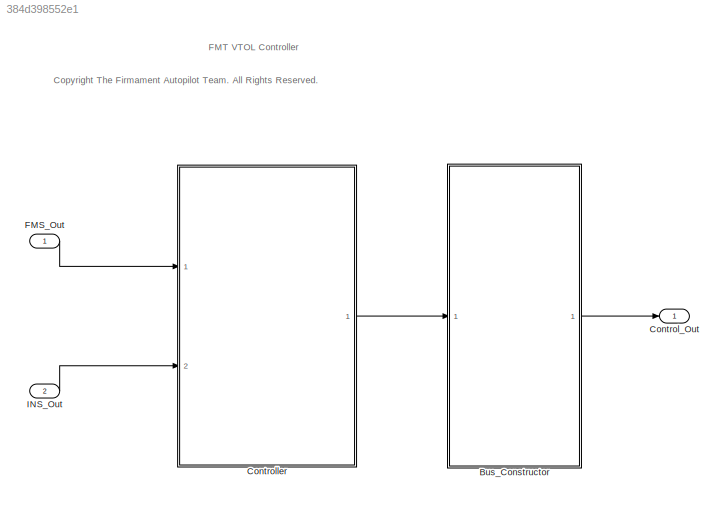
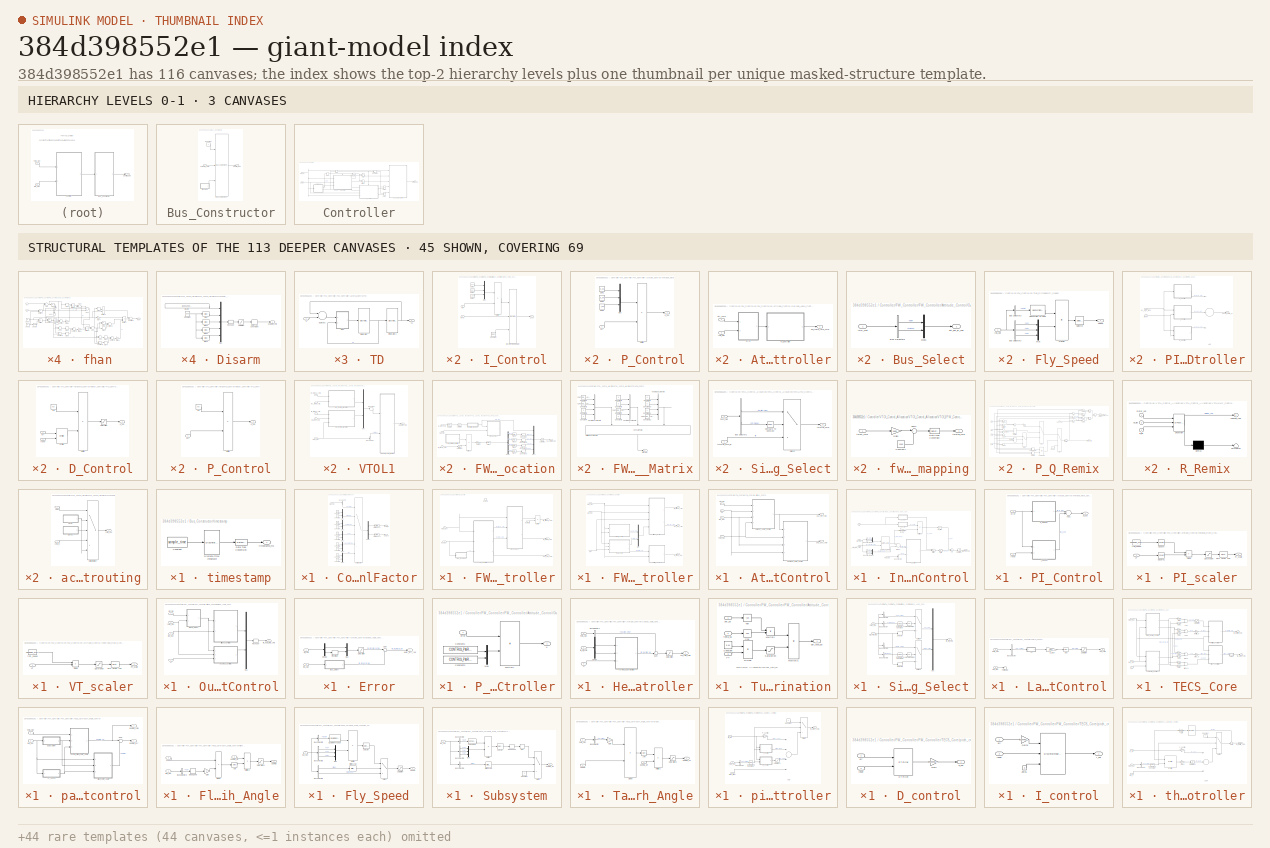
[diagram: thumbnail index - top-2 hierarchy levels (3 canvases) + 45 structural-template representatives of the remaining 113 canvases]
MODEL slx_384d398552e1
KIND model
CONFIG AbsTol = auto
CONFIG EnableMultiTasking = off
CONFIG FixedStep = control_dt
CONFIG MaxStep = auto
CONFIG MinStep = auto
CONFIG RelTol = 1e-3
CONFIG SampleTimeConstraint = Unconstrained
CONFIG Solver = FixedStepDiscrete
CONFIG SolverName = FixedStepDiscrete
CONFIG StartTime = 0.0
CONFIG StopTime = 10.0
BLOCK [SubSystem] Bus_Constructor
  Ports = [1, 1]
  RequestExecContextInheritance = off
BLOCK [BusAssignment] Bus_Constructor/Bus Assignment
  AssignedSignals = actuator_cmd,timestamp
  Ports = [3, 1]
BLOCK [Constant] Bus_Constructor/Constant
  OutDataTypeStr = Bus: Control_Out_Bus
  Value = 0
BLOCK [Outport] Bus_Constructor/Control_Out
  IconDisplay = Port number
BLOCK [Inport] Bus_Constructor/actuator_cmd
  IconDisplay = Port number
BLOCK [SubSystem] Bus_Constructor/timestamp
  Ports = [0, 1]
  RequestExecContextInheritance = off
BLOCK [Constant] Bus_Constructor/timestamp/Constant
  Value = sample_time
BLOCK [DataTypeConversion] Bus_Constructor/timestamp/Data Type Conversion
  OutDataTypeStr = uint32
  RndMeth = Floor
  SaturateOnIntegerOverflow = off
BLOCK [DiscreteIntegrator] Bus_Constructor/timestamp/Discrete-Time Integrator
  ICPrevOutput = DiscIntNeverNeededParam
  ICPrevScaledInput = DiscIntNeverNeededParam
  InitialConditionSetting = Auto
  IntegratorMethod = Accumulation: Forward Euler
  Ports = [1, 1]
  SampleTime = -1
BLOCK [Outport] Bus_Constructor/timestamp/timestamp_ms
  IconDisplay = Port number
BLOCK [Outport] Control_Out
  IconDisplay = Port number
  OutDataTypeStr = Bus: Control_Out_Bus
BLOCK [SubSystem] Controller
  Ports = [2, 1]
  RequestExecContextInheritance = off
BLOCK [SubSystem] Controller/ControlFactor
  Ports = [1, 2]
  RequestExecContextInheritance = off
BLOCK [BusSelector] Controller/ControlFactor/Bus Selector
  OutputAsBus = off
  OutputSignals = ext_state
  Ports = [1, 1]
BLOCK [Constant] Controller/ControlFactor/Constant
  OutDataTypeStr = single
  Value = 0
BLOCK [Constant] Controller/ControlFactor/Constant1
  OutDataTypeStr = single
BLOCK [Constant] Controller/ControlFactor/Constant2
  OutDataTypeStr = single
BLOCK [Constant] Controller/ControlFactor/Constant3
  OutDataTypeStr = single
  Value = 0.5
BLOCK [Constant] Controller/ControlFactor/Constant4
  OutDataTypeStr = single
BLOCK [Constant] Controller/ControlFactor/Constant5
  OutDataTypeStr = single
  Value = 0.5
BLOCK [Constant] Controller/ControlFactor/Constant6
  OutDataTypeStr = single
  Value = 0
BLOCK [Constant] Controller/ControlFactor/Constant7
  OutDataTypeStr = single
BLOCK [Constant] Controller/ControlFactor/Constant8
  OutDataTypeStr = single
BLOCK [Constant] Controller/ControlFactor/Constant9
  OutDataTypeStr = single
BLOCK [Demux] Controller/ControlFactor/Demux
  DisplayOption = bar
  Outputs = 2
  Ports = [1, 2]
BLOCK [Inport] Controller/ControlFactor/FMS_Out
  IconDisplay = Port number
BLOCK [Reference] Controller/ControlFactor/First Order LPF1  REF=FMT_Model_Lib/Filter/First Order LPF
  Ports = [1, 1]
  SourceBlock = FMT_Model_Lib/Filter/First Order LPF
  SourceProductName = FMT Toolbox
  SourceType = First-order Low-pass filter
BLOCK [Reference] Controller/ControlFactor/First Order LPF3  REF=FMT_Model_Lib/Filter/First Order LPF
  Ports = [1, 1]
  SourceBlock = FMT_Model_Lib/Filter/First Order LPF
  SourceProductName = FMT Toolbox
  SourceType = First-order Low-pass filter
BLOCK [MultiPortSwitch] Controller/ControlFactor/Multiport Switch
  DataPortOrder = Zero-based contiguous
  InputSameDT = off
  Inputs = 5
  Ports = [6, 1]
  SaturateOnIntegerOverflow = off
  zeroidx = on
BLOCK [Mux] Controller/ControlFactor/Mux
  DisplayOption = bar
  Inputs = 2
  Ports = [2, 1]
BLOCK [Mux] Controller/ControlFactor/Mux1
  DisplayOption = bar
  Inputs = 2
  Ports = [2, 1]
BLOCK [Mux] Controller/ControlFactor/Mux2
  DisplayOption = bar
  Inputs = 2
  Ports = [2, 1]
BLOCK [Mux] Controller/ControlFactor/Mux3
  DisplayOption = bar
  Inputs = 2
  Ports = [2, 1]
BLOCK [Mux] Controller/ControlFactor/Mux4
  DisplayOption = bar
  Inputs = 2
  Ports = [2, 1]
BLOCK [Outport] Controller/ControlFactor/factor_fw
  IconDisplay = Port number
  VectorParamsAs1DForOutWhenUnconnected = on
BLOCK [Outport] Controller/ControlFactor/factor_mc
  IconDisplay = Port number
  Port = 2
  VectorParamsAs1DForOutWhenUnconnected = on
BLOCK [DataTypeConversion] Controller/Data Type Conversion
  OutDataTypeStr = single
  RndMeth = Floor
  SaturateOnIntegerOverflow = off
BLOCK [DataTypeConversion] Controller/Data Type Conversion1
  OutDataTypeStr = single
  RndMeth = Floor
  SaturateOnIntegerOverflow = off
BLOCK [Inport] Controller/FMS_Out
  IconDisplay = Port number
BLOCK [SubSystem] Controller/FW_Controller
  Ports = [3, 3, 1]
  RequestExecContextInheritance = off
  TreatAsAtomicUnit = on
BLOCK [EnablePort] Controller/FW_Controller/Enable
  Ports = []
  StatesWhenEnabling = reset
BLOCK [Inport] Controller/FW_Controller/FMS_Out
  IconDisplay = Port number
BLOCK [SubSystem] Controller/FW_Controller/FW_Controller
  Ports = [3, 3]
  RequestExecContextInheritance = off
BLOCK [SubSystem] Controller/FW_Controller/FW_Controller/Attitude_Control
  Ports = [4, 2]
  RequestExecContextInheritance = off
BLOCK [Inport] Controller/FW_Controller/FW_Controller/Attitude_Control/FMS_Out
  IconDisplay = Port number
BLOCK [Inport] Controller/FW_Controller/FW_Controller/Attitude_Control/INS_Out
  IconDisplay = Port number
  Port = 2
BLOCK [SubSystem] Controller/FW_Controller/FW_Controller/Attitude_Control/Innerloop_Rate_Control
  Ports = [4, 1]
  RequestExecContextInheritance = off
BLOCK [Sum] Controller/FW_Controller/FW_Controller/Attitude_Control/Innerloop_Rate_Control/Add
  InputSameDT = off
  OutDataTypeStr = Inherit: Inherit via internal rule
  Ports = [2, 1]
  SaturateOnIntegerOverflow = off
BLOCK [BusSelector] Controller/FW_Controller/FW_Controller/Attitude_Control/Innerloop_Rate_Control/Bus Selector1
  OutputAsBus = off
  OutputSignals = phi,theta
  Ports = [1, 2]
BLOCK [BusSelector] Controller/FW_Controller/FW_Controller/Attitude_Control/Innerloop_Rate_Control/Bus Selector2
  OutputAsBus = off
  OutputSignals = reset
  Ports = [1, 1]
BLOCK [BusSelector] Controller/FW_Controller/FW_Controller/Attitude_Control/Innerloop_Rate_Control/Bus Selector3
  OutputAsBus = off
  OutputSignals = p,q,r
  Ports = [1, 3]
BLOCK [Reference] Controller/FW_Controller/FW_Controller/Attitude_Control/Innerloop_Rate_Control/Euler To Angle Rate  REF=FMT_Model_Lib/Math/Euler To Angle Rate
  Ports = [2, 1]
  SourceBlock = FMT_Model_Lib/Math/Euler To Angle Rate
  SourceProductName = FMT Toolbox
  SourceType = Euler Rate to Angle Rate
BLOCK [Gain] Controller/FW_Controller/FW_Controller/Attitude_Control/Innerloop_Rate_Control/FF
  Gain = CONTROL_PARAM.FW_FF
  Multiplication = Matrix(K*u)
  OutDataTypeStr = Inherit: Inherit via internal rule
  ParamDataTypeStr = Inherit: Inherit via internal rule
  SaturateOnIntegerOverflow = off
BLOCK [Saturate] Controller/FW_Controller/FW_Controller/Attitude_Control/Innerloop_Rate_Control/FF_limit
  InputPortMap = u0
  LowerLimit = -0.3
  OutDataTypeStr = single
  Ports = [1, 1]
  UpperLimit = 0.3
BLOCK [Inport] Controller/FW_Controller/FW_Controller/Attitude_Control/Innerloop_Rate_Control/FMS_Out
  IconDisplay = Port number
  Port = 2
BLOCK [Inport] Controller/FW_Controller/FW_Controller/Attitude_Control/Innerloop_Rate_Control/INS_Out
  IconDisplay = Port number
  Port = 3
BLOCK [Sum] Controller/FW_Controller/FW_Controller/Attitude_Control/Innerloop_Rate_Control/Minus2
  InputSameDT = off
  Inputs = +-
  OutDataTypeStr = Inherit: Inherit via internal rule
  Ports = [2, 1]
  SaturateOnIntegerOverflow = off
BLOCK [Product] Controller/FW_Controller/FW_Controller/Attitude_Control/Innerloop_Rate_Control/Multiply
  InputSameDT = off
  OutDataTypeStr = Inherit: Inherit via internal rule
  Ports = [2, 1]
  RndMeth = Floor
  SaturateOnIntegerOverflow = off
BLOCK [Product] Controller/FW_Controller/FW_Controller/Attitude_Control/Innerloop_Rate_Control/Multiply1
  InputSameDT = off
  OutDataTypeStr = Inherit: Inherit via internal rule
  Ports = [2, 1]
  RndMeth = Floor
  SaturateOnIntegerOverflow = off
BLOCK [Mux] Controller/FW_Controller/FW_Controller/Attitude_Control/Innerloop_Rate_Control/Mux
  DisplayOption = bar
  Inputs = 2
  Ports = [2, 1]
BLOCK [Mux] Controller/FW_Controller/FW_Controller/Attitude_Control/Innerloop_Rate_Control/Mux1
  DisplayOption = bar
  Inputs = 3
  Ports = [3, 1]
BLOCK [SubSystem] Controller/FW_Controller/FW_Controller/Attitude_Control/Innerloop_Rate_Control/PI_Control
  Ports = [2, 1]
  RequestExecContextInheritance = off
BLOCK [Sum] Controller/FW_Controller/FW_Controller/Attitude_Control/Innerloop_Rate_Control/PI_Control/Add1
  InputSameDT = off
  OutDataTypeStr = Inherit: Inherit via internal rule
  Ports = [2, 1]
  SaturateOnIntegerOverflow = off
BLOCK [SubSystem] Controller/FW_Controller/FW_Controller/Attitude_Control/Innerloop_Rate_Control/PI_Control/I_Control
  Ports = [2, 1]
  RequestExecContextInheritance = off
BLOCK [Constant] Controller/FW_Controller/FW_Controller/Attitude_Control/Innerloop_Rate_Control/PI_Control/I_Control/Constant
  OutDataTypeStr = single
  Value = [0;0;0]
BLOCK [DiscreteIntegrator] Controller/FW_Controller/FW_Controller/Attitude_Control/Innerloop_Rate_Control/PI_Control/I_Control/Discrete-Time Integrator
  ExternalReset = level
  ICPrevOutput = DiscIntNeverNeededParam
  ICPrevScaledInput = DiscIntNeverNeededParam
  InitialConditionSetting = Auto
  InitialConditionSource = external
  LimitOutput = on
  LowerSaturationLimit = min_i
  Ports = [3, 1]
  SampleTime = -1
  UpperSaturationLimit = max_i
BLOCK [Product] Controller/FW_Controller/FW_Controller/Attitude_Control/Innerloop_Rate_Control/PI_Control/I_Control/Multiply
  InputSameDT = off
  Ports = [2, 1]
  RndMeth = Floor
  SaturateOnIntegerOverflow = off
BLOCK [Mux] Controller/FW_Controller/FW_Controller/Attitude_Control/Innerloop_Rate_Control/PI_Control/I_Control/Mux
  DisplayOption = bar
  Inputs = 3
  Ports = [3, 1]
BLOCK [Inport] Controller/FW_Controller/FW_Controller/Attitude_Control/Innerloop_Rate_Control/PI_Control/I_Control/err
  IconDisplay = Port number
BLOCK [Constant] Controller/FW_Controller/FW_Controller/Attitude_Control/Innerloop_Rate_Control/PI_Control/I_Control/gain1
  OutDataTypeStr = single
  Value = p_ki
BLOCK [Constant] Controller/FW_Controller/FW_Controller/Attitude_Control/Innerloop_Rate_Control/PI_Control/I_Control/gain2
  OutDataTypeStr = single
  Value = q_ki
BLOCK [Constant] Controller/FW_Controller/FW_Controller/Attitude_Control/Innerloop_Rate_Control/PI_Control/I_Control/gain3
  OutDataTypeStr = single
  Value = r_ki
BLOCK [Outport] Controller/FW_Controller/FW_Controller/Attitude_Control/Innerloop_Rate_Control/PI_Control/I_Control/i_out
  IconDisplay = Port number
BLOCK [Inport] Controller/FW_Controller/FW_Controller/Attitude_Control/Innerloop_Rate_Control/PI_Control/I_Control/reset
  IconDisplay = Port number
  Port = 2
BLOCK [SubSystem] Controller/FW_Controller/FW_Controller/Attitude_Control/Innerloop_Rate_Control/PI_Control/P_Control
  Ports = [1, 1]
  RequestExecContextInheritance = off
BLOCK [Product] Controller/FW_Controller/FW_Controller/Attitude_Control/Innerloop_Rate_Control/PI_Control/P_Control/Multiply
  InputSameDT = off
  Ports = [2, 1]
  RndMeth = Floor
  SaturateOnIntegerOverflow = off
BLOCK [Mux] Controller/FW_Controller/FW_Controller/Attitude_Control/Innerloop_Rate_Control/PI_Control/P_Control/Mux
  DisplayOption = bar
  Inputs = 3
  Ports = [3, 1]
BLOCK [Inport] Controller/FW_Controller/FW_Controller/Attitude_Control/Innerloop_Rate_Control/PI_Control/P_Control/err
  IconDisplay = Port number
BLOCK [Constant] Controller/FW_Controller/FW_Controller/Attitude_Control/Innerloop_Rate_Control/PI_Control/P_Control/gain1
  OutDataTypeStr = single
  Value = p_kp
BLOCK [Constant] Controller/FW_Controller/FW_Controller/Attitude_Control/Innerloop_Rate_Control/PI_Control/P_Control/gain2
  OutDataTypeStr = single
  Value = q_kp
BLOCK [Constant] Controller/FW_Controller/FW_Controller/Attitude_Control/Innerloop_Rate_Control/PI_Control/P_Control/gain3
  OutDataTypeStr = single
  Value = r_kp
BLOCK [Outport] Controller/FW_Controller/FW_Controller/Attitude_Control/Innerloop_Rate_Control/PI_Control/P_Control/p_out
  IconDisplay = Port number
BLOCK [Inport] Controller/FW_Controller/FW_Controller/Attitude_Control/Innerloop_Rate_Control/PI_Control/error
  IconDisplay = Port number
BLOCK [Outport] Controller/FW_Controller/FW_Controller/Attitude_Control/Innerloop_Rate_Control/PI_Control/pi_out
  IconDisplay = Port number
BLOCK [Inport] Controller/FW_Controller/FW_Controller/Attitude_Control/Innerloop_Rate_Control/PI_Control/reset
  IconDisplay = Port number
  Port = 2
BLOCK [Saturate] Controller/FW_Controller/FW_Controller/Attitude_Control/Innerloop_Rate_Control/PI_limit
  InputPortMap = u0
  LowerLimit = -1
  Ports = [1, 1]
  UpperLimit = 1
BLOCK [SubSystem] Controller/FW_Controller/FW_Controller/Attitude_Control/Innerloop_Rate_Control/PI_scaler
  Ports = [1, 1]
  RequestExecContextInheritance = off
BLOCK [Product] Controller/FW_Controller/FW_Controller/Attitude_Control/Innerloop_Rate_Control/PI_scaler/Divide
  InputSameDT = off
  Inputs = */
  OutDataTypeStr = Inherit: Inherit via internal rule
  Ports = [2, 1]
  RndMeth = Floor
  SaturateOnIntegerOverflow = off
BLOCK [Reference] Controller/FW_Controller/FW_Controller/Attitude_Control/Innerloop_Rate_Control/PI_scaler/First Order LPF  REF=FMT_Model_Lib/Filter/First Order LPF
  Ports = [1, 1]
  SourceBlock = FMT_Model_Lib/Filter/First Order LPF
  SourceProductName = FMT Toolbox
  SourceType = First-order Low-pass filter
BLOCK [Outport] Controller/FW_Controller/FW_Controller/Attitude_Control/Innerloop_Rate_Control/PI_scaler/PI_scale
  IconDisplay = Port number
BLOCK [Saturate] Controller/FW_Controller/FW_Controller/Attitude_Control/Innerloop_Rate_Control/PI_scaler/Saturation
  InputPortMap = u0
  LowerLimit = 0
  Ports = [1, 1]
  UpperLimit = 1
BLOCK [Math] Controller/FW_Controller/FW_Controller/Attitude_Control/Innerloop_Rate_Control/PI_scaler/Square
  Operator = square
  Ports = [1, 1]
BLOCK [Math] Controller/FW_Controller/FW_Controller/Attitude_Control/Innerloop_Rate_Control/PI_scaler/Square1
  Operator = square
  Ports = [1, 1]
BLOCK [Inport] Controller/FW_Controller/FW_Controller/Attitude_Control/Innerloop_Rate_Control/PI_scaler/VT
  IconDisplay = Port number
BLOCK [Constant] Controller/FW_Controller/FW_Controller/Attitude_Control/Innerloop_Rate_Control/PI_scaler/trim_speed
  Value = CONTROL_PARAM.FW_AIRSPEED_TRIM
BLOCK [Saturate] Controller/FW_Controller/FW_Controller/Attitude_Control/Innerloop_Rate_Control/Saturation1
  InputPortMap = u0
  LowerLimit = -1
  Ports = [1, 1]
  UpperLimit = 1
BLOCK [Inport] Controller/FW_Controller/FW_Controller/Attitude_Control/Innerloop_Rate_Control/VT
  IconDisplay = Port number
  Port = 4
BLOCK [SubSystem] Controller/FW_Controller/FW_Controller/Attitude_Control/Innerloop_Rate_Control/VT_scaler
  Ports = [1, 1]
  RequestExecContextInheritance = off
BLOCK [Product] Controller/FW_Controller/FW_Controller/Attitude_Control/Innerloop_Rate_Control/VT_scaler/Divide
  InputSameDT = off
  Inputs = */
  OutDataTypeStr = Inherit: Inherit via internal rule
  Ports = [2, 1]
  RndMeth = Floor
  SaturateOnIntegerOverflow = off
BLOCK [Outport] Controller/FW_Controller/FW_Controller/Attitude_Control/Innerloop_Rate_Control/VT_scaler/FF_scale
  IconDisplay = Port number
BLOCK [Reference] Controller/FW_Controller/FW_Controller/Attitude_Control/Innerloop_Rate_Control/VT_scaler/First Order LPF  REF=FMT_Model_Lib/Filter/First Order LPF
  Ports = [1, 1]
  SourceBlock = FMT_Model_Lib/Filter/First Order LPF
  SourceProductName = FMT Toolbox
  SourceType = First-order Low-pass filter
BLOCK [Saturate] Controller/FW_Controller/FW_Controller/Attitude_Control/Innerloop_Rate_Control/VT_scaler/Saturation
  InputPortMap = u0
  LowerLimit = 0
  Ports = [1, 1]
  UpperLimit = 1
BLOCK [Inport] Controller/FW_Controller/FW_Controller/Attitude_Control/Innerloop_Rate_Control/VT_scaler/VT
  IconDisplay = Port number
BLOCK [Constant] Controller/FW_Controller/FW_Controller/Attitude_Control/Innerloop_Rate_Control/VT_scaler/trim_speed
  Value = CONTROL_PARAM.FW_AIRSPEED_TRIM
BLOCK [Inport] Controller/FW_Controller/FW_Controller/Attitude_Control/Innerloop_Rate_Control/fw_euler_rate_cmd
  IconDisplay = Port number
BLOCK [Outport] Controller/FW_Controller/FW_Controller/Attitude_Control/Innerloop_Rate_Control/rate_dot_cmd
  IconDisplay = Port number
BLOCK [SubSystem] Controller/FW_Controller/FW_Controller/Attitude_Control/Outloop_Angle_Control
  Ports = [4, 1]
  RequestExecContextInheritance = off
BLOCK [SubSystem] Controller/FW_Controller/FW_Controller/Attitude_Control/Outloop_Angle_Control/Attitude_Controller
  Ports = [2, 1]
  RequestExecContextInheritance = off
BLOCK [SubSystem] Controller/FW_Controller/FW_Controller/Attitude_Control/Outloop_Angle_Control/Attitude_Controller/Error
  Ports = [2, 1]
  RequestExecContextInheritance = off
BLOCK [SubSystem] Controller/FW_Controller/FW_Controller/Attitude_Control/Outloop_Angle_Control/Attitude_Controller/Error/Bus_Select
  Ports = [1, 1]
  RequestExecContextInheritance = off
BLOCK [BusSelector] Controller/FW_Controller/FW_Controller/Attitude_Control/Outloop_Angle_Control/Attitude_Controller/Error/Bus_Select/Bus Selector1
  OutputAsBus = off
  OutputSignals = phi,theta
  Ports = [1, 2]
BLOCK [Inport] Controller/FW_Controller/FW_Controller/Attitude_Control/Outloop_Angle_Control/Attitude_Controller/Error/Bus_Select/INS_Out
  IconDisplay = Port number
BLOCK [Mux] Controller/FW_Controller/FW_Controller/Attitude_Control/Outloop_Angle_Control/Attitude_Controller/Error/Bus_Select/Mux1
  DisplayOption = bar
  Inputs = 2
  Ports = [2, 1]
BLOCK [Outport] Controller/FW_Controller/FW_Controller/Attitude_Control/Outloop_Angle_Control/Attitude_Controller/Error/Bus_Select/att_est_B_rad
  IconDisplay = Port number
BLOCK [Demux] Controller/FW_Controller/FW_Controller/Attitude_Control/Outloop_Angle_Control/Attitude_Controller/Error/Demux
  DisplayOption = bar
  Outputs = 2
  Ports = [1, 2]
BLOCK [Inport] Controller/FW_Controller/FW_Controller/Attitude_Control/Outloop_Angle_Control/Attitude_Controller/Error/INS_Out
  IconDisplay = Port number
  Port = 2
BLOCK [Mux] Controller/FW_Controller/FW_Controller/Attitude_Control/Outloop_Angle_Control/Attitude_Controller/Error/Mux
  DisplayOption = bar
  Inputs = 2
  Ports = [2, 1]
BLOCK [Bias] Controller/FW_Controller/FW_Controller/Attitude_Control/Outloop_Angle_Control/Attitude_Controller/Error/Pitch Offset
  Bias = CONTROL_PARAM.FW_PITCH_OFFSET
  SaturateOnIntegerOverflow = off
BLOCK [Saturate] Controller/FW_Controller/FW_Controller/Attitude_Control/Outloop_Angle_Control/Attitude_Controller/Error/Saturation
  InputPortMap = u0
  LowerLimit = -CONTROL_PARAM.FW_ROLL_PITCH_CMD_LIM
  Ports = [1, 1]
  UpperLimit = CONTROL_PARAM.FW_ROLL_PITCH_CMD_LIM
BLOCK [Sum] Controller/FW_Controller/FW_Controller/Attitude_Control/Outloop_Angle_Control/Attitude_Controller/Error/Sum
  IconShape = round
  InputSameDT = off
  Inputs = |+-
  OutDataTypeStr = Inherit: Inherit via internal rule
  Ports = [2, 1]
  SaturateOnIntegerOverflow = off
BLOCK [Inport] Controller/FW_Controller/FW_Controller/Attitude_Control/Outloop_Angle_Control/Attitude_Controller/Error/att_cmd
  IconDisplay = Port number
BLOCK [Outport] Controller/FW_Controller/FW_Controller/Attitude_Control/Outloop_Angle_Control/Attitude_Controller/Error/euler_err_rad
  IconDisplay = Port number
BLOCK [Inport] Controller/FW_Controller/FW_Controller/Attitude_Control/Outloop_Angle_Control/Attitude_Controller/INS_Out
  IconDisplay = Port number
  Port = 2
BLOCK [SubSystem] Controller/FW_Controller/FW_Controller/Attitude_Control/Outloop_Angle_Control/Attitude_Controller/P_Controller
  Ports = [1, 1]
  RequestExecContextInheritance = off
BLOCK [Constant] Controller/FW_Controller/FW_Controller/Attitude_Control/Outloop_Angle_Control/Attitude_Controller/P_Controller/Constant1
  Value = CONTROL_PARAM.FW_ROLL_P
BLOCK [Constant] Controller/FW_Controller/FW_Controller/Attitude_Control/Outloop_Angle_Control/Attitude_Controller/P_Controller/Constant2
  Value = CONTROL_PARAM.FW_PITCH_P
BLOCK [Product] Controller/FW_Controller/FW_Controller/Attitude_Control/Outloop_Angle_Control/Attitude_Controller/P_Controller/Multiply
  InputSameDT = off
  OutDataTypeStr = Inherit: Inherit via internal rule
  Ports = [2, 1]
  RndMeth = Floor
  SaturateOnIntegerOverflow = off
BLOCK [Mux] Controller/FW_Controller/FW_Controller/Attitude_Control/Outloop_Angle_Control/Attitude_Controller/P_Controller/Mux
  DisplayOption = bar
  Inputs = 2
  Ports = [2, 1]
BLOCK [Inport] Controller/FW_Controller/FW_Controller/Attitude_Control/Outloop_Angle_Control/Attitude_Controller/P_Controller/error
  IconDisplay = Port number
BLOCK [Outport] Controller/FW_Controller/FW_Controller/Attitude_Control/Outloop_Angle_Control/Attitude_Controller/P_Controller/u
  IconDisplay = Port number
BLOCK [Inport] Controller/FW_Controller/FW_Controller/Attitude_Control/Outloop_Angle_Control/Attitude_Controller/att_cmd
  IconDisplay = Port number
BLOCK [Outport] Controller/FW_Controller/FW_Controller/Attitude_Control/Outloop_Angle_Control/Attitude_Controller/phi_theta_rate_cmd
  IconDisplay = Port number
BLOCK [Inport] Controller/FW_Controller/FW_Controller/Attitude_Control/Outloop_Angle_Control/FMS_Out
  IconDisplay = Port number
  Port = 4
BLOCK [SubSystem] Controller/FW_Controller/FW_Controller/Attitude_Control/Outloop_Angle_Control/Heading_Controller
  Ports = [3, 1]
  RequestExecContextInheritance = off
BLOCK [BusSelector] Controller/FW_Controller/FW_Controller/Attitude_Control/Outloop_Angle_Control/Heading_Controller/Bus Selector2
  OutputAsBus = off
  OutputSignals = psi_rate_cmd
  Ports = [1, 1]
BLOCK [Demux] Controller/FW_Controller/FW_Controller/Attitude_Control/Outloop_Angle_Control/Heading_Controller/Demux
  DisplayOption = bar
  Outputs = 2
  Ports = [1, 2]
BLOCK [Inport] Controller/FW_Controller/FW_Controller/Attitude_Control/Outloop_Angle_Control/Heading_Controller/FMS_Out
  IconDisplay = Port number
  Port = 2
BLOCK [Saturate] Controller/FW_Controller/FW_Controller/Attitude_Control/Outloop_Angle_Control/Heading_Controller/Saturation
  InputPortMap = u0
  LowerLimit = -CONTROL_PARAM.FW_R_CMD_LIM
  Ports = [1, 1]
  UpperLimit = CONTROL_PARAM.FW_R_CMD_LIM
BLOCK [Sum] Controller/FW_Controller/FW_Controller/Attitude_Control/Outloop_Angle_Control/Heading_Controller/Sum
  IconShape = round
  InputSameDT = off
  Inputs = ++|
  OutDataTypeStr = Inherit: Inherit via internal rule
  Ports = [2, 1]
  SaturateOnIntegerOverflow = off
BLOCK [SubSystem] Controller/FW_Controller/FW_Controller/Attitude_Control/Outloop_Angle_Control/Heading_Controller/Turning_Coordination
  Ports = [3, 1]
  RequestExecContextInheritance = off
BLOCK [Constant] Controller/FW_Controller/FW_Controller/Attitude_Control/Outloop_Angle_Control/Heading_Controller/Turning_Coordination/Constant
  OutDataTypeStr = single
  Value = 9.81
BLOCK [Trigonometry] Controller/FW_Controller/FW_Controller/Attitude_Control/Outloop_Angle_Control/Heading_Controller/Turning_Coordination/Cos
  Operator = cos
  Ports = [1, 1]
BLOCK [Product] Controller/FW_Controller/FW_Controller/Attitude_Control/Outloop_Angle_Control/Heading_Controller/Turning_Coordination/Divide
  InputSameDT = off
  Inputs = */
  OutDataTypeStr = Inherit: Inherit via internal rule
  Ports = [2, 1]
  RndMeth = Floor
  SaturateOnIntegerOverflow = off
BLOCK [Product] Controller/FW_Controller/FW_Controller/Attitude_Control/Outloop_Angle_Control/Heading_Controller/Turning_Coordination/Multiply
  InputSameDT = off
  OutDataTypeStr = Inherit: Inherit via internal rule
  Ports = [2, 1]
  RndMeth = Floor
  SaturateOnIntegerOverflow = off
BLOCK [Product] Controller/FW_Controller/FW_Controller/Attitude_Control/Outloop_Angle_Control/Heading_Controller/Turning_Coordination/Multiply1
  InputSameDT = off
  OutDataTypeStr = Inherit: Inherit via internal rule
  Ports = [2, 1]
  RndMeth = Floor
  SaturateOnIntegerOverflow = off
BLOCK [Saturate] Controller/FW_Controller/FW_Controller/Attitude_Control/Outloop_Angle_Control/Heading_Controller/Turning_Coordination/Saturation
  InputPortMap = u0
  LowerLimit = 0.2
  Ports = [1, 1]
  UpperLimit = 1
BLOCK [Trigonometry] Controller/FW_Controller/FW_Controller/Attitude_Control/Outloop_Angle_Control/Heading_Controller/Turning_Coordination/Tan
  Operator = tan
  Ports = [1, 1]
BLOCK [Inport] Controller/FW_Controller/FW_Controller/Attitude_Control/Outloop_Angle_Control/Heading_Controller/Turning_Coordination/VT
  IconDisplay = Port number
  Port = 3
BLOCK [Inport] Controller/FW_Controller/FW_Controller/Attitude_Control/Outloop_Angle_Control/Heading_Controller/Turning_Coordination/phi_sp
  IconDisplay = Port number
BLOCK [Outport] Controller/FW_Controller/FW_Controller/Attitude_Control/Outloop_Angle_Control/Heading_Controller/Turning_Coordination/psi_rate_sp
  IconDisplay = Port number
BLOCK [Inport] Controller/FW_Controller/FW_Controller/Attitude_Control/Outloop_Angle_Control/Heading_Controller/Turning_Coordination/theta_sp
  IconDisplay = Port number
  Port = 2
BLOCK [Inport] Controller/FW_Controller/FW_Controller/Attitude_Control/Outloop_Angle_Control/Heading_Controller/VT
  IconDisplay = Port number
  Port = 3
BLOCK [Inport] Controller/FW_Controller/FW_Controller/Attitude_Control/Outloop_Angle_Control/Heading_Controller/fw_att_cmd
  IconDisplay = Port number
BLOCK [Outport] Controller/FW_Controller/FW_Controller/Attitude_Control/Outloop_Angle_Control/Heading_Controller/psi_rate_cmd
  IconDisplay = Port number
BLOCK [Inport] Controller/FW_Controller/FW_Controller/Attitude_Control/Outloop_Angle_Control/INS_Out
  IconDisplay = Port number
  Port = 3
BLOCK [Mux] Controller/FW_Controller/FW_Controller/Attitude_Control/Outloop_Angle_Control/Mux
  DisplayOption = bar
  Inputs = 2
  Ports = [2, 1]
BLOCK [Reshape] Controller/FW_Controller/FW_Controller/Attitude_Control/Outloop_Angle_Control/Reshape
  OutputDimensionality = Column vector (2-D)
  Ports = [1, 1]
BLOCK [SubSystem] Controller/FW_Controller/FW_Controller/Attitude_Control/Outloop_Angle_Control/Signal_Select
  Ports = [2, 1]
  RequestExecContextInheritance = off
BLOCK [BusSelector] Controller/FW_Controller/FW_Controller/Attitude_Control/Outloop_Angle_Control/Signal_Select/Bus Selector
  OutputAsBus = off
  OutputSignals = ctrl_mode
  Ports = [1, 1]
BLOCK [BusSelector] Controller/FW_Controller/FW_Controller/Attitude_Control/Outloop_Angle_Control/Signal_Select/Bus Selector1
  OutputAsBus = off
  OutputSignals = phi_cmd
  Ports = [1, 1]
BLOCK [BusSelector] Controller/FW_Controller/FW_Controller/Attitude_Control/Outloop_Angle_Control/Signal_Select/Bus Selector2
  OutputAsBus = off
  OutputSignals = ctrl_mode
  Ports = [1, 1]
BLOCK [BusSelector] Controller/FW_Controller/FW_Controller/Attitude_Control/Outloop_Angle_Control/Signal_Select/Bus Selector3
  OutputAsBus = off
  OutputSignals = theta_cmd
  Ports = [1, 1]
BLOCK [Reference] Controller/FW_Controller/FW_Controller/Attitude_Control/Outloop_Angle_Control/Signal_Select/Compare To Constant  REF=simulink/Logic and Bit
Operations/Compare
To Constant
  Ports = [1, 1]
  SourceBlock = simulink/Logic and Bit\nOperations/Compare\nTo Constant
  SourceProductBaseCode = SL
  SourceType = Compare To Constant
BLOCK [Reference] Controller/FW_Controller/FW_Controller/Attitude_Control/Outloop_Angle_Control/Signal_Select/Compare To Constant1  REF=simulink/Logic and Bit
Operations/Compare
To Constant
  Ports = [1, 1]
  SourceBlock = simulink/Logic and Bit\nOperations/Compare\nTo Constant
  SourceProductBaseCode = SL
  SourceType = Compare To Constant
BLOCK [Inport] Controller/FW_Controller/FW_Controller/Attitude_Control/Outloop_Angle_Control/Signal_Select/FMS_Out
  IconDisplay = Port number
  Port = 2
BLOCK [Logic] Controller/FW_Controller/FW_Controller/Attitude_Control/Outloop_Angle_Control/Signal_Select/Logical Operator
  AllPortsSameDT = off
  Inputs = 1
  Operator = OR
  OutDataTypeStr = boolean
  Ports = [1, 1]
BLOCK [Logic] Controller/FW_Controller/FW_Controller/Attitude_Control/Outloop_Angle_Control/Signal_Select/Logical Operator1
  AllPortsSameDT = off
  Inputs = 1
  Operator = OR
  OutDataTypeStr = boolean
  Ports = [1, 1]
BLOCK [Mux] Controller/FW_Controller/FW_Controller/Attitude_Control/Outloop_Angle_Control/Signal_Select/Mux
  DisplayOption = bar
  Inputs = 2
  Ports = [2, 1]
BLOCK [Selector] Controller/FW_Controller/FW_Controller/Attitude_Control/Outloop_Angle_Control/Signal_Select/Selector
  IndexOptions = Index vector (dialog)
  Indices = 1
  InputPortWidth = 2
  OutputSizes = 1
  Ports = [1, 1]
BLOCK [Selector] Controller/FW_Controller/FW_Controller/Attitude_Control/Outloop_Angle_Control/Signal_Select/Selector1
  IndexOptions = Index vector (dialog)
  Indices = 2
  InputPortWidth = 2
  OutputSizes = 1
  Ports = [1, 1]
BLOCK [Switch] Controller/FW_Controller/FW_Controller/Attitude_Control/Outloop_Angle_Control/Signal_Select/Switch
  Criteria = u2 > Threshold
  InputSameDT = off
  SaturateOnIntegerOverflow = off
BLOCK [Switch] Controller/FW_Controller/FW_Controller/Attitude_Control/Outloop_Angle_Control/Signal_Select/Switch1
  Criteria = u2 > Threshold
  InputSameDT = off
  SaturateOnIntegerOverflow = off
BLOCK [Inport] Controller/FW_Controller/FW_Controller/Attitude_Control/Outloop_Angle_Control/Signal_Select/att_cmd_rad
  IconDisplay = Port number
BLOCK [Outport] Controller/FW_Controller/FW_Controller/Attitude_Control/Outloop_Angle_Control/Signal_Select/fw_att_cmd
  IconDisplay = Port number
BLOCK [Inport] Controller/FW_Controller/FW_Controller/Attitude_Control/Outloop_Angle_Control/VT
  IconDisplay = Port number
  Port = 2
BLOCK [Inport] Controller/FW_Controller/FW_Controller/Attitude_Control/Outloop_Angle_Control/att_cmd
  IconDisplay = Port number
BLOCK [Outport] Controller/FW_Controller/FW_Controller/Attitude_Control/Outloop_Angle_Control/fw_euler_rate_cmd
  IconDisplay = Port number
BLOCK [Inport] Controller/FW_Controller/FW_Controller/Attitude_Control/VT
  IconDisplay = Port number
  Port = 3
BLOCK [Outport] Controller/FW_Controller/FW_Controller/Attitude_Control/ang_acc_cmd
  IconDisplay = Port number
BLOCK [Inport] Controller/FW_Controller/FW_Controller/Attitude_Control/att_cmd
  IconDisplay = Port number
  Port = 4
BLOCK [Outport] Controller/FW_Controller/FW_Controller/Attitude_Control/aux_mc_cmd
  IconDisplay = Port number
  Port = 2
BLOCK [Inport] Controller/FW_Controller/FW_Controller/FMS_Out
  IconDisplay = Port number
BLOCK [Inport] Controller/FW_Controller/FW_Controller/INS_Out
  IconDisplay = Port number
  Port = 2
BLOCK [SubSystem] Controller/FW_Controller/FW_Controller/Lateral_Control
  Ports = [2, 1]
  RequestExecContextInheritance = off
BLOCK [Trigonometry] Controller/FW_Controller/FW_Controller/Lateral_Control/Atan
  Operator = atan
  Ports = [1, 1]
BLOCK [BusSelector] Controller/FW_Controller/FW_Controller/Lateral_Control/Bus Selector
  OutputAsBus = off
  OutputSignals = ay_cmd
  Ports = [1, 1]
BLOCK [Inport] Controller/FW_Controller/FW_Controller/Lateral_Control/FMS_Out
  IconDisplay = Port number
BLOCK [Inport] Controller/FW_Controller/FW_Controller/Lateral_Control/INS_Out
  IconDisplay = Port number
  Port = 2
BLOCK [Saturate] Controller/FW_Controller/FW_Controller/Lateral_Control/Saturation
  InputPortMap = u0
  LowerLimit = -CONTROL_PARAM.FW_ROLL_PITCH_CMD_LIM
  Ports = [1, 1]
  UpperLimit = CONTROL_PARAM.FW_ROLL_PITCH_CMD_LIM
BLOCK [SubSystem] Controller/FW_Controller/FW_Controller/Lateral_Control/TD
  Ports = [1, 1]
  RequestExecContextInheritance = off
BLOCK [DiscreteIntegrator] Controller/FW_Controller/FW_Controller/Lateral_Control/TD/Integrator
  ICPrevOutput = DiscIntNeverNeededParam
  ICPrevScaledInput = DiscIntNeverNeededParam
  InitialConditionSetting = Auto
  Ports = [1, 1]
  SampleTime = -1
BLOCK [DiscreteIntegrator] Controller/FW_Controller/FW_Controller/Lateral_Control/TD/Integrator1
  ICPrevOutput = DiscIntNeverNeededParam
  ICPrevScaledInput = DiscIntNeverNeededParam
  InitialConditionSetting = Auto
  Ports = [1, 1]
  SampleTime = -1
BLOCK [Sum] Controller/FW_Controller/FW_Controller/Lateral_Control/TD/Subtract
  InputSameDT = off
  Inputs = +-
  OutDataTypeStr = Inherit: Inherit via internal rule
  Ports = [2, 1]
  SaturateOnIntegerOverflow = off
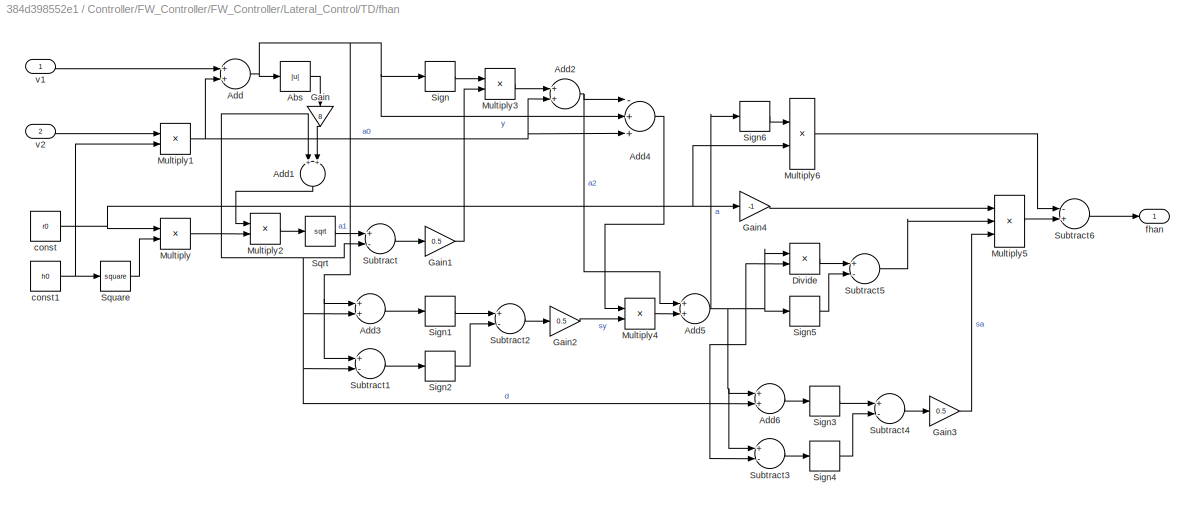
BLOCK [SubSystem] Controller/FW_Controller/FW_Controller/Lateral_Control/TD/fhan 
  Ports = [2, 1]
  RequestExecContextInheritance = off
BLOCK [Abs] Controller/FW_Controller/FW_Controller/Lateral_Control/TD/fhan /Abs
  SaturateOnIntegerOverflow = off
BLOCK [Sum] Controller/FW_Controller/FW_Controller/Lateral_Control/TD/fhan /Add
  InputSameDT = off
  Ports = [2, 1]
  SaturateOnIntegerOverflow = off
BLOCK [Sum] Controller/FW_Controller/FW_Controller/Lateral_Control/TD/fhan /Add1
  InputSameDT = off
  Ports = [2, 1]
  SaturateOnIntegerOverflow = off
BLOCK [Sum] Controller/FW_Controller/FW_Controller/Lateral_Control/TD/fhan /Add2
  InputSameDT = off
  Ports = [2, 1]
  SaturateOnIntegerOverflow = off
BLOCK [Sum] Controller/FW_Controller/FW_Controller/Lateral_Control/TD/fhan /Add3
  InputSameDT = off
  Ports = [2, 1]
  SaturateOnIntegerOverflow = off
BLOCK [Sum] Controller/FW_Controller/FW_Controller/Lateral_Control/TD/fhan /Add4
  InputSameDT = off
  Inputs = -++
  OutDataTypeStr = Inherit: Inherit via internal rule
  Ports = [3, 1]
  SaturateOnIntegerOverflow = off
BLOCK [Sum] Controller/FW_Controller/FW_Controller/Lateral_Control/TD/fhan /Add5
  InputSameDT = off
  Ports = [2, 1]
  SaturateOnIntegerOverflow = off
BLOCK [Sum] Controller/FW_Controller/FW_Controller/Lateral_Control/TD/fhan /Add6
  InputSameDT = off
  Ports = [2, 1]
  SaturateOnIntegerOverflow = off
BLOCK [Product] Controller/FW_Controller/FW_Controller/Lateral_Control/TD/fhan /Divide
  InputSameDT = off
  Inputs = */
  OutDataTypeStr = Inherit: Inherit via internal rule
  Ports = [2, 1]
  RndMeth = Floor
  SaturateOnIntegerOverflow = off
BLOCK [Gain] Controller/FW_Controller/FW_Controller/Lateral_Control/TD/fhan /Gain
  Gain = 8
  OutDataTypeStr = Inherit: Inherit via internal rule
  ParamDataTypeStr = Inherit: Inherit via internal rule
  SaturateOnIntegerOverflow = off
BLOCK [Gain] Controller/FW_Controller/FW_Controller/Lateral_Control/TD/fhan /Gain1
  Gain = 0.5
  ParamDataTypeStr = Inherit: Inherit via internal rule
  SaturateOnIntegerOverflow = off
BLOCK [Gain] Controller/FW_Controller/FW_Controller/Lateral_Control/TD/fhan /Gain2
  Gain = 0.5
  ParamDataTypeStr = Inherit: Inherit via internal rule
  SaturateOnIntegerOverflow = off
BLOCK [Gain] Controller/FW_Controller/FW_Controller/Lateral_Control/TD/fhan /Gain3
  Gain = 0.5
  ParamDataTypeStr = Inherit: Inherit via internal rule
  SaturateOnIntegerOverflow = off
BLOCK [Gain] Controller/FW_Controller/FW_Controller/Lateral_Control/TD/fhan /Gain4
  Gain = -1
  ParamDataTypeStr = Inherit: Inherit via internal rule
  SaturateOnIntegerOverflow = off
BLOCK [Product] Controller/FW_Controller/FW_Controller/Lateral_Control/TD/fhan /Multiply
  InputSameDT = off
  Ports = [2, 1]
  RndMeth = Floor
  SaturateOnIntegerOverflow = off
BLOCK [Product] Controller/FW_Controller/FW_Controller/Lateral_Control/TD/fhan /Multiply1
  InputSameDT = off
  Ports = [2, 1]
  RndMeth = Floor
  SaturateOnIntegerOverflow = off
BLOCK [Product] Controller/FW_Controller/FW_Controller/Lateral_Control/TD/fhan /Multiply2
  InputSameDT = off
  Ports = [2, 1]
  RndMeth = Floor
  SaturateOnIntegerOverflow = off
BLOCK [Product] Controller/FW_Controller/FW_Controller/Lateral_Control/TD/fhan /Multiply3
  InputSameDT = off
  Ports = [2, 1]
  RndMeth = Floor
  SaturateOnIntegerOverflow = off
BLOCK [Product] Controller/FW_Controller/FW_Controller/Lateral_Control/TD/fhan /Multiply4
  InputSameDT = off
  OutDataTypeStr = single
  Ports = [2, 1]
  RndMeth = Floor
  SaturateOnIntegerOverflow = off
BLOCK [Product] Controller/FW_Controller/FW_Controller/Lateral_Control/TD/fhan /Multiply5
  InputSameDT = off
  Inputs = 3
  OutDataTypeStr = Inherit: Inherit via internal rule
  Ports = [3, 1]
  RndMeth = Floor
  SaturateOnIntegerOverflow = off
BLOCK [Product] Controller/FW_Controller/FW_Controller/Lateral_Control/TD/fhan /Multiply6
  InputSameDT = off
  OutDataTypeStr = single
  Ports = [2, 1]
  RndMeth = Floor
  SaturateOnIntegerOverflow = off
BLOCK [Signum] Controller/FW_Controller/FW_Controller/Lateral_Control/TD/fhan /Sign
BLOCK [Signum] Controller/FW_Controller/FW_Controller/Lateral_Control/TD/fhan /Sign1
BLOCK [Signum] Controller/FW_Controller/FW_Controller/Lateral_Control/TD/fhan /Sign2
BLOCK [Signum] Controller/FW_Controller/FW_Controller/Lateral_Control/TD/fhan /Sign3
BLOCK [Signum] Controller/FW_Controller/FW_Controller/Lateral_Control/TD/fhan /Sign4
BLOCK [Signum] Controller/FW_Controller/FW_Controller/Lateral_Control/TD/fhan /Sign5
BLOCK [Signum] Controller/FW_Controller/FW_Controller/Lateral_Control/TD/fhan /Sign6
BLOCK [Sqrt] Controller/FW_Controller/FW_Controller/Lateral_Control/TD/fhan /Sqrt
BLOCK [Math] Controller/FW_Controller/FW_Controller/Lateral_Control/TD/fhan /Square
  Operator = square
  Ports = [1, 1]
BLOCK [Sum] Controller/FW_Controller/FW_Controller/Lateral_Control/TD/fhan /Subtract
  InputSameDT = off
  Inputs = +-
  Ports = [2, 1]
  SaturateOnIntegerOverflow = off
BLOCK [Sum] Controller/FW_Controller/FW_Controller/Lateral_Control/TD/fhan /Subtract1
  InputSameDT = off
  Inputs = +-
  Ports = [2, 1]
  SaturateOnIntegerOverflow = off
BLOCK [Sum] Controller/FW_Controller/FW_Controller/Lateral_Control/TD/fhan /Subtract2
  InputSameDT = off
  Inputs = +-
  Ports = [2, 1]
  SaturateOnIntegerOverflow = off
BLOCK [Sum] Controller/FW_Controller/FW_Controller/Lateral_Control/TD/fhan /Subtract3
  InputSameDT = off
  Inputs = +-
  Ports = [2, 1]
  SaturateOnIntegerOverflow = off
BLOCK [Sum] Controller/FW_Controller/FW_Controller/Lateral_Control/TD/fhan /Subtract4
  InputSameDT = off
  Inputs = +-
  Ports = [2, 1]
  SaturateOnIntegerOverflow = off
BLOCK [Sum] Controller/FW_Controller/FW_Controller/Lateral_Control/TD/fhan /Subtract5
  InputSameDT = off
  Inputs = +-
  Ports = [2, 1]
  SaturateOnIntegerOverflow = off
BLOCK [Sum] Controller/FW_Controller/FW_Controller/Lateral_Control/TD/fhan /Subtract6
  InputSameDT = off
  Inputs = -+
  Ports = [2, 1]
  SaturateOnIntegerOverflow = off
BLOCK [Constant] Controller/FW_Controller/FW_Controller/Lateral_Control/TD/fhan /const
  OutDataTypeStr = single
  Value = r0
BLOCK [Constant] Controller/FW_Controller/FW_Controller/Lateral_Control/TD/fhan /const1
  OutDataTypeStr = single
  Value = h0
BLOCK [Outport] Controller/FW_Controller/FW_Controller/Lateral_Control/TD/fhan /fhan
  IconDisplay = Port number
BLOCK [Inport] Controller/FW_Controller/FW_Controller/Lateral_Control/TD/fhan /v1
  IconDisplay = Port number
BLOCK [Inport] Controller/FW_Controller/FW_Controller/Lateral_Control/TD/fhan /v2
  IconDisplay = Port number
  Port = 2
BLOCK [Inport] Controller/FW_Controller/FW_Controller/Lateral_Control/TD/v
  IconDisplay = Port number
BLOCK [Outport] Controller/FW_Controller/FW_Controller/Lateral_Control/TD/v1
  IconDisplay = Port number
BLOCK [Terminator] Controller/FW_Controller/FW_Controller/Lateral_Control/Terminator
BLOCK [Gain] Controller/FW_Controller/FW_Controller/Lateral_Control/g_force
  Gain = 1/9.81
  OutDataTypeStr = Inherit: Inherit via internal rule
  ParamDataTypeStr = Inherit: Inherit via internal rule
  SaturateOnIntegerOverflow = off
BLOCK [Outport] Controller/FW_Controller/FW_Controller/Lateral_Control/phi_cmd
  IconDisplay = Port number
BLOCK [Mux] Controller/FW_Controller/FW_Controller/Mux
  DisplayOption = bar
  Inputs = 2
  Ports = [2, 1]
BLOCK [SubSystem] Controller/FW_Controller/FW_Controller/TECS_Core
  Ports = [3, 2]
  RequestExecContextInheritance = off
BLOCK [Sum] Controller/FW_Controller/FW_Controller/TECS_Core/Add
  InputSameDT = off
  OutDataTypeStr = Inherit: Inherit via internal rule
  Ports = [2, 1]
  SaturateOnIntegerOverflow = off
BLOCK [Sum] Controller/FW_Controller/FW_Controller/TECS_Core/Add1
  InputSameDT = off
  OutDataTypeStr = Inherit: Inherit via internal rule
  Ports = [2, 1]
  SaturateOnIntegerOverflow = off
BLOCK [Inport] Controller/FW_Controller/FW_Controller/TECS_Core/FMS_Out
  IconDisplay = Port number
  Port = 2
BLOCK [Gain] Controller/FW_Controller/FW_Controller/TECS_Core/Gain
  Gain = CONTROL_PARAM.FW_TECS_W2T
  OutDataTypeStr = Inherit: Inherit via internal rule
  ParamDataTypeStr = Inherit: Inherit via internal rule
  SaturateOnIntegerOverflow = off
BLOCK [Gain] Controller/FW_Controller/FW_Controller/TECS_Core/Gain1
  Gain = CONTROL_PARAM.FW_TECS_U2T
  OutDataTypeStr = Inherit: Inherit via internal rule
  ParamDataTypeStr = Inherit: Inherit via internal rule
  SaturateOnIntegerOverflow = off
BLOCK [Gain] Controller/FW_Controller/FW_Controller/TECS_Core/Gain2
  Gain = CONTROL_PARAM.FW_TECS_W2T
  OutDataTypeStr = Inherit: Inherit via internal rule
  ParamDataTypeStr = Inherit: Inherit via internal rule
  SaturateOnIntegerOverflow = off
BLOCK [Gain] Controller/FW_Controller/FW_Controller/TECS_Core/Gain3
  Gain = CONTROL_PARAM.FW_TECS_U2T
  OutDataTypeStr = Inherit: Inherit via internal rule
  ParamDataTypeStr = Inherit: Inherit via internal rule
  SaturateOnIntegerOverflow = off
BLOCK [Gain] Controller/FW_Controller/FW_Controller/TECS_Core/Gain4
  Gain = CONTROL_PARAM.FW_TECS_W2P
  OutDataTypeStr = Inherit: Inherit via internal rule
  ParamDataTypeStr = Inherit: Inherit via internal rule
  SaturateOnIntegerOverflow = off
BLOCK [Gain] Controller/FW_Controller/FW_Controller/TECS_Core/Gain5
  Gain = CONTROL_PARAM.FW_TECS_U2P
  OutDataTypeStr = Inherit: Inherit via internal rule
  ParamDataTypeStr = Inherit: Inherit via internal rule
  SaturateOnIntegerOverflow = off
BLOCK [Gain] Controller/FW_Controller/FW_Controller/TECS_Core/Gain6
  Gain = CONTROL_PARAM.FW_TECS_W2P
  OutDataTypeStr = Inherit: Inherit via internal rule
  ParamDataTypeStr = Inherit: Inherit via internal rule
  SaturateOnIntegerOverflow = off
BLOCK [Gain] Controller/FW_Controller/FW_Controller/TECS_Core/Gain7
  Gain = CONTROL_PARAM.FW_TECS_U2P
  OutDataTypeStr = Inherit: Inherit via internal rule
  ParamDataTypeStr = Inherit: Inherit via internal rule
  SaturateOnIntegerOverflow = off
BLOCK [Inport] Controller/FW_Controller/FW_Controller/TECS_Core/INS_Out
  IconDisplay = Port number
BLOCK [Sum] Controller/FW_Controller/FW_Controller/TECS_Core/Minus
  InputSameDT = off
  Inputs = +-
  OutDataTypeStr = Inherit: Inherit via internal rule
  Ports = [2, 1]
  SaturateOnIntegerOverflow = off
BLOCK [Sum] Controller/FW_Controller/FW_Controller/TECS_Core/Minus1
  InputSameDT = off
  Inputs = +-
  OutDataTypeStr = Inherit: Inherit via internal rule
  Ports = [2, 1]
  SaturateOnIntegerOverflow = off
BLOCK [Saturate] Controller/FW_Controller/FW_Controller/TECS_Core/Saturation
  InputPortMap = u0
  Ports = [1, 1]
BLOCK [SubSystem] Controller/FW_Controller/FW_Controller/TECS_Core/TD
  Ports = [1, 1]
  RequestExecContextInheritance = off
BLOCK [DiscreteIntegrator] Controller/FW_Controller/FW_Controller/TECS_Core/TD/Integrator
  ICPrevOutput = DiscIntNeverNeededParam
  ICPrevScaledInput = DiscIntNeverNeededParam
  InitialConditionSetting = Auto
  Ports = [1, 1]
  SampleTime = -1
BLOCK [DiscreteIntegrator] Controller/FW_Controller/FW_Controller/TECS_Core/TD/Integrator1
  ICPrevOutput = DiscIntNeverNeededParam
  ICPrevScaledInput = DiscIntNeverNeededParam
  InitialConditionSetting = Auto
  Ports = [1, 1]
  SampleTime = -1
BLOCK [Sum] Controller/FW_Controller/FW_Controller/TECS_Core/TD/Subtract
  InputSameDT = off
  Inputs = +-
  OutDataTypeStr = Inherit: Inherit via internal rule
  Ports = [2, 1]
  SaturateOnIntegerOverflow = off
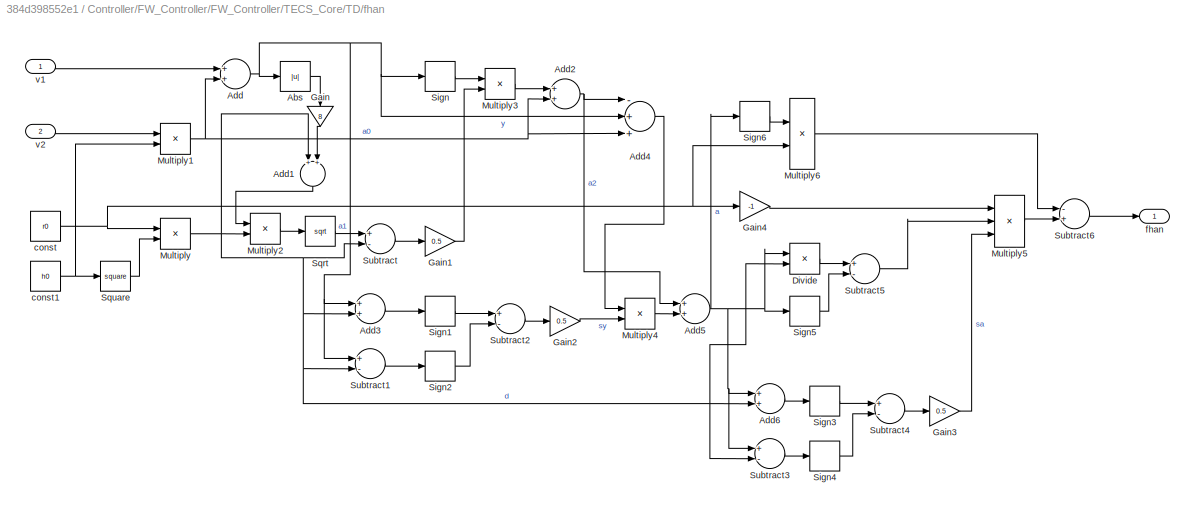
BLOCK [SubSystem] Controller/FW_Controller/FW_Controller/TECS_Core/TD/fhan 
  Ports = [2, 1]
  RequestExecContextInheritance = off
BLOCK [Abs] Controller/FW_Controller/FW_Controller/TECS_Core/TD/fhan /Abs
  SaturateOnIntegerOverflow = off
BLOCK [Sum] Controller/FW_Controller/FW_Controller/TECS_Core/TD/fhan /Add
  InputSameDT = off
  Ports = [2, 1]
  SaturateOnIntegerOverflow = off
BLOCK [Sum] Controller/FW_Controller/FW_Controller/TECS_Core/TD/fhan /Add1
  InputSameDT = off
  Ports = [2, 1]
  SaturateOnIntegerOverflow = off
BLOCK [Sum] Controller/FW_Controller/FW_Controller/TECS_Core/TD/fhan /Add2
  InputSameDT = off
  Ports = [2, 1]
  SaturateOnIntegerOverflow = off
BLOCK [Sum] Controller/FW_Controller/FW_Controller/TECS_Core/TD/fhan /Add3
  InputSameDT = off
  Ports = [2, 1]
  SaturateOnIntegerOverflow = off
BLOCK [Sum] Controller/FW_Controller/FW_Controller/TECS_Core/TD/fhan /Add4
  InputSameDT = off
  Inputs = -++
  OutDataTypeStr = Inherit: Inherit via internal rule
  Ports = [3, 1]
  SaturateOnIntegerOverflow = off
BLOCK [Sum] Controller/FW_Controller/FW_Controller/TECS_Core/TD/fhan /Add5
  InputSameDT = off
  Ports = [2, 1]
  SaturateOnIntegerOverflow = off
BLOCK [Sum] Controller/FW_Controller/FW_Controller/TECS_Core/TD/fhan /Add6
  InputSameDT = off
  Ports = [2, 1]
  SaturateOnIntegerOverflow = off
BLOCK [Product] Controller/FW_Controller/FW_Controller/TECS_Core/TD/fhan /Divide
  InputSameDT = off
  Inputs = */
  OutDataTypeStr = Inherit: Inherit via internal rule
  Ports = [2, 1]
  RndMeth = Floor
  SaturateOnIntegerOverflow = off
BLOCK [Gain] Controller/FW_Controller/FW_Controller/TECS_Core/TD/fhan /Gain
  Gain = 8
  OutDataTypeStr = Inherit: Inherit via internal rule
  ParamDataTypeStr = Inherit: Inherit via internal rule
  SaturateOnIntegerOverflow = off
BLOCK [Gain] Controller/FW_Controller/FW_Controller/TECS_Core/TD/fhan /Gain1
  Gain = 0.5
  ParamDataTypeStr = Inherit: Inherit via internal rule
  SaturateOnIntegerOverflow = off
BLOCK [Gain] Controller/FW_Controller/FW_Controller/TECS_Core/TD/fhan /Gain2
  Gain = 0.5
  ParamDataTypeStr = Inherit: Inherit via internal rule
  SaturateOnIntegerOverflow = off
BLOCK [Gain] Controller/FW_Controller/FW_Controller/TECS_Core/TD/fhan /Gain3
  Gain = 0.5
  ParamDataTypeStr = Inherit: Inherit via internal rule
  SaturateOnIntegerOverflow = off
BLOCK [Gain] Controller/FW_Controller/FW_Controller/TECS_Core/TD/fhan /Gain4
  Gain = -1
  ParamDataTypeStr = Inherit: Inherit via internal rule
  SaturateOnIntegerOverflow = off
BLOCK [Product] Controller/FW_Controller/FW_Controller/TECS_Core/TD/fhan /Multiply
  InputSameDT = off
  Ports = [2, 1]
  RndMeth = Floor
  SaturateOnIntegerOverflow = off
BLOCK [Product] Controller/FW_Controller/FW_Controller/TECS_Core/TD/fhan /Multiply1
  InputSameDT = off
  Ports = [2, 1]
  RndMeth = Floor
  SaturateOnIntegerOverflow = off
BLOCK [Product] Controller/FW_Controller/FW_Controller/TECS_Core/TD/fhan /Multiply2
  InputSameDT = off
  Ports = [2, 1]
  RndMeth = Floor
  SaturateOnIntegerOverflow = off
BLOCK [Product] Controller/FW_Controller/FW_Controller/TECS_Core/TD/fhan /Multiply3
  InputSameDT = off
  Ports = [2, 1]
  RndMeth = Floor
  SaturateOnIntegerOverflow = off
BLOCK [Product] Controller/FW_Controller/FW_Controller/TECS_Core/TD/fhan /Multiply4
  InputSameDT = off
  OutDataTypeStr = single
  Ports = [2, 1]
  RndMeth = Floor
  SaturateOnIntegerOverflow = off
BLOCK [Product] Controller/FW_Controller/FW_Controller/TECS_Core/TD/fhan /Multiply5
  InputSameDT = off
  Inputs = 3
  OutDataTypeStr = Inherit: Inherit via internal rule
  Ports = [3, 1]
  RndMeth = Floor
  SaturateOnIntegerOverflow = off
BLOCK [Product] Controller/FW_Controller/FW_Controller/TECS_Core/TD/fhan /Multiply6
  InputSameDT = off
  OutDataTypeStr = single
  Ports = [2, 1]
  RndMeth = Floor
  SaturateOnIntegerOverflow = off
BLOCK [Signum] Controller/FW_Controller/FW_Controller/TECS_Core/TD/fhan /Sign
BLOCK [Signum] Controller/FW_Controller/FW_Controller/TECS_Core/TD/fhan /Sign1
BLOCK [Signum] Controller/FW_Controller/FW_Controller/TECS_Core/TD/fhan /Sign2
BLOCK [Signum] Controller/FW_Controller/FW_Controller/TECS_Core/TD/fhan /Sign3
BLOCK [Signum] Controller/FW_Controller/FW_Controller/TECS_Core/TD/fhan /Sign4
BLOCK [Signum] Controller/FW_Controller/FW_Controller/TECS_Core/TD/fhan /Sign5
BLOCK [Signum] Controller/FW_Controller/FW_Controller/TECS_Core/TD/fhan /Sign6
BLOCK [Sqrt] Controller/FW_Controller/FW_Controller/TECS_Core/TD/fhan /Sqrt
BLOCK [Math] Controller/FW_Controller/FW_Controller/TECS_Core/TD/fhan /Square
  Operator = square
  Ports = [1, 1]
BLOCK [Sum] Controller/FW_Controller/FW_Controller/TECS_Core/TD/fhan /Subtract
  InputSameDT = off
  Inputs = +-
  Ports = [2, 1]
  SaturateOnIntegerOverflow = off
BLOCK [Sum] Controller/FW_Controller/FW_Controller/TECS_Core/TD/fhan /Subtract1
  InputSameDT = off
  Inputs = +-
  Ports = [2, 1]
  SaturateOnIntegerOverflow = off
BLOCK [Sum] Controller/FW_Controller/FW_Controller/TECS_Core/TD/fhan /Subtract2
  InputSameDT = off
  Inputs = +-
  Ports = [2, 1]
  SaturateOnIntegerOverflow = off
BLOCK [Sum] Controller/FW_Controller/FW_Controller/TECS_Core/TD/fhan /Subtract3
  InputSameDT = off
  Inputs = +-
  Ports = [2, 1]
  SaturateOnIntegerOverflow = off
BLOCK [Sum] Controller/FW_Controller/FW_Controller/TECS_Core/TD/fhan /Subtract4
  InputSameDT = off
  Inputs = +-
  Ports = [2, 1]
  SaturateOnIntegerOverflow = off
BLOCK [Sum] Controller/FW_Controller/FW_Controller/TECS_Core/TD/fhan /Subtract5
  InputSameDT = off
  Inputs = +-
  Ports = [2, 1]
  SaturateOnIntegerOverflow = off
BLOCK [Sum] Controller/FW_Controller/FW_Controller/TECS_Core/TD/fhan /Subtract6
  InputSameDT = off
  Inputs = -+
  Ports = [2, 1]
  SaturateOnIntegerOverflow = off
BLOCK [Constant] Controller/FW_Controller/FW_Controller/TECS_Core/TD/fhan /const
  OutDataTypeStr = single
  Value = r0
BLOCK [Constant] Controller/FW_Controller/FW_Controller/TECS_Core/TD/fhan /const1
  OutDataTypeStr = single
  Value = h0
BLOCK [Outport] Controller/FW_Controller/FW_Controller/TECS_Core/TD/fhan /fhan
  IconDisplay = Port number
BLOCK [Inport] Controller/FW_Controller/FW_Controller/TECS_Core/TD/fhan /v1
  IconDisplay = Port number
BLOCK [Inport] Controller/FW_Controller/FW_Controller/TECS_Core/TD/fhan /v2
  IconDisplay = Port number
  Port = 2
BLOCK [Inport] Controller/FW_Controller/FW_Controller/TECS_Core/TD/v
  IconDisplay = Port number
BLOCK [Outport] Controller/FW_Controller/FW_Controller/TECS_Core/TD/v1
  IconDisplay = Port number
BLOCK [Inport] Controller/FW_Controller/FW_Controller/TECS_Core/VT
  IconDisplay = Port number
  Port = 3
BLOCK [Outport] Controller/FW_Controller/FW_Controller/TECS_Core/fw_pitch_cmd
  IconDisplay = Port number
BLOCK [Outport] Controller/FW_Controller/FW_Controller/TECS_Core/fw_throttle_cmd
  IconDisplay = Port number
  Port = 2
BLOCK [SubSystem] Controller/FW_Controller/FW_Controller/TECS_Core/path_angle_control
  Ports = [2, 2]
  RequestExecContextInheritance = off
BLOCK [Inport] Controller/FW_Controller/FW_Controller/TECS_Core/path_angle_control/FMS_Out
  IconDisplay = Port number
BLOCK [SubSystem] Controller/FW_Controller/FW_Controller/TECS_Core/path_angle_control/Flight_Path_Angle
  Ports = [3, 1]
  RequestExecContextInheritance = off
BLOCK [Trigonometry] Controller/FW_Controller/FW_Controller/TECS_Core/path_angle_control/Flight_Path_Angle/Asin
  Operator = atan
  Ports = [1, 1]
BLOCK [BusSelector] Controller/FW_Controller/FW_Controller/TECS_Core/path_angle_control/Flight_Path_Angle/Bus Selector2
  OutputAsBus = off
  OutputSignals = vd
  Ports = [1, 1]
BLOCK [DeadZone] Controller/FW_Controller/FW_Controller/TECS_Core/path_angle_control/Flight_Path_Angle/Dead Zone
  LowerValue = -0.1
  UpperValue = 0.1
BLOCK [Product] Controller/FW_Controller/FW_Controller/TECS_Core/path_angle_control/Flight_Path_Angle/Divide
  InputSameDT = off
  Inputs = /*
  OutDataTypeStr = Inherit: Inherit via internal rule
  Ports = [2, 1]
  RndMeth = Floor
  SaturateOnIntegerOverflow = off
BLOCK [Gain] Controller/FW_Controller/FW_Controller/TECS_Core/path_angle_control/Flight_Path_Angle/Gain
  Gain = -1
  OutDataTypeStr = Inherit: Inherit via internal rule
  ParamDataTypeStr = Inherit: Inherit via internal rule
  SaturateOnIntegerOverflow = off
BLOCK [Inport] Controller/FW_Controller/FW_Controller/TECS_Core/path_angle_control/Flight_Path_Angle/INS_Out
  IconDisplay = Port number
BLOCK [Product] Controller/FW_Controller/FW_Controller/TECS_Core/path_angle_control/Flight_Path_Angle/Multiply1
  InputSameDT = off
  OutDataTypeStr = Inherit: Inherit via internal rule
  Ports = [2, 1]
  RndMeth = Floor
  SaturateOnIntegerOverflow = off
BLOCK [Saturate] Controller/FW_Controller/FW_Controller/TECS_Core/path_angle_control/Flight_Path_Angle/Saturation1
  InputPortMap = u0
  LowerLimit = -pi/4
  Ports = [1, 1]
  UpperLimit = pi/4
BLOCK [Outport] Controller/FW_Controller/FW_Controller/TECS_Core/path_angle_control/Flight_Path_Angle/gamma
  IconDisplay = Port number
BLOCK [Inport] Controller/FW_Controller/FW_Controller/TECS_Core/path_angle_control/Flight_Path_Angle/gamma_dir
  IconDisplay = Port number
  Port = 2
BLOCK [Inport] Controller/FW_Controller/FW_Controller/TECS_Core/path_angle_control/Flight_Path_Angle/speed
  IconDisplay = Port number
  Port = 3
BLOCK [SubSystem] Controller/FW_Controller/FW_Controller/TECS_Core/path_angle_control/Fly_Speed
  Ports = [1, 1]
  RequestExecContextInheritance = off
BLOCK [Reference] Controller/FW_Controller/FW_Controller/TECS_Core/path_angle_control/Fly_Speed/Bitwise AND  REF=simulink/Logic and Bit
Operations/Bitwise
Operator
  Ports = [1, 1]
  SourceBlock = simulink/Logic and Bit\nOperations/Bitwise\nOperator
  SourceProductBaseCode = SL
  SourceProductName = Simulink
  SourceType = Bitwise Operator
BLOCK [BusSelector] Controller/FW_Controller/FW_Controller/TECS_Core/path_angle_control/Fly_Speed/Bus Selector1
  OutputAsBus = off
  OutputSignals = flag,airspeed
  Ports = [1, 2]
BLOCK [BusSelector] Controller/FW_Controller/FW_Controller/TECS_Core/path_angle_control/Fly_Speed/Bus Selector2
  OutputAsBus = off
  OutputSignals = vn,ve,vd
  Ports = [1, 3]
BLOCK [BusSelector] Controller/FW_Controller/FW_Controller/TECS_Core/path_angle_control/Fly_Speed/Bus Selector3
  OutputAsBus = off
  OutputSignals = quat
  Ports = [1, 1]
BLOCK [Inport] Controller/FW_Controller/FW_Controller/TECS_Core/path_angle_control/Fly_Speed/INS_Out
  IconDisplay = Port number
BLOCK [Product] Controller/FW_Controller/FW_Controller/TECS_Core/path_angle_control/Fly_Speed/Multiply
  InputSameDT = off
  Multiplication = Matrix(*)
  OutDataTypeStr = Inherit: Inherit via internal rule
  Ports = [2, 1]
  RndMeth = Floor
  SaturateOnIntegerOverflow = off
BLOCK [Mux] Controller/FW_Controller/FW_Controller/TECS_Core/path_angle_control/Fly_Speed/Mux
  DisplayOption = bar
  Inputs = 3
  Ports = [3, 1]
BLOCK [Reference] Controller/FW_Controller/FW_Controller/TECS_Core/path_angle_control/Fly_Speed/Quaternion To DCM  REF=FMT_Model_Lib/Quaternion/Quaternion To DCM
  Ports = [1, 1]
  SourceBlock = FMT_Model_Lib/Quaternion/Quaternion To DCM
  SourceProductName = FMT Toolbox
  SourceType = Quaternion To Direction Cosine Matrix
BLOCK [Saturate] Controller/FW_Controller/FW_Controller/TECS_Core/path_angle_control/Fly_Speed/Saturation
  InputPortMap = u0
  LowerLimit = 8
  Ports = [1, 1]
  UpperLimit = 100
BLOCK [Selector] Controller/FW_Controller/FW_Controller/TECS_Core/path_angle_control/Fly_Speed/Selector
  IndexOptions = Index vector (dialog)
  Indices = 1
  InputPortWidth = 3
  OutputSizes = 1
  Ports = [1, 1]
BLOCK [Switch] Controller/FW_Controller/FW_Controller/TECS_Core/path_angle_control/Fly_Speed/Switch
  Criteria = u2 > Threshold
  InputSameDT = off
  SaturateOnIntegerOverflow = off
BLOCK [Outport] Controller/FW_Controller/FW_Controller/TECS_Core/path_angle_control/Fly_Speed/speed
  IconDisplay = Port number
BLOCK [Inport] Controller/FW_Controller/FW_Controller/TECS_Core/path_angle_control/INS_out
  IconDisplay = Port number
  Port = 2
BLOCK [SubSystem] Controller/FW_Controller/FW_Controller/TECS_Core/path_angle_control/Subsystem
  Ports = [1, 1]
  RequestExecContextInheritance = off
BLOCK [Reference] Controller/FW_Controller/FW_Controller/TECS_Core/path_angle_control/Subsystem/Bitwise AND  REF=simulink/Logic and Bit
Operations/Bitwise
Operator
  Ports = [1, 1]
  SourceBlock = simulink/Logic and Bit\nOperations/Bitwise\nOperator
  SourceProductBaseCode = SL
  SourceProductName = Simulink
  SourceType = Bitwise Operator
BLOCK [BusSelector] Controller/FW_Controller/FW_Controller/TECS_Core/path_angle_control/Subsystem/Bus Selector1
  OutputAsBus = off
  OutputSignals = flag
  Ports = [1, 1]
BLOCK [BusSelector] Controller/FW_Controller/FW_Controller/TECS_Core/path_angle_control/Subsystem/Bus Selector2
  OutputAsBus = off
  OutputSignals = vn,ve,vd
  Ports = [1, 3]
BLOCK [BusSelector] Controller/FW_Controller/FW_Controller/TECS_Core/path_angle_control/Subsystem/Bus Selector3
  OutputAsBus = off
  OutputSignals = psi
  Ports = [1, 1]
BLOCK [Constant] Controller/FW_Controller/FW_Controller/TECS_Core/path_angle_control/Subsystem/Constant
  OutDataTypeStr = single
BLOCK [DeadZone] Controller/FW_Controller/FW_Controller/TECS_Core/path_angle_control/Subsystem/Dead Zone
  LowerValue = -1
  UpperValue = 1
BLOCK [Inport] Controller/FW_Controller/FW_Controller/TECS_Core/path_angle_control/Subsystem/INS_Out
  IconDisplay = Port number
BLOCK [Product] Controller/FW_Controller/FW_Controller/TECS_Core/path_angle_control/Subsystem/Multiply
  InputSameDT = off
  Multiplication = Matrix(*)
  OutDataTypeStr = Inherit: Inherit via internal rule
  Ports = [2, 1]
  RndMeth = Floor
  SaturateOnIntegerOverflow = off
BLOCK [Mux] Controller/FW_Controller/FW_Controller/TECS_Core/path_angle_control/Subsystem/Mux
  DisplayOption = bar
  Inputs = 3
  Ports = [3, 1]
BLOCK [Reference] Controller/FW_Controller/FW_Controller/TECS_Core/path_angle_control/Subsystem/Psi To DCM  REF=FMT_Model_Lib/Transformation/Psi To DCM
  Ports = [1, 1]
  SourceBlock = FMT_Model_Lib/Transformation/Psi To DCM
  SourceProductName = FMT Toolbox
  SourceType = Rotation Matrix X-Axis
BLOCK [Selector] Controller/FW_Controller/FW_Controller/TECS_Core/path_angle_control/Subsystem/Selector
  IndexOptions = Index vector (dialog)
  Indices = 1
  InputPortWidth = 3
  OutputSizes = 1
  Ports = [1, 1]
BLOCK [Signum] Controller/FW_Controller/FW_Controller/TECS_Core/path_angle_control/Subsystem/Sign
BLOCK [Switch] Controller/FW_Controller/FW_Controller/TECS_Core/path_angle_control/Subsystem/Switch
  Criteria = u2 > Threshold
  InputSameDT = off
  SaturateOnIntegerOverflow = off
BLOCK [Outport] Controller/FW_Controller/FW_Controller/TECS_Core/path_angle_control/Subsystem/gamma_dir
  IconDisplay = Port number
BLOCK [Sum] Controller/FW_Controller/FW_Controller/TECS_Core/path_angle_control/Sum
  IconShape = round
  InputSameDT = off
  Inputs = |+-
  OutDataTypeStr = Inherit: Inherit via internal rule
  Ports = [2, 1]
  SaturateOnIntegerOverflow = off
BLOCK [SubSystem] Controller/FW_Controller/FW_Controller/TECS_Core/path_angle_control/Target_Flight_Path_Angle
  Ports = [3, 1]
  RequestExecContextInheritance = off
BLOCK [Trigonometry] Controller/FW_Controller/FW_Controller/TECS_Core/path_angle_control/Target_Flight_Path_Angle/Asin
  Operator = atan
  Ports = [1, 1]
BLOCK [BusSelector] Controller/FW_Controller/FW_Controller/TECS_Core/path_angle_control/Target_Flight_Path_Angle/Bus Selector
  OutputAsBus = off
  OutputSignals = w_cmd
  Ports = [1, 1]
BLOCK [Product] Controller/FW_Controller/FW_Controller/TECS_Core/path_angle_control/Target_Flight_Path_Angle/Divide
  InputSameDT = off
  Inputs = */
  OutDataTypeStr = Inherit: Inherit via internal rule
  Ports = [2, 1]
  RndMeth = Floor
  SaturateOnIntegerOverflow = off
BLOCK [Inport] Controller/FW_Controller/FW_Controller/TECS_Core/path_angle_control/Target_Flight_Path_Angle/FMS_Out
  IconDisplay = Port number
BLOCK [Gain] Controller/FW_Controller/FW_Controller/TECS_Core/path_angle_control/Target_Flight_Path_Angle/Gain
  Gain = -1
  OutDataTypeStr = Inherit: Inherit via internal rule
  ParamDataTypeStr = Inherit: Inherit via internal rule
  SaturateOnIntegerOverflow = off
BLOCK [Product] Controller/FW_Controller/FW_Controller/TECS_Core/path_angle_control/Target_Flight_Path_Angle/Multiply1
  InputSameDT = off
  OutDataTypeStr = Inherit: Inherit via internal rule
  Ports = [2, 1]
  RndMeth = Floor
  SaturateOnIntegerOverflow = off
BLOCK [Saturate] Controller/FW_Controller/FW_Controller/TECS_Core/path_angle_control/Target_Flight_Path_Angle/Saturation2
  InputPortMap = u0
  LowerLimit = -pi/4
  Ports = [1, 1]
  UpperLimit = pi/4
BLOCK [Inport] Controller/FW_Controller/FW_Controller/TECS_Core/path_angle_control/Target_Flight_Path_Angle/gamma_dir
  IconDisplay = Port number
  Port = 2
BLOCK [Outport] Controller/FW_Controller/FW_Controller/TECS_Core/path_angle_control/Target_Flight_Path_Angle/gamma_sp
  IconDisplay = Port number
BLOCK [Inport] Controller/FW_Controller/FW_Controller/TECS_Core/path_angle_control/Target_Flight_Path_Angle/speed
  IconDisplay = Port number
  Port = 3
BLOCK [Outport] Controller/FW_Controller/FW_Controller/TECS_Core/path_angle_control/gamma_cmd
  IconDisplay = Port number
  Port = 2
BLOCK [Outport] Controller/FW_Controller/FW_Controller/TECS_Core/path_angle_control/gamma_err
  IconDisplay = Port number
BLOCK [SubSystem] Controller/FW_Controller/FW_Controller/TECS_Core/pitch_controller
  Ports = [3, 1]
  RequestExecContextInheritance = off
BLOCK [Sum] Controller/FW_Controller/FW_Controller/TECS_Core/pitch_controller/Add
  InputSameDT = off
  Inputs = ++++
  OutDataTypeStr = Inherit: Inherit via internal rule
  Ports = [4, 1]
  SaturateOnIntegerOverflow = off
BLOCK [Inport] Controller/FW_Controller/FW_Controller/TECS_Core/pitch_controller/B_err
  IconDisplay = Port number
  Port = 3
BLOCK [BusSelector] Controller/FW_Controller/FW_Controller/TECS_Core/pitch_controller/Bus Selector
  OutputAsBus = off
  OutputSignals = ext_state
  Ports = [1, 1]
BLOCK [Reference] Controller/FW_Controller/FW_Controller/TECS_Core/pitch_controller/Compare To Constant  REF=simulink/Logic and Bit
Operations/Compare
To Constant
  Ports = [1, 1]
  SourceBlock = simulink/Logic and Bit\nOperations/Compare\nTo Constant
  SourceProductBaseCode = SL
  SourceProductName = Simulink
  SourceType = Compare To Constant
BLOCK [Constant] Controller/FW_Controller/FW_Controller/TECS_Core/pitch_controller/Constant
  OutDataTypeStr = single
  Value = 0
BLOCK [SubSystem] Controller/FW_Controller/FW_Controller/TECS_Core/pitch_controller/D_control
  Ports = [2, 1]
  RequestExecContextInheritance = off
BLOCK [Reference] Controller/FW_Controller/FW_Controller/TECS_Core/pitch_controller/D_control/DT Filter  REF=FMT_Model_Lib/Filter/DT Filter
  Ports = [2, 1]
  SourceBlock = FMT_Model_Lib/Filter/DT Filter
  SourceProductName = FMT Toolbox
  SourceType = Derivative Tracking Filter
BLOCK [Gain] Controller/FW_Controller/FW_Controller/TECS_Core/pitch_controller/D_control/Gain
  Gain = CONTROL_PARAM.FW_TECS_PITCH_D
  OutDataTypeStr = Inherit: Inherit via internal rule
  ParamDataTypeStr = Inherit: Inherit via internal rule
  SaturateOnIntegerOverflow = off
BLOCK [Outport] Controller/FW_Controller/FW_Controller/TECS_Core/pitch_controller/D_control/d_out
  IconDisplay = Port number
BLOCK [Inport] Controller/FW_Controller/FW_Controller/TECS_Core/pitch_controller/D_control/err
  IconDisplay = Port number
BLOCK [Inport] Controller/FW_Controller/FW_Controller/TECS_Core/pitch_controller/D_control/reset
  IconDisplay = Port number
  Port = 2
BLOCK [Inport] Controller/FW_Controller/FW_Controller/TECS_Core/pitch_controller/FMS_Out
  IconDisplay = Port number
BLOCK [SubSystem] Controller/FW_Controller/FW_Controller/TECS_Core/pitch_controller/I_control
  Ports = [2, 1]
  RequestExecContextInheritance = off
BLOCK [DiscreteIntegrator] Controller/FW_Controller/FW_Controller/TECS_Core/pitch_controller/I_control/ 
  ExternalReset = level
  ICPrevOutput = DiscIntNeverNeededParam
  ICPrevScaledInput = DiscIntNeverNeededParam
  InitialConditionSetting = Auto
  InitialConditionSource = external
  LimitOutput = on
  LowerSaturationLimit = -CONTROL_PARAM.FW_TECS_PITCH_I_LIM
  Ports = [3, 1]
  SampleTime = -1
  UpperSaturationLimit = CONTROL_PARAM.FW_TECS_PITCH_I_LIM
BLOCK [Gain] Controller/FW_Controller/FW_Controller/TECS_Core/pitch_controller/I_control/Gain3
  Gain = CONTROL_PARAM.FW_TECS_PITCH_I
  OutDataTypeStr = Inherit: Inherit via internal rule
  ParamDataTypeStr = Inherit: Inherit via internal rule
  SaturateOnIntegerOverflow = off
BLOCK [Constant] Controller/FW_Controller/FW_Controller/TECS_Core/pitch_controller/I_control/Zero1
  OutDataTypeStr = Inherit: Inherit via back propagation
  Value = 0
BLOCK [Inport] Controller/FW_Controller/FW_Controller/TECS_Core/pitch_controller/I_control/err
  IconDisplay = Port number
BLOCK [Outport] Controller/FW_Controller/FW_Controller/TECS_Core/pitch_controller/I_control/i_out
  IconDisplay = Port number
BLOCK [Inport] Controller/FW_Controller/FW_Controller/TECS_Core/pitch_controller/I_control/reset
  IconDisplay = Port number
  Port = 2
BLOCK [Gain] Controller/FW_Controller/FW_Controller/TECS_Core/pitch_controller/P_control
  Gain = CONTROL_PARAM.FW_TECS_PITCH_P
  OutDataTypeStr = Inherit: Inherit via internal rule
  ParamDataTypeStr = Inherit: Inherit via internal rule
  SaturateOnIntegerOverflow = off
BLOCK [Saturate] Controller/FW_Controller/FW_Controller/TECS_Core/pitch_controller/Saturation1
  InputPortMap = u0
  LowerLimit = -0.3
  Ports = [1, 1]
  UpperLimit = 0.3
BLOCK [Switch] Controller/FW_Controller/FW_Controller/TECS_Core/pitch_controller/Switch
  Criteria = u2 > Threshold
  InputSameDT = off
  SaturateOnIntegerOverflow = off
BLOCK [Outport] Controller/FW_Controller/FW_Controller/TECS_Core/pitch_controller/fw_pitch_cmd
  IconDisplay = Port number
BLOCK [Inport] Controller/FW_Controller/FW_Controller/TECS_Core/pitch_controller/pitch_ffout
  IconDisplay = Port number
  Port = 2
BLOCK [Gain] Controller/FW_Controller/FW_Controller/TECS_Core/pitch_ff
  Gain = CONTROL_PARAM.FW_TECS_PITCH_F
  OutDataTypeStr = Inherit: Inherit via internal rule
  ParamDataTypeStr = Inherit: Inherit via internal rule
  SaturateOnIntegerOverflow = off
BLOCK [SubSystem] Controller/FW_Controller/FW_Controller/TECS_Core/thorttle_controller
  Ports = [3, 1]
  RequestExecContextInheritance = off
BLOCK [DiscreteIntegrator] Controller/FW_Controller/FW_Controller/TECS_Core/thorttle_controller/ 
  ICPrevOutput = DiscIntNeverNeededParam
  ICPrevScaledInput = DiscIntNeverNeededParam
  InitialCondition = 0.25
  InitialConditionSetting = Auto
  LimitOutput = on
  LowerSaturationLimit = 0
  Ports = [1, 1]
  SampleTime = -1
  UpperSaturationLimit = 1
BLOCK [Sum] Controller/FW_Controller/FW_Controller/TECS_Core/thorttle_controller/Add4
  InputSameDT = off
  Inputs = +++
  OutDataTypeStr = Inherit: Inherit via internal rule
  Ports = [3, 1]
  SaturateOnIntegerOverflow = off
BLOCK [BusSelector] Controller/FW_Controller/FW_Controller/TECS_Core/thorttle_controller/Bus Selector
  OutputAsBus = off
  OutputSignals = ext_state
  Ports = [1, 1]
BLOCK [Reference] Controller/FW_Controller/FW_Controller/TECS_Core/thorttle_controller/Compare To Constant  REF=simulink/Logic and Bit
Operations/Compare
To Constant
  Ports = [1, 1]
  SourceBlock = simulink/Logic and Bit\nOperations/Compare\nTo Constant
  SourceProductBaseCode = SL
  SourceProductName = Simulink
  SourceType = Compare To Constant
BLOCK [Constant] Controller/FW_Controller/FW_Controller/TECS_Core/thorttle_controller/Constant
  OutDataTypeStr = single
  Value = 0
BLOCK [Reference] Controller/FW_Controller/FW_Controller/TECS_Core/thorttle_controller/DT Filter  REF=FMT_Model_Lib/Filter/DT Filter
  Ports = [2, 1]
  SourceBlock = FMT_Model_Lib/Filter/DT Filter
  SourceProductName = FMT Toolbox
  SourceType = Derivative Tracking Filter
BLOCK [Inport] Controller/FW_Controller/FW_Controller/TECS_Core/thorttle_controller/E_err
  IconDisplay = Port number
BLOCK [Inport] Controller/FW_Controller/FW_Controller/TECS_Core/thorttle_controller/FMS_Out
  IconDisplay = Port number
  Port = 3
BLOCK [Gain] Controller/FW_Controller/FW_Controller/TECS_Core/thorttle_controller/Gain
  Gain = CONTROL_PARAM.FW_TECS_THOR_I
  OutDataTypeStr = Inherit: Inherit via internal rule
  ParamDataTypeStr = Inherit: Inherit via internal rule
  SaturateOnIntegerOverflow = off
BLOCK [Gain] Controller/FW_Controller/FW_Controller/TECS_Core/thorttle_controller/Gain1
  Gain = CONTROL_PARAM.FW_TECS_THOR_D
  OutDataTypeStr = Inherit: Inherit via internal rule
  ParamDataTypeStr = Inherit: Inherit via internal rule
  SaturateOnIntegerOverflow = off
BLOCK [Gain] Controller/FW_Controller/FW_Controller/TECS_Core/thorttle_controller/P_control
  Gain = CONTROL_PARAM.FW_TECS_THOR_P
  OutDataTypeStr = Inherit: Inherit via internal rule
  ParamDataTypeStr = Inherit: Inherit via internal rule
  SaturateOnIntegerOverflow = off
BLOCK [Saturate] Controller/FW_Controller/FW_Controller/TECS_Core/thorttle_controller/Saturation1
  InputPortMap = u0
  LowerLimit = -0.3
  Ports = [1, 1]
  UpperLimit = 0.3
BLOCK [Sum] Controller/FW_Controller/FW_Controller/TECS_Core/thorttle_controller/Sum
  IconShape = round
  InputSameDT = off
  Inputs = ++|
  OutDataTypeStr = Inherit: Inherit via internal rule
  Ports = [2, 1]
  SaturateOnIntegerOverflow = off
BLOCK [Switch] Controller/FW_Controller/FW_Controller/TECS_Core/thorttle_controller/Switch
  Criteria = u2 > Threshold
  InputSameDT = off
  SaturateOnIntegerOverflow = off
BLOCK [Outport] Controller/FW_Controller/FW_Controller/TECS_Core/thorttle_controller/fw_throttle_cmd
  IconDisplay = Port number
BLOCK [Inport] Controller/FW_Controller/FW_Controller/TECS_Core/thorttle_controller/thro_ff
  IconDisplay = Port number
  Port = 2
BLOCK [Gain] Controller/FW_Controller/FW_Controller/TECS_Core/thorttle_ff
  Gain = CONTROL_PARAM.FW_TECS_THOR_FF
  OutDataTypeStr = Inherit: Inherit via internal rule
  ParamDataTypeStr = Inherit: Inherit via internal rule
  SaturateOnIntegerOverflow = off
BLOCK [SubSystem] Controller/FW_Controller/FW_Controller/TECS_Core/velocity_control
  Ports = [3, 2]
  RequestExecContextInheritance = off
BLOCK [BusSelector] Controller/FW_Controller/FW_Controller/TECS_Core/velocity_control/Bus Selector
  OutputAsBus = off
  OutputSignals = u_cmd
  Ports = [1, 1]
BLOCK [BusSelector] Controller/FW_Controller/FW_Controller/TECS_Core/velocity_control/Bus Selector2
  OutputAsBus = off
  OutputSignals = ax
  Ports = [1, 1]
BLOCK [Constant] Controller/FW_Controller/FW_Controller/TECS_Core/velocity_control/Constant
  OutDataTypeStr = Inherit: Inherit via back propagation
  Value = 0
BLOCK [Reference] Controller/FW_Controller/FW_Controller/TECS_Core/velocity_control/DT Filter  REF=FMT_Model_Lib/Filter/DT Filter
  Ports = [2, 1]
  SourceBlock = FMT_Model_Lib/Filter/DT Filter
  SourceProductName = FMT Toolbox
  SourceType = Derivative Tracking Filter
BLOCK [Inport] Controller/FW_Controller/FW_Controller/TECS_Core/velocity_control/FMS_Out
  IconDisplay = Port number
BLOCK [Reference] Controller/FW_Controller/FW_Controller/TECS_Core/velocity_control/First Order LPF  REF=FMT_Model_Lib/Filter/First Order LPF
  Ports = [1, 1]
  SourceBlock = FMT_Model_Lib/Filter/First Order LPF
  SourceProductName = FMT Toolbox
  SourceType = First-order Low-pass filter
BLOCK [Gain] Controller/FW_Controller/FW_Controller/TECS_Core/velocity_control/Gain
  Gain = 1/9.81
  OutDataTypeStr = Inherit: Inherit via internal rule
  ParamDataTypeStr = Inherit: Inherit via internal rule
  SaturateOnIntegerOverflow = off
BLOCK [Gain] Controller/FW_Controller/FW_Controller/TECS_Core/velocity_control/Gain1
  Gain = 1/9.81
  OutDataTypeStr = Inherit: Inherit via internal rule
  ParamDataTypeStr = Inherit: Inherit via internal rule
  SaturateOnIntegerOverflow = off
BLOCK [Inport] Controller/FW_Controller/FW_Controller/TECS_Core/velocity_control/INS_Out
  IconDisplay = Port number
  Port = 2
BLOCK [Gain] Controller/FW_Controller/FW_Controller/TECS_Core/velocity_control/Kv
  Gain = CONTROL_PARAM.FW_TECS_VEL_P
  OutDataTypeStr = Inherit: Inherit via internal rule
  ParamDataTypeStr = Inherit: Inherit via internal rule
  SaturateOnIntegerOverflow = off
BLOCK [Sum] Controller/FW_Controller/FW_Controller/TECS_Core/velocity_control/Minus
  InputSameDT = off
  Inputs = +-
  OutDataTypeStr = Inherit: Inherit via internal rule
  Ports = [2, 1]
  SaturateOnIntegerOverflow = off
BLOCK [Sum] Controller/FW_Controller/FW_Controller/TECS_Core/velocity_control/Sum
  IconShape = round
  InputSameDT = off
  Inputs = |+-
  OutDataTypeStr = Inherit: Inherit via internal rule
  Ports = [2, 1]
  SaturateOnIntegerOverflow = off
BLOCK [Terminator] Controller/FW_Controller/FW_Controller/TECS_Core/velocity_control/Terminator
BLOCK [Inport] Controller/FW_Controller/FW_Controller/TECS_Core/velocity_control/VT
  IconDisplay = Port number
  Port = 3
BLOCK [Outport] Controller/FW_Controller/FW_Controller/TECS_Core/velocity_control/VdotPg_cmd
  IconDisplay = Port number
BLOCK [Outport] Controller/FW_Controller/FW_Controller/TECS_Core/velocity_control/VdotPg_err
  IconDisplay = Port number
  Port = 2
BLOCK [SubSystem] Controller/FW_Controller/FW_Controller/Throttle_Command
  Ports = [2, 1]
  RequestExecContextInheritance = off
BLOCK [Bias] Controller/FW_Controller/FW_Controller/Throttle_Command/Bias
  Bias = -1
  SaturateOnIntegerOverflow = off
BLOCK [BusSelector] Controller/FW_Controller/FW_Controller/Throttle_Command/Bus Selector
  OutputAsBus = off
  OutputSignals = ctrl_mode
  Ports = [1, 1]
BLOCK [BusSelector] Controller/FW_Controller/FW_Controller/Throttle_Command/Bus Selector1
  OutputAsBus = off
  OutputSignals = throttle_cmd
  Ports = [1, 1]
BLOCK [Reference] Controller/FW_Controller/FW_Controller/Throttle_Command/Compare To Constant  REF=simulink/Logic and Bit
Operations/Compare
To Constant
  Ports = [1, 1]
  SourceBlock = simulink/Logic and Bit\nOperations/Compare\nTo Constant
  SourceProductBaseCode = SL
  SourceType = Compare To Constant
BLOCK [Constant] Controller/FW_Controller/FW_Controller/Throttle_Command/Constant
  OutDataTypeStr = single
  Value = 0
BLOCK [Inport] Controller/FW_Controller/FW_Controller/Throttle_Command/FMS_Out
  IconDisplay = Port number
  Port = 2
BLOCK [Gain] Controller/FW_Controller/FW_Controller/Throttle_Command/Gain
  Gain = 1/1000
  OutDataTypeStr = single
  ParamDataTypeStr = Inherit: Inherit via internal rule
  SaturateOnIntegerOverflow = off
BLOCK [Mux] Controller/FW_Controller/FW_Controller/Throttle_Command/Mux1
  DisplayOption = bar
  Inputs = 3
  Ports = [3, 1]
BLOCK [Saturate] Controller/FW_Controller/FW_Controller/Throttle_Command/Saturation
  InputPortMap = u0
  LowerLimit = -1
  Ports = [1, 1]
  UpperLimit = 1
BLOCK [Saturate] Controller/FW_Controller/FW_Controller/Throttle_Command/Saturation2
  InputPortMap = u0
  LowerLimit = -1
  Ports = [1, 1]
  UpperLimit = 1
BLOCK [Switch] Controller/FW_Controller/FW_Controller/Throttle_Command/Switch
  Criteria = u2 > Threshold
  InputSameDT = off
  SaturateOnIntegerOverflow = off
BLOCK [Outport] Controller/FW_Controller/FW_Controller/Throttle_Command/fw_force_cmd
  IconDisplay = Port number
BLOCK [Inport] Controller/FW_Controller/FW_Controller/Throttle_Command/fw_throttle_cmd
  IconDisplay = Port number
BLOCK [Inport] Controller/FW_Controller/FW_Controller/VT
  IconDisplay = Port number
  Port = 3
BLOCK [Outport] Controller/FW_Controller/FW_Controller/aux_mc_cmd
  IconDisplay = Port number
  Port = 3
  VectorParamsAs1DForOutWhenUnconnected = on
BLOCK [Outport] Controller/FW_Controller/FW_Controller/fw_force_cmd
  IconDisplay = Port number
  Port = 2
  VectorParamsAs1DForOutWhenUnconnected = on
BLOCK [Outport] Controller/FW_Controller/FW_Controller/fw_torque_cmd
  IconDisplay = Port number
  VectorParamsAs1DForOutWhenUnconnected = on
BLOCK [Inport] Controller/FW_Controller/INS_Out
  IconDisplay = Port number
  Port = 2
BLOCK [Product] Controller/FW_Controller/Multiply
  InputSameDT = off
  OutDataTypeStr = Inherit: Inherit via internal rule
  Ports = [2, 1]
  RndMeth = Floor
  SaturateOnIntegerOverflow = off
BLOCK [SubSystem] Controller/FW_Controller/Signal_Select
  Ports = [3, 2]
  RequestExecContextInheritance = off
BLOCK [BusSelector] Controller/FW_Controller/Signal_Select/Bus Selector1
  OutputAsBus = off
  OutputSignals = ctrl_mode
  Ports = [1, 1]
BLOCK [BusSelector] Controller/FW_Controller/Signal_Select/Bus Selector2
  OutputAsBus = off
  OutputSignals = p_cmd,q_cmd,r_cmd
  Ports = [1, 3]
BLOCK [BusSelector] Controller/FW_Controller/Signal_Select/Bus Selector3
  OutputAsBus = off
  OutputSignals = u_cmd
  Ports = [1, 1]
BLOCK [Constant] Controller/FW_Controller/Signal_Select/Constant2
  OutDataTypeStr = single
  Value = 0
BLOCK [Demux] Controller/FW_Controller/Signal_Select/Demux
  DisplayOption = bar
  Outputs = 2
  Ports = [1, 2]
BLOCK [Inport] Controller/FW_Controller/Signal_Select/FMS_Out
  IconDisplay = Port number
BLOCK [Reference] Controller/FW_Controller/Signal_Select/Manual  REF=simulink/Logic and Bit
Operations/Compare
To Constant
  Ports = [1, 1]
  SourceBlock = simulink/Logic and Bit\nOperations/Compare\nTo Constant
  SourceProductBaseCode = SL
  SourceType = Compare To Constant
BLOCK [Mux] Controller/FW_Controller/Signal_Select/Mux
  DisplayOption = bar
  Inputs = 2
  Ports = [2, 1]
BLOCK [Mux] Controller/FW_Controller/Signal_Select/Mux1
  DisplayOption = bar
  Inputs = 3
  Ports = [3, 1]
BLOCK [Mux] Controller/FW_Controller/Signal_Select/Mux2
  DisplayOption = bar
  Inputs = 3
  Ports = [3, 1]
BLOCK [Mux] Controller/FW_Controller/Signal_Select/Mux3
  DisplayOption = bar
  Inputs = 2
  Ports = [2, 1]
BLOCK [Switch] Controller/FW_Controller/Signal_Select/Switch
  Criteria = u2 > Threshold
  InputSameDT = off
  SaturateOnIntegerOverflow = off
BLOCK [Inport] Controller/FW_Controller/Signal_Select/force_cmd
  IconDisplay = Port number
  Port = 3
BLOCK [Outport] Controller/FW_Controller/Signal_Select/fw_force_cmd
  IconDisplay = Port number
  Port = 2
BLOCK [Outport] Controller/FW_Controller/Signal_Select/fw_torque_cmd
  IconDisplay = Port number
BLOCK [Inport] Controller/FW_Controller/Signal_Select/torque_cmd
  IconDisplay = Port number
  Port = 2
BLOCK [SubSystem] Controller/FW_Controller/True_FlySpeed
  Ports = [1, 1]
  RequestExecContextInheritance = off
BLOCK [BusSelector] Controller/FW_Controller/True_FlySpeed/Bus Selector2
  OutputAsBus = off
  OutputSignals = flag
  Ports = [1, 1]
BLOCK [BusSelector] Controller/FW_Controller/True_FlySpeed/Bus Selector3
  OutputAsBus = off
  OutputSignals = airspeed
  Ports = [1, 1]
BLOCK [Reference] Controller/FW_Controller/True_FlySpeed/First Order LPF3  REF=FMT_Model_Lib/Filter/First Order LPF
  Ports = [1, 1]
  SourceBlock = FMT_Model_Lib/Filter/First Order LPF
  SourceProductName = FMT Toolbox
  SourceType = First-order Low-pass filter
BLOCK [SubSystem] Controller/FW_Controller/True_FlySpeed/Fly_Speed
  Ports = [1, 1]
  RequestExecContextInheritance = off
BLOCK [BusSelector] Controller/FW_Controller/True_FlySpeed/Fly_Speed/Bus Selector2
  OutputAsBus = off
  OutputSignals = vn,ve,vd
  Ports = [1, 3]
BLOCK [BusSelector] Controller/FW_Controller/True_FlySpeed/Fly_Speed/Bus Selector3
  OutputAsBus = off
  OutputSignals = quat
  Ports = [1, 1]
BLOCK [Inport] Controller/FW_Controller/True_FlySpeed/Fly_Speed/INS_Out
  IconDisplay = Port number
BLOCK [Product] Controller/FW_Controller/True_FlySpeed/Fly_Speed/Multiply
  InputSameDT = off
  Multiplication = Matrix(*)
  OutDataTypeStr = Inherit: Inherit via internal rule
  Ports = [2, 1]
  RndMeth = Floor
  SaturateOnIntegerOverflow = off
BLOCK [Mux] Controller/FW_Controller/True_FlySpeed/Fly_Speed/Mux
  DisplayOption = bar
  Inputs = 3
  Ports = [3, 1]
BLOCK [Reference] Controller/FW_Controller/True_FlySpeed/Fly_Speed/Quaternion To DCM  REF=FMT_Model_Lib/Quaternion/Quaternion To DCM
  Ports = [1, 1]
  SourceBlock = FMT_Model_Lib/Quaternion/Quaternion To DCM
  SourceProductName = FMT Toolbox
  SourceType = Quaternion To Direction Cosine Matrix
BLOCK [Selector] Controller/FW_Controller/True_FlySpeed/Fly_Speed/Selector
  IndexOptions = Index vector (dialog)
  Indices = 1
  InputPortWidth = 3
  OutputSizes = 1
  Ports = [1, 1]
BLOCK [Outport] Controller/FW_Controller/True_FlySpeed/Fly_Speed/speed
  IconDisplay = Port number
BLOCK [Inport] Controller/FW_Controller/True_FlySpeed/INS_Out
  IconDisplay = Port number
BLOCK [Saturate] Controller/FW_Controller/True_FlySpeed/Saturation1
  InputPortMap = u0
  LowerLimit = 0.1
  Ports = [1, 1]
  UpperLimit = 100
BLOCK [Switch] Controller/FW_Controller/True_FlySpeed/Switch
  Criteria = u2 > Threshold
  InputSameDT = off
  SaturateOnIntegerOverflow = off
BLOCK [Outport] Controller/FW_Controller/True_FlySpeed/VT
  IconDisplay = Port number
BLOCK [Reference] Controller/FW_Controller/True_FlySpeed/airspeed_valid  REF=simulink/Logic and Bit
Operations/Bitwise
Operator
  Ports = [1, 1]
  SourceBlock = simulink/Logic and Bit\nOperations/Bitwise\nOperator
  SourceProductBaseCode = SL
  SourceProductName = Simulink
  SourceType = Bitwise Operator
BLOCK [Outport] Controller/FW_Controller/aux_mc_cmd
  IconDisplay = Port number
  Port = 3
  VectorParamsAs1DForOutWhenUnconnected = on
BLOCK [Inport] Controller/FW_Controller/factor_fw
  IconDisplay = Port number
  Port = 3
BLOCK [Outport] Controller/FW_Controller/fw_force_cmd
  IconDisplay = Port number
  Port = 2
  VectorParamsAs1DForOutWhenUnconnected = on
BLOCK [Outport] Controller/FW_Controller/fw_torque_cmd
  IconDisplay = Port number
  VectorParamsAs1DForOutWhenUnconnected = on
BLOCK [Inport] Controller/INS_Out
  IconDisplay = Port number
  Port = 2
BLOCK [SubSystem] Controller/MC_Controller
  Ports = [4, 2, 1]
  RequestExecContextInheritance = off
  TreatAsAtomicUnit = on
BLOCK [EnablePort] Controller/MC_Controller/Enable
  Ports = []
  StatesWhenEnabling = reset
BLOCK [Inport] Controller/MC_Controller/FMS_Out
  IconDisplay = Port number
  Port = 4
BLOCK [SubSystem] Controller/MC_Controller/Horizontal_Control
  Ports = [3, 1]
  RequestExecContextInheritance = off
BLOCK [SubSystem] Controller/MC_Controller/Horizontal_Control/Attitude_Controller
  Ports = [4, 1]
  RequestExecContextInheritance = off
BLOCK [Inport] Controller/MC_Controller/Horizontal_Control/Attitude_Controller/FMS_Out
  IconDisplay = Port number
  Port = 3
BLOCK [Inport] Controller/MC_Controller/Horizontal_Control/Attitude_Controller/INS_Out
  IconDisplay = Port number
  Port = 2
BLOCK [SubSystem] Controller/MC_Controller/Horizontal_Control/Attitude_Controller/Inner_Loop
  Ports = [4, 1]
  RequestExecContextInheritance = off
BLOCK [SubSystem] Controller/MC_Controller/Horizontal_Control/Attitude_Controller/Inner_Loop/ATT_Cmd_Mixer
  Ports = [4, 1]
  RequestExecContextInheritance = off
BLOCK [SubSystem] Controller/MC_Controller/Horizontal_Control/Attitude_Controller/Inner_Loop/ATT_Cmd_Mixer/Backward_Mixer
  Ports = [3, 1]
  RequestExecContextInheritance = off
BLOCK [Constant] Controller/MC_Controller/Horizontal_Control/Attitude_Controller/Inner_Loop/ATT_Cmd_Mixer/Backward_Mixer/Constant
  OutDataTypeStr = single
  Value = max
BLOCK [Constant] Controller/MC_Controller/Horizontal_Control/Attitude_Controller/Inner_Loop/ATT_Cmd_Mixer/Backward_Mixer/Constant1
  OutDataTypeStr = single
  Value = min
BLOCK [Constant] Controller/MC_Controller/Horizontal_Control/Attitude_Controller/Inner_Loop/ATT_Cmd_Mixer/Backward_Mixer/Constant2
  OutDataTypeStr = single
BLOCK [Constant] Controller/MC_Controller/Horizontal_Control/Attitude_Controller/Inner_Loop/ATT_Cmd_Mixer/Backward_Mixer/Constant3
  OutDataTypeStr = single
BLOCK [Product] Controller/MC_Controller/Horizontal_Control/Attitude_Controller/Inner_Loop/ATT_Cmd_Mixer/Backward_Mixer/Divide
  InputSameDT = off
  Inputs = */
  OutDataTypeStr = Inherit: Inherit via internal rule
  Ports = [2, 1]
  RndMeth = Floor
  SaturateOnIntegerOverflow = off
BLOCK [Product] Controller/MC_Controller/Horizontal_Control/Attitude_Controller/Inner_Loop/ATT_Cmd_Mixer/Backward_Mixer/Multiply
  InputSameDT = off
  OutDataTypeStr = Inherit: Inherit via internal rule
  Ports = [2, 1]
  RndMeth = Floor
  SaturateOnIntegerOverflow = off
BLOCK [Product] Controller/MC_Controller/Horizontal_Control/Attitude_Controller/Inner_Loop/ATT_Cmd_Mixer/Backward_Mixer/Multiply1
  InputSameDT = off
  OutDataTypeStr = Inherit: Inherit via internal rule
  Ports = [2, 1]
  RndMeth = Floor
  SaturateOnIntegerOverflow = off
BLOCK [Product] Controller/MC_Controller/Horizontal_Control/Attitude_Controller/Inner_Loop/ATT_Cmd_Mixer/Backward_Mixer/Multiply2
  InputSameDT = off
  OutDataTypeStr = Inherit: Inherit via internal rule
  Ports = [2, 1]
  RndMeth = Floor
  SaturateOnIntegerOverflow = off
BLOCK [Saturate] Controller/MC_Controller/Horizontal_Control/Attitude_Controller/Inner_Loop/ATT_Cmd_Mixer/Backward_Mixer/Saturation3
  InputPortMap = u0
  LowerLimit = min
  Ports = [1, 1]
  UpperLimit = max
BLOCK [Sum] Controller/MC_Controller/Horizontal_Control/Attitude_Controller/Inner_Loop/ATT_Cmd_Mixer/Backward_Mixer/Subtract
  InputSameDT = off
  Inputs = +-
  OutDataTypeStr = Inherit: Inherit via internal rule
  Ports = [2, 1]
  SaturateOnIntegerOverflow = off
BLOCK [Sum] Controller/MC_Controller/Horizontal_Control/Attitude_Controller/Inner_Loop/ATT_Cmd_Mixer/Backward_Mixer/Subtract1
  InputSameDT = off
  Inputs = -+
  OutDataTypeStr = Inherit: Inherit via internal rule
  Ports = [2, 1]
  SaturateOnIntegerOverflow = off
BLOCK [Sum] Controller/MC_Controller/Horizontal_Control/Attitude_Controller/Inner_Loop/ATT_Cmd_Mixer/Backward_Mixer/Sum
  IconShape = round
  InputSameDT = off
  Inputs = -+|
  OutDataTypeStr = Inherit: Inherit via internal rule
  Ports = [2, 1]
  SaturateOnIntegerOverflow = off
BLOCK [Sum] Controller/MC_Controller/Horizontal_Control/Attitude_Controller/Inner_Loop/ATT_Cmd_Mixer/Backward_Mixer/Sum1
  IconShape = round
  InputSameDT = off
  Inputs = |++
  OutDataTypeStr = Inherit: Inherit via internal rule
  Ports = [2, 1]
  SaturateOnIntegerOverflow = off
BLOCK [Inport] Controller/MC_Controller/Horizontal_Control/Attitude_Controller/Inner_Loop/ATT_Cmd_Mixer/Backward_Mixer/VT
  IconDisplay = Port number
  Port = 3
BLOCK [Inport] Controller/MC_Controller/Horizontal_Control/Attitude_Controller/Inner_Loop/ATT_Cmd_Mixer/Backward_Mixer/aux_cmd
  IconDisplay = Port number
  Port = 2
BLOCK [Inport] Controller/MC_Controller/Horizontal_Control/Attitude_Controller/Inner_Loop/ATT_Cmd_Mixer/Backward_Mixer/mc_cmd
  IconDisplay = Port number
BLOCK [Outport] Controller/MC_Controller/Horizontal_Control/Attitude_Controller/Inner_Loop/ATT_Cmd_Mixer/Backward_Mixer/mix_rate_cmd
  IconDisplay = Port number
BLOCK [BusSelector] Controller/MC_Controller/Horizontal_Control/Attitude_Controller/Inner_Loop/ATT_Cmd_Mixer/Bus Selector1
  OutputAsBus = off
  OutputSignals = ext_state
  Ports = [1, 1]
BLOCK [BusSelector] Controller/MC_Controller/Horizontal_Control/Attitude_Controller/Inner_Loop/ATT_Cmd_Mixer/Bus Selector2
  OutputAsBus = off
  OutputSignals = psi_rate_cmd
  Ports = [1, 1]
BLOCK [BusSelector] Controller/MC_Controller/Horizontal_Control/Attitude_Controller/Inner_Loop/ATT_Cmd_Mixer/Bus Selector3
  OutputAsBus = off
  OutputSignals = phi,theta
  Ports = [1, 2]
BLOCK [Demux] Controller/MC_Controller/Horizontal_Control/Attitude_Controller/Inner_Loop/ATT_Cmd_Mixer/Demux
  DisplayOption = bar
  Outputs = 3
  Ports = [1, 3]
BLOCK [Reference] Controller/MC_Controller/Horizontal_Control/Attitude_Controller/Inner_Loop/ATT_Cmd_Mixer/Euler To Angle Rate  REF=FMT_Model_Lib/Math/Euler To Angle Rate
  Ports = [2, 1]
  SourceBlock = FMT_Model_Lib/Math/Euler To Angle Rate
  SourceProductName = FMT Toolbox
  SourceType = Euler Rate to Angle Rate
BLOCK [Inport] Controller/MC_Controller/Horizontal_Control/Attitude_Controller/Inner_Loop/ATT_Cmd_Mixer/FMS_Out
  IconDisplay = Port number
BLOCK [SubSystem] Controller/MC_Controller/Horizontal_Control/Attitude_Controller/Inner_Loop/ATT_Cmd_Mixer/Fly_Speed
  Ports = [1, 1]
  RequestExecContextInheritance = off
BLOCK [BusSelector] Controller/MC_Controller/Horizontal_Control/Attitude_Controller/Inner_Loop/ATT_Cmd_Mixer/Fly_Speed/Bus Selector2
  OutputAsBus = off
  OutputSignals = vn,ve,vd
  Ports = [1, 3]
BLOCK [BusSelector] Controller/MC_Controller/Horizontal_Control/Attitude_Controller/Inner_Loop/ATT_Cmd_Mixer/Fly_Speed/Bus Selector3
  OutputAsBus = off
  OutputSignals = quat
  Ports = [1, 1]
BLOCK [Inport] Controller/MC_Controller/Horizontal_Control/Attitude_Controller/Inner_Loop/ATT_Cmd_Mixer/Fly_Speed/INS_Out
  IconDisplay = Port number
BLOCK [Product] Controller/MC_Controller/Horizontal_Control/Attitude_Controller/Inner_Loop/ATT_Cmd_Mixer/Fly_Speed/Multiply
  InputSameDT = off
  Multiplication = Matrix(*)
  OutDataTypeStr = Inherit: Inherit via internal rule
  Ports = [2, 1]
  RndMeth = Floor
  SaturateOnIntegerOverflow = off
BLOCK [Mux] Controller/MC_Controller/Horizontal_Control/Attitude_Controller/Inner_Loop/ATT_Cmd_Mixer/Fly_Speed/Mux
  DisplayOption = bar
  Inputs = 3
  Ports = [3, 1]
BLOCK [Reference] Controller/MC_Controller/Horizontal_Control/Attitude_Controller/Inner_Loop/ATT_Cmd_Mixer/Fly_Speed/Quaternion To DCM  REF=FMT_Model_Lib/Quaternion/Quaternion To DCM
  Ports = [1, 1]
  SourceBlock = FMT_Model_Lib/Quaternion/Quaternion To DCM
  SourceProductName = FMT Toolbox
  SourceType = Quaternion To Direction Cosine Matrix
BLOCK [Selector] Controller/MC_Controller/Horizontal_Control/Attitude_Controller/Inner_Loop/ATT_Cmd_Mixer/Fly_Speed/Selector
  IndexOptions = Index vector (dialog)
  Indices = 1
  InputPortWidth = 3
  OutputSizes = 1
  Ports = [1, 1]
BLOCK [Outport] Controller/MC_Controller/Horizontal_Control/Attitude_Controller/Inner_Loop/ATT_Cmd_Mixer/Fly_Speed/speed
  IconDisplay = Port number
BLOCK [SubSystem] Controller/MC_Controller/Horizontal_Control/Attitude_Controller/Inner_Loop/ATT_Cmd_Mixer/Forward_Mixer
  Ports = [3, 1]
  RequestExecContextInheritance = off
BLOCK [Constant] Controller/MC_Controller/Horizontal_Control/Attitude_Controller/Inner_Loop/ATT_Cmd_Mixer/Forward_Mixer/Constant
  OutDataTypeStr = single
  Value = max
BLOCK [Constant] Controller/MC_Controller/Horizontal_Control/Attitude_Controller/Inner_Loop/ATT_Cmd_Mixer/Forward_Mixer/Constant1
  OutDataTypeStr = single
  Value = min
BLOCK [Constant] Controller/MC_Controller/Horizontal_Control/Attitude_Controller/Inner_Loop/ATT_Cmd_Mixer/Forward_Mixer/Constant2
  OutDataTypeStr = single
BLOCK [Constant] Controller/MC_Controller/Horizontal_Control/Attitude_Controller/Inner_Loop/ATT_Cmd_Mixer/Forward_Mixer/Constant3
  OutDataTypeStr = single
BLOCK [Constant] Controller/MC_Controller/Horizontal_Control/Attitude_Controller/Inner_Loop/ATT_Cmd_Mixer/Forward_Mixer/Constant4
  OutDataTypeStr = single
BLOCK [Product] Controller/MC_Controller/Horizontal_Control/Attitude_Controller/Inner_Loop/ATT_Cmd_Mixer/Forward_Mixer/Divide
  InputSameDT = off
  Inputs = */
  OutDataTypeStr = Inherit: Inherit via internal rule
  Ports = [2, 1]
  RndMeth = Floor
  SaturateOnIntegerOverflow = off
BLOCK [Gain] Controller/MC_Controller/Horizontal_Control/Attitude_Controller/Inner_Loop/ATT_Cmd_Mixer/Forward_Mixer/Gain
  Gain = 0
  ParamDataTypeStr = Inherit: Inherit via internal rule
  SaturateOnIntegerOverflow = off
BLOCK [Product] Controller/MC_Controller/Horizontal_Control/Attitude_Controller/Inner_Loop/ATT_Cmd_Mixer/Forward_Mixer/Multiply
  InputSameDT = off
  OutDataTypeStr = Inherit: Inherit via internal rule
  Ports = [2, 1]
  RndMeth = Floor
  SaturateOnIntegerOverflow = off
BLOCK [Product] Controller/MC_Controller/Horizontal_Control/Attitude_Controller/Inner_Loop/ATT_Cmd_Mixer/Forward_Mixer/Multiply1
  InputSameDT = off
  OutDataTypeStr = Inherit: Inherit via internal rule
  Ports = [2, 1]
  RndMeth = Floor
  SaturateOnIntegerOverflow = off
BLOCK [Product] Controller/MC_Controller/Horizontal_Control/Attitude_Controller/Inner_Loop/ATT_Cmd_Mixer/Forward_Mixer/Multiply2
  InputSameDT = off
  OutDataTypeStr = Inherit: Inherit via internal rule
  Ports = [2, 1]
  RndMeth = Floor
  SaturateOnIntegerOverflow = off
BLOCK [Mux] Controller/MC_Controller/Horizontal_Control/Attitude_Controller/Inner_Loop/ATT_Cmd_Mixer/Forward_Mixer/Mux
  DisplayOption = bar
  Inputs = 3
  Ports = [3, 1]
BLOCK [Mux] Controller/MC_Controller/Horizontal_Control/Attitude_Controller/Inner_Loop/ATT_Cmd_Mixer/Forward_Mixer/Mux1
  DisplayOption = bar
  Inputs = 3
  Ports = [3, 1]
BLOCK [Saturate] Controller/MC_Controller/Horizontal_Control/Attitude_Controller/Inner_Loop/ATT_Cmd_Mixer/Forward_Mixer/Saturation3
  InputPortMap = u0
  LowerLimit = min
  Ports = [1, 1]
  UpperLimit = max
BLOCK [Sum] Controller/MC_Controller/Horizontal_Control/Attitude_Controller/Inner_Loop/ATT_Cmd_Mixer/Forward_Mixer/Subtract
  InputSameDT = off
  Inputs = +-
  OutDataTypeStr = Inherit: Inherit via internal rule
  Ports = [2, 1]
  SaturateOnIntegerOverflow = off
BLOCK [Sum] Controller/MC_Controller/Horizontal_Control/Attitude_Controller/Inner_Loop/ATT_Cmd_Mixer/Forward_Mixer/Subtract1
  InputSameDT = off
  Inputs = -+
  OutDataTypeStr = Inherit: Inherit via internal rule
  Ports = [2, 1]
  SaturateOnIntegerOverflow = off
BLOCK [Sum] Controller/MC_Controller/Horizontal_Control/Attitude_Controller/Inner_Loop/ATT_Cmd_Mixer/Forward_Mixer/Sum
  IconShape = round
  InputSameDT = off
  Inputs = -+|
  OutDataTypeStr = Inherit: Inherit via internal rule
  Ports = [2, 1]
  SaturateOnIntegerOverflow = off
BLOCK [Sum] Controller/MC_Controller/Horizontal_Control/Attitude_Controller/Inner_Loop/ATT_Cmd_Mixer/Forward_Mixer/Sum1
  IconShape = round
  InputSameDT = off
  Inputs = |++
  OutDataTypeStr = Inherit: Inherit via internal rule
  Ports = [2, 1]
  SaturateOnIntegerOverflow = off
BLOCK [Inport] Controller/MC_Controller/Horizontal_Control/Attitude_Controller/Inner_Loop/ATT_Cmd_Mixer/Forward_Mixer/VT
  IconDisplay = Port number
  Port = 3
BLOCK [Inport] Controller/MC_Controller/Horizontal_Control/Attitude_Controller/Inner_Loop/ATT_Cmd_Mixer/Forward_Mixer/aux_cmd
  IconDisplay = Port number
  Port = 2
BLOCK [Inport] Controller/MC_Controller/Horizontal_Control/Attitude_Controller/Inner_Loop/ATT_Cmd_Mixer/Forward_Mixer/mc_cmd
  IconDisplay = Port number
BLOCK [Outport] Controller/MC_Controller/Horizontal_Control/Attitude_Controller/Inner_Loop/ATT_Cmd_Mixer/Forward_Mixer/mix_rate_cmd
  IconDisplay = Port number
BLOCK [Inport] Controller/MC_Controller/Horizontal_Control/Attitude_Controller/Inner_Loop/ATT_Cmd_Mixer/INS_Out
  IconDisplay = Port number
  Port = 4
BLOCK [MultiPortSwitch] Controller/MC_Controller/Horizontal_Control/Attitude_Controller/Inner_Loop/ATT_Cmd_Mixer/Multiport Switch
  DataPortIndices = {uint8(VTOLState.ForwardTrans),uint8(VTOLState.BackwardTrans),uint8(VTOLState.Fixwing),uint8(VTOLState.Stall),uint8(VTOLState.Multicopter)}
  DataPortOrder = Specify indices
  DiagnosticForDefault = None
  InputSameDT = off
  Ports = [6, 1]
  SaturateOnIntegerOverflow = off
BLOCK [Mux] Controller/MC_Controller/Horizontal_Control/Attitude_Controller/Inner_Loop/ATT_Cmd_Mixer/Mux
  DisplayOption = bar
  Inputs = 3
  Ports = [3, 1]
BLOCK [Mux] Controller/MC_Controller/Horizontal_Control/Attitude_Controller/Inner_Loop/ATT_Cmd_Mixer/Mux1
  DisplayOption = bar
  Inputs = 2
  Ports = [2, 1]
BLOCK [Mux] Controller/MC_Controller/Horizontal_Control/Attitude_Controller/Inner_Loop/ATT_Cmd_Mixer/Mux2
  DisplayOption = bar
  Inputs = 2
  Ports = [2, 1]
BLOCK [Saturate] Controller/MC_Controller/Horizontal_Control/Attitude_Controller/Inner_Loop/ATT_Cmd_Mixer/Saturation
  InputPortMap = u0
  LowerLimit = -CONTROL_PARAM.MC_R_CMD_LIM
  Ports = [1, 1]
  UpperLimit = CONTROL_PARAM.MC_R_CMD_LIM
BLOCK [Saturate] Controller/MC_Controller/Horizontal_Control/Attitude_Controller/Inner_Loop/ATT_Cmd_Mixer/Saturation1
  InputPortMap = u0
  LowerLimit = -CONTROL_PARAM.MC_P_Q_CMD_LIM
  Ports = [1, 1]
  UpperLimit = CONTROL_PARAM.MC_P_Q_CMD_LIM
BLOCK [Saturate] Controller/MC_Controller/Horizontal_Control/Attitude_Controller/Inner_Loop/ATT_Cmd_Mixer/Saturation2
  InputPortMap = u0
  LowerLimit = -CONTROL_PARAM.MC_P_Q_CMD_LIM
  Ports = [1, 1]
  UpperLimit = CONTROL_PARAM.MC_P_Q_CMD_LIM
BLOCK [Inport] Controller/MC_Controller/Horizontal_Control/Attitude_Controller/Inner_Loop/ATT_Cmd_Mixer/aux_mc_cmd
  IconDisplay = Port number
  Port = 3
BLOCK [Inport] Controller/MC_Controller/Horizontal_Control/Attitude_Controller/Inner_Loop/ATT_Cmd_Mixer/euler_rate_cmd
  IconDisplay = Port number
  Port = 2
BLOCK [Outport] Controller/MC_Controller/Horizontal_Control/Attitude_Controller/Inner_Loop/ATT_Cmd_Mixer/rate_cmd_radPs
  IconDisplay = Port number
BLOCK [BusSelector] Controller/MC_Controller/Horizontal_Control/Attitude_Controller/Inner_Loop/Bus Selector
  OutputAsBus = off
  OutputSignals = reset
  Ports = [1, 1]
BLOCK [Inport] Controller/MC_Controller/Horizontal_Control/Attitude_Controller/Inner_Loop/FMS_Out
  IconDisplay = Port number
  Port = 3
BLOCK [Inport] Controller/MC_Controller/Horizontal_Control/Attitude_Controller/Inner_Loop/INS_Out
  IconDisplay = Port number
  Port = 2
BLOCK [SubSystem] Controller/MC_Controller/Horizontal_Control/Attitude_Controller/Inner_Loop/Rate_Controller
  Ports = [3, 1]
  RequestExecContextInheritance = off
BLOCK [SubSystem] Controller/MC_Controller/Horizontal_Control/Attitude_Controller/Inner_Loop/Rate_Controller/Error
  Ports = [2, 1]
  RequestExecContextInheritance = off
BLOCK [SubSystem] Controller/MC_Controller/Horizontal_Control/Attitude_Controller/Inner_Loop/Rate_Controller/Error/Bus_Select
  Ports = [1, 1]
  RequestExecContextInheritance = off
BLOCK [BusSelector] Controller/MC_Controller/Horizontal_Control/Attitude_Controller/Inner_Loop/Rate_Controller/Error/Bus_Select/Bus Selector1
  OutputAsBus = off
  OutputSignals = p,q,r
  Ports = [1, 3]
BLOCK [Inport] Controller/MC_Controller/Horizontal_Control/Attitude_Controller/Inner_Loop/Rate_Controller/Error/Bus_Select/INS_Out
  IconDisplay = Port number
BLOCK [Mux] Controller/MC_Controller/Horizontal_Control/Attitude_Controller/Inner_Loop/Rate_Controller/Error/Bus_Select/Mux1
  DisplayOption = bar
  Inputs = 3
  Ports = [3, 1]
BLOCK [Outport] Controller/MC_Controller/Horizontal_Control/Attitude_Controller/Inner_Loop/Rate_Controller/Error/Bus_Select/rate_est_radPs
  IconDisplay = Port number
BLOCK [Reference] Controller/MC_Controller/Horizontal_Control/Attitude_Controller/Inner_Loop/Rate_Controller/Error/First Order LPF  REF=FMT_Model_Lib/Filter/First Order LPF
  Ports = [1, 1]
  SourceBlock = FMT_Model_Lib/Filter/First Order LPF
  SourceProductName = FMT Toolbox
  SourceType = First-order Low-pass filter
BLOCK [Inport] Controller/MC_Controller/Horizontal_Control/Attitude_Controller/Inner_Loop/Rate_Controller/Error/INS_Out
  IconDisplay = Port number
  Port = 2
BLOCK [Saturate] Controller/MC_Controller/Horizontal_Control/Attitude_Controller/Inner_Loop/Rate_Controller/Error/Saturation
  InputPortMap = u0
  LowerLimit = -pi
  Ports = [1, 1]
  UpperLimit = pi
BLOCK [Sum] Controller/MC_Controller/Horizontal_Control/Attitude_Controller/Inner_Loop/Rate_Controller/Error/Sum
  IconShape = round
  InputSameDT = off
  Inputs = |+-
  OutDataTypeStr = Inherit: Inherit via internal rule
  Ports = [2, 1]
  SaturateOnIntegerOverflow = off
BLOCK [Inport] Controller/MC_Controller/Horizontal_Control/Attitude_Controller/Inner_Loop/Rate_Controller/Error/rate_cmd_radPs
  IconDisplay = Port number
BLOCK [Outport] Controller/MC_Controller/Horizontal_Control/Attitude_Controller/Inner_Loop/Rate_Controller/Error/rate_err_radPs
  IconDisplay = Port number
BLOCK [SubSystem] Controller/MC_Controller/Horizontal_Control/Attitude_Controller/Inner_Loop/Rate_Controller/Feedforward_Controller
  Ports = [1, 1]
  RequestExecContextInheritance = off
BLOCK [SubSystem] Controller/MC_Controller/Horizontal_Control/Attitude_Controller/Inner_Loop/Rate_Controller/Feedforward_Controller/DeadZone
  Ports = [1, 1]
  RequestExecContextInheritance = off
BLOCK [DeadZone] Controller/MC_Controller/Horizontal_Control/Attitude_Controller/Inner_Loop/Rate_Controller/Feedforward_Controller/DeadZone/Dead Zone
  LowerValue = -th
  UpperValue = th
BLOCK [Gain] Controller/MC_Controller/Horizontal_Control/Attitude_Controller/Inner_Loop/Rate_Controller/Feedforward_Controller/DeadZone/Gain
  Gain = 1/(1-th)
  OutDataTypeStr = Inherit: Inherit via internal rule
  ParamDataTypeStr = Inherit: Inherit via internal rule
  SaturateOnIntegerOverflow = off
BLOCK [Inport] Controller/MC_Controller/Horizontal_Control/Attitude_Controller/Inner_Loop/Rate_Controller/Feedforward_Controller/DeadZone/u
  IconDisplay = Port number
BLOCK [Outport] Controller/MC_Controller/Horizontal_Control/Attitude_Controller/Inner_Loop/Rate_Controller/Feedforward_Controller/DeadZone/y
  IconDisplay = Port number
BLOCK [Demux] Controller/MC_Controller/Horizontal_Control/Attitude_Controller/Inner_Loop/Rate_Controller/Feedforward_Controller/Demux
  DisplayOption = bar
  Outputs = 2
  Ports = [1, 2]
BLOCK [Gain] Controller/MC_Controller/Horizontal_Control/Attitude_Controller/Inner_Loop/Rate_Controller/Feedforward_Controller/Gain
  Gain = CONTROL_PARAM.MC_ROLL_RATE_FF
  OutDataTypeStr = Inherit: Inherit via internal rule
  ParamDataTypeStr = Inherit: Inherit via internal rule
  SaturateOnIntegerOverflow = off
BLOCK [Gain] Controller/MC_Controller/Horizontal_Control/Attitude_Controller/Inner_Loop/Rate_Controller/Feedforward_Controller/Gain1
  Gain = CONTROL_PARAM.MC_PITCH_RATE_FF
  OutDataTypeStr = Inherit: Inherit via internal rule
  ParamDataTypeStr = Inherit: Inherit via internal rule
  SaturateOnIntegerOverflow = off
BLOCK [Mux] Controller/MC_Controller/Horizontal_Control/Attitude_Controller/Inner_Loop/Rate_Controller/Feedforward_Controller/Mux
  DisplayOption = bar
  Inputs = 2
  Ports = [2, 1]
BLOCK [Inport] Controller/MC_Controller/Horizontal_Control/Attitude_Controller/Inner_Loop/Rate_Controller/Feedforward_Controller/rate_cmd_radPs
  IconDisplay = Port number
BLOCK [Outport] Controller/MC_Controller/Horizontal_Control/Attitude_Controller/Inner_Loop/Rate_Controller/Feedforward_Controller/rate_dot_cmd_B
  IconDisplay = Port number
BLOCK [Inport] Controller/MC_Controller/Horizontal_Control/Attitude_Controller/Inner_Loop/Rate_Controller/INS_Out
  IconDisplay = Port number
  Port = 2
BLOCK [SubSystem] Controller/MC_Controller/Horizontal_Control/Attitude_Controller/Inner_Loop/Rate_Controller/PID_Controller
  Ports = [2, 1]
  RequestExecContextInheritance = off
BLOCK [Sum] Controller/MC_Controller/Horizontal_Control/Attitude_Controller/Inner_Loop/Rate_Controller/PID_Controller/Add
  AccumDataTypeStr = Inherit: Same as first input
  InputSameDT = off
  Inputs = +++
  OutDataTypeStr = Inherit: Inherit via internal rule
  Ports = [3, 1]
  SaturateOnIntegerOverflow = off
BLOCK [SubSystem] Controller/MC_Controller/Horizontal_Control/Attitude_Controller/Inner_Loop/Rate_Controller/PID_Controller/D_Control
  Ports = [2, 1]
  RequestExecContextInheritance = off
BLOCK [Reference] Controller/MC_Controller/Horizontal_Control/Attitude_Controller/Inner_Loop/Rate_Controller/PID_Controller/D_Control/DT Filter  REF=FMT_Model_Lib/Filter/DT Filter
  Ports = [2, 1]
  SourceBlock = FMT_Model_Lib/Filter/DT Filter
  SourceProductName = FMT Toolbox
  SourceType = Derivative Tracking Filter
BLOCK [Product] Controller/MC_Controller/Horizontal_Control/Attitude_Controller/Inner_Loop/Rate_Controller/PID_Controller/D_Control/Multiply
  InputSameDT = off
  Ports = [2, 1]
  RndMeth = Floor
  SaturateOnIntegerOverflow = off
BLOCK [Mux] Controller/MC_Controller/Horizontal_Control/Attitude_Controller/Inner_Loop/Rate_Controller/PID_Controller/D_Control/Mux
  DisplayOption = bar
  Inputs = 3
  Ports = [3, 1]
BLOCK [Saturate] Controller/MC_Controller/Horizontal_Control/Attitude_Controller/Inner_Loop/Rate_Controller/PID_Controller/D_Control/Saturation
  InputPortMap = u0
  LowerLimit = min_d
  Ports = [1, 1]
  UpperLimit = max_d
BLOCK [Outport] Controller/MC_Controller/Horizontal_Control/Attitude_Controller/Inner_Loop/Rate_Controller/PID_Controller/D_Control/d_out
  IconDisplay = Port number
BLOCK [Inport] Controller/MC_Controller/Horizontal_Control/Attitude_Controller/Inner_Loop/Rate_Controller/PID_Controller/D_Control/err
  IconDisplay = Port number
BLOCK [Constant] Controller/MC_Controller/Horizontal_Control/Attitude_Controller/Inner_Loop/Rate_Controller/PID_Controller/D_Control/gain1
  OutDataTypeStr = single
  Value = p_kd
BLOCK [Constant] Controller/MC_Controller/Horizontal_Control/Attitude_Controller/Inner_Loop/Rate_Controller/PID_Controller/D_Control/gain2
  OutDataTypeStr = single
  Value = q_kd
BLOCK [Constant] Controller/MC_Controller/Horizontal_Control/Attitude_Controller/Inner_Loop/Rate_Controller/PID_Controller/D_Control/gain3
  OutDataTypeStr = single
  Value = r_kd
BLOCK [Inport] Controller/MC_Controller/Horizontal_Control/Attitude_Controller/Inner_Loop/Rate_Controller/PID_Controller/D_Control/reset
  IconDisplay = Port number
  Port = 2
BLOCK [SubSystem] Controller/MC_Controller/Horizontal_Control/Attitude_Controller/Inner_Loop/Rate_Controller/PID_Controller/I_Control
  Ports = [2, 1]
  RequestExecContextInheritance = off
BLOCK [Constant] Controller/MC_Controller/Horizontal_Control/Attitude_Controller/Inner_Loop/Rate_Controller/PID_Controller/I_Control/Constant
  OutDataTypeStr = single
  Value = [0;0;0]
BLOCK [DiscreteIntegrator] Controller/MC_Controller/Horizontal_Control/Attitude_Controller/Inner_Loop/Rate_Controller/PID_Controller/I_Control/Discrete-Time Integrator
  ExternalReset = level
  ICPrevOutput = DiscIntNeverNeededParam
  ICPrevScaledInput = DiscIntNeverNeededParam
  InitialConditionSetting = Auto
  InitialConditionSource = external
  LimitOutput = on
  LowerSaturationLimit = min_i
  Ports = [3, 1]
  SampleTime = -1
  UpperSaturationLimit = max_i
BLOCK [Product] Controller/MC_Controller/Horizontal_Control/Attitude_Controller/Inner_Loop/Rate_Controller/PID_Controller/I_Control/Multiply
  InputSameDT = off
  Ports = [2, 1]
  RndMeth = Floor
  SaturateOnIntegerOverflow = off
BLOCK [Mux] Controller/MC_Controller/Horizontal_Control/Attitude_Controller/Inner_Loop/Rate_Controller/PID_Controller/I_Control/Mux
  DisplayOption = bar
  Inputs = 3
  Ports = [3, 1]
BLOCK [Inport] Controller/MC_Controller/Horizontal_Control/Attitude_Controller/Inner_Loop/Rate_Controller/PID_Controller/I_Control/err
  IconDisplay = Port number
BLOCK [Constant] Controller/MC_Controller/Horizontal_Control/Attitude_Controller/Inner_Loop/Rate_Controller/PID_Controller/I_Control/gain1
  OutDataTypeStr = single
  Value = p_ki
BLOCK [Constant] Controller/MC_Controller/Horizontal_Control/Attitude_Controller/Inner_Loop/Rate_Controller/PID_Controller/I_Control/gain2
  OutDataTypeStr = single
  Value = q_ki
BLOCK [Constant] Controller/MC_Controller/Horizontal_Control/Attitude_Controller/Inner_Loop/Rate_Controller/PID_Controller/I_Control/gain3
  OutDataTypeStr = single
  Value = r_ki
BLOCK [Outport] Controller/MC_Controller/Horizontal_Control/Attitude_Controller/Inner_Loop/Rate_Controller/PID_Controller/I_Control/i_out
  IconDisplay = Port number
BLOCK [Inport] Controller/MC_Controller/Horizontal_Control/Attitude_Controller/Inner_Loop/Rate_Controller/PID_Controller/I_Control/reset
  IconDisplay = Port number
  Port = 2
BLOCK [SubSystem] Controller/MC_Controller/Horizontal_Control/Attitude_Controller/Inner_Loop/Rate_Controller/PID_Controller/P_Control
  Ports = [1, 1]
  RequestExecContextInheritance = off
BLOCK [Product] Controller/MC_Controller/Horizontal_Control/Attitude_Controller/Inner_Loop/Rate_Controller/PID_Controller/P_Control/Multiply
  InputSameDT = off
  Ports = [2, 1]
  RndMeth = Floor
  SaturateOnIntegerOverflow = off
BLOCK [Mux] Controller/MC_Controller/Horizontal_Control/Attitude_Controller/Inner_Loop/Rate_Controller/PID_Controller/P_Control/Mux
  DisplayOption = bar
  Inputs = 3
  Ports = [3, 1]
BLOCK [Inport] Controller/MC_Controller/Horizontal_Control/Attitude_Controller/Inner_Loop/Rate_Controller/PID_Controller/P_Control/err
  IconDisplay = Port number
BLOCK [Constant] Controller/MC_Controller/Horizontal_Control/Attitude_Controller/Inner_Loop/Rate_Controller/PID_Controller/P_Control/gain1
  OutDataTypeStr = single
  Value = p_kp
BLOCK [Constant] Controller/MC_Controller/Horizontal_Control/Attitude_Controller/Inner_Loop/Rate_Controller/PID_Controller/P_Control/gain2
  OutDataTypeStr = single
  Value = q_kp
BLOCK [Constant] Controller/MC_Controller/Horizontal_Control/Attitude_Controller/Inner_Loop/Rate_Controller/PID_Controller/P_Control/gain3
  OutDataTypeStr = single
  Value = r_kp
BLOCK [Outport] Controller/MC_Controller/Horizontal_Control/Attitude_Controller/Inner_Loop/Rate_Controller/PID_Controller/P_Control/p_out
  IconDisplay = Port number
BLOCK [Outport] Controller/MC_Controller/Horizontal_Control/Attitude_Controller/Inner_Loop/Rate_Controller/PID_Controller/rate_dot_cmd_B
  IconDisplay = Port number
BLOCK [Inport] Controller/MC_Controller/Horizontal_Control/Attitude_Controller/Inner_Loop/Rate_Controller/PID_Controller/rate_err_radPs
  IconDisplay = Port number
BLOCK [Inport] Controller/MC_Controller/Horizontal_Control/Attitude_Controller/Inner_Loop/Rate_Controller/PID_Controller/reset
  IconDisplay = Port number
  Port = 2
BLOCK [Sum] Controller/MC_Controller/Horizontal_Control/Attitude_Controller/Inner_Loop/Rate_Controller/Sum
  IconShape = round
  InputSameDT = off
  Inputs = ++|
  OutDataTypeStr = Inherit: Inherit via internal rule
  Ports = [2, 1]
  SaturateOnIntegerOverflow = off
BLOCK [Inport] Controller/MC_Controller/Horizontal_Control/Attitude_Controller/Inner_Loop/Rate_Controller/rate_cmd_radPs
  IconDisplay = Port number
BLOCK [Outport] Controller/MC_Controller/Horizontal_Control/Attitude_Controller/Inner_Loop/Rate_Controller/rate_dot_cmd_B
  IconDisplay = Port number
BLOCK [Inport] Controller/MC_Controller/Horizontal_Control/Attitude_Controller/Inner_Loop/Rate_Controller/reset
  IconDisplay = Port number
  Port = 3
BLOCK [Inport] Controller/MC_Controller/Horizontal_Control/Attitude_Controller/Inner_Loop/aux_mc_cmd
  IconDisplay = Port number
  Port = 4
BLOCK [Inport] Controller/MC_Controller/Horizontal_Control/Attitude_Controller/Inner_Loop/euler_rate_cmd_radPs
  IconDisplay = Port number
BLOCK [Outport] Controller/MC_Controller/Horizontal_Control/Attitude_Controller/Inner_Loop/rate_dot_cmd_B
  IconDisplay = Port number
BLOCK [SubSystem] Controller/MC_Controller/Horizontal_Control/Attitude_Controller/Outter_Loop
  Ports = [3, 1]
  RequestExecContextInheritance = off
BLOCK [SubSystem] Controller/MC_Controller/Horizontal_Control/Attitude_Controller/Outter_Loop/Attitude_Controller
  Ports = [2, 1]
  RequestExecContextInheritance = off
BLOCK [SubSystem] Controller/MC_Controller/Horizontal_Control/Attitude_Controller/Outter_Loop/Attitude_Controller/Error
  Ports = [2, 1]
  RequestExecContextInheritance = off
BLOCK [SubSystem] Controller/MC_Controller/Horizontal_Control/Attitude_Controller/Outter_Loop/Attitude_Controller/Error/Bus_Select
  Ports = [1, 1]
  RequestExecContextInheritance = off
BLOCK [BusSelector] Controller/MC_Controller/Horizontal_Control/Attitude_Controller/Outter_Loop/Attitude_Controller/Error/Bus_Select/Bus Selector1
  OutputAsBus = off
  OutputSignals = phi,theta
  Ports = [1, 2]
BLOCK [Inport] Controller/MC_Controller/Horizontal_Control/Attitude_Controller/Outter_Loop/Attitude_Controller/Error/Bus_Select/INS_Out
  IconDisplay = Port number
BLOCK [Mux] Controller/MC_Controller/Horizontal_Control/Attitude_Controller/Outter_Loop/Attitude_Controller/Error/Bus_Select/Mux1
  DisplayOption = bar
  Inputs = 2
  Ports = [2, 1]
BLOCK [Outport] Controller/MC_Controller/Horizontal_Control/Attitude_Controller/Outter_Loop/Attitude_Controller/Error/Bus_Select/att_est_B_rad
  IconDisplay = Port number
BLOCK [Inport] Controller/MC_Controller/Horizontal_Control/Attitude_Controller/Outter_Loop/Attitude_Controller/Error/INS_Out
  IconDisplay = Port number
  Port = 2
BLOCK [Sum] Controller/MC_Controller/Horizontal_Control/Attitude_Controller/Outter_Loop/Attitude_Controller/Error/Sum
  IconShape = round
  InputSameDT = off
  Inputs = |+-
  OutDataTypeStr = Inherit: Inherit via internal rule
  Ports = [2, 1]
  SaturateOnIntegerOverflow = off
BLOCK [Inport] Controller/MC_Controller/Horizontal_Control/Attitude_Controller/Outter_Loop/Attitude_Controller/Error/att_cmd
  IconDisplay = Port number
BLOCK [Outport] Controller/MC_Controller/Horizontal_Control/Attitude_Controller/Outter_Loop/Attitude_Controller/Error/euler_err_rad
  IconDisplay = Port number
BLOCK [Inport] Controller/MC_Controller/Horizontal_Control/Attitude_Controller/Outter_Loop/Attitude_Controller/INS_Out
  IconDisplay = Port number
  Port = 2
BLOCK [SubSystem] Controller/MC_Controller/Horizontal_Control/Attitude_Controller/Outter_Loop/Attitude_Controller/Sqrt_Root_Controller
  Ports = [1, 1]
  RequestExecContextInheritance = off
BLOCK [Constant] Controller/MC_Controller/Horizontal_Control/Attitude_Controller/Outter_Loop/Attitude_Controller/Sqrt_Root_Controller/Constant1
  Value = CONTROL_PARAM.MC_ROLL_P
BLOCK [Constant] Controller/MC_Controller/Horizontal_Control/Attitude_Controller/Outter_Loop/Attitude_Controller/Sqrt_Root_Controller/Constant2
  Value = CONTROL_PARAM.MC_PITCH_P
BLOCK [Mux] Controller/MC_Controller/Horizontal_Control/Attitude_Controller/Outter_Loop/Attitude_Controller/Sqrt_Root_Controller/Mux
  DisplayOption = bar
  Inputs = 2
  Ports = [2, 1]
BLOCK [SubSystem] Controller/MC_Controller/Horizontal_Control/Attitude_Controller/Outter_Loop/Attitude_Controller/Sqrt_Root_Controller/Sqrt_Root_Control
  Ports = [2, 1]
  RequestExecContextInheritance = off
BLOCK [Abs] Controller/MC_Controller/Horizontal_Control/Attitude_Controller/Outter_Loop/Attitude_Controller/Sqrt_Root_Controller/Sqrt_Root_Control/Abs
  SaturateOnIntegerOverflow = off
BLOCK [Product] Controller/MC_Controller/Horizontal_Control/Attitude_Controller/Outter_Loop/Attitude_Controller/Sqrt_Root_Controller/Sqrt_Root_Control/Divide
  InputSameDT = off
  Inputs = */
  OutDataTypeStr = Inherit: Inherit via internal rule
  Ports = [2, 1]
  RndMeth = Floor
  SaturateOnIntegerOverflow = off
BLOCK [Product] Controller/MC_Controller/Horizontal_Control/Attitude_Controller/Outter_Loop/Attitude_Controller/Sqrt_Root_Controller/Sqrt_Root_Control/Divide1
  InputSameDT = off
  Inputs = */
  OutDataTypeStr = Inherit: Inherit via internal rule
  Ports = [2, 1]
  RndMeth = Floor
  SaturateOnIntegerOverflow = off
BLOCK [Gain] Controller/MC_Controller/Horizontal_Control/Attitude_Controller/Outter_Loop/Attitude_Controller/Sqrt_Root_Controller/Sqrt_Root_Control/Gain
  Gain = 2
  ParamDataTypeStr = Inherit: Inherit via internal rule
  SaturateOnIntegerOverflow = off
BLOCK [Gain] Controller/MC_Controller/Horizontal_Control/Attitude_Controller/Outter_Loop/Attitude_Controller/Sqrt_Root_Controller/Sqrt_Root_Control/Gain1
  Gain = -1
  ParamDataTypeStr = Inherit: Inherit via internal rule
  SaturateOnIntegerOverflow = off
BLOCK [Gain] Controller/MC_Controller/Horizontal_Control/Attitude_Controller/Outter_Loop/Attitude_Controller/Sqrt_Root_Controller/Sqrt_Root_Control/Gain2
  Gain = 0.5
  ParamDataTypeStr = Inherit: Inherit via internal rule
  SaturateOnIntegerOverflow = off
BLOCK [Gain] Controller/MC_Controller/Horizontal_Control/Attitude_Controller/Outter_Loop/Attitude_Controller/Sqrt_Root_Controller/Sqrt_Root_Control/Gain3
  Gain = -1
  ParamDataTypeStr = Inherit: Inherit via internal rule
  SaturateOnIntegerOverflow = off
BLOCK [Logic] Controller/MC_Controller/Horizontal_Control/Attitude_Controller/Outter_Loop/Attitude_Controller/Sqrt_Root_Controller/Sqrt_Root_Control/Logical Operator
  AllPortsSameDT = off
  OutDataTypeStr = boolean
  Ports = [2, 1]
BLOCK [Product] Controller/MC_Controller/Horizontal_Control/Attitude_Controller/Outter_Loop/Attitude_Controller/Sqrt_Root_Controller/Sqrt_Root_Control/Multiply
  InputSameDT = off
  OutDataTypeStr = Inherit: Inherit via internal rule
  Ports = [2, 1]
  RndMeth = Floor
  SaturateOnIntegerOverflow = off
BLOCK [Product] Controller/MC_Controller/Horizontal_Control/Attitude_Controller/Outter_Loop/Attitude_Controller/Sqrt_Root_Controller/Sqrt_Root_Control/Multiply1
  InputSameDT = off
  OutDataTypeStr = Inherit: Inherit via internal rule
  Ports = [2, 1]
  RndMeth = Floor
  SaturateOnIntegerOverflow = off
BLOCK [Product] Controller/MC_Controller/Horizontal_Control/Attitude_Controller/Outter_Loop/Attitude_Controller/Sqrt_Root_Controller/Sqrt_Root_Control/Multiply2
  InputSameDT = off
  OutDataTypeStr = Inherit: Inherit via internal rule
  Ports = [2, 1]
  RndMeth = Floor
  SaturateOnIntegerOverflow = off
BLOCK [Product] Controller/MC_Controller/Horizontal_Control/Attitude_Controller/Outter_Loop/Attitude_Controller/Sqrt_Root_Controller/Sqrt_Root_Control/Multiply3
  InputSameDT = off
  OutDataTypeStr = Inherit: Inherit via internal rule
  Ports = [2, 1]
  RndMeth = Floor
  SaturateOnIntegerOverflow = off
BLOCK [RelationalOperator] Controller/MC_Controller/Horizontal_Control/Attitude_Controller/Outter_Loop/Attitude_Controller/Sqrt_Root_Controller/Sqrt_Root_Control/Relational Operator
  InputSameDT = off
  Operator = <=
  OutDataTypeStr = boolean
  Ports = [2, 1]
  RndMeth = Simplest
BLOCK [RelationalOperator] Controller/MC_Controller/Horizontal_Control/Attitude_Controller/Outter_Loop/Attitude_Controller/Sqrt_Root_Controller/Sqrt_Root_Control/Relational Operator2
  InputSameDT = off
  OutDataTypeStr = boolean
  Ports = [2, 1]
  RndMeth = Simplest
BLOCK [Reference] Controller/MC_Controller/Horizontal_Control/Attitude_Controller/Outter_Loop/Attitude_Controller/Sqrt_Root_Controller/Sqrt_Root_Control/Saturation Dynamic1  REF=simulink/Discontinuities/Saturation
Dynamic
  Ports = [3, 1]
  SourceBlock = simulink/Discontinuities/Saturation\nDynamic
  SourceProductBaseCode = SL
  SourceType = Saturation Dynamic
BLOCK [Signum] Controller/MC_Controller/Horizontal_Control/Attitude_Controller/Outter_Loop/Attitude_Controller/Sqrt_Root_Controller/Sqrt_Root_Control/Sign
BLOCK [Sqrt] Controller/MC_Controller/Horizontal_Control/Attitude_Controller/Outter_Loop/Attitude_Controller/Sqrt_Root_Controller/Sqrt_Root_Control/Sqrt
BLOCK [Math] Controller/MC_Controller/Horizontal_Control/Attitude_Controller/Outter_Loop/Attitude_Controller/Sqrt_Root_Controller/Sqrt_Root_Control/Square
  Operator = square
  Ports = [1, 1]
BLOCK [Sum] Controller/MC_Controller/Horizontal_Control/Attitude_Controller/Outter_Loop/Attitude_Controller/Sqrt_Root_Controller/Sqrt_Root_Control/Subtract
  InputSameDT = off
  Inputs = +-
  OutDataTypeStr = Inherit: Inherit via internal rule
  Ports = [2, 1]
  SaturateOnIntegerOverflow = off
BLOCK [Switch] Controller/MC_Controller/Horizontal_Control/Attitude_Controller/Outter_Loop/Attitude_Controller/Sqrt_Root_Controller/Sqrt_Root_Control/Switch
  Criteria = u2 > Threshold
  InputSameDT = off
  SaturateOnIntegerOverflow = off
BLOCK [Constant] Controller/MC_Controller/Horizontal_Control/Attitude_Controller/Outter_Loop/Attitude_Controller/Sqrt_Root_Controller/Sqrt_Root_Control/const1
  OutDataTypeStr = single
  Value = second_ord_lim
BLOCK [Constant] Controller/MC_Controller/Horizontal_Control/Attitude_Controller/Outter_Loop/Attitude_Controller/Sqrt_Root_Controller/Sqrt_Root_Control/const2
  OutDataTypeStr = single
  Value = dt
BLOCK [Inport] Controller/MC_Controller/Horizontal_Control/Attitude_Controller/Outter_Loop/Attitude_Controller/Sqrt_Root_Controller/Sqrt_Root_Control/error
  IconDisplay = Port number
BLOCK [Outport] Controller/MC_Controller/Horizontal_Control/Attitude_Controller/Outter_Loop/Attitude_Controller/Sqrt_Root_Controller/Sqrt_Root_Control/out
  IconDisplay = Port number
BLOCK [Inport] Controller/MC_Controller/Horizontal_Control/Attitude_Controller/Outter_Loop/Attitude_Controller/Sqrt_Root_Controller/Sqrt_Root_Control/p
  IconDisplay = Port number
  Port = 2
BLOCK [Inport] Controller/MC_Controller/Horizontal_Control/Attitude_Controller/Outter_Loop/Attitude_Controller/Sqrt_Root_Controller/euler_err_rad
  IconDisplay = Port number
BLOCK [Outport] Controller/MC_Controller/Horizontal_Control/Attitude_Controller/Outter_Loop/Attitude_Controller/Sqrt_Root_Controller/euler_rate_cmd_radPs
  IconDisplay = Port number
BLOCK [Inport] Controller/MC_Controller/Horizontal_Control/Attitude_Controller/Outter_Loop/Attitude_Controller/att_cmd_rad
  IconDisplay = Port number
BLOCK [Outport] Controller/MC_Controller/Horizontal_Control/Attitude_Controller/Outter_Loop/Attitude_Controller/euler_rate_cmd_radPs
  IconDisplay = Port number
BLOCK [Inport] Controller/MC_Controller/Horizontal_Control/Attitude_Controller/Outter_Loop/FMS_Out
  IconDisplay = Port number
  Port = 3
BLOCK [Inport] Controller/MC_Controller/Horizontal_Control/Attitude_Controller/Outter_Loop/INS_Out
  IconDisplay = Port number
  Port = 2
BLOCK [SubSystem] Controller/MC_Controller/Horizontal_Control/Attitude_Controller/Outter_Loop/Signal_Select
  Ports = [2, 1]
  RequestExecContextInheritance = off
BLOCK [BusSelector] Controller/MC_Controller/Horizontal_Control/Attitude_Controller/Outter_Loop/Signal_Select/Bus Selector
  OutputAsBus = off
  OutputSignals = ctrl_mode
  Ports = [1, 1]
BLOCK [BusSelector] Controller/MC_Controller/Horizontal_Control/Attitude_Controller/Outter_Loop/Signal_Select/Bus Selector1
  OutputAsBus = off
  OutputSignals = phi_cmd,theta_cmd
  Ports = [1, 2]
BLOCK [Reference] Controller/MC_Controller/Horizontal_Control/Attitude_Controller/Outter_Loop/Signal_Select/Compare To Constant  REF=simulink/Logic and Bit
Operations/Compare
To Constant
  Ports = [1, 1]
  SourceBlock = simulink/Logic and Bit\nOperations/Compare\nTo Constant
  SourceProductBaseCode = SL
  SourceType = Compare To Constant
BLOCK [Reference] Controller/MC_Controller/Horizontal_Control/Attitude_Controller/Outter_Loop/Signal_Select/Compare To Constant1  REF=simulink/Logic and Bit
Operations/Compare
To Constant
  Ports = [1, 1]
  SourceBlock = simulink/Logic and Bit\nOperations/Compare\nTo Constant
  SourceProductBaseCode = SL
  SourceType = Compare To Constant
BLOCK [Inport] Controller/MC_Controller/Horizontal_Control/Attitude_Controller/Outter_Loop/Signal_Select/FMS_Out
  IconDisplay = Port number
  Port = 2
BLOCK [Logic] Controller/MC_Controller/Horizontal_Control/Attitude_Controller/Outter_Loop/Signal_Select/Logical Operator
  AllPortsSameDT = off
  Inputs = 1
  Operator = OR
  OutDataTypeStr = boolean
  Ports = [1, 1]
BLOCK [Mux] Controller/MC_Controller/Horizontal_Control/Attitude_Controller/Outter_Loop/Signal_Select/Mux
  DisplayOption = bar
  Inputs = 2
  Ports = [2, 1]
BLOCK [SubSystem] Controller/MC_Controller/Horizontal_Control/Attitude_Controller/Outter_Loop/Signal_Select/Offboard_Signal_Select
  Ports = [2, 1]
  RequestExecContextInheritance = off
BLOCK [BusSelector] Controller/MC_Controller/Horizontal_Control/Attitude_Controller/Outter_Loop/Signal_Select/Offboard_Signal_Select/Bus Selector1
  OutputAsBus = off
  OutputSignals = cmd_mask
  Ports = [1, 1]
BLOCK [BusSelector] Controller/MC_Controller/Horizontal_Control/Attitude_Controller/Outter_Loop/Signal_Select/Offboard_Signal_Select/Bus Selector2
  OutputAsBus = off
  OutputSignals = phi_cmd,theta_cmd
  Ports = [1, 2]
BLOCK [Inport] Controller/MC_Controller/Horizontal_Control/Attitude_Controller/Outter_Loop/Signal_Select/Offboard_Signal_Select/FMS_Out
  IconDisplay = Port number
BLOCK [Mux] Controller/MC_Controller/Horizontal_Control/Attitude_Controller/Outter_Loop/Signal_Select/Offboard_Signal_Select/Mux1
  DisplayOption = bar
  Inputs = 2
  Ports = [2, 1]
BLOCK [Mux] Controller/MC_Controller/Horizontal_Control/Attitude_Controller/Outter_Loop/Signal_Select/Offboard_Signal_Select/Mux2
  DisplayOption = bar
  Inputs = 2
  Ports = [2, 1]
BLOCK [Switch] Controller/MC_Controller/Horizontal_Control/Attitude_Controller/Outter_Loop/Signal_Select/Offboard_Signal_Select/Switch
  Criteria = u2 > Threshold
  InputSameDT = off
  SaturateOnIntegerOverflow = off
BLOCK [Inport] Controller/MC_Controller/Horizontal_Control/Attitude_Controller/Outter_Loop/Signal_Select/Offboard_Signal_Select/att_cmd_in
  IconDisplay = Port number
  Port = 2
BLOCK [Outport] Controller/MC_Controller/Horizontal_Control/Attitude_Controller/Outter_Loop/Signal_Select/Offboard_Signal_Select/att_cmd_rad
  IconDisplay = Port number
BLOCK [Reference] Controller/MC_Controller/Horizontal_Control/Attitude_Controller/Outter_Loop/Signal_Select/Offboard_Signal_Select/cmd_phi valid  REF=simulink/Logic and Bit
Operations/Bitwise
Operator
  Ports = [1, 1]
  SourceBlock = simulink/Logic and Bit\nOperations/Bitwise\nOperator
  SourceProductBaseCode = SL
  SourceType = Bitwise Operator
BLOCK [Reference] Controller/MC_Controller/Horizontal_Control/Attitude_Controller/Outter_Loop/Signal_Select/Offboard_Signal_Select/cmd_theta valid  REF=simulink/Logic and Bit
Operations/Bitwise
Operator
  Ports = [1, 1]
  SourceBlock = simulink/Logic and Bit\nOperations/Bitwise\nOperator
  SourceProductBaseCode = SL
  SourceType = Bitwise Operator
BLOCK [Switch] Controller/MC_Controller/Horizontal_Control/Attitude_Controller/Outter_Loop/Signal_Select/Switch
  Criteria = u2 > Threshold
  InputSameDT = off
  SaturateOnIntegerOverflow = off
BLOCK [Switch] Controller/MC_Controller/Horizontal_Control/Attitude_Controller/Outter_Loop/Signal_Select/Switch1
  Criteria = u2 > Threshold
  InputSameDT = off
  SaturateOnIntegerOverflow = off
BLOCK [Inport] Controller/MC_Controller/Horizontal_Control/Attitude_Controller/Outter_Loop/Signal_Select/att_cmd_rad
  IconDisplay = Port number
BLOCK [Outport] Controller/MC_Controller/Horizontal_Control/Attitude_Controller/Outter_Loop/Signal_Select/out
  IconDisplay = Port number
BLOCK [Inport] Controller/MC_Controller/Horizontal_Control/Attitude_Controller/Outter_Loop/att_cmd_rad
  IconDisplay = Port number
BLOCK [Outport] Controller/MC_Controller/Horizontal_Control/Attitude_Controller/Outter_Loop/euler_rate_cmd_radPs
  IconDisplay = Port number
BLOCK [Inport] Controller/MC_Controller/Horizontal_Control/Attitude_Controller/att_cmd_B_rad
  IconDisplay = Port number
BLOCK [Inport] Controller/MC_Controller/Horizontal_Control/Attitude_Controller/aux_mc_cmd
  IconDisplay = Port number
  Port = 4
BLOCK [Outport] Controller/MC_Controller/Horizontal_Control/Attitude_Controller/rate_dot_cmd_B
  IconDisplay = Port number
BLOCK [BusSelector] Controller/MC_Controller/Horizontal_Control/Bus Selector
  OutputAsBus = off
  OutputSignals = ctrl_mode
  Ports = [1, 1]
BLOCK [Reference] Controller/MC_Controller/Horizontal_Control/Compare To Constant  REF=simulink/Logic and Bit
Operations/Compare
To Constant
  Ports = [1, 1]
  SourceBlock = simulink/Logic and Bit\nOperations/Compare\nTo Constant
  SourceProductBaseCode = SL
  SourceProductName = Simulink
  SourceType = Compare To Constant
BLOCK [Inport] Controller/MC_Controller/Horizontal_Control/FMS_Out
  IconDisplay = Port number
BLOCK [Inport] Controller/MC_Controller/Horizontal_Control/INS_Out
  IconDisplay = Port number
  Port = 3
BLOCK [SubSystem] Controller/MC_Controller/Horizontal_Control/Velocity_Controller
  Ports = [2, 1, 1]
  RequestExecContextInheritance = off
BLOCK [SubSystem] Controller/MC_Controller/Horizontal_Control/Velocity_Controller/Accel_to_Attitude_CMD
  Ports = [1, 1]
  RequestExecContextInheritance = off
BLOCK [Trigonometry] Controller/MC_Controller/Horizontal_Control/Velocity_Controller/Accel_to_Attitude_CMD/Atan
  Operator = atan
  Ports = [1, 1]
BLOCK [Product] Controller/MC_Controller/Horizontal_Control/Velocity_Controller/Accel_to_Attitude_CMD/Divide
  InputSameDT = off
  Inputs = */
  OutDataTypeStr = Inherit: Inherit via internal rule
  Ports = [2, 1]
  RndMeth = Floor
  SaturateOnIntegerOverflow = off
BLOCK [Gain] Controller/MC_Controller/Horizontal_Control/Velocity_Controller/Accel_to_Attitude_CMD/Gain1
  Gain = -1
  OutDataTypeStr = Inherit: Inherit via internal rule
  ParamDataTypeStr = Inherit: Inherit via internal rule
  SaturateOnIntegerOverflow = off
BLOCK [Mux] Controller/MC_Controller/Horizontal_Control/Velocity_Controller/Accel_to_Attitude_CMD/Mux
  DisplayOption = bar
  Inputs = 2
  Ports = [2, 1]
BLOCK [Saturate] Controller/MC_Controller/Horizontal_Control/Velocity_Controller/Accel_to_Attitude_CMD/Saturation
  InputPortMap = u0
  LowerLimit = -CONTROL_PARAM.MC_ROLL_PITCH_CMD_LIM
  Ports = [1, 1]
  UpperLimit = CONTROL_PARAM.MC_ROLL_PITCH_CMD_LIM
BLOCK [Selector] Controller/MC_Controller/Horizontal_Control/Velocity_Controller/Accel_to_Attitude_CMD/Selector
  IndexOptions = Index vector (dialog)
  Indices = 1
  InputPortWidth = 2
  OutputSizes = 1
  Ports = [1, 1]
BLOCK [Selector] Controller/MC_Controller/Horizontal_Control/Velocity_Controller/Accel_to_Attitude_CMD/Selector1
  IndexOptions = Index vector (dialog)
  Indices = 2
  InputPortWidth = 2
  OutputSizes = 1
  Ports = [1, 1]
BLOCK [Inport] Controller/MC_Controller/Horizontal_Control/Velocity_Controller/Accel_to_Attitude_CMD/accel_cmd_C_mPs2
  IconDisplay = Port number
BLOCK [Outport] Controller/MC_Controller/Horizontal_Control/Velocity_Controller/Accel_to_Attitude_CMD/att_cmd_B_rad
  IconDisplay = Port number
BLOCK [Constant] Controller/MC_Controller/Horizontal_Control/Velocity_Controller/Accel_to_Attitude_CMD/g
  OutDataTypeStr = single
  Value = 9.8055
BLOCK [Gain] Controller/MC_Controller/Horizontal_Control/Velocity_Controller/Accel_to_Attitude_CMD/gain
  Gain = 1.1
  OutDataTypeStr = Inherit: Inherit via internal rule
  ParamDataTypeStr = Inherit: Inherit via internal rule
  SaturateOnIntegerOverflow = off
BLOCK [BusSelector] Controller/MC_Controller/Horizontal_Control/Velocity_Controller/Bus Selector
  OutputAsBus = off
  OutputSignals = reset,ext_state
  Ports = [1, 2]
BLOCK [Reference] Controller/MC_Controller/Horizontal_Control/Velocity_Controller/Compare To Constant  REF=simulink/Logic and Bit
Operations/Compare
To Constant
  Ports = [1, 1]
  SourceBlock = simulink/Logic and Bit\nOperations/Compare\nTo Constant
  SourceProductBaseCode = SL
  SourceProductName = Simulink
  SourceType = Compare To Constant
BLOCK [EnablePort] Controller/MC_Controller/Horizontal_Control/Velocity_Controller/Enable
  Ports = []
  StatesWhenEnabling = reset
BLOCK [SubSystem] Controller/MC_Controller/Horizontal_Control/Velocity_Controller/Error
  Ports = [2, 1]
  RequestExecContextInheritance = off
BLOCK [BusSelector] Controller/MC_Controller/Horizontal_Control/Velocity_Controller/Error/Bus Selector
  OutputAsBus = off
  OutputSignals = u_cmd,v_cmd
  Ports = [1, 2]
BLOCK [BusSelector] Controller/MC_Controller/Horizontal_Control/Velocity_Controller/Error/Bus Selector1
  OutputAsBus = off
  OutputSignals = flag
  Ports = [1, 1]
BLOCK [SubSystem] Controller/MC_Controller/Horizontal_Control/Velocity_Controller/Error/Bus_Select
  Ports = [1, 1]
  RequestExecContextInheritance = off
BLOCK [BusSelector] Controller/MC_Controller/Horizontal_Control/Velocity_Controller/Error/Bus_Select/Bus Selector1
  OutputAsBus = off
  OutputSignals = vn,ve
  Ports = [1, 2]
BLOCK [BusSelector] Controller/MC_Controller/Horizontal_Control/Velocity_Controller/Error/Bus_Select/Bus Selector2
  OutputAsBus = off
  OutputSignals = psi
  Ports = [1, 1]
BLOCK [Constant] Controller/MC_Controller/Horizontal_Control/Velocity_Controller/Error/Bus_Select/Constant
  OutDataTypeStr = single
  Value = 0
BLOCK [Inport] Controller/MC_Controller/Horizontal_Control/Velocity_Controller/Error/Bus_Select/INS_Out
  IconDisplay = Port number
BLOCK [Product] Controller/MC_Controller/Horizontal_Control/Velocity_Controller/Error/Bus_Select/Multiply
  InputSameDT = off
  Multiplication = Matrix(*)
  OutDataTypeStr = Inherit: Inherit via internal rule
  Ports = [2, 1]
  RndMeth = Floor
  SaturateOnIntegerOverflow = off
BLOCK [Mux] Controller/MC_Controller/Horizontal_Control/Velocity_Controller/Error/Bus_Select/Mux2
  DisplayOption = bar
  Inputs = 3
  Ports = [3, 1]
BLOCK [Reference] Controller/MC_Controller/Horizontal_Control/Velocity_Controller/Error/Bus_Select/Psi To DCM  REF=FMT_Model_Lib/Transformation/Psi To DCM
  Ports = [1, 1]
  SourceBlock = FMT_Model_Lib/Transformation/Psi To DCM
  SourceProductName = FMT Toolbox
  SourceType = Rotation Matrix X-Axis
BLOCK [Selector] Controller/MC_Controller/Horizontal_Control/Velocity_Controller/Error/Bus_Select/Selector
  IndexOptions = Index vector (dialog)
  Indices = [1 2]
  InputPortWidth = 3
  OutputSizes = 1
  Ports = [1, 1]
BLOCK [Outport] Controller/MC_Controller/Horizontal_Control/Velocity_Controller/Error/Bus_Select/uv_est_C_mPs
  IconDisplay = Port number
BLOCK [Reference] Controller/MC_Controller/Horizontal_Control/Velocity_Controller/Error/Compare To Zero  REF=simulink/Logic and Bit
Operations/Compare
To Zero
  Ports = [1, 1]
  SourceBlock = simulink/Logic and Bit\nOperations/Compare\nTo Zero
  SourceProductBaseCode = SL
  SourceProductName = Simulink
  SourceType = Compare To Zero
BLOCK [Inport] Controller/MC_Controller/Horizontal_Control/Velocity_Controller/Error/FMS_Out
  IconDisplay = Port number
  Port = 2
BLOCK [Inport] Controller/MC_Controller/Horizontal_Control/Velocity_Controller/Error/INS_Out
  IconDisplay = Port number
BLOCK [Mux] Controller/MC_Controller/Horizontal_Control/Velocity_Controller/Error/Mux
  DisplayOption = bar
  Inputs = 2
  Ports = [2, 1]
BLOCK [Sum] Controller/MC_Controller/Horizontal_Control/Velocity_Controller/Error/Sum
  IconShape = round
  InputSameDT = off
  Inputs = |+-
  OutDataTypeStr = Inherit: Inherit via internal rule
  Ports = [2, 1]
  SaturateOnIntegerOverflow = off
BLOCK [Switch] Controller/MC_Controller/Horizontal_Control/Velocity_Controller/Error/Switch
  Criteria = u2 > Threshold
  InputSameDT = off
  SaturateOnIntegerOverflow = off
BLOCK [SubSystem] Controller/MC_Controller/Horizontal_Control/Velocity_Controller/Error/TD
  Ports = [2, 1]
  RequestExecContextInheritance = off
BLOCK [DiscreteIntegrator] Controller/MC_Controller/Horizontal_Control/Velocity_Controller/Error/TD/Integrator
  ICPrevOutput = DiscIntNeverNeededParam
  ICPrevScaledInput = DiscIntNeverNeededParam
  InitialConditionSetting = Auto
  Ports = [1, 1]
  SampleTime = -1
BLOCK [DiscreteIntegrator] Controller/MC_Controller/Horizontal_Control/Velocity_Controller/Error/TD/Integrator1
  ICPrevOutput = DiscIntNeverNeededParam
  ICPrevScaledInput = DiscIntNeverNeededParam
  InitialConditionSetting = Auto
  InitialConditionSource = external
  Ports = [2, 1]
  SampleTime = -1
BLOCK [Sum] Controller/MC_Controller/Horizontal_Control/Velocity_Controller/Error/TD/Subtract
  InputSameDT = off
  Inputs = +-
  OutDataTypeStr = Inherit: Inherit via internal rule
  Ports = [2, 1]
  SaturateOnIntegerOverflow = off
BLOCK [SubSystem] Controller/MC_Controller/Horizontal_Control/Velocity_Controller/Error/TD/fhan 
  Ports = [2, 1]
  RequestExecContextInheritance = off
BLOCK [Abs] Controller/MC_Controller/Horizontal_Control/Velocity_Controller/Error/TD/fhan /Abs
  SaturateOnIntegerOverflow = off
BLOCK [Sum] Controller/MC_Controller/Horizontal_Control/Velocity_Controller/Error/TD/fhan /Add
  InputSameDT = off
  Ports = [2, 1]
  SaturateOnIntegerOverflow = off
BLOCK [Sum] Controller/MC_Controller/Horizontal_Control/Velocity_Controller/Error/TD/fhan /Add1
  InputSameDT = off
  Ports = [2, 1]
  SaturateOnIntegerOverflow = off
BLOCK [Sum] Controller/MC_Controller/Horizontal_Control/Velocity_Controller/Error/TD/fhan /Add2
  InputSameDT = off
  Ports = [2, 1]
  SaturateOnIntegerOverflow = off
BLOCK [Sum] Controller/MC_Controller/Horizontal_Control/Velocity_Controller/Error/TD/fhan /Add3
  InputSameDT = off
  Ports = [2, 1]
  SaturateOnIntegerOverflow = off
BLOCK [Sum] Controller/MC_Controller/Horizontal_Control/Velocity_Controller/Error/TD/fhan /Add4
  InputSameDT = off
  Inputs = -++
  OutDataTypeStr = Inherit: Inherit via internal rule
  Ports = [3, 1]
  SaturateOnIntegerOverflow = off
BLOCK [Sum] Controller/MC_Controller/Horizontal_Control/Velocity_Controller/Error/TD/fhan /Add5
  InputSameDT = off
  Ports = [2, 1]
  SaturateOnIntegerOverflow = off
BLOCK [Sum] Controller/MC_Controller/Horizontal_Control/Velocity_Controller/Error/TD/fhan /Add6
  InputSameDT = off
  Ports = [2, 1]
  SaturateOnIntegerOverflow = off
BLOCK [Product] Controller/MC_Controller/Horizontal_Control/Velocity_Controller/Error/TD/fhan /Divide
  InputSameDT = off
  Inputs = */
  OutDataTypeStr = Inherit: Inherit via internal rule
  Ports = [2, 1]
  RndMeth = Floor
  SaturateOnIntegerOverflow = off
BLOCK [Gain] Controller/MC_Controller/Horizontal_Control/Velocity_Controller/Error/TD/fhan /Gain
  Gain = 8
  OutDataTypeStr = Inherit: Inherit via internal rule
  ParamDataTypeStr = Inherit: Inherit via internal rule
  SaturateOnIntegerOverflow = off
BLOCK [Gain] Controller/MC_Controller/Horizontal_Control/Velocity_Controller/Error/TD/fhan /Gain1
  Gain = 0.5
  ParamDataTypeStr = Inherit: Inherit via internal rule
  SaturateOnIntegerOverflow = off
BLOCK [Gain] Controller/MC_Controller/Horizontal_Control/Velocity_Controller/Error/TD/fhan /Gain2
  Gain = 0.5
  ParamDataTypeStr = Inherit: Inherit via internal rule
  SaturateOnIntegerOverflow = off
BLOCK [Gain] Controller/MC_Controller/Horizontal_Control/Velocity_Controller/Error/TD/fhan /Gain3
  Gain = 0.5
  ParamDataTypeStr = Inherit: Inherit via internal rule
  SaturateOnIntegerOverflow = off
BLOCK [Gain] Controller/MC_Controller/Horizontal_Control/Velocity_Controller/Error/TD/fhan /Gain4
  Gain = -1
  ParamDataTypeStr = Inherit: Inherit via internal rule
  SaturateOnIntegerOverflow = off
BLOCK [Product] Controller/MC_Controller/Horizontal_Control/Velocity_Controller/Error/TD/fhan /Multiply
  InputSameDT = off
  Ports = [2, 1]
  RndMeth = Floor
  SaturateOnIntegerOverflow = off
BLOCK [Product] Controller/MC_Controller/Horizontal_Control/Velocity_Controller/Error/TD/fhan /Multiply1
  InputSameDT = off
  Ports = [2, 1]
  RndMeth = Floor
  SaturateOnIntegerOverflow = off
BLOCK [Product] Controller/MC_Controller/Horizontal_Control/Velocity_Controller/Error/TD/fhan /Multiply2
  InputSameDT = off
  Ports = [2, 1]
  RndMeth = Floor
  SaturateOnIntegerOverflow = off
BLOCK [Product] Controller/MC_Controller/Horizontal_Control/Velocity_Controller/Error/TD/fhan /Multiply3
  InputSameDT = off
  Ports = [2, 1]
  RndMeth = Floor
  SaturateOnIntegerOverflow = off
BLOCK [Product] Controller/MC_Controller/Horizontal_Control/Velocity_Controller/Error/TD/fhan /Multiply4
  InputSameDT = off
  OutDataTypeStr = single
  Ports = [2, 1]
  RndMeth = Floor
  SaturateOnIntegerOverflow = off
BLOCK [Product] Controller/MC_Controller/Horizontal_Control/Velocity_Controller/Error/TD/fhan /Multiply5
  InputSameDT = off
  Inputs = 3
  OutDataTypeStr = Inherit: Inherit via internal rule
  Ports = [3, 1]
  RndMeth = Floor
  SaturateOnIntegerOverflow = off
BLOCK [Product] Controller/MC_Controller/Horizontal_Control/Velocity_Controller/Error/TD/fhan /Multiply6
  InputSameDT = off
  OutDataTypeStr = single
  Ports = [2, 1]
  RndMeth = Floor
  SaturateOnIntegerOverflow = off
BLOCK [Signum] Controller/MC_Controller/Horizontal_Control/Velocity_Controller/Error/TD/fhan /Sign
BLOCK [Signum] Controller/MC_Controller/Horizontal_Control/Velocity_Controller/Error/TD/fhan /Sign1
BLOCK [Signum] Controller/MC_Controller/Horizontal_Control/Velocity_Controller/Error/TD/fhan /Sign2
BLOCK [Signum] Controller/MC_Controller/Horizontal_Control/Velocity_Controller/Error/TD/fhan /Sign3
BLOCK [Signum] Controller/MC_Controller/Horizontal_Control/Velocity_Controller/Error/TD/fhan /Sign4
BLOCK [Signum] Controller/MC_Controller/Horizontal_Control/Velocity_Controller/Error/TD/fhan /Sign5
BLOCK [Signum] Controller/MC_Controller/Horizontal_Control/Velocity_Controller/Error/TD/fhan /Sign6
BLOCK [Sqrt] Controller/MC_Controller/Horizontal_Control/Velocity_Controller/Error/TD/fhan /Sqrt
BLOCK [Math] Controller/MC_Controller/Horizontal_Control/Velocity_Controller/Error/TD/fhan /Square
  Operator = square
  Ports = [1, 1]
BLOCK [Sum] Controller/MC_Controller/Horizontal_Control/Velocity_Controller/Error/TD/fhan /Subtract
  InputSameDT = off
  Inputs = +-
  Ports = [2, 1]
  SaturateOnIntegerOverflow = off
BLOCK [Sum] Controller/MC_Controller/Horizontal_Control/Velocity_Controller/Error/TD/fhan /Subtract1
  InputSameDT = off
  Inputs = +-
  Ports = [2, 1]
  SaturateOnIntegerOverflow = off
BLOCK [Sum] Controller/MC_Controller/Horizontal_Control/Velocity_Controller/Error/TD/fhan /Subtract2
  InputSameDT = off
  Inputs = +-
  Ports = [2, 1]
  SaturateOnIntegerOverflow = off
BLOCK [Sum] Controller/MC_Controller/Horizontal_Control/Velocity_Controller/Error/TD/fhan /Subtract3
  InputSameDT = off
  Inputs = +-
  Ports = [2, 1]
  SaturateOnIntegerOverflow = off
BLOCK [Sum] Controller/MC_Controller/Horizontal_Control/Velocity_Controller/Error/TD/fhan /Subtract4
  InputSameDT = off
  Inputs = +-
  Ports = [2, 1]
  SaturateOnIntegerOverflow = off
BLOCK [Sum] Controller/MC_Controller/Horizontal_Control/Velocity_Controller/Error/TD/fhan /Subtract5
  InputSameDT = off
  Inputs = +-
  Ports = [2, 1]
  SaturateOnIntegerOverflow = off
BLOCK [Sum] Controller/MC_Controller/Horizontal_Control/Velocity_Controller/Error/TD/fhan /Subtract6
  InputSameDT = off
  Inputs = -+
  Ports = [2, 1]
  SaturateOnIntegerOverflow = off
BLOCK [Constant] Controller/MC_Controller/Horizontal_Control/Velocity_Controller/Error/TD/fhan /const
  OutDataTypeStr = single
  Value = r0
BLOCK [Constant] Controller/MC_Controller/Horizontal_Control/Velocity_Controller/Error/TD/fhan /const1
  OutDataTypeStr = single
  Value = h0
BLOCK [Outport] Controller/MC_Controller/Horizontal_Control/Velocity_Controller/Error/TD/fhan /fhan
  IconDisplay = Port number
BLOCK [Inport] Controller/MC_Controller/Horizontal_Control/Velocity_Controller/Error/TD/fhan /v1
  IconDisplay = Port number
BLOCK [Inport] Controller/MC_Controller/Horizontal_Control/Velocity_Controller/Error/TD/fhan /v2
  IconDisplay = Port number
  Port = 2
BLOCK [Inport] Controller/MC_Controller/Horizontal_Control/Velocity_Controller/Error/TD/v
  IconDisplay = Port number
BLOCK [Inport] Controller/MC_Controller/Horizontal_Control/Velocity_Controller/Error/TD/v0
  IconDisplay = Port number
  Port = 2
BLOCK [Outport] Controller/MC_Controller/Horizontal_Control/Velocity_Controller/Error/TD/v1
  IconDisplay = Port number
BLOCK [Outport] Controller/MC_Controller/Horizontal_Control/Velocity_Controller/Error/uv_err_C_mPs
  IconDisplay = Port number
BLOCK [Reference] Controller/MC_Controller/Horizontal_Control/Velocity_Controller/Error/vel_valid  REF=simulink/Logic and Bit
Operations/Bitwise
Operator
  Ports = [1, 1]
  SourceBlock = simulink/Logic and Bit\nOperations/Bitwise\nOperator
  SourceProductBaseCode = SL
  SourceProductName = Simulink
  SourceType = Bitwise Operator
BLOCK [Inport] Controller/MC_Controller/Horizontal_Control/Velocity_Controller/FMS_Out
  IconDisplay = Port number
BLOCK [Inport] Controller/MC_Controller/Horizontal_Control/Velocity_Controller/INS_Out
  IconDisplay = Port number
  Port = 2
BLOCK [Logic] Controller/MC_Controller/Horizontal_Control/Velocity_Controller/Logical Operator
  AllPortsSameDT = off
  Operator = OR
  OutDataTypeStr = boolean
  Ports = [2, 1]
BLOCK [SubSystem] Controller/MC_Controller/Horizontal_Control/Velocity_Controller/PID_Controller
  Ports = [2, 1]
  RequestExecContextInheritance = off
BLOCK [Sum] Controller/MC_Controller/Horizontal_Control/Velocity_Controller/PID_Controller/Add
  AccumDataTypeStr = Inherit: Same as first input
  InputSameDT = off
  Inputs = +++
  OutDataTypeStr = Inherit: Inherit via internal rule
  Ports = [3, 1]
  SaturateOnIntegerOverflow = off
BLOCK [SubSystem] Controller/MC_Controller/Horizontal_Control/Velocity_Controller/PID_Controller/D_Control
  Ports = [2, 1]
  RequestExecContextInheritance = off
BLOCK [Reference] Controller/MC_Controller/Horizontal_Control/Velocity_Controller/PID_Controller/D_Control/DT Filter  REF=FMT_Model_Lib/Filter/DT Filter
  Ports = [2, 1]
  SourceBlock = FMT_Model_Lib/Filter/DT Filter
  SourceProductName = FMT Toolbox
  SourceType = Derivative Tracking Filter
BLOCK [Product] Controller/MC_Controller/Horizontal_Control/Velocity_Controller/PID_Controller/D_Control/Multiply
  InputSameDT = off
  Ports = [2, 1]
  RndMeth = Floor
  SaturateOnIntegerOverflow = off
BLOCK [Saturate] Controller/MC_Controller/Horizontal_Control/Velocity_Controller/PID_Controller/D_Control/Saturation
  InputPortMap = u0
  LowerLimit = min_d
  Ports = [1, 1]
  UpperLimit = max_d
BLOCK [Outport] Controller/MC_Controller/Horizontal_Control/Velocity_Controller/PID_Controller/D_Control/d_out
  IconDisplay = Port number
BLOCK [Inport] Controller/MC_Controller/Horizontal_Control/Velocity_Controller/PID_Controller/D_Control/err
  IconDisplay = Port number
BLOCK [Constant] Controller/MC_Controller/Horizontal_Control/Velocity_Controller/PID_Controller/D_Control/kd
  OutDataTypeStr = single
  Value = kd
BLOCK [Inport] Controller/MC_Controller/Horizontal_Control/Velocity_Controller/PID_Controller/D_Control/reset
  IconDisplay = Port number
  Port = 2
BLOCK [SubSystem] Controller/MC_Controller/Horizontal_Control/Velocity_Controller/PID_Controller/I_Control
  Ports = [2, 1]
  RequestExecContextInheritance = off
BLOCK [Constant] Controller/MC_Controller/Horizontal_Control/Velocity_Controller/PID_Controller/I_Control/Constant
  OutDataTypeStr = single
  Value = 0
BLOCK [DiscreteIntegrator] Controller/MC_Controller/Horizontal_Control/Velocity_Controller/PID_Controller/I_Control/Discrete-Time Integrator
  ExternalReset = level
  ICPrevOutput = DiscIntNeverNeededParam
  ICPrevScaledInput = DiscIntNeverNeededParam
  InitialConditionSetting = Auto
  InitialConditionSource = external
  LimitOutput = on
  LowerSaturationLimit = min_i
  Ports = [3, 1]
  SampleTime = -1
  UpperSaturationLimit = max_i
BLOCK [Product] Controller/MC_Controller/Horizontal_Control/Velocity_Controller/PID_Controller/I_Control/Multiply
  InputSameDT = off
  Ports = [2, 1]
  RndMeth = Floor
  SaturateOnIntegerOverflow = off
BLOCK [Inport] Controller/MC_Controller/Horizontal_Control/Velocity_Controller/PID_Controller/I_Control/err
  IconDisplay = Port number
BLOCK [Outport] Controller/MC_Controller/Horizontal_Control/Velocity_Controller/PID_Controller/I_Control/i_out
  IconDisplay = Port number
BLOCK [Constant] Controller/MC_Controller/Horizontal_Control/Velocity_Controller/PID_Controller/I_Control/ki
  OutDataTypeStr = single
  Value = ki
BLOCK [Inport] Controller/MC_Controller/Horizontal_Control/Velocity_Controller/PID_Controller/I_Control/reset
  IconDisplay = Port number
  Port = 2
BLOCK [SubSystem] Controller/MC_Controller/Horizontal_Control/Velocity_Controller/PID_Controller/P_Control
  Ports = [1, 1]
  RequestExecContextInheritance = off
BLOCK [Product] Controller/MC_Controller/Horizontal_Control/Velocity_Controller/PID_Controller/P_Control/Multiply
  InputSameDT = off
  Ports = [2, 1]
  RndMeth = Floor
  SaturateOnIntegerOverflow = off
BLOCK [Inport] Controller/MC_Controller/Horizontal_Control/Velocity_Controller/PID_Controller/P_Control/err
  IconDisplay = Port number
BLOCK [Constant] Controller/MC_Controller/Horizontal_Control/Velocity_Controller/PID_Controller/P_Control/kp
  OutDataTypeStr = single
  Value = kp
BLOCK [Outport] Controller/MC_Controller/Horizontal_Control/Velocity_Controller/PID_Controller/P_Control/p_out
  IconDisplay = Port number
BLOCK [Outport] Controller/MC_Controller/Horizontal_Control/Velocity_Controller/PID_Controller/accel_cmd_C
  IconDisplay = Port number
BLOCK [Inport] Controller/MC_Controller/Horizontal_Control/Velocity_Controller/PID_Controller/reset
  IconDisplay = Port number
  Port = 2
BLOCK [Inport] Controller/MC_Controller/Horizontal_Control/Velocity_Controller/PID_Controller/uv_err_C_mPs
  IconDisplay = Port number
BLOCK [SubSystem] Controller/MC_Controller/Horizontal_Control/Velocity_Controller/Signal_Select
  Ports = [2, 1]
  RequestExecContextInheritance = off
BLOCK [BusSelector] Controller/MC_Controller/Horizontal_Control/Velocity_Controller/Signal_Select/Bus Selector
  OutputAsBus = off
  OutputSignals = ctrl_mode
  Ports = [1, 1]
BLOCK [Inport] Controller/MC_Controller/Horizontal_Control/Velocity_Controller/Signal_Select/FMS_Out
  IconDisplay = Port number
  Port = 2
BLOCK [Reference] Controller/MC_Controller/Horizontal_Control/Velocity_Controller/Signal_Select/Offboard  REF=simulink/Logic and Bit
Operations/Compare
To Constant
  Ports = [1, 1]
  SourceBlock = simulink/Logic and Bit\nOperations/Compare\nTo Constant
  SourceProductBaseCode = SL
  SourceType = Compare To Constant
BLOCK [SubSystem] Controller/MC_Controller/Horizontal_Control/Velocity_Controller/Signal_Select/Offboard_Signal_Select
  Ports = [2, 1]
  RequestExecContextInheritance = off
BLOCK [BusSelector] Controller/MC_Controller/Horizontal_Control/Velocity_Controller/Signal_Select/Offboard_Signal_Select/Bus Selector1
  OutputAsBus = off
  OutputSignals = cmd_mask
  Ports = [1, 1]
BLOCK [BusSelector] Controller/MC_Controller/Horizontal_Control/Velocity_Controller/Signal_Select/Offboard_Signal_Select/Bus Selector2
  OutputAsBus = off
  OutputSignals = ax_cmd,ay_cmd
  Ports = [1, 2]
BLOCK [Reference] Controller/MC_Controller/Horizontal_Control/Velocity_Controller/Signal_Select/Offboard_Signal_Select/Compare To Zero  REF=simulink/Logic and Bit
Operations/Compare
To Zero
  Ports = [1, 1]
  SourceBlock = simulink/Logic and Bit\nOperations/Compare\nTo Zero
  SourceProductBaseCode = SL
  SourceType = Compare To Zero
BLOCK [Reference] Controller/MC_Controller/Horizontal_Control/Velocity_Controller/Signal_Select/Offboard_Signal_Select/Compare To Zero2  REF=simulink/Logic and Bit
Operations/Compare
To Zero
  Ports = [1, 1]
  SourceBlock = simulink/Logic and Bit\nOperations/Compare\nTo Zero
  SourceProductBaseCode = SL
  SourceType = Compare To Zero
BLOCK [Inport] Controller/MC_Controller/Horizontal_Control/Velocity_Controller/Signal_Select/Offboard_Signal_Select/FMS_Out
  IconDisplay = Port number
BLOCK [Product] Controller/MC_Controller/Horizontal_Control/Velocity_Controller/Signal_Select/Offboard_Signal_Select/Multiply2
  InputSameDT = off
  OutDataTypeStr = Inherit: Inherit via internal rule
  Ports = [2, 1]
  RndMeth = Floor
  SaturateOnIntegerOverflow = off
BLOCK [Product] Controller/MC_Controller/Horizontal_Control/Velocity_Controller/Signal_Select/Offboard_Signal_Select/Multiply3
  InputSameDT = off
  OutDataTypeStr = Inherit: Inherit via internal rule
  Ports = [2, 1]
  RndMeth = Floor
  SaturateOnIntegerOverflow = off
BLOCK [Mux] Controller/MC_Controller/Horizontal_Control/Velocity_Controller/Signal_Select/Offboard_Signal_Select/Mux
  DisplayOption = bar
  Inputs = 2
  Ports = [2, 1]
BLOCK [Mux] Controller/MC_Controller/Horizontal_Control/Velocity_Controller/Signal_Select/Offboard_Signal_Select/Mux1
  DisplayOption = bar
  Inputs = 2
  Ports = [2, 1]
BLOCK [Mux] Controller/MC_Controller/Horizontal_Control/Velocity_Controller/Signal_Select/Offboard_Signal_Select/Mux2
  DisplayOption = bar
  Inputs = 2
  Ports = [2, 1]
BLOCK [Sum] Controller/MC_Controller/Horizontal_Control/Velocity_Controller/Signal_Select/Offboard_Signal_Select/Sum1
  IconShape = round
  InputSameDT = off
  Inputs = |++
  OutDataTypeStr = Inherit: Inherit via internal rule
  Ports = [2, 1]
  SaturateOnIntegerOverflow = off
BLOCK [Outport] Controller/MC_Controller/Horizontal_Control/Velocity_Controller/Signal_Select/Offboard_Signal_Select/acc_cmd
  IconDisplay = Port number
BLOCK [Inport] Controller/MC_Controller/Horizontal_Control/Velocity_Controller/Signal_Select/Offboard_Signal_Select/acc_cmd_in
  IconDisplay = Port number
  Port = 2
BLOCK [Reference] Controller/MC_Controller/Horizontal_Control/Velocity_Controller/Signal_Select/Offboard_Signal_Select/cmd_ax valid  REF=simulink/Logic and Bit
Operations/Bitwise
Operator
  Ports = [1, 1]
  SourceBlock = simulink/Logic and Bit\nOperations/Bitwise\nOperator
  SourceProductBaseCode = SL
  SourceType = Bitwise Operator
BLOCK [Reference] Controller/MC_Controller/Horizontal_Control/Velocity_Controller/Signal_Select/Offboard_Signal_Select/cmd_ay valid  REF=simulink/Logic and Bit
Operations/Bitwise
Operator
  Ports = [1, 1]
  SourceBlock = simulink/Logic and Bit\nOperations/Bitwise\nOperator
  SourceProductBaseCode = SL
  SourceType = Bitwise Operator
BLOCK [Reference] Controller/MC_Controller/Horizontal_Control/Velocity_Controller/Signal_Select/Offboard_Signal_Select/cmd_u valid  REF=simulink/Logic and Bit
Operations/Bitwise
Operator
  Ports = [1, 1]
  SourceBlock = simulink/Logic and Bit\nOperations/Bitwise\nOperator
  SourceProductBaseCode = SL
  SourceType = Bitwise Operator
BLOCK [Reference] Controller/MC_Controller/Horizontal_Control/Velocity_Controller/Signal_Select/Offboard_Signal_Select/cmd_v valid  REF=simulink/Logic and Bit
Operations/Bitwise
Operator
  Ports = [1, 1]
  SourceBlock = simulink/Logic and Bit\nOperations/Bitwise\nOperator
  SourceProductBaseCode = SL
  SourceType = Bitwise Operator
BLOCK [Switch] Controller/MC_Controller/Horizontal_Control/Velocity_Controller/Signal_Select/Switch
  Criteria = u2 > Threshold
  InputSameDT = off
  SaturateOnIntegerOverflow = off
BLOCK [Inport] Controller/MC_Controller/Horizontal_Control/Velocity_Controller/Signal_Select/acc_cmd_in
  IconDisplay = Port number
BLOCK [Outport] Controller/MC_Controller/Horizontal_Control/Velocity_Controller/Signal_Select/acc_cmd_out
  IconDisplay = Port number
BLOCK [Outport] Controller/MC_Controller/Horizontal_Control/Velocity_Controller/att_cmd_B_rad
  IconDisplay = Port number
BLOCK [Inport] Controller/MC_Controller/Horizontal_Control/aux_mc_cmd
  IconDisplay = Port number
  Port = 2
BLOCK [Outport] Controller/MC_Controller/Horizontal_Control/torque_cmd_B
  IconDisplay = Port number
BLOCK [Inport] Controller/MC_Controller/INS_Out
  IconDisplay = Port number
  Port = 3
BLOCK [Product] Controller/MC_Controller/Multiply
  InputSameDT = off
  OutDataTypeStr = Inherit: Inherit via internal rule
  Ports = [2, 1]
  RndMeth = Floor
  SaturateOnIntegerOverflow = off
BLOCK [Product] Controller/MC_Controller/Multiply1
  InputSameDT = off
  OutDataTypeStr = Inherit: Inherit via internal rule
  Ports = [2, 1]
  RndMeth = Floor
  SaturateOnIntegerOverflow = off
BLOCK [SubSystem] Controller/MC_Controller/Vertical_Control
  Ports = [2, 1]
  RequestExecContextInheritance = off
BLOCK [BusSelector] Controller/MC_Controller/Vertical_Control/Bus Selector
  OutputAsBus = off
  OutputSignals = ctrl_mode
  Ports = [1, 1]
BLOCK [BusSelector] Controller/MC_Controller/Vertical_Control/Bus Selector1
  OutputAsBus = off
  OutputSignals = status
  Ports = [1, 1]
BLOCK [Reference] Controller/MC_Controller/Vertical_Control/Compare To Constant  REF=simulink/Logic and Bit
Operations/Compare
To Constant
  Ports = [1, 1]
  SourceBlock = simulink/Logic and Bit\nOperations/Compare\nTo Constant
  SourceProductBaseCode = SL
  SourceProductName = Simulink
  SourceType = Compare To Constant
BLOCK [Delay] Controller/MC_Controller/Vertical_Control/Delay
  DelayLength = 1
  InitialCondition = uint8(VehicleStatus.Disarm)
  InputPortMap = u0
  Ports = [1, 1]
BLOCK [Inport] Controller/MC_Controller/Vertical_Control/FMS_Out
  IconDisplay = Port number
BLOCK [Inport] Controller/MC_Controller/Vertical_Control/INS_Out
  IconDisplay = Port number
  Port = 2
BLOCK [SubSystem] Controller/MC_Controller/Vertical_Control/Signal_Select
  Ports = [2, 1]
  RequestExecContextInheritance = off
BLOCK [Bias] Controller/MC_Controller/Vertical_Control/Signal_Select/Bias
  Bias = -1
  SaturateOnIntegerOverflow = off
BLOCK [BusSelector] Controller/MC_Controller/Vertical_Control/Signal_Select/Bus Selector1
  OutputAsBus = off
  OutputSignals = ctrl_mode
  Ports = [1, 1]
BLOCK [BusSelector] Controller/MC_Controller/Vertical_Control/Signal_Select/Bus Selector2
  OutputAsBus = off
  OutputSignals = throttle_cmd
  Ports = [1, 1]
BLOCK [Reference] Controller/MC_Controller/Vertical_Control/Signal_Select/Compare To Constant  REF=simulink/Logic and Bit
Operations/Compare
To Constant
  Ports = [1, 1]
  SourceBlock = simulink/Logic and Bit\nOperations/Compare\nTo Constant
  SourceProductBaseCode = SL
  SourceType = Compare To Constant
BLOCK [Constant] Controller/MC_Controller/Vertical_Control/Signal_Select/Constant
  OutDataTypeStr = single
  Value = 0
BLOCK [Inport] Controller/MC_Controller/Vertical_Control/Signal_Select/FMS_Out
  IconDisplay = Port number
BLOCK [Gain] Controller/MC_Controller/Vertical_Control/Signal_Select/Gain
  Gain = 1/1000
  OutDataTypeStr = single
  ParamDataTypeStr = Inherit: Inherit via internal rule
  SaturateOnIntegerOverflow = off
BLOCK [Mux] Controller/MC_Controller/Vertical_Control/Signal_Select/Mux
  DisplayOption = bar
  Inputs = 3
  Ports = [3, 1]
BLOCK [Switch] Controller/MC_Controller/Vertical_Control/Signal_Select/Switch
  Criteria = u2 > Threshold
  InputSameDT = off
  SaturateOnIntegerOverflow = off
BLOCK [Outport] Controller/MC_Controller/Vertical_Control/Signal_Select/force_cmd
  IconDisplay = Port number
BLOCK [Inport] Controller/MC_Controller/Vertical_Control/Signal_Select/throttle_cmd
  IconDisplay = Port number
  Port = 2
BLOCK [SubSystem] Controller/MC_Controller/Vertical_Control/Veloxity_Z_Controller
  Ports = [3, 1, 1]
  RequestExecContextInheritance = off
BLOCK [SubSystem] Controller/MC_Controller/Vertical_Control/Veloxity_Z_Controller/Boosted_Throttle
  Ports = [2, 1]
  RequestExecContextInheritance = off
BLOCK [BusSelector] Controller/MC_Controller/Vertical_Control/Veloxity_Z_Controller/Boosted_Throttle/Bus Selector
  OutputAsBus = off
  OutputSignals = phi,theta
  Ports = [1, 2]
BLOCK [Constant] Controller/MC_Controller/Vertical_Control/Veloxity_Z_Controller/Boosted_Throttle/Constant
  OutDataTypeStr = single
BLOCK [Trigonometry] Controller/MC_Controller/Vertical_Control/Veloxity_Z_Controller/Boosted_Throttle/Cos
  Operator = cos
  Ports = [1, 1]
BLOCK [Trigonometry] Controller/MC_Controller/Vertical_Control/Veloxity_Z_Controller/Boosted_Throttle/Cos1
  Operator = cos
  Ports = [1, 1]
BLOCK [Product] Controller/MC_Controller/Vertical_Control/Veloxity_Z_Controller/Boosted_Throttle/Divide
  InputSameDT = off
  Inputs = */
  OutDataTypeStr = Inherit: Inherit via internal rule
  Ports = [2, 1]
  RndMeth = Floor
  SaturateOnIntegerOverflow = off
BLOCK [Gain] Controller/MC_Controller/Vertical_Control/Veloxity_Z_Controller/Boosted_Throttle/Gain
  Gain = 2
  OutDataTypeStr = Inherit: Inherit via internal rule
  ParamDataTypeStr = Inherit: Inherit via internal rule
  SaturateOnIntegerOverflow = off
BLOCK [Inport] Controller/MC_Controller/Vertical_Control/Veloxity_Z_Controller/Boosted_Throttle/INS_Out
  IconDisplay = Port number
  Port = 2
BLOCK [Product] Controller/MC_Controller/Vertical_Control/Veloxity_Z_Controller/Boosted_Throttle/Multiply
  InputSameDT = off
  OutDataTypeStr = Inherit: Inherit via internal rule
  Ports = [2, 1]
  RndMeth = Floor
  SaturateOnIntegerOverflow = off
BLOCK [Product] Controller/MC_Controller/Vertical_Control/Veloxity_Z_Controller/Boosted_Throttle/Multiply1
  InputSameDT = off
  Inputs = 3
  OutDataTypeStr = Inherit: Inherit via internal rule
  Ports = [3, 1]
  RndMeth = Floor
  SaturateOnIntegerOverflow = off
BLOCK [Saturate] Controller/MC_Controller/Vertical_Control/Veloxity_Z_Controller/Boosted_Throttle/Saturation
  InputPortMap = u0
  LowerLimit = 0
  Ports = [1, 1]
  UpperLimit = 1
BLOCK [Saturate] Controller/MC_Controller/Vertical_Control/Veloxity_Z_Controller/Boosted_Throttle/Saturation1
  InputPortMap = u0
  LowerLimit = 0.5
  Ports = [1, 1]
  UpperLimit = 1
BLOCK [Outport] Controller/MC_Controller/Vertical_Control/Veloxity_Z_Controller/Boosted_Throttle/boosted_thrust
  IconDisplay = Port number
BLOCK [Inport] Controller/MC_Controller/Vertical_Control/Veloxity_Z_Controller/Boosted_Throttle/thrust_cmd
  IconDisplay = Port number
BLOCK [BusSelector] Controller/MC_Controller/Vertical_Control/Veloxity_Z_Controller/Bus Selector
  OutputAsBus = off
  OutputSignals = reset
  Ports = [1, 1]
BLOCK [EnablePort] Controller/MC_Controller/Vertical_Control/Veloxity_Z_Controller/Enable
  Ports = []
  StatesWhenEnabling = reset
BLOCK [SubSystem] Controller/MC_Controller/Vertical_Control/Veloxity_Z_Controller/Error
  Ports = [2, 1]
  RequestExecContextInheritance = off
BLOCK [BusSelector] Controller/MC_Controller/Vertical_Control/Veloxity_Z_Controller/Error/Bus Selector1
  OutputAsBus = off
  OutputSignals = vd
  Ports = [1, 1]
BLOCK [BusSelector] Controller/MC_Controller/Vertical_Control/Veloxity_Z_Controller/Error/Bus Selector2
  OutputAsBus = off
  OutputSignals = w_cmd,mode
  Ports = [1, 2]
BLOCK [Reference] Controller/MC_Controller/Vertical_Control/Veloxity_Z_Controller/Error/Compare To Constant  REF=simulink/Logic and Bit
Operations/Compare
To Constant
  Ports = [1, 1]
  SourceBlock = simulink/Logic and Bit\nOperations/Compare\nTo Constant
  SourceProductBaseCode = SL
  SourceProductName = Simulink
  SourceType = Compare To Constant
BLOCK [DataTypeConversion] Controller/MC_Controller/Vertical_Control/Veloxity_Z_Controller/Error/Data Type Conversion
  OutDataTypeStr = single
  RndMeth = Floor
  SaturateOnIntegerOverflow = off
BLOCK [Inport] Controller/MC_Controller/Vertical_Control/Veloxity_Z_Controller/Error/FMS_Out
  IconDisplay = Port number
BLOCK [Gain] Controller/MC_Controller/Vertical_Control/Veloxity_Z_Controller/Error/Gain
  Gain = -1
  ParamDataTypeStr = Inherit: Inherit via internal rule
  SaturateOnIntegerOverflow = off
BLOCK [Inport] Controller/MC_Controller/Vertical_Control/Veloxity_Z_Controller/Error/INS_Out
  IconDisplay = Port number
  Port = 2
BLOCK [Product] Controller/MC_Controller/Vertical_Control/Veloxity_Z_Controller/Error/Multiply
  InputSameDT = off
  OutDataTypeStr = Inherit: Inherit via internal rule
  Ports = [2, 1]
  RndMeth = Floor
  SaturateOnIntegerOverflow = off
BLOCK [SignalConversion] Controller/MC_Controller/Vertical_Control/Veloxity_Z_Controller/Error/Signal Copy1
  OverrideOpt = off
BLOCK [Sum] Controller/MC_Controller/Vertical_Control/Veloxity_Z_Controller/Error/Sum1
  IconShape = round
  InputSameDT = off
  Inputs = |+-
  OutDataTypeStr = Inherit: Inherit via internal rule
  Ports = [2, 1]
  SaturateOnIntegerOverflow = off
BLOCK [Switch] Controller/MC_Controller/Vertical_Control/Veloxity_Z_Controller/Error/Switch
  Criteria = u2 > Threshold
  InputSameDT = off
  SaturateOnIntegerOverflow = off
BLOCK [SubSystem] Controller/MC_Controller/Vertical_Control/Veloxity_Z_Controller/Error/TD
  Ports = [1, 1]
  RequestExecContextInheritance = off
BLOCK [DiscreteIntegrator] Controller/MC_Controller/Vertical_Control/Veloxity_Z_Controller/Error/TD/Integrator
  ICPrevOutput = DiscIntNeverNeededParam
  ICPrevScaledInput = DiscIntNeverNeededParam
  InitialConditionSetting = Auto
  Ports = [1, 1]
  SampleTime = -1
BLOCK [DiscreteIntegrator] Controller/MC_Controller/Vertical_Control/Veloxity_Z_Controller/Error/TD/Integrator1
  ICPrevOutput = DiscIntNeverNeededParam
  ICPrevScaledInput = DiscIntNeverNeededParam
  InitialConditionSetting = Auto
  Ports = [1, 1]
  SampleTime = -1
BLOCK [Sum] Controller/MC_Controller/Vertical_Control/Veloxity_Z_Controller/Error/TD/Subtract
  InputSameDT = off
  Inputs = +-
  OutDataTypeStr = Inherit: Inherit via internal rule
  Ports = [2, 1]
  SaturateOnIntegerOverflow = off
BLOCK [SubSystem] Controller/MC_Controller/Vertical_Control/Veloxity_Z_Controller/Error/TD/fhan 
  Ports = [2, 1]
  RequestExecContextInheritance = off
BLOCK [Abs] Controller/MC_Controller/Vertical_Control/Veloxity_Z_Controller/Error/TD/fhan /Abs
  SaturateOnIntegerOverflow = off
BLOCK [Sum] Controller/MC_Controller/Vertical_Control/Veloxity_Z_Controller/Error/TD/fhan /Add
  InputSameDT = off
  Ports = [2, 1]
  SaturateOnIntegerOverflow = off
BLOCK [Sum] Controller/MC_Controller/Vertical_Control/Veloxity_Z_Controller/Error/TD/fhan /Add1
  InputSameDT = off
  Ports = [2, 1]
  SaturateOnIntegerOverflow = off
BLOCK [Sum] Controller/MC_Controller/Vertical_Control/Veloxity_Z_Controller/Error/TD/fhan /Add2
  InputSameDT = off
  Ports = [2, 1]
  SaturateOnIntegerOverflow = off
BLOCK [Sum] Controller/MC_Controller/Vertical_Control/Veloxity_Z_Controller/Error/TD/fhan /Add3
  InputSameDT = off
  Ports = [2, 1]
  SaturateOnIntegerOverflow = off
BLOCK [Sum] Controller/MC_Controller/Vertical_Control/Veloxity_Z_Controller/Error/TD/fhan /Add4
  InputSameDT = off
  Inputs = -++
  OutDataTypeStr = Inherit: Inherit via internal rule
  Ports = [3, 1]
  SaturateOnIntegerOverflow = off
BLOCK [Sum] Controller/MC_Controller/Vertical_Control/Veloxity_Z_Controller/Error/TD/fhan /Add5
  InputSameDT = off
  Ports = [2, 1]
  SaturateOnIntegerOverflow = off
BLOCK [Sum] Controller/MC_Controller/Vertical_Control/Veloxity_Z_Controller/Error/TD/fhan /Add6
  InputSameDT = off
  Ports = [2, 1]
  SaturateOnIntegerOverflow = off
BLOCK [Product] Controller/MC_Controller/Vertical_Control/Veloxity_Z_Controller/Error/TD/fhan /Divide
  InputSameDT = off
  Inputs = */
  OutDataTypeStr = Inherit: Inherit via internal rule
  Ports = [2, 1]
  RndMeth = Floor
  SaturateOnIntegerOverflow = off
BLOCK [Gain] Controller/MC_Controller/Vertical_Control/Veloxity_Z_Controller/Error/TD/fhan /Gain
  Gain = 8
  OutDataTypeStr = Inherit: Inherit via internal rule
  ParamDataTypeStr = Inherit: Inherit via internal rule
  SaturateOnIntegerOverflow = off
BLOCK [Gain] Controller/MC_Controller/Vertical_Control/Veloxity_Z_Controller/Error/TD/fhan /Gain1
  Gain = 0.5
  ParamDataTypeStr = Inherit: Inherit via internal rule
  SaturateOnIntegerOverflow = off
BLOCK [Gain] Controller/MC_Controller/Vertical_Control/Veloxity_Z_Controller/Error/TD/fhan /Gain2
  Gain = 0.5
  ParamDataTypeStr = Inherit: Inherit via internal rule
  SaturateOnIntegerOverflow = off
BLOCK [Gain] Controller/MC_Controller/Vertical_Control/Veloxity_Z_Controller/Error/TD/fhan /Gain3
  Gain = 0.5
  ParamDataTypeStr = Inherit: Inherit via internal rule
  SaturateOnIntegerOverflow = off
BLOCK [Gain] Controller/MC_Controller/Vertical_Control/Veloxity_Z_Controller/Error/TD/fhan /Gain4
  Gain = -1
  ParamDataTypeStr = Inherit: Inherit via internal rule
  SaturateOnIntegerOverflow = off
BLOCK [Product] Controller/MC_Controller/Vertical_Control/Veloxity_Z_Controller/Error/TD/fhan /Multiply
  InputSameDT = off
  Ports = [2, 1]
  RndMeth = Floor
  SaturateOnIntegerOverflow = off
BLOCK [Product] Controller/MC_Controller/Vertical_Control/Veloxity_Z_Controller/Error/TD/fhan /Multiply1
  InputSameDT = off
  Ports = [2, 1]
  RndMeth = Floor
  SaturateOnIntegerOverflow = off
BLOCK [Product] Controller/MC_Controller/Vertical_Control/Veloxity_Z_Controller/Error/TD/fhan /Multiply2
  InputSameDT = off
  Ports = [2, 1]
  RndMeth = Floor
  SaturateOnIntegerOverflow = off
BLOCK [Product] Controller/MC_Controller/Vertical_Control/Veloxity_Z_Controller/Error/TD/fhan /Multiply3
  InputSameDT = off
  Ports = [2, 1]
  RndMeth = Floor
  SaturateOnIntegerOverflow = off
BLOCK [Product] Controller/MC_Controller/Vertical_Control/Veloxity_Z_Controller/Error/TD/fhan /Multiply4
  InputSameDT = off
  OutDataTypeStr = single
  Ports = [2, 1]
  RndMeth = Floor
  SaturateOnIntegerOverflow = off
BLOCK [Product] Controller/MC_Controller/Vertical_Control/Veloxity_Z_Controller/Error/TD/fhan /Multiply5
  InputSameDT = off
  Inputs = 3
  OutDataTypeStr = Inherit: Inherit via internal rule
  Ports = [3, 1]
  RndMeth = Floor
  SaturateOnIntegerOverflow = off
BLOCK [Product] Controller/MC_Controller/Vertical_Control/Veloxity_Z_Controller/Error/TD/fhan /Multiply6
  InputSameDT = off
  OutDataTypeStr = single
  Ports = [2, 1]
  RndMeth = Floor
  SaturateOnIntegerOverflow = off
BLOCK [Signum] Controller/MC_Controller/Vertical_Control/Veloxity_Z_Controller/Error/TD/fhan /Sign
BLOCK [Signum] Controller/MC_Controller/Vertical_Control/Veloxity_Z_Controller/Error/TD/fhan /Sign1
BLOCK [Signum] Controller/MC_Controller/Vertical_Control/Veloxity_Z_Controller/Error/TD/fhan /Sign2
BLOCK [Signum] Controller/MC_Controller/Vertical_Control/Veloxity_Z_Controller/Error/TD/fhan /Sign3
BLOCK [Signum] Controller/MC_Controller/Vertical_Control/Veloxity_Z_Controller/Error/TD/fhan /Sign4
BLOCK [Signum] Controller/MC_Controller/Vertical_Control/Veloxity_Z_Controller/Error/TD/fhan /Sign5
BLOCK [Signum] Controller/MC_Controller/Vertical_Control/Veloxity_Z_Controller/Error/TD/fhan /Sign6
BLOCK [Sqrt] Controller/MC_Controller/Vertical_Control/Veloxity_Z_Controller/Error/TD/fhan /Sqrt
BLOCK [Math] Controller/MC_Controller/Vertical_Control/Veloxity_Z_Controller/Error/TD/fhan /Square
  Operator = square
  Ports = [1, 1]
BLOCK [Sum] Controller/MC_Controller/Vertical_Control/Veloxity_Z_Controller/Error/TD/fhan /Subtract
  InputSameDT = off
  Inputs = +-
  Ports = [2, 1]
  SaturateOnIntegerOverflow = off
BLOCK [Sum] Controller/MC_Controller/Vertical_Control/Veloxity_Z_Controller/Error/TD/fhan /Subtract1
  InputSameDT = off
  Inputs = +-
  Ports = [2, 1]
  SaturateOnIntegerOverflow = off
BLOCK [Sum] Controller/MC_Controller/Vertical_Control/Veloxity_Z_Controller/Error/TD/fhan /Subtract2
  InputSameDT = off
  Inputs = +-
  Ports = [2, 1]
  SaturateOnIntegerOverflow = off
BLOCK [Sum] Controller/MC_Controller/Vertical_Control/Veloxity_Z_Controller/Error/TD/fhan /Subtract3
  InputSameDT = off
  Inputs = +-
  Ports = [2, 1]
  SaturateOnIntegerOverflow = off
BLOCK [Sum] Controller/MC_Controller/Vertical_Control/Veloxity_Z_Controller/Error/TD/fhan /Subtract4
  InputSameDT = off
  Inputs = +-
  Ports = [2, 1]
  SaturateOnIntegerOverflow = off
BLOCK [Sum] Controller/MC_Controller/Vertical_Control/Veloxity_Z_Controller/Error/TD/fhan /Subtract5
  InputSameDT = off
  Inputs = +-
  Ports = [2, 1]
  SaturateOnIntegerOverflow = off
BLOCK [Sum] Controller/MC_Controller/Vertical_Control/Veloxity_Z_Controller/Error/TD/fhan /Subtract6
  InputSameDT = off
  Inputs = -+
  Ports = [2, 1]
  SaturateOnIntegerOverflow = off
BLOCK [Constant] Controller/MC_Controller/Vertical_Control/Veloxity_Z_Controller/Error/TD/fhan /const
  OutDataTypeStr = single
  Value = r0
BLOCK [Constant] Controller/MC_Controller/Vertical_Control/Veloxity_Z_Controller/Error/TD/fhan /const1
  OutDataTypeStr = single
  Value = h0
BLOCK [Outport] Controller/MC_Controller/Vertical_Control/Veloxity_Z_Controller/Error/TD/fhan /fhan
  IconDisplay = Port number
BLOCK [Inport] Controller/MC_Controller/Vertical_Control/Veloxity_Z_Controller/Error/TD/fhan /v1
  IconDisplay = Port number
BLOCK [Inport] Controller/MC_Controller/Vertical_Control/Veloxity_Z_Controller/Error/TD/fhan /v2
  IconDisplay = Port number
  Port = 2
BLOCK [Inport] Controller/MC_Controller/Vertical_Control/Veloxity_Z_Controller/Error/TD/v
  IconDisplay = Port number
BLOCK [Outport] Controller/MC_Controller/Vertical_Control/Veloxity_Z_Controller/Error/TD/v1
  IconDisplay = Port number
BLOCK [Outport] Controller/MC_Controller/Vertical_Control/Veloxity_Z_Controller/Error/az_cmd_C_mPs2
  IconDisplay = Port number
BLOCK [Inport] Controller/MC_Controller/Vertical_Control/Veloxity_Z_Controller/FMS_Out
  IconDisplay = Port number
BLOCK [Inport] Controller/MC_Controller/Vertical_Control/Veloxity_Z_Controller/INS_Out
  IconDisplay = Port number
  Port = 3
BLOCK [SubSystem] Controller/MC_Controller/Vertical_Control/Veloxity_Z_Controller/PID_Controller
  Ports = [3, 1]
  RequestExecContextInheritance = off
BLOCK [Sum] Controller/MC_Controller/Vertical_Control/Veloxity_Z_Controller/PID_Controller/Add
  AccumDataTypeStr = Inherit: Same as first input
  InputSameDT = off
  Inputs = +++
  OutDataTypeStr = Inherit: Inherit via internal rule
  Ports = [3, 1]
  SaturateOnIntegerOverflow = off
BLOCK [Reference] Controller/MC_Controller/Vertical_Control/Veloxity_Z_Controller/PID_Controller/Compare To Constant  REF=simulink/Logic and Bit
Operations/Compare
To Constant
  Ports = [1, 1]
  SourceBlock = simulink/Logic and Bit\nOperations/Compare\nTo Constant
  SourceProductBaseCode = SL
  SourceProductName = Simulink
  SourceType = Compare To Constant
BLOCK [SubSystem] Controller/MC_Controller/Vertical_Control/Veloxity_Z_Controller/PID_Controller/D_Control
  Ports = [2, 1]
  RequestExecContextInheritance = off
BLOCK [Reference] Controller/MC_Controller/Vertical_Control/Veloxity_Z_Controller/PID_Controller/D_Control/DT Filter  REF=FMT_Model_Lib/Filter/DT Filter
  Ports = [2, 1]
  SourceBlock = FMT_Model_Lib/Filter/DT Filter
  SourceProductName = FMT Toolbox
  SourceType = Derivative Tracking Filter
BLOCK [Product] Controller/MC_Controller/Vertical_Control/Veloxity_Z_Controller/PID_Controller/D_Control/Multiply
  InputSameDT = off
  Ports = [2, 1]
  RndMeth = Floor
  SaturateOnIntegerOverflow = off
BLOCK [Saturate] Controller/MC_Controller/Vertical_Control/Veloxity_Z_Controller/PID_Controller/D_Control/Saturation
  InputPortMap = u0
  LowerLimit = min_d
  Ports = [1, 1]
  UpperLimit = max_d
BLOCK [Outport] Controller/MC_Controller/Vertical_Control/Veloxity_Z_Controller/PID_Controller/D_Control/d_out
  IconDisplay = Port number
BLOCK [Inport] Controller/MC_Controller/Vertical_Control/Veloxity_Z_Controller/PID_Controller/D_Control/err
  IconDisplay = Port number
BLOCK [Constant] Controller/MC_Controller/Vertical_Control/Veloxity_Z_Controller/PID_Controller/D_Control/kd
  OutDataTypeStr = single
  Value = kd
BLOCK [Inport] Controller/MC_Controller/Vertical_Control/Veloxity_Z_Controller/PID_Controller/D_Control/reset
  IconDisplay = Port number
  Port = 2
BLOCK [SubSystem] Controller/MC_Controller/Vertical_Control/Veloxity_Z_Controller/PID_Controller/I_Control
  Ports = [3, 1]
  RequestExecContextInheritance = off
BLOCK [Constant] Controller/MC_Controller/Vertical_Control/Veloxity_Z_Controller/PID_Controller/I_Control/Constant
  OutDataTypeStr = single
  Value = min_i
BLOCK [Constant] Controller/MC_Controller/Vertical_Control/Veloxity_Z_Controller/PID_Controller/I_Control/Constant1
  OutDataTypeStr = single
  Value = 0
BLOCK [DiscreteIntegrator] Controller/MC_Controller/Vertical_Control/Veloxity_Z_Controller/PID_Controller/I_Control/Discrete-Time Integrator
  ExternalReset = level
  ICPrevOutput = DiscIntNeverNeededParam
  ICPrevScaledInput = DiscIntNeverNeededParam
  InitialConditionSetting = Auto
  InitialConditionSource = external
  LimitOutput = on
  LowerSaturationLimit = min_i
  Ports = [3, 1]
  SampleTime = -1
  UpperSaturationLimit = max_i
BLOCK [Product] Controller/MC_Controller/Vertical_Control/Veloxity_Z_Controller/PID_Controller/I_Control/Multiply
  InputSameDT = off
  Ports = [2, 1]
  RndMeth = Floor
  SaturateOnIntegerOverflow = off
BLOCK [Switch] Controller/MC_Controller/Vertical_Control/Veloxity_Z_Controller/PID_Controller/I_Control/Switch
  Criteria = u2 > Threshold
  InputSameDT = off
  SaturateOnIntegerOverflow = off
BLOCK [Inport] Controller/MC_Controller/Vertical_Control/Veloxity_Z_Controller/PID_Controller/I_Control/err
  IconDisplay = Port number
BLOCK [Outport] Controller/MC_Controller/Vertical_Control/Veloxity_Z_Controller/PID_Controller/I_Control/i_out
  IconDisplay = Port number
BLOCK [Constant] Controller/MC_Controller/Vertical_Control/Veloxity_Z_Controller/PID_Controller/I_Control/ki
  OutDataTypeStr = single
  Value = ki
BLOCK [Inport] Controller/MC_Controller/Vertical_Control/Veloxity_Z_Controller/PID_Controller/I_Control/reset
  IconDisplay = Port number
  Port = 3
BLOCK [Inport] Controller/MC_Controller/Vertical_Control/Veloxity_Z_Controller/PID_Controller/I_Control/slow_start
  IconDisplay = Port number
  Port = 2
BLOCK [SubSystem] Controller/MC_Controller/Vertical_Control/Veloxity_Z_Controller/PID_Controller/P_Control
  Ports = [1, 1]
  RequestExecContextInheritance = off
BLOCK [Product] Controller/MC_Controller/Vertical_Control/Veloxity_Z_Controller/PID_Controller/P_Control/Multiply
  InputSameDT = off
  Ports = [2, 1]
  RndMeth = Floor
  SaturateOnIntegerOverflow = off
BLOCK [Inport] Controller/MC_Controller/Vertical_Control/Veloxity_Z_Controller/PID_Controller/P_Control/err
  IconDisplay = Port number
BLOCK [Constant] Controller/MC_Controller/Vertical_Control/Veloxity_Z_Controller/PID_Controller/P_Control/kp
  OutDataTypeStr = single
  Value = kp
BLOCK [Outport] Controller/MC_Controller/Vertical_Control/Veloxity_Z_Controller/PID_Controller/P_Control/p_out
  IconDisplay = Port number
BLOCK [Inport] Controller/MC_Controller/Vertical_Control/Veloxity_Z_Controller/PID_Controller/az_cmd_C_mPs2
  IconDisplay = Port number
BLOCK [Inport] Controller/MC_Controller/Vertical_Control/Veloxity_Z_Controller/PID_Controller/prev_status
  IconDisplay = Port number
  Port = 3
BLOCK [Inport] Controller/MC_Controller/Vertical_Control/Veloxity_Z_Controller/PID_Controller/reset
  IconDisplay = Port number
  Port = 2
BLOCK [Outport] Controller/MC_Controller/Vertical_Control/Veloxity_Z_Controller/PID_Controller/thrust_cmd
  IconDisplay = Port number
BLOCK [Saturate] Controller/MC_Controller/Vertical_Control/Veloxity_Z_Controller/Saturation
  InputPortMap = u0
  LowerLimit = 0.25
  Ports = [1, 1]
  UpperLimit = 0.85
BLOCK [Sum] Controller/MC_Controller/Vertical_Control/Veloxity_Z_Controller/Sum
  IconShape = round
  InputSameDT = off
  Inputs = |++
  OutDataTypeStr = Inherit: Inherit via internal rule
  Ports = [2, 1]
  SaturateOnIntegerOverflow = off
BLOCK [Constant] Controller/MC_Controller/Vertical_Control/Veloxity_Z_Controller/hover_throttle
  OutDataTypeStr = Inherit: Inherit via back propagation
  Value = CONTROL_PARAM.MC_HOVER_THRO
BLOCK [Inport] Controller/MC_Controller/Vertical_Control/Veloxity_Z_Controller/prev_status
  IconDisplay = Port number
  Port = 2
BLOCK [Outport] Controller/MC_Controller/Vertical_Control/Veloxity_Z_Controller/throttle_cmd
  IconDisplay = Port number
BLOCK [Outport] Controller/MC_Controller/Vertical_Control/force_cmd_B
  IconDisplay = Port number
BLOCK [Inport] Controller/MC_Controller/aux_mc_cmd
  IconDisplay = Port number
BLOCK [Inport] Controller/MC_Controller/factor_mc
  IconDisplay = Port number
  Port = 2
BLOCK [Outport] Controller/MC_Controller/mc_force_cmd
  IconDisplay = Port number
  Port = 2
BLOCK [Outport] Controller/MC_Controller/mc_torque_cmd
  IconDisplay = Port number
BLOCK [Product] Controller/Multiply
  InputSameDT = off
  OutDataTypeStr = Inherit: Inherit via internal rule
  Ports = [2, 1]
  RndMeth = Floor
  SaturateOnIntegerOverflow = off
BLOCK [Product] Controller/Multiply1
  InputSameDT = off
  OutDataTypeStr = Inherit: Inherit via internal rule
  Ports = [2, 1]
  RndMeth = Floor
  SaturateOnIntegerOverflow = off
BLOCK [Product] Controller/Multiply2
  InputSameDT = off
  OutDataTypeStr = Inherit: Inherit via internal rule
  Ports = [2, 1]
  RndMeth = Floor
  SaturateOnIntegerOverflow = off
BLOCK [Product] Controller/Multiply3
  InputSameDT = off
  OutDataTypeStr = Inherit: Inherit via internal rule
  Ports = [2, 1]
  RndMeth = Floor
  SaturateOnIntegerOverflow = off
BLOCK [Relay] Controller/Relay
  InputProcessing = Elements as channels (sample based)
  OffSwitchValue = 0.1
  OnSwitchValue = 0.3
BLOCK [Relay] Controller/Relay1
  InputProcessing = Elements as channels (sample based)
  OffSwitchValue = 0.1
  OnSwitchValue = 0.3
BLOCK [SubSystem] Controller/VTOL_Control_Allocation
  Ports = [5, 1]
  RequestExecContextInheritance = off
BLOCK [SubSystem] Controller/VTOL_Control_Allocation/Bus_Construct
  Ports = [1, 1]
  RequestExecContextInheritance = off
BLOCK [Constant] Controller/VTOL_Control_Allocation/Bus_Construct/Constant
  OutDataTypeStr = uint16
  Value = zeros(7,1)
  VectorParams1D = off
BLOCK [Mux] Controller/VTOL_Control_Allocation/Bus_Construct/Mux
  DisplayOption = bar
  Inputs = 2
  Ports = [2, 1]
BLOCK [Reshape] Controller/VTOL_Control_Allocation/Bus_Construct/Reshape
  OutputDimensionality = Column vector (2-D)
  OutputDimensions = [16,1]
  Ports = [1, 1]
BLOCK [Outport] Controller/VTOL_Control_Allocation/Bus_Construct/actuator_cmd
  IconDisplay = Port number
  VectorParamsAs1DForOutWhenUnconnected = on
BLOCK [Inport] Controller/VTOL_Control_Allocation/Bus_Construct/vtol_actuator_cmd
  IconDisplay = Port number
BLOCK [Inport] Controller/VTOL_Control_Allocation/FMS_Out
  IconDisplay = Port number
BLOCK [SubSystem] Controller/VTOL_Control_Allocation/VTOL_Control_Allocation
  GeneratePreprocessorConditionals = on
  Ports = [5, 1]
  RequestExecContextInheritance = off
  Variant = on
BLOCK [Inport] Controller/VTOL_Control_Allocation/VTOL_Control_Allocation/FMS_Out
  IconDisplay = Port number
BLOCK [SubSystem] Controller/VTOL_Control_Allocation/VTOL_Control_Allocation/VTOL1
  Ports = [5, 1]
  RequestExecContextInheritance = off
  TreatAsAtomicUnit = on
  VariantControl = AIRFRAME==1
BLOCK [BusSelector] Controller/VTOL_Control_Allocation/VTOL_Control_Allocation/VTOL1/Bus Selector
  OutputAsBus = off
  OutputSignals = status
  Ports = [1, 1]
BLOCK [Inport] Controller/VTOL_Control_Allocation/VTOL_Control_Allocation/VTOL1/FMS_Out
  IconDisplay = Port number
BLOCK [SubSystem] Controller/VTOL_Control_Allocation/VTOL_Control_Allocation/VTOL1/FW_Control_Allocation
  Ports = [3, 1]
  RequestExecContextInheritance = off
BLOCK [Bias] Controller/VTOL_Control_Allocation/VTOL_Control_Allocation/VTOL1/FW_Control_Allocation/Bias
  Bias = 1500
  SaturateOnIntegerOverflow = off
BLOCK [Bias] Controller/VTOL_Control_Allocation/VTOL_Control_Allocation/VTOL1/FW_Control_Allocation/Bias1
  Bias = CONTROL_PARAM.SERVO1_BIAS
  SaturateOnIntegerOverflow = off
BLOCK [Bias] Controller/VTOL_Control_Allocation/VTOL_Control_Allocation/VTOL1/FW_Control_Allocation/Bias2
  Bias = CONTROL_PARAM.SERVO2_BIAS
  SaturateOnIntegerOverflow = off
BLOCK [Bias] Controller/VTOL_Control_Allocation/VTOL_Control_Allocation/VTOL1/FW_Control_Allocation/Bias3
  Bias = CONTROL_PARAM.SERVO3_BIAS
  SaturateOnIntegerOverflow = off
BLOCK [Bias] Controller/VTOL_Control_Allocation/VTOL_Control_Allocation/VTOL1/FW_Control_Allocation/Bias4
  Bias = CONTROL_PARAM.SERVO4_BIAS
  SaturateOnIntegerOverflow = off
BLOCK [DataTypeConversion] Controller/VTOL_Control_Allocation/VTOL_Control_Allocation/VTOL1/FW_Control_Allocation/Data Type Conversion
  OutDataTypeStr = uint16
  RndMeth = Floor
  SaturateOnIntegerOverflow = off
BLOCK [DataTypeConversion] Controller/VTOL_Control_Allocation/VTOL_Control_Allocation/VTOL1/FW_Control_Allocation/Data Type Conversion1
  OutDataTypeStr = uint16
  RndMeth = Floor
  SaturateOnIntegerOverflow = off
BLOCK [DataTypeConversion] Controller/VTOL_Control_Allocation/VTOL_Control_Allocation/VTOL1/FW_Control_Allocation/Data Type Conversion2
  OutDataTypeStr = uint16
  RndMeth = Floor
  SaturateOnIntegerOverflow = off
BLOCK [DataTypeConversion] Controller/VTOL_Control_Allocation/VTOL_Control_Allocation/VTOL1/FW_Control_Allocation/Data Type Conversion3
  OutDataTypeStr = uint16
  RndMeth = Floor
  SaturateOnIntegerOverflow = off
BLOCK [Demux] Controller/VTOL_Control_Allocation/VTOL_Control_Allocation/VTOL1/FW_Control_Allocation/Demux
  DisplayOption = bar
  Ports = [1, 4]
BLOCK [Inport] Controller/VTOL_Control_Allocation/VTOL_Control_Allocation/VTOL1/FW_Control_Allocation/FMS_Out
  IconDisplay = Port number
  Port = 3
BLOCK [SubSystem] Controller/VTOL_Control_Allocation/VTOL_Control_Allocation/VTOL1/FW_Control_Allocation/FW_Effective_Matrix
  Ports = [0, 1]
  RequestExecContextInheritance = off
BLOCK [Constant] Controller/VTOL_Control_Allocation/VTOL_Control_Allocation/VTOL1/FW_Control_Allocation/FW_Effective_Matrix/Constant1
  OutDataTypeStr = single
  Value = CONTROL_PARAM.FW_ROLL_EFFC*CONTROL_PARAM.FW_AILERON1_DIR
BLOCK [Constant] Controller/VTOL_Control_Allocation/VTOL_Control_Allocation/VTOL1/FW_Control_Allocation/FW_Effective_Matrix/Constant10
  OutDataTypeStr = single
  Value = 0
BLOCK [Constant] Controller/VTOL_Control_Allocation/VTOL_Control_Allocation/VTOL1/FW_Control_Allocation/FW_Effective_Matrix/Constant11
  OutDataTypeStr = single
  Value = 0
BLOCK [Constant] Controller/VTOL_Control_Allocation/VTOL_Control_Allocation/VTOL1/FW_Control_Allocation/FW_Effective_Matrix/Constant12
  OutDataTypeStr = single
  Value = CONTROL_PARAM.FW_YAW_EFFC*CONTROL_PARAM.FW_RUDDER_DIR
BLOCK [Constant] Controller/VTOL_Control_Allocation/VTOL_Control_Allocation/VTOL1/FW_Control_Allocation/FW_Effective_Matrix/Constant2
  OutDataTypeStr = single
  Value = CONTROL_PARAM.FW_ROLL_EFFC*CONTROL_PARAM.FW_AILERON2_DIR
BLOCK [Constant] Controller/VTOL_Control_Allocation/VTOL_Control_Allocation/VTOL1/FW_Control_Allocation/FW_Effective_Matrix/Constant3
  OutDataTypeStr = single
  Value = 0
BLOCK [Constant] Controller/VTOL_Control_Allocation/VTOL_Control_Allocation/VTOL1/FW_Control_Allocation/FW_Effective_Matrix/Constant4
  OutDataTypeStr = single
  Value = 0
BLOCK [Constant] Controller/VTOL_Control_Allocation/VTOL_Control_Allocation/VTOL1/FW_Control_Allocation/FW_Effective_Matrix/Constant5
  OutDataTypeStr = single
  Value = 0
BLOCK [Constant] Controller/VTOL_Control_Allocation/VTOL_Control_Allocation/VTOL1/FW_Control_Allocation/FW_Effective_Matrix/Constant6
  OutDataTypeStr = single
  Value = 0
BLOCK [Constant] Controller/VTOL_Control_Allocation/VTOL_Control_Allocation/VTOL1/FW_Control_Allocation/FW_Effective_Matrix/Constant7
  OutDataTypeStr = single
  Value = CONTROL_PARAM.FW_PITCH_EFFC*CONTROL_PARAM.FW_ELEVATOR_DIR
BLOCK [Constant] Controller/VTOL_Control_Allocation/VTOL_Control_Allocation/VTOL1/FW_Control_Allocation/FW_Effective_Matrix/Constant8
  OutDataTypeStr = single
  Value = 0
BLOCK [Constant] Controller/VTOL_Control_Allocation/VTOL_Control_Allocation/VTOL1/FW_Control_Allocation/FW_Effective_Matrix/Constant9
  OutDataTypeStr = single
  Value = 0
BLOCK [Outport] Controller/VTOL_Control_Allocation/VTOL_Control_Allocation/VTOL1/FW_Control_Allocation/FW_Effective_Matrix/EffecMat
  IconDisplay = Port number
BLOCK [Concatenate] Controller/VTOL_Control_Allocation/VTOL_Control_Allocation/VTOL1/FW_Control_Allocation/FW_Effective_Matrix/Matrix Concatenate
  ConcatenateDimension = 2
  Mode = Multidimensional array
  NumInputs = 3
  Ports = [3, 1]
BLOCK [Concatenate] Controller/VTOL_Control_Allocation/VTOL_Control_Allocation/VTOL1/FW_Control_Allocation/FW_Effective_Matrix/Vector Concatenate
  NumInputs = 4
  Ports = [4, 1]
BLOCK [Concatenate] Controller/VTOL_Control_Allocation/VTOL_Control_Allocation/VTOL1/FW_Control_Allocation/FW_Effective_Matrix/Vector Concatenate1
  NumInputs = 4
  Ports = [4, 1]
BLOCK [Concatenate] Controller/VTOL_Control_Allocation/VTOL_Control_Allocation/VTOL1/FW_Control_Allocation/FW_Effective_Matrix/Vector Concatenate2
  NumInputs = 4
  Ports = [4, 1]
BLOCK [Gain] Controller/VTOL_Control_Allocation/VTOL_Control_Allocation/VTOL1/FW_Control_Allocation/Gain1
  Gain = 500
  SaturateOnIntegerOverflow = off
BLOCK [Product] Controller/VTOL_Control_Allocation/VTOL_Control_Allocation/VTOL1/FW_Control_Allocation/Multiply1
  InputSameDT = off
  Multiplication = Matrix(*)
  Ports = [2, 1]
  RndMeth = Floor
  SaturateOnIntegerOverflow = off
BLOCK [Mux] Controller/VTOL_Control_Allocation/VTOL_Control_Allocation/VTOL1/FW_Control_Allocation/Mux1
  DisplayOption = bar
  Inputs = 5
  Ports = [5, 1]
BLOCK [Saturate] Controller/VTOL_Control_Allocation/VTOL_Control_Allocation/VTOL1/FW_Control_Allocation/Saturation
  InputPortMap = u0
  LowerLimit = 0
  Ports = [1, 1]
  UpperLimit = 1
BLOCK [Saturate] Controller/VTOL_Control_Allocation/VTOL_Control_Allocation/VTOL1/FW_Control_Allocation/Saturation1
  InputPortMap = u0
  LowerLimit = lo_limit
  OutDataTypeStr = uint16
  Ports = [1, 1]
  UpperLimit = up_limit
BLOCK [Saturate] Controller/VTOL_Control_Allocation/VTOL_Control_Allocation/VTOL1/FW_Control_Allocation/Saturation5
  InputPortMap = u0
  LowerLimit = -1
  Ports = [1, 1]
  UpperLimit = 1
BLOCK [Selector] Controller/VTOL_Control_Allocation/VTOL_Control_Allocation/VTOL1/FW_Control_Allocation/Selector
  IndexOptions = Index vector (dialog)
  Indices = 1
  InputPortWidth = 3
  OutputSizes = 1
  Ports = [1, 1]
BLOCK [SubSystem] Controller/VTOL_Control_Allocation/VTOL_Control_Allocation/VTOL1/FW_Control_Allocation/Signal_Select
  Commented = on
  Ports = [2, 1]
  RequestExecContextInheritance = off
BLOCK [BusSelector] Controller/VTOL_Control_Allocation/VTOL_Control_Allocation/VTOL1/FW_Control_Allocation/Signal_Select/Bus Selector1
  OutputAsBus = off
  OutputSignals = throttle_cmd,ctrl_mode
  Ports = [1, 2]
BLOCK [Reference] Controller/VTOL_Control_Allocation/VTOL_Control_Allocation/VTOL1/FW_Control_Allocation/Signal_Select/Compare To Constant  REF=simulink/Logic and Bit
Operations/Compare
To Constant
  Ports = [1, 1]
  SourceBlock = simulink/Logic and Bit\nOperations/Compare\nTo Constant
  SourceProductBaseCode = SL
  SourceType = Compare To Constant
BLOCK [Inport] Controller/VTOL_Control_Allocation/VTOL_Control_Allocation/VTOL1/FW_Control_Allocation/Signal_Select/FMS_Out
  IconDisplay = Port number
  Port = 2
BLOCK [Switch] Controller/VTOL_Control_Allocation/VTOL_Control_Allocation/VTOL1/FW_Control_Allocation/Signal_Select/Switch
  Criteria = u2 > Threshold
  InputSameDT = off
  SaturateOnIntegerOverflow = off
BLOCK [Outport] Controller/VTOL_Control_Allocation/VTOL_Control_Allocation/VTOL1/FW_Control_Allocation/Signal_Select/throttle_cmd
  IconDisplay = Port number
BLOCK [Inport] Controller/VTOL_Control_Allocation/VTOL_Control_Allocation/VTOL1/FW_Control_Allocation/Signal_Select/throttle_cmd_in
  IconDisplay = Port number
BLOCK [Outport] Controller/VTOL_Control_Allocation/VTOL_Control_Allocation/VTOL1/FW_Control_Allocation/fw_actuator_cmd
  IconDisplay = Port number
BLOCK [Inport] Controller/VTOL_Control_Allocation/VTOL_Control_Allocation/VTOL1/FW_Control_Allocation/fw_force_cmd
  IconDisplay = Port number
  Port = 2
BLOCK [SubSystem] Controller/VTOL_Control_Allocation/VTOL_Control_Allocation/VTOL1/FW_Control_Allocation/fw_throttle_mapping
  Ports = [1, 1]
  RequestExecContextInheritance = off
BLOCK [Constant] Controller/VTOL_Control_Allocation/VTOL_Control_Allocation/VTOL1/FW_Control_Allocation/fw_throttle_mapping/Constant1
  OutDataTypeStr = uint32
  Value = 1000
BLOCK [DataTypeConversion] Controller/VTOL_Control_Allocation/VTOL_Control_Allocation/VTOL1/FW_Control_Allocation/fw_throttle_mapping/Data Type Conversion
  OutDataTypeStr = uint16
  RndMeth = Floor
  SaturateOnIntegerOverflow = off
BLOCK [Gain] Controller/VTOL_Control_Allocation/VTOL_Control_Allocation/VTOL1/FW_Control_Allocation/fw_throttle_mapping/Gain1
  Gain = 1000
  OutDataTypeStr = uint32
  ParamDataTypeStr = Inherit: Inherit via internal rule
  SaturateOnIntegerOverflow = off
BLOCK [Sum] Controller/VTOL_Control_Allocation/VTOL_Control_Allocation/VTOL1/FW_Control_Allocation/fw_throttle_mapping/Sum1
  IconShape = round
  InputSameDT = off
  Inputs = |++
  OutDataTypeStr = Inherit: Inherit via internal rule
  Ports = [2, 1]
  SaturateOnIntegerOverflow = off
BLOCK [Outport] Controller/VTOL_Control_Allocation/VTOL_Control_Allocation/VTOL1/FW_Control_Allocation/fw_throttle_mapping/throttle_cmd
  IconDisplay = Port number
BLOCK [Inport] Controller/VTOL_Control_Allocation/VTOL_Control_Allocation/VTOL1/FW_Control_Allocation/fw_throttle_mapping/thrust_cmd
  IconDisplay = Port number
BLOCK [Inport] Controller/VTOL_Control_Allocation/VTOL_Control_Allocation/VTOL1/FW_Control_Allocation/fw_torque_cmd
  IconDisplay = Port number
BLOCK [SubSystem] Controller/VTOL_Control_Allocation/VTOL_Control_Allocation/VTOL1/MC_Control_Allocation
  Ports = [2, 1]
  RequestExecContextInheritance = off
BLOCK [Bias] Controller/VTOL_Control_Allocation/VTOL_Control_Allocation/VTOL1/MC_Control_Allocation/Bias
  Bias = -1000
  SaturateOnIntegerOverflow = off
BLOCK [Bias] Controller/VTOL_Control_Allocation/VTOL_Control_Allocation/VTOL1/MC_Control_Allocation/Bias1
  Bias = -1000
  SaturateOnIntegerOverflow = off
BLOCK [Constant] Controller/VTOL_Control_Allocation/VTOL_Control_Allocation/VTOL1/MC_Control_Allocation/Constant
  OutDataTypeStr = single
  Value = up_lim
BLOCK [Constant] Controller/VTOL_Control_Allocation/VTOL_Control_Allocation/VTOL1/MC_Control_Allocation/Constant1
  OutDataTypeStr = single
  Value = lo_lim
BLOCK [Constant] Controller/VTOL_Control_Allocation/VTOL_Control_Allocation/VTOL1/MC_Control_Allocation/Constant2
  OutDataTypeStr = uint32
  Value = 1000
BLOCK [DataTypeConversion] Controller/VTOL_Control_Allocation/VTOL_Control_Allocation/VTOL1/MC_Control_Allocation/Data Type Conversion
  OutDataTypeStr = uint16
  RndMeth = Floor
  SaturateOnIntegerOverflow = off
BLOCK [Constant] Controller/VTOL_Control_Allocation/VTOL_Control_Allocation/VTOL1/MC_Control_Allocation/Effective_Matrix
  OutDataTypeStr = single
  Value = [-1 1 1;1 -1 1;1 1 -1;-1 -1 -1]
BLOCK [Gain] Controller/VTOL_Control_Allocation/VTOL_Control_Allocation/VTOL1/MC_Control_Allocation/Gain
  Gain = 0.5
  OutDataTypeStr = Inherit: Inherit via internal rule
  ParamDataTypeStr = Inherit: Inherit via internal rule
  SaturateOnIntegerOverflow = off
BLOCK [Gain] Controller/VTOL_Control_Allocation/VTOL_Control_Allocation/VTOL1/MC_Control_Allocation/Gain1
  Gain = 0.001
  OutDataTypeStr = Inherit: Inherit via internal rule
  ParamDataTypeStr = Inherit: Inherit via internal rule
  SaturateOnIntegerOverflow = off
BLOCK [Gain] Controller/VTOL_Control_Allocation/VTOL_Control_Allocation/VTOL1/MC_Control_Allocation/Gain2
  Gain = 0.001
  OutDataTypeStr = Inherit: Inherit via internal rule
  ParamDataTypeStr = Inherit: Inherit via internal rule
  SaturateOnIntegerOverflow = off
BLOCK [Gain] Controller/VTOL_Control_Allocation/VTOL_Control_Allocation/VTOL1/MC_Control_Allocation/Gain3
  Gain = 1000
  OutDataTypeStr = uint32
  ParamDataTypeStr = Inherit: Inherit via internal rule
  SaturateOnIntegerOverflow = off
BLOCK [MinMax] Controller/VTOL_Control_Allocation/VTOL_Control_Allocation/VTOL1/MC_Control_Allocation/Max
  Function = max
  InputSameDT = off
  Ports = [1, 1]
  SaturateOnIntegerOverflow = off
BLOCK [MinMax] Controller/VTOL_Control_Allocation/VTOL_Control_Allocation/VTOL1/MC_Control_Allocation/Max1
  InputSameDT = off
  Ports = [1, 1]
  SaturateOnIntegerOverflow = off
BLOCK [Product] Controller/VTOL_Control_Allocation/VTOL_Control_Allocation/VTOL1/MC_Control_Allocation/Multiply
  InputSameDT = off
  Multiplication = Matrix(*)
  OutDataTypeStr = single
  Ports = [2, 1]
  RndMeth = Floor
  SaturateOnIntegerOverflow = off
BLOCK [Product] Controller/VTOL_Control_Allocation/VTOL_Control_Allocation/VTOL1/MC_Control_Allocation/Multiply1
  InputSameDT = off
  OutDataTypeStr = single
  Ports = [2, 1]
  RndMeth = Floor
  SaturateOnIntegerOverflow = off
BLOCK [Product] Controller/VTOL_Control_Allocation/VTOL_Control_Allocation/VTOL1/MC_Control_Allocation/Multiply2
  InputSameDT = off
  Multiplication = Matrix(*)
  OutDataTypeStr = single
  Ports = [2, 1]
  RndMeth = Floor
  SaturateOnIntegerOverflow = off
BLOCK [SubSystem] Controller/VTOL_Control_Allocation/VTOL_Control_Allocation/VTOL1/MC_Control_Allocation/P_Q_Remix
  Ports = [5, 2]
  RequestExecContextInheritance = off
BLOCK [Sum] Controller/VTOL_Control_Allocation/VTOL_Control_Allocation/VTOL1/MC_Control_Allocation/P_Q_Remix/Add
  InputSameDT = off
  OutDataTypeStr = Inherit: Inherit via internal rule
  Ports = [2, 1]
  SaturateOnIntegerOverflow = off
BLOCK [Sum] Controller/VTOL_Control_Allocation/VTOL_Control_Allocation/VTOL1/MC_Control_Allocation/P_Q_Remix/Add1
  InputSameDT = off
  OutDataTypeStr = Inherit: Inherit via internal rule
  Ports = [2, 1]
  SaturateOnIntegerOverflow = off
BLOCK [Sum] Controller/VTOL_Control_Allocation/VTOL_Control_Allocation/VTOL1/MC_Control_Allocation/P_Q_Remix/Add2
  InputSameDT = off
  OutDataTypeStr = Inherit: Inherit via internal rule
  Ports = [2, 1]
  SaturateOnIntegerOverflow = off
BLOCK [Sum] Controller/VTOL_Control_Allocation/VTOL_Control_Allocation/VTOL1/MC_Control_Allocation/P_Q_Remix/Add3
  InputSameDT = off
  OutDataTypeStr = Inherit: Inherit via internal rule
  Ports = [2, 1]
  SaturateOnIntegerOverflow = off
BLOCK [Constant] Controller/VTOL_Control_Allocation/VTOL_Control_Allocation/VTOL1/MC_Control_Allocation/P_Q_Remix/Constant2
  OutDataTypeStr = single
  Value = 0
BLOCK [Product] Controller/VTOL_Control_Allocation/VTOL_Control_Allocation/VTOL1/MC_Control_Allocation/P_Q_Remix/Divide
  InputSameDT = off
  Inputs = */
  OutDataTypeStr = Inherit: Inherit via internal rule
  Ports = [2, 1]
  RndMeth = Floor
  SaturateOnIntegerOverflow = off
BLOCK [Product] Controller/VTOL_Control_Allocation/VTOL_Control_Allocation/VTOL1/MC_Control_Allocation/P_Q_Remix/Divide1
  InputSameDT = off
  Inputs = /*
  OutDataTypeStr = Inherit: Inherit via internal rule
  Ports = [2, 1]
  RndMeth = Floor
  SaturateOnIntegerOverflow = off
BLOCK [Gain] Controller/VTOL_Control_Allocation/VTOL_Control_Allocation/VTOL1/MC_Control_Allocation/P_Q_Remix/Gain
  Gain = 0.5
  OutDataTypeStr = Inherit: Inherit via internal rule
  ParamDataTypeStr = Inherit: Inherit via internal rule
  SaturateOnIntegerOverflow = off
BLOCK [Logic] Controller/VTOL_Control_Allocation/VTOL_Control_Allocation/VTOL1/MC_Control_Allocation/P_Q_Remix/Logical Operator
  AllPortsSameDT = off
  Operator = OR
  OutDataTypeStr = boolean
  Ports = [2, 1]
BLOCK [MinMax] Controller/VTOL_Control_Allocation/VTOL_Control_Allocation/VTOL1/MC_Control_Allocation/P_Q_Remix/Min
  InputSameDT = off
  Inputs = 2
  Ports = [2, 1]
  SaturateOnIntegerOverflow = off
BLOCK [RelationalOperator] Controller/VTOL_Control_Allocation/VTOL_Control_Allocation/VTOL1/MC_Control_Allocation/P_Q_Remix/Relational Operator
  InputSameDT = off
  Operator = >
  OutDataTypeStr = boolean
  Ports = [2, 1]
  RndMeth = Simplest
BLOCK [RelationalOperator] Controller/VTOL_Control_Allocation/VTOL_Control_Allocation/VTOL1/MC_Control_Allocation/P_Q_Remix/Relational Operator1
  InputSameDT = off
  Operator = <
  OutDataTypeStr = boolean
  Ports = [2, 1]
  RndMeth = Simplest
BLOCK [RelationalOperator] Controller/VTOL_Control_Allocation/VTOL_Control_Allocation/VTOL1/MC_Control_Allocation/P_Q_Remix/Relational Operator2
  InputSameDT = off
  Operator = >
  OutDataTypeStr = boolean
  Ports = [2, 1]
  RndMeth = Simplest
BLOCK [RelationalOperator] Controller/VTOL_Control_Allocation/VTOL_Control_Allocation/VTOL1/MC_Control_Allocation/P_Q_Remix/Relational Operator3
  InputSameDT = off
  Operator = >
  OutDataTypeStr = boolean
  Ports = [2, 1]
  RndMeth = Simplest
BLOCK [Saturate] Controller/VTOL_Control_Allocation/VTOL_Control_Allocation/VTOL1/MC_Control_Allocation/P_Q_Remix/Saturation
  InputPortMap = u0
  LowerLimit = -0.2
  Ports = [1, 1]
  UpperLimit = 0.2
BLOCK [Saturate] Controller/VTOL_Control_Allocation/VTOL_Control_Allocation/VTOL1/MC_Control_Allocation/P_Q_Remix/Saturation1
  InputPortMap = u0
  LowerLimit = 0.5
  Ports = [1, 1]
  UpperLimit = 1
BLOCK [Sum] Controller/VTOL_Control_Allocation/VTOL_Control_Allocation/VTOL1/MC_Control_Allocation/P_Q_Remix/Subtract
  InputSameDT = off
  Inputs = +-
  OutDataTypeStr = Inherit: Inherit via internal rule
  Ports = [2, 1]
  SaturateOnIntegerOverflow = off
BLOCK [Sum] Controller/VTOL_Control_Allocation/VTOL_Control_Allocation/VTOL1/MC_Control_Allocation/P_Q_Remix/Subtract1
  InputSameDT = off
  Inputs = +-
  OutDataTypeStr = Inherit: Inherit via internal rule
  Ports = [2, 1]
  SaturateOnIntegerOverflow = off
BLOCK [Sum] Controller/VTOL_Control_Allocation/VTOL_Control_Allocation/VTOL1/MC_Control_Allocation/P_Q_Remix/Subtract2
  InputSameDT = off
  Inputs = +-
  OutDataTypeStr = Inherit: Inherit via internal rule
  Ports = [2, 1]
  SaturateOnIntegerOverflow = off
BLOCK [Sum] Controller/VTOL_Control_Allocation/VTOL_Control_Allocation/VTOL1/MC_Control_Allocation/P_Q_Remix/Subtract3
  InputSameDT = off
  Inputs = +-
  OutDataTypeStr = Inherit: Inherit via internal rule
  Ports = [2, 1]
  SaturateOnIntegerOverflow = off
BLOCK [Sum] Controller/VTOL_Control_Allocation/VTOL_Control_Allocation/VTOL1/MC_Control_Allocation/P_Q_Remix/Subtract4
  InputSameDT = off
  Inputs = +-
  OutDataTypeStr = Inherit: Inherit via internal rule
  Ports = [2, 1]
  SaturateOnIntegerOverflow = off
BLOCK [Sum] Controller/VTOL_Control_Allocation/VTOL_Control_Allocation/VTOL1/MC_Control_Allocation/P_Q_Remix/Subtract5
  InputSameDT = off
  Inputs = +-
  OutDataTypeStr = Inherit: Inherit via internal rule
  Ports = [2, 1]
  SaturateOnIntegerOverflow = off
BLOCK [Sum] Controller/VTOL_Control_Allocation/VTOL_Control_Allocation/VTOL1/MC_Control_Allocation/P_Q_Remix/Subtract6
  InputSameDT = off
  Inputs = +-
  OutDataTypeStr = Inherit: Inherit via internal rule
  Ports = [2, 1]
  SaturateOnIntegerOverflow = off
BLOCK [Sum] Controller/VTOL_Control_Allocation/VTOL_Control_Allocation/VTOL1/MC_Control_Allocation/P_Q_Remix/Subtract7
  InputSameDT = off
  Inputs = +-
  OutDataTypeStr = Inherit: Inherit via internal rule
  Ports = [2, 1]
  SaturateOnIntegerOverflow = off
BLOCK [Sum] Controller/VTOL_Control_Allocation/VTOL_Control_Allocation/VTOL1/MC_Control_Allocation/P_Q_Remix/Subtract8
  InputSameDT = off
  Inputs = -+
  OutDataTypeStr = Inherit: Inherit via internal rule
  Ports = [2, 1]
  SaturateOnIntegerOverflow = off
BLOCK [Sum] Controller/VTOL_Control_Allocation/VTOL_Control_Allocation/VTOL1/MC_Control_Allocation/P_Q_Remix/Subtract9
  InputSameDT = off
  Inputs = -+
  OutDataTypeStr = Inherit: Inherit via internal rule
  Ports = [2, 1]
  SaturateOnIntegerOverflow = off
BLOCK [Switch] Controller/VTOL_Control_Allocation/VTOL_Control_Allocation/VTOL1/MC_Control_Allocation/P_Q_Remix/Switch
  Criteria = u2 > Threshold
  InputSameDT = off
  SaturateOnIntegerOverflow = off
BLOCK [Switch] Controller/VTOL_Control_Allocation/VTOL_Control_Allocation/VTOL1/MC_Control_Allocation/P_Q_Remix/Switch1
  Criteria = u2 > Threshold
  InputSameDT = off
  SaturateOnIntegerOverflow = off
BLOCK [Switch] Controller/VTOL_Control_Allocation/VTOL_Control_Allocation/VTOL1/MC_Control_Allocation/P_Q_Remix/Switch2
  Criteria = u2 > Threshold
  InputSameDT = off
  SaturateOnIntegerOverflow = off
BLOCK [Outport] Controller/VTOL_Control_Allocation/VTOL_Control_Allocation/VTOL1/MC_Control_Allocation/P_Q_Remix/floating_throttle
  IconDisplay = Port number
  Port = 2
BLOCK [Inport] Controller/VTOL_Control_Allocation/VTOL_Control_Allocation/VTOL1/MC_Control_Allocation/P_Q_Remix/force_z_cmd
  IconDisplay = Port number
  Port = 5
BLOCK [Inport] Controller/VTOL_Control_Allocation/VTOL_Control_Allocation/VTOL1/MC_Control_Allocation/P_Q_Remix/lo_min
  IconDisplay = Port number
  Port = 4
BLOCK [Inport] Controller/VTOL_Control_Allocation/VTOL_Control_Allocation/VTOL1/MC_Control_Allocation/P_Q_Remix/max
  IconDisplay = Port number
BLOCK [Inport] Controller/VTOL_Control_Allocation/VTOL_Control_Allocation/VTOL1/MC_Control_Allocation/P_Q_Remix/min
  IconDisplay = Port number
  Port = 2
BLOCK [Outport] Controller/VTOL_Control_Allocation/VTOL_Control_Allocation/VTOL1/MC_Control_Allocation/P_Q_Remix/roll_pitch_scale
  IconDisplay = Port number
BLOCK [Inport] Controller/VTOL_Control_Allocation/VTOL_Control_Allocation/VTOL1/MC_Control_Allocation/P_Q_Remix/up_lim
  IconDisplay = Port number
  Port = 3
BLOCK [SubSystem] Controller/VTOL_Control_Allocation/VTOL_Control_Allocation/VTOL1/MC_Control_Allocation/R_Remix
  ErrorFcn = Stateflow.Translate.translate
  PermitHierarchicalResolution = ExplicitOnly
  Ports = [3, 1]
  RequestExecContextInheritance = off
  SFBlockType = MATLAB Function
  TreatAsAtomicUnit = on
BLOCK [Demux] Controller/VTOL_Control_Allocation/VTOL_Control_Allocation/VTOL1/MC_Control_Allocation/R_Remix/ Demux 
  Outputs = 1
  Ports = [1, 1]
BLOCK [S-Function] Controller/VTOL_Control_Allocation/VTOL_Control_Allocation/VTOL1/MC_Control_Allocation/R_Remix/ SFunction 
  EnableBusSupport = on
  FunctionName = sf_sfun
  PortCounts = [3 2]
  Ports = [3, 2]
  SFcnIsStateOwnerBlock = off
  SFunctionDeploymentMode = off
  Tag = Stateflow S-Function Controller1 5
BLOCK [Terminator] Controller/VTOL_Control_Allocation/VTOL_Control_Allocation/VTOL1/MC_Control_Allocation/R_Remix/ Terminator 
BLOCK [Outport] Controller/VTOL_Control_Allocation/VTOL_Control_Allocation/VTOL1/MC_Control_Allocation/R_Remix/floating_yaw
  IconDisplay = Port number
BLOCK [Inport] Controller/VTOL_Control_Allocation/VTOL_Control_Allocation/VTOL1/MC_Control_Allocation/R_Remix/lo_lim
  IconDisplay = Port number
  Port = 3
BLOCK [Inport] Controller/VTOL_Control_Allocation/VTOL_Control_Allocation/VTOL1/MC_Control_Allocation/R_Remix/motor_out
  IconDisplay = Port number
BLOCK [Inport] Controller/VTOL_Control_Allocation/VTOL_Control_Allocation/VTOL1/MC_Control_Allocation/R_Remix/up_lim
  IconDisplay = Port number
  Port = 2
BLOCK [Reshape] Controller/VTOL_Control_Allocation/VTOL_Control_Allocation/VTOL1/MC_Control_Allocation/Reshape
  OutputDimensionality = Column vector (2-D)
  Ports = [1, 1]
BLOCK [Saturate] Controller/VTOL_Control_Allocation/VTOL_Control_Allocation/VTOL1/MC_Control_Allocation/Saturation
  InputPortMap = u0
  LowerLimit = lo_lim
  Ports = [1, 1]
  UpperLimit = up_lim
BLOCK [Saturate] Controller/VTOL_Control_Allocation/VTOL_Control_Allocation/VTOL1/MC_Control_Allocation/Saturation1
  InputPortMap = u0
  LowerLimit = -1
  Ports = [1, 1]
  UpperLimit = 1
BLOCK [Saturate] Controller/VTOL_Control_Allocation/VTOL_Control_Allocation/VTOL1/MC_Control_Allocation/Saturation2
  InputPortMap = u0
  LowerLimit = 0
  Ports = [1, 1]
  UpperLimit = 1
BLOCK [Saturate] Controller/VTOL_Control_Allocation/VTOL_Control_Allocation/VTOL1/MC_Control_Allocation/Saturation3
  InputPortMap = u0
  LowerLimit = 0
  Ports = [1, 1]
  UpperLimit = 1
BLOCK [Saturate] Controller/VTOL_Control_Allocation/VTOL_Control_Allocation/VTOL1/MC_Control_Allocation/Saturation4
  InputPortMap = u0
  LowerLimit = 0
  Ports = [1, 1]
  UpperLimit = 1
BLOCK [Saturate] Controller/VTOL_Control_Allocation/VTOL_Control_Allocation/VTOL1/MC_Control_Allocation/Saturation5
  InputPortMap = u0
  LowerLimit = 0
  Ports = [1, 1]
  UpperLimit = 1
BLOCK [Selector] Controller/VTOL_Control_Allocation/VTOL_Control_Allocation/VTOL1/MC_Control_Allocation/Selector
  IndexOptions = Index vector (dialog)
  Indices = [1 2]
  InputPortWidth = 3
  OutputSizes = 1
  Ports = [1, 1]
BLOCK [Selector] Controller/VTOL_Control_Allocation/VTOL_Control_Allocation/VTOL1/MC_Control_Allocation/Selector1
  IndexOptions = Index vector (dialog)
  Indices = 3
  InputPortWidth = 3
  OutputSizes = 1
  Ports = [1, 1]
BLOCK [Selector] Controller/VTOL_Control_Allocation/VTOL_Control_Allocation/VTOL1/MC_Control_Allocation/Selector2
  IndexOptions = Index vector (dialog)
  Indices = 3
  InputPortWidth = 3
  OutputSizes = 1
  Ports = [1, 1]
BLOCK [Sum] Controller/VTOL_Control_Allocation/VTOL_Control_Allocation/VTOL1/MC_Control_Allocation/Sum
  IconShape = round
  InputSameDT = off
  Inputs = |++
  OutDataTypeStr = Inherit: Inherit via internal rule
  Ports = [2, 1]
  SaturateOnIntegerOverflow = off
BLOCK [Sum] Controller/VTOL_Control_Allocation/VTOL_Control_Allocation/VTOL1/MC_Control_Allocation/Sum1
  IconShape = round
  InputSameDT = off
  Inputs = |++
  OutDataTypeStr = Inherit: Inherit via internal rule
  Ports = [2, 1]
  SaturateOnIntegerOverflow = off
BLOCK [Sum] Controller/VTOL_Control_Allocation/VTOL_Control_Allocation/VTOL1/MC_Control_Allocation/Sum2
  IconShape = round
  InputSameDT = off
  Inputs = |++
  OutDataTypeStr = Inherit: Inherit via internal rule
  Ports = [2, 1]
  SaturateOnIntegerOverflow = off
BLOCK [Sum] Controller/VTOL_Control_Allocation/VTOL_Control_Allocation/VTOL1/MC_Control_Allocation/Sum3
  IconShape = round
  InputSameDT = off
  Inputs = ++|
  OutDataTypeStr = Inherit: Inherit via internal rule
  Ports = [2, 1]
  SaturateOnIntegerOverflow = off
BLOCK [Sum] Controller/VTOL_Control_Allocation/VTOL_Control_Allocation/VTOL1/MC_Control_Allocation/Sum4
  IconShape = round
  InputSameDT = off
  Inputs = ++|
  OutDataTypeStr = Inherit: Inherit via internal rule
  Ports = [2, 1]
  SaturateOnIntegerOverflow = off
BLOCK [Sum] Controller/VTOL_Control_Allocation/VTOL_Control_Allocation/VTOL1/MC_Control_Allocation/Sum5
  IconShape = round
  InputSameDT = off
  Inputs = |++
  OutDataTypeStr = Inherit: Inherit via internal rule
  Ports = [2, 1]
  SaturateOnIntegerOverflow = off
BLOCK [Outport] Controller/VTOL_Control_Allocation/VTOL_Control_Allocation/VTOL1/MC_Control_Allocation/mc_actuator_cmd
  IconDisplay = Port number
BLOCK [Inport] Controller/VTOL_Control_Allocation/VTOL_Control_Allocation/VTOL1/MC_Control_Allocation/mc_force_cmd
  IconDisplay = Port number
  Port = 2
BLOCK [Inport] Controller/VTOL_Control_Allocation/VTOL_Control_Allocation/VTOL1/MC_Control_Allocation/mc_torque_cmd
  IconDisplay = Port number
BLOCK [Selector] Controller/VTOL_Control_Allocation/VTOL_Control_Allocation/VTOL1/MC_Control_Allocation/pq_column
  IndexOptions = Index vector (dialog),Index vector (dialog)
  Indices = [1:4],[1 2]
  InputPortWidth = 3
  NumberOfDimensions = 2
  OutputSizes = 1,1
  Ports = [1, 1]
BLOCK [Selector] Controller/VTOL_Control_Allocation/VTOL_Control_Allocation/VTOL1/MC_Control_Allocation/r_column
  IndexOptions = Index vector (dialog),Index vector (dialog)
  Indices = [1:4],3
  InputPortWidth = 3
  NumberOfDimensions = 2
  OutputSizes = 1,1
  Ports = [1, 1]
BLOCK [Mux] Controller/VTOL_Control_Allocation/VTOL_Control_Allocation/VTOL1/Mux
  DisplayOption = bar
  Inputs = 2
  Ports = [2, 1]
BLOCK [Reshape] Controller/VTOL_Control_Allocation/VTOL_Control_Allocation/VTOL1/Reshape
  OutputDimensionality = Column vector (2-D)
  OutputDimensions = [16,1]
  Ports = [1, 1]
BLOCK [Outport] Controller/VTOL_Control_Allocation/VTOL_Control_Allocation/VTOL1/actuator_cmd
  IconDisplay = Port number
BLOCK [SubSystem] Controller/VTOL_Control_Allocation/VTOL_Control_Allocation/VTOL1/actuator_cmd_routing
  Ports = [2, 1]
  RequestExecContextInheritance = off
BLOCK [SubSystem] Controller/VTOL_Control_Allocation/VTOL_Control_Allocation/VTOL1/actuator_cmd_routing/Disarm
  Ports = [0, 1]
  RequestExecContextInheritance = off
BLOCK [Bias] Controller/VTOL_Control_Allocation/VTOL_Control_Allocation/VTOL1/actuator_cmd_routing/Disarm/Bias
  Bias = CONTROL_PARAM.SERVO1_BIAS
  SaturateOnIntegerOverflow = off
BLOCK [Bias] Controller/VTOL_Control_Allocation/VTOL_Control_Allocation/VTOL1/actuator_cmd_routing/Disarm/Bias1
  Bias = CONTROL_PARAM.SERVO2_BIAS
  SaturateOnIntegerOverflow = off
BLOCK [Bias] Controller/VTOL_Control_Allocation/VTOL_Control_Allocation/VTOL1/actuator_cmd_routing/Disarm/Bias2
  Bias = CONTROL_PARAM.SERVO3_BIAS
  SaturateOnIntegerOverflow = off
BLOCK [Bias] Controller/VTOL_Control_Allocation/VTOL_Control_Allocation/VTOL1/actuator_cmd_routing/Disarm/Bias3
  Bias = CONTROL_PARAM.SERVO4_BIAS
  SaturateOnIntegerOverflow = off
BLOCK [Constant] Controller/VTOL_Control_Allocation/VTOL_Control_Allocation/VTOL1/actuator_cmd_routing/Disarm/Constant
  OutDataTypeStr = single
  Value = 1500
BLOCK [DataTypeConversion] Controller/VTOL_Control_Allocation/VTOL_Control_Allocation/VTOL1/actuator_cmd_routing/Disarm/Data Type Conversion
  OutDataTypeStr = uint16
  RndMeth = Floor
  SaturateOnIntegerOverflow = off
BLOCK [Constant] Controller/VTOL_Control_Allocation/VTOL_Control_Allocation/VTOL1/actuator_cmd_routing/Disarm/Disarm
  OutDataTypeStr = single
  Value = [1000 1000 1000 1000 1000]'
  VectorParams1D = off
BLOCK [Mux] Controller/VTOL_Control_Allocation/VTOL_Control_Allocation/VTOL1/actuator_cmd_routing/Disarm/Mux
  DisplayOption = bar
  Inputs = 5
  Ports = [5, 1]
BLOCK [Reshape] Controller/VTOL_Control_Allocation/VTOL_Control_Allocation/VTOL1/actuator_cmd_routing/Disarm/Reshape
  OutputDimensionality = Column vector (2-D)
  Ports = [1, 1]
BLOCK [Saturate] Controller/VTOL_Control_Allocation/VTOL_Control_Allocation/VTOL1/actuator_cmd_routing/Disarm/Saturation
  InputPortMap = u0
  LowerLimit = 1000
  Ports = [1, 1]
  UpperLimit = 2000
BLOCK [Outport] Controller/VTOL_Control_Allocation/VTOL_Control_Allocation/VTOL1/actuator_cmd_routing/Disarm/actuator_cmd
  IconDisplay = Port number
BLOCK [MultiPortSwitch] Controller/VTOL_Control_Allocation/VTOL_Control_Allocation/VTOL1/actuator_cmd_routing/Multiport Switch
  DataPortForDefault = Additional data port
  DiagnosticForDefault = None
  InputSameDT = off
  Ports = [5, 1]
  SaturateOnIntegerOverflow = off
BLOCK [SubSystem] Controller/VTOL_Control_Allocation/VTOL_Control_Allocation/VTOL1/actuator_cmd_routing/Standby
  Ports = [0, 1]
  RequestExecContextInheritance = off
BLOCK [Bias] Controller/VTOL_Control_Allocation/VTOL_Control_Allocation/VTOL1/actuator_cmd_routing/Standby/Bias
  Bias = CONTROL_PARAM.SERVO1_BIAS
  SaturateOnIntegerOverflow = off
BLOCK [Bias] Controller/VTOL_Control_Allocation/VTOL_Control_Allocation/VTOL1/actuator_cmd_routing/Standby/Bias1
  Bias = CONTROL_PARAM.SERVO2_BIAS
  SaturateOnIntegerOverflow = off
BLOCK [Bias] Controller/VTOL_Control_Allocation/VTOL_Control_Allocation/VTOL1/actuator_cmd_routing/Standby/Bias2
  Bias = CONTROL_PARAM.SERVO3_BIAS
  SaturateOnIntegerOverflow = off
BLOCK [Bias] Controller/VTOL_Control_Allocation/VTOL_Control_Allocation/VTOL1/actuator_cmd_routing/Standby/Bias3
  Bias = CONTROL_PARAM.SERVO4_BIAS
  SaturateOnIntegerOverflow = off
BLOCK [Constant] Controller/VTOL_Control_Allocation/VTOL_Control_Allocation/VTOL1/actuator_cmd_routing/Standby/Constant
  OutDataTypeStr = single
  Value = 1500
BLOCK [DataTypeConversion] Controller/VTOL_Control_Allocation/VTOL_Control_Allocation/VTOL1/actuator_cmd_routing/Standby/Data Type Conversion
  OutDataTypeStr = uint16
  RndMeth = Floor
  SaturateOnIntegerOverflow = off
BLOCK [Mux] Controller/VTOL_Control_Allocation/VTOL_Control_Allocation/VTOL1/actuator_cmd_routing/Standby/Mux
  DisplayOption = bar
  Inputs = 5
  Ports = [5, 1]
BLOCK [Reshape] Controller/VTOL_Control_Allocation/VTOL_Control_Allocation/VTOL1/actuator_cmd_routing/Standby/Reshape
  OutputDimensionality = Column vector (2-D)
  Ports = [1, 1]
BLOCK [Saturate] Controller/VTOL_Control_Allocation/VTOL_Control_Allocation/VTOL1/actuator_cmd_routing/Standby/Saturation
  InputPortMap = u0
  LowerLimit = 1000
  Ports = [1, 1]
  UpperLimit = 2000
BLOCK [Constant] Controller/VTOL_Control_Allocation/VTOL_Control_Allocation/VTOL1/actuator_cmd_routing/Standby/Standby
  OutDataTypeStr = single
  Value = [1150 1150 1150 1150 1000]'
  VectorParams1D = off
BLOCK [Outport] Controller/VTOL_Control_Allocation/VTOL_Control_Allocation/VTOL1/actuator_cmd_routing/Standby/actuator_cmd
  IconDisplay = Port number
BLOCK [Inport] Controller/VTOL_Control_Allocation/VTOL_Control_Allocation/VTOL1/actuator_cmd_routing/cmd_in
  IconDisplay = Port number
BLOCK [Outport] Controller/VTOL_Control_Allocation/VTOL_Control_Allocation/VTOL1/actuator_cmd_routing/cmd_out
  IconDisplay = Port number
BLOCK [Inport] Controller/VTOL_Control_Allocation/VTOL_Control_Allocation/VTOL1/actuator_cmd_routing/status
  IconDisplay = Port number
  Port = 2
BLOCK [Inport] Controller/VTOL_Control_Allocation/VTOL_Control_Allocation/VTOL1/fw_force_cmd
  IconDisplay = Port number
  Port = 5
BLOCK [Inport] Controller/VTOL_Control_Allocation/VTOL_Control_Allocation/VTOL1/fw_torque_cmd
  IconDisplay = Port number
  Port = 4
BLOCK [Inport] Controller/VTOL_Control_Allocation/VTOL_Control_Allocation/VTOL1/mc_force_cmd
  IconDisplay = Port number
  Port = 3
BLOCK [Inport] Controller/VTOL_Control_Allocation/VTOL_Control_Allocation/VTOL1/mc_torque_cmd
  IconDisplay = Port number
  Port = 2
BLOCK [SubSystem] Controller/VTOL_Control_Allocation/VTOL_Control_Allocation/VTOL2
  Ports = [5, 1]
  RequestExecContextInheritance = off
  TreatAsAtomicUnit = on
  VariantControl = AIRFRAME==2
BLOCK [BusSelector] Controller/VTOL_Control_Allocation/VTOL_Control_Allocation/VTOL2/Bus Selector
  OutputAsBus = off
  OutputSignals = status
  Ports = [1, 1]
BLOCK [Inport] Controller/VTOL_Control_Allocation/VTOL_Control_Allocation/VTOL2/FMS_Out
  IconDisplay = Port number
BLOCK [SubSystem] Controller/VTOL_Control_Allocation/VTOL_Control_Allocation/VTOL2/FW_Control_Allocation
  Ports = [3, 1]
  RequestExecContextInheritance = off
BLOCK [Bias] Controller/VTOL_Control_Allocation/VTOL_Control_Allocation/VTOL2/FW_Control_Allocation/Bias
  Bias = 1500
  SaturateOnIntegerOverflow = off
BLOCK [Bias] Controller/VTOL_Control_Allocation/VTOL_Control_Allocation/VTOL2/FW_Control_Allocation/Bias1
  Bias = CONTROL_PARAM.SERVO1_BIAS
  SaturateOnIntegerOverflow = off
BLOCK [Bias] Controller/VTOL_Control_Allocation/VTOL_Control_Allocation/VTOL2/FW_Control_Allocation/Bias2
  Bias = CONTROL_PARAM.SERVO2_BIAS
  SaturateOnIntegerOverflow = off
BLOCK [Bias] Controller/VTOL_Control_Allocation/VTOL_Control_Allocation/VTOL2/FW_Control_Allocation/Bias3
  Bias = CONTROL_PARAM.SERVO3_BIAS
  SaturateOnIntegerOverflow = off
BLOCK [Bias] Controller/VTOL_Control_Allocation/VTOL_Control_Allocation/VTOL2/FW_Control_Allocation/Bias4
  Bias = CONTROL_PARAM.SERVO4_BIAS
  SaturateOnIntegerOverflow = off
BLOCK [DataTypeConversion] Controller/VTOL_Control_Allocation/VTOL_Control_Allocation/VTOL2/FW_Control_Allocation/Data Type Conversion
  OutDataTypeStr = uint16
  RndMeth = Floor
  SaturateOnIntegerOverflow = off
BLOCK [DataTypeConversion] Controller/VTOL_Control_Allocation/VTOL_Control_Allocation/VTOL2/FW_Control_Allocation/Data Type Conversion1
  OutDataTypeStr = uint16
  RndMeth = Floor
  SaturateOnIntegerOverflow = off
BLOCK [DataTypeConversion] Controller/VTOL_Control_Allocation/VTOL_Control_Allocation/VTOL2/FW_Control_Allocation/Data Type Conversion2
  OutDataTypeStr = uint16
  RndMeth = Floor
  SaturateOnIntegerOverflow = off
BLOCK [DataTypeConversion] Controller/VTOL_Control_Allocation/VTOL_Control_Allocation/VTOL2/FW_Control_Allocation/Data Type Conversion3
  OutDataTypeStr = uint16
  RndMeth = Floor
  SaturateOnIntegerOverflow = off
BLOCK [Demux] Controller/VTOL_Control_Allocation/VTOL_Control_Allocation/VTOL2/FW_Control_Allocation/Demux
  DisplayOption = bar
  Ports = [1, 4]
BLOCK [Inport] Controller/VTOL_Control_Allocation/VTOL_Control_Allocation/VTOL2/FW_Control_Allocation/FMS_Out
  IconDisplay = Port number
  Port = 3
BLOCK [SubSystem] Controller/VTOL_Control_Allocation/VTOL_Control_Allocation/VTOL2/FW_Control_Allocation/FW_Effective_Matrix
  Ports = [0, 1]
  RequestExecContextInheritance = off
BLOCK [Constant] Controller/VTOL_Control_Allocation/VTOL_Control_Allocation/VTOL2/FW_Control_Allocation/FW_Effective_Matrix/Constant1
  OutDataTypeStr = single
  Value = CONTROL_PARAM.FW_ROLL_EFFC*CONTROL_PARAM.FW_AILERON1_DIR
BLOCK [Constant] Controller/VTOL_Control_Allocation/VTOL_Control_Allocation/VTOL2/FW_Control_Allocation/FW_Effective_Matrix/Constant10
  OutDataTypeStr = single
  Value = 0
BLOCK [Constant] Controller/VTOL_Control_Allocation/VTOL_Control_Allocation/VTOL2/FW_Control_Allocation/FW_Effective_Matrix/Constant11
  OutDataTypeStr = single
  Value = CONTROL_PARAM.FW_YAW_EFFC*CONTROL_PARAM.FW_TAIL1_DIR
BLOCK [Constant] Controller/VTOL_Control_Allocation/VTOL_Control_Allocation/VTOL2/FW_Control_Allocation/FW_Effective_Matrix/Constant12
  OutDataTypeStr = single
  Value = CONTROL_PARAM.FW_YAW_EFFC*CONTROL_PARAM.FW_TAIL2_DIR
BLOCK [Constant] Controller/VTOL_Control_Allocation/VTOL_Control_Allocation/VTOL2/FW_Control_Allocation/FW_Effective_Matrix/Constant2
  OutDataTypeStr = single
  Value = CONTROL_PARAM.FW_ROLL_EFFC*CONTROL_PARAM.FW_AILERON2_DIR
BLOCK [Constant] Controller/VTOL_Control_Allocation/VTOL_Control_Allocation/VTOL2/FW_Control_Allocation/FW_Effective_Matrix/Constant3
  OutDataTypeStr = single
  Value = 0
BLOCK [Constant] Controller/VTOL_Control_Allocation/VTOL_Control_Allocation/VTOL2/FW_Control_Allocation/FW_Effective_Matrix/Constant4
  OutDataTypeStr = single
  Value = 0
BLOCK [Constant] Controller/VTOL_Control_Allocation/VTOL_Control_Allocation/VTOL2/FW_Control_Allocation/FW_Effective_Matrix/Constant5
  OutDataTypeStr = single
  Value = 0
BLOCK [Constant] Controller/VTOL_Control_Allocation/VTOL_Control_Allocation/VTOL2/FW_Control_Allocation/FW_Effective_Matrix/Constant6
  OutDataTypeStr = single
  Value = 0
BLOCK [Constant] Controller/VTOL_Control_Allocation/VTOL_Control_Allocation/VTOL2/FW_Control_Allocation/FW_Effective_Matrix/Constant7
  OutDataTypeStr = single
  Value = CONTROL_PARAM.FW_PITCH_EFFC*CONTROL_PARAM.FW_TAIL1_DIR
BLOCK [Constant] Controller/VTOL_Control_Allocation/VTOL_Control_Allocation/VTOL2/FW_Control_Allocation/FW_Effective_Matrix/Constant8
  OutDataTypeStr = single
  Value = -CONTROL_PARAM.FW_PITCH_EFFC*CONTROL_PARAM.FW_TAIL2_DIR
BLOCK [Constant] Controller/VTOL_Control_Allocation/VTOL_Control_Allocation/VTOL2/FW_Control_Allocation/FW_Effective_Matrix/Constant9
  OutDataTypeStr = single
  Value = 0
BLOCK [Outport] Controller/VTOL_Control_Allocation/VTOL_Control_Allocation/VTOL2/FW_Control_Allocation/FW_Effective_Matrix/EffecMat
  IconDisplay = Port number
BLOCK [Concatenate] Controller/VTOL_Control_Allocation/VTOL_Control_Allocation/VTOL2/FW_Control_Allocation/FW_Effective_Matrix/Matrix Concatenate
  ConcatenateDimension = 2
  Mode = Multidimensional array
  NumInputs = 3
  Ports = [3, 1]
BLOCK [Concatenate] Controller/VTOL_Control_Allocation/VTOL_Control_Allocation/VTOL2/FW_Control_Allocation/FW_Effective_Matrix/Vector Concatenate
  NumInputs = 4
  Ports = [4, 1]
BLOCK [Concatenate] Controller/VTOL_Control_Allocation/VTOL_Control_Allocation/VTOL2/FW_Control_Allocation/FW_Effective_Matrix/Vector Concatenate1
  NumInputs = 4
  Ports = [4, 1]
BLOCK [Concatenate] Controller/VTOL_Control_Allocation/VTOL_Control_Allocation/VTOL2/FW_Control_Allocation/FW_Effective_Matrix/Vector Concatenate2
  NumInputs = 4
  Ports = [4, 1]
BLOCK [Gain] Controller/VTOL_Control_Allocation/VTOL_Control_Allocation/VTOL2/FW_Control_Allocation/Gain1
  Gain = [500;500;500;500]
  SaturateOnIntegerOverflow = off
BLOCK [Product] Controller/VTOL_Control_Allocation/VTOL_Control_Allocation/VTOL2/FW_Control_Allocation/Multiply1
  InputSameDT = off
  Multiplication = Matrix(*)
  Ports = [2, 1]
  RndMeth = Floor
  SaturateOnIntegerOverflow = off
BLOCK [Mux] Controller/VTOL_Control_Allocation/VTOL_Control_Allocation/VTOL2/FW_Control_Allocation/Mux1
  DisplayOption = bar
  Inputs = 5
  Ports = [5, 1]
BLOCK [Saturate] Controller/VTOL_Control_Allocation/VTOL_Control_Allocation/VTOL2/FW_Control_Allocation/Saturation1
  InputPortMap = u0
  LowerLimit = lo_limit
  OutDataTypeStr = uint16
  Ports = [1, 1]
  UpperLimit = up_limit
BLOCK [Saturate] Controller/VTOL_Control_Allocation/VTOL_Control_Allocation/VTOL2/FW_Control_Allocation/Saturation4
  InputPortMap = u0
  LowerLimit = 0
  Ports = [1, 1]
  UpperLimit = 1
BLOCK [Saturate] Controller/VTOL_Control_Allocation/VTOL_Control_Allocation/VTOL2/FW_Control_Allocation/Saturation5
  InputPortMap = u0
  LowerLimit = -1
  Ports = [1, 1]
  UpperLimit = 1
BLOCK [Selector] Controller/VTOL_Control_Allocation/VTOL_Control_Allocation/VTOL2/FW_Control_Allocation/Selector
  IndexOptions = Index vector (dialog)
  Indices = 1
  InputPortWidth = 3
  OutputSizes = 1
  Ports = [1, 1]
BLOCK [SubSystem] Controller/VTOL_Control_Allocation/VTOL_Control_Allocation/VTOL2/FW_Control_Allocation/Signal_Select
  Commented = on
  Ports = [2, 1]
  RequestExecContextInheritance = off
BLOCK [BusSelector] Controller/VTOL_Control_Allocation/VTOL_Control_Allocation/VTOL2/FW_Control_Allocation/Signal_Select/Bus Selector1
  OutputAsBus = off
  OutputSignals = throttle_cmd,ctrl_mode
  Ports = [1, 2]
BLOCK [Reference] Controller/VTOL_Control_Allocation/VTOL_Control_Allocation/VTOL2/FW_Control_Allocation/Signal_Select/Compare To Constant  REF=simulink/Logic and Bit
Operations/Compare
To Constant
  Ports = [1, 1]
  SourceBlock = simulink/Logic and Bit\nOperations/Compare\nTo Constant
  SourceProductBaseCode = SL
  SourceType = Compare To Constant
BLOCK [Inport] Controller/VTOL_Control_Allocation/VTOL_Control_Allocation/VTOL2/FW_Control_Allocation/Signal_Select/FMS_Out
  IconDisplay = Port number
  Port = 2
BLOCK [Switch] Controller/VTOL_Control_Allocation/VTOL_Control_Allocation/VTOL2/FW_Control_Allocation/Signal_Select/Switch
  Criteria = u2 > Threshold
  InputSameDT = off
  SaturateOnIntegerOverflow = off
BLOCK [Outport] Controller/VTOL_Control_Allocation/VTOL_Control_Allocation/VTOL2/FW_Control_Allocation/Signal_Select/throttle_cmd
  IconDisplay = Port number
BLOCK [Inport] Controller/VTOL_Control_Allocation/VTOL_Control_Allocation/VTOL2/FW_Control_Allocation/Signal_Select/throttle_cmd_in
  IconDisplay = Port number
BLOCK [Outport] Controller/VTOL_Control_Allocation/VTOL_Control_Allocation/VTOL2/FW_Control_Allocation/fw_actuator_cmd
  IconDisplay = Port number
BLOCK [Inport] Controller/VTOL_Control_Allocation/VTOL_Control_Allocation/VTOL2/FW_Control_Allocation/fw_force_cmd
  IconDisplay = Port number
  Port = 2
BLOCK [SubSystem] Controller/VTOL_Control_Allocation/VTOL_Control_Allocation/VTOL2/FW_Control_Allocation/fw_throttle_mapping
  Ports = [1, 1]
  RequestExecContextInheritance = off
BLOCK [Constant] Controller/VTOL_Control_Allocation/VTOL_Control_Allocation/VTOL2/FW_Control_Allocation/fw_throttle_mapping/Constant1
  OutDataTypeStr = uint32
  Value = 1000
BLOCK [DataTypeConversion] Controller/VTOL_Control_Allocation/VTOL_Control_Allocation/VTOL2/FW_Control_Allocation/fw_throttle_mapping/Data Type Conversion
  OutDataTypeStr = uint16
  RndMeth = Floor
  SaturateOnIntegerOverflow = off
BLOCK [Gain] Controller/VTOL_Control_Allocation/VTOL_Control_Allocation/VTOL2/FW_Control_Allocation/fw_throttle_mapping/Gain1
  Gain = 1000
  OutDataTypeStr = uint32
  ParamDataTypeStr = Inherit: Inherit via internal rule
  SaturateOnIntegerOverflow = off
BLOCK [Sum] Controller/VTOL_Control_Allocation/VTOL_Control_Allocation/VTOL2/FW_Control_Allocation/fw_throttle_mapping/Sum1
  IconShape = round
  InputSameDT = off
  Inputs = |++
  OutDataTypeStr = Inherit: Inherit via internal rule
  Ports = [2, 1]
  SaturateOnIntegerOverflow = off
BLOCK [Outport] Controller/VTOL_Control_Allocation/VTOL_Control_Allocation/VTOL2/FW_Control_Allocation/fw_throttle_mapping/throttle_cmd
  IconDisplay = Port number
BLOCK [Inport] Controller/VTOL_Control_Allocation/VTOL_Control_Allocation/VTOL2/FW_Control_Allocation/fw_throttle_mapping/thrust_cmd
  IconDisplay = Port number
BLOCK [Inport] Controller/VTOL_Control_Allocation/VTOL_Control_Allocation/VTOL2/FW_Control_Allocation/fw_torque_cmd
  IconDisplay = Port number
BLOCK [SubSystem] Controller/VTOL_Control_Allocation/VTOL_Control_Allocation/VTOL2/MC_Control_Allocation
  Ports = [2, 1]
  RequestExecContextInheritance = off
BLOCK [Bias] Controller/VTOL_Control_Allocation/VTOL_Control_Allocation/VTOL2/MC_Control_Allocation/Bias
  Bias = -1000
  SaturateOnIntegerOverflow = off
BLOCK [Bias] Controller/VTOL_Control_Allocation/VTOL_Control_Allocation/VTOL2/MC_Control_Allocation/Bias1
  Bias = -1000
  SaturateOnIntegerOverflow = off
BLOCK [Constant] Controller/VTOL_Control_Allocation/VTOL_Control_Allocation/VTOL2/MC_Control_Allocation/Constant
  OutDataTypeStr = single
  Value = up_lim
BLOCK [Constant] Controller/VTOL_Control_Allocation/VTOL_Control_Allocation/VTOL2/MC_Control_Allocation/Constant1
  OutDataTypeStr = single
  Value = lo_lim
BLOCK [Constant] Controller/VTOL_Control_Allocation/VTOL_Control_Allocation/VTOL2/MC_Control_Allocation/Constant2
  OutDataTypeStr = uint32
  Value = 1000
BLOCK [DataTypeConversion] Controller/VTOL_Control_Allocation/VTOL_Control_Allocation/VTOL2/MC_Control_Allocation/Data Type Conversion
  OutDataTypeStr = uint16
  RndMeth = Floor
  SaturateOnIntegerOverflow = off
BLOCK [Constant] Controller/VTOL_Control_Allocation/VTOL_Control_Allocation/VTOL2/MC_Control_Allocation/Effective_Matrix
  OutDataTypeStr = single
  Value = [-1 1 1;1 -1 1;1 1 -1;-1 -1 -1]
BLOCK [Gain] Controller/VTOL_Control_Allocation/VTOL_Control_Allocation/VTOL2/MC_Control_Allocation/Gain
  Gain = 0.5
  OutDataTypeStr = Inherit: Inherit via internal rule
  ParamDataTypeStr = Inherit: Inherit via internal rule
  SaturateOnIntegerOverflow = off
BLOCK [Gain] Controller/VTOL_Control_Allocation/VTOL_Control_Allocation/VTOL2/MC_Control_Allocation/Gain1
  Gain = 0.001
  OutDataTypeStr = Inherit: Inherit via internal rule
  ParamDataTypeStr = Inherit: Inherit via internal rule
  SaturateOnIntegerOverflow = off
BLOCK [Gain] Controller/VTOL_Control_Allocation/VTOL_Control_Allocation/VTOL2/MC_Control_Allocation/Gain2
  Gain = 0.001
  OutDataTypeStr = Inherit: Inherit via internal rule
  ParamDataTypeStr = Inherit: Inherit via internal rule
  SaturateOnIntegerOverflow = off
BLOCK [Gain] Controller/VTOL_Control_Allocation/VTOL_Control_Allocation/VTOL2/MC_Control_Allocation/Gain3
  Gain = 1000
  OutDataTypeStr = uint32
  ParamDataTypeStr = Inherit: Inherit via internal rule
  SaturateOnIntegerOverflow = off
BLOCK [MinMax] Controller/VTOL_Control_Allocation/VTOL_Control_Allocation/VTOL2/MC_Control_Allocation/Max
  Function = max
  InputSameDT = off
  Ports = [1, 1]
  SaturateOnIntegerOverflow = off
BLOCK [MinMax] Controller/VTOL_Control_Allocation/VTOL_Control_Allocation/VTOL2/MC_Control_Allocation/Max1
  InputSameDT = off
  Ports = [1, 1]
  SaturateOnIntegerOverflow = off
BLOCK [Product] Controller/VTOL_Control_Allocation/VTOL_Control_Allocation/VTOL2/MC_Control_Allocation/Multiply
  InputSameDT = off
  Multiplication = Matrix(*)
  OutDataTypeStr = single
  Ports = [2, 1]
  RndMeth = Floor
  SaturateOnIntegerOverflow = off
BLOCK [Product] Controller/VTOL_Control_Allocation/VTOL_Control_Allocation/VTOL2/MC_Control_Allocation/Multiply1
  InputSameDT = off
  OutDataTypeStr = single
  Ports = [2, 1]
  RndMeth = Floor
  SaturateOnIntegerOverflow = off
BLOCK [Product] Controller/VTOL_Control_Allocation/VTOL_Control_Allocation/VTOL2/MC_Control_Allocation/Multiply2
  InputSameDT = off
  Multiplication = Matrix(*)
  OutDataTypeStr = single
  Ports = [2, 1]
  RndMeth = Floor
  SaturateOnIntegerOverflow = off
BLOCK [SubSystem] Controller/VTOL_Control_Allocation/VTOL_Control_Allocation/VTOL2/MC_Control_Allocation/P_Q_Remix
  Ports = [5, 2]
  RequestExecContextInheritance = off
BLOCK [Sum] Controller/VTOL_Control_Allocation/VTOL_Control_Allocation/VTOL2/MC_Control_Allocation/P_Q_Remix/Add
  InputSameDT = off
  OutDataTypeStr = Inherit: Inherit via internal rule
  Ports = [2, 1]
  SaturateOnIntegerOverflow = off
BLOCK [Sum] Controller/VTOL_Control_Allocation/VTOL_Control_Allocation/VTOL2/MC_Control_Allocation/P_Q_Remix/Add1
  InputSameDT = off
  OutDataTypeStr = Inherit: Inherit via internal rule
  Ports = [2, 1]
  SaturateOnIntegerOverflow = off
BLOCK [Sum] Controller/VTOL_Control_Allocation/VTOL_Control_Allocation/VTOL2/MC_Control_Allocation/P_Q_Remix/Add2
  InputSameDT = off
  OutDataTypeStr = Inherit: Inherit via internal rule
  Ports = [2, 1]
  SaturateOnIntegerOverflow = off
BLOCK [Sum] Controller/VTOL_Control_Allocation/VTOL_Control_Allocation/VTOL2/MC_Control_Allocation/P_Q_Remix/Add3
  InputSameDT = off
  OutDataTypeStr = Inherit: Inherit via internal rule
  Ports = [2, 1]
  SaturateOnIntegerOverflow = off
BLOCK [Constant] Controller/VTOL_Control_Allocation/VTOL_Control_Allocation/VTOL2/MC_Control_Allocation/P_Q_Remix/Constant2
  OutDataTypeStr = single
  Value = 0
BLOCK [Product] Controller/VTOL_Control_Allocation/VTOL_Control_Allocation/VTOL2/MC_Control_Allocation/P_Q_Remix/Divide
  InputSameDT = off
  Inputs = */
  OutDataTypeStr = Inherit: Inherit via internal rule
  Ports = [2, 1]
  RndMeth = Floor
  SaturateOnIntegerOverflow = off
BLOCK [Product] Controller/VTOL_Control_Allocation/VTOL_Control_Allocation/VTOL2/MC_Control_Allocation/P_Q_Remix/Divide1
  InputSameDT = off
  Inputs = /*
  OutDataTypeStr = Inherit: Inherit via internal rule
  Ports = [2, 1]
  RndMeth = Floor
  SaturateOnIntegerOverflow = off
BLOCK [Gain] Controller/VTOL_Control_Allocation/VTOL_Control_Allocation/VTOL2/MC_Control_Allocation/P_Q_Remix/Gain
  Gain = 0.5
  OutDataTypeStr = Inherit: Inherit via internal rule
  ParamDataTypeStr = Inherit: Inherit via internal rule
  SaturateOnIntegerOverflow = off
BLOCK [Logic] Controller/VTOL_Control_Allocation/VTOL_Control_Allocation/VTOL2/MC_Control_Allocation/P_Q_Remix/Logical Operator
  AllPortsSameDT = off
  Operator = OR
  OutDataTypeStr = boolean
  Ports = [2, 1]
BLOCK [MinMax] Controller/VTOL_Control_Allocation/VTOL_Control_Allocation/VTOL2/MC_Control_Allocation/P_Q_Remix/Min
  InputSameDT = off
  Inputs = 2
  Ports = [2, 1]
  SaturateOnIntegerOverflow = off
BLOCK [RelationalOperator] Controller/VTOL_Control_Allocation/VTOL_Control_Allocation/VTOL2/MC_Control_Allocation/P_Q_Remix/Relational Operator
  InputSameDT = off
  Operator = >
  OutDataTypeStr = boolean
  Ports = [2, 1]
  RndMeth = Simplest
BLOCK [RelationalOperator] Controller/VTOL_Control_Allocation/VTOL_Control_Allocation/VTOL2/MC_Control_Allocation/P_Q_Remix/Relational Operator1
  InputSameDT = off
  Operator = <
  OutDataTypeStr = boolean
  Ports = [2, 1]
  RndMeth = Simplest
BLOCK [RelationalOperator] Controller/VTOL_Control_Allocation/VTOL_Control_Allocation/VTOL2/MC_Control_Allocation/P_Q_Remix/Relational Operator2
  InputSameDT = off
  Operator = >
  OutDataTypeStr = boolean
  Ports = [2, 1]
  RndMeth = Simplest
BLOCK [RelationalOperator] Controller/VTOL_Control_Allocation/VTOL_Control_Allocation/VTOL2/MC_Control_Allocation/P_Q_Remix/Relational Operator3
  InputSameDT = off
  Operator = >
  OutDataTypeStr = boolean
  Ports = [2, 1]
  RndMeth = Simplest
BLOCK [Saturate] Controller/VTOL_Control_Allocation/VTOL_Control_Allocation/VTOL2/MC_Control_Allocation/P_Q_Remix/Saturation
  InputPortMap = u0
  LowerLimit = -0.2
  Ports = [1, 1]
  UpperLimit = 0.2
BLOCK [Saturate] Controller/VTOL_Control_Allocation/VTOL_Control_Allocation/VTOL2/MC_Control_Allocation/P_Q_Remix/Saturation1
  InputPortMap = u0
  LowerLimit = 0.5
  Ports = [1, 1]
  UpperLimit = 1
BLOCK [Sum] Controller/VTOL_Control_Allocation/VTOL_Control_Allocation/VTOL2/MC_Control_Allocation/P_Q_Remix/Subtract
  InputSameDT = off
  Inputs = +-
  OutDataTypeStr = Inherit: Inherit via internal rule
  Ports = [2, 1]
  SaturateOnIntegerOverflow = off
BLOCK [Sum] Controller/VTOL_Control_Allocation/VTOL_Control_Allocation/VTOL2/MC_Control_Allocation/P_Q_Remix/Subtract1
  InputSameDT = off
  Inputs = +-
  OutDataTypeStr = Inherit: Inherit via internal rule
  Ports = [2, 1]
  SaturateOnIntegerOverflow = off
BLOCK [Sum] Controller/VTOL_Control_Allocation/VTOL_Control_Allocation/VTOL2/MC_Control_Allocation/P_Q_Remix/Subtract2
  InputSameDT = off
  Inputs = +-
  OutDataTypeStr = Inherit: Inherit via internal rule
  Ports = [2, 1]
  SaturateOnIntegerOverflow = off
BLOCK [Sum] Controller/VTOL_Control_Allocation/VTOL_Control_Allocation/VTOL2/MC_Control_Allocation/P_Q_Remix/Subtract3
  InputSameDT = off
  Inputs = +-
  OutDataTypeStr = Inherit: Inherit via internal rule
  Ports = [2, 1]
  SaturateOnIntegerOverflow = off
BLOCK [Sum] Controller/VTOL_Control_Allocation/VTOL_Control_Allocation/VTOL2/MC_Control_Allocation/P_Q_Remix/Subtract4
  InputSameDT = off
  Inputs = +-
  OutDataTypeStr = Inherit: Inherit via internal rule
  Ports = [2, 1]
  SaturateOnIntegerOverflow = off
BLOCK [Sum] Controller/VTOL_Control_Allocation/VTOL_Control_Allocation/VTOL2/MC_Control_Allocation/P_Q_Remix/Subtract5
  InputSameDT = off
  Inputs = +-
  OutDataTypeStr = Inherit: Inherit via internal rule
  Ports = [2, 1]
  SaturateOnIntegerOverflow = off
BLOCK [Sum] Controller/VTOL_Control_Allocation/VTOL_Control_Allocation/VTOL2/MC_Control_Allocation/P_Q_Remix/Subtract6
  InputSameDT = off
  Inputs = +-
  OutDataTypeStr = Inherit: Inherit via internal rule
  Ports = [2, 1]
  SaturateOnIntegerOverflow = off
BLOCK [Sum] Controller/VTOL_Control_Allocation/VTOL_Control_Allocation/VTOL2/MC_Control_Allocation/P_Q_Remix/Subtract7
  InputSameDT = off
  Inputs = +-
  OutDataTypeStr = Inherit: Inherit via internal rule
  Ports = [2, 1]
  SaturateOnIntegerOverflow = off
BLOCK [Sum] Controller/VTOL_Control_Allocation/VTOL_Control_Allocation/VTOL2/MC_Control_Allocation/P_Q_Remix/Subtract8
  InputSameDT = off
  Inputs = -+
  OutDataTypeStr = Inherit: Inherit via internal rule
  Ports = [2, 1]
  SaturateOnIntegerOverflow = off
BLOCK [Sum] Controller/VTOL_Control_Allocation/VTOL_Control_Allocation/VTOL2/MC_Control_Allocation/P_Q_Remix/Subtract9
  InputSameDT = off
  Inputs = -+
  OutDataTypeStr = Inherit: Inherit via internal rule
  Ports = [2, 1]
  SaturateOnIntegerOverflow = off
BLOCK [Switch] Controller/VTOL_Control_Allocation/VTOL_Control_Allocation/VTOL2/MC_Control_Allocation/P_Q_Remix/Switch
  Criteria = u2 > Threshold
  InputSameDT = off
  SaturateOnIntegerOverflow = off
BLOCK [Switch] Controller/VTOL_Control_Allocation/VTOL_Control_Allocation/VTOL2/MC_Control_Allocation/P_Q_Remix/Switch1
  Criteria = u2 > Threshold
  InputSameDT = off
  SaturateOnIntegerOverflow = off
BLOCK [Switch] Controller/VTOL_Control_Allocation/VTOL_Control_Allocation/VTOL2/MC_Control_Allocation/P_Q_Remix/Switch2
  Criteria = u2 > Threshold
  InputSameDT = off
  SaturateOnIntegerOverflow = off
BLOCK [Outport] Controller/VTOL_Control_Allocation/VTOL_Control_Allocation/VTOL2/MC_Control_Allocation/P_Q_Remix/floating_throttle
  IconDisplay = Port number
  Port = 2
BLOCK [Inport] Controller/VTOL_Control_Allocation/VTOL_Control_Allocation/VTOL2/MC_Control_Allocation/P_Q_Remix/force_z_cmd
  IconDisplay = Port number
  Port = 5
BLOCK [Inport] Controller/VTOL_Control_Allocation/VTOL_Control_Allocation/VTOL2/MC_Control_Allocation/P_Q_Remix/lo_min
  IconDisplay = Port number
  Port = 4
BLOCK [Inport] Controller/VTOL_Control_Allocation/VTOL_Control_Allocation/VTOL2/MC_Control_Allocation/P_Q_Remix/max
  IconDisplay = Port number
BLOCK [Inport] Controller/VTOL_Control_Allocation/VTOL_Control_Allocation/VTOL2/MC_Control_Allocation/P_Q_Remix/min
  IconDisplay = Port number
  Port = 2
BLOCK [Outport] Controller/VTOL_Control_Allocation/VTOL_Control_Allocation/VTOL2/MC_Control_Allocation/P_Q_Remix/roll_pitch_scale
  IconDisplay = Port number
BLOCK [Inport] Controller/VTOL_Control_Allocation/VTOL_Control_Allocation/VTOL2/MC_Control_Allocation/P_Q_Remix/up_lim
  IconDisplay = Port number
  Port = 3
BLOCK [SubSystem] Controller/VTOL_Control_Allocation/VTOL_Control_Allocation/VTOL2/MC_Control_Allocation/P_Q_Remix1
  Commented = on
  Ports = [4, 2]
  RequestExecContextInheritance = off
BLOCK [Sum] Controller/VTOL_Control_Allocation/VTOL_Control_Allocation/VTOL2/MC_Control_Allocation/P_Q_Remix1/Add
  InputSameDT = off
  OutDataTypeStr = Inherit: Inherit via internal rule
  Ports = [2, 1]
  SaturateOnIntegerOverflow = off
BLOCK [Constant] Controller/VTOL_Control_Allocation/VTOL_Control_Allocation/VTOL2/MC_Control_Allocation/P_Q_Remix1/Constant2
  OutDataTypeStr = single
  Value = [1 0]
BLOCK [Constant] Controller/VTOL_Control_Allocation/VTOL_Control_Allocation/VTOL2/MC_Control_Allocation/P_Q_Remix1/Constant3
  OutDataTypeStr = single
BLOCK [Demux] Controller/VTOL_Control_Allocation/VTOL_Control_Allocation/VTOL2/MC_Control_Allocation/P_Q_Remix1/Demux
  DisplayOption = bar
  Outputs = 2
  Ports = [1, 2]
BLOCK [Product] Controller/VTOL_Control_Allocation/VTOL_Control_Allocation/VTOL2/MC_Control_Allocation/P_Q_Remix1/Divide
  InputSameDT = off
  Inputs = */
  OutDataTypeStr = Inherit: Inherit via internal rule
  Ports = [2, 1]
  RndMeth = Floor
  SaturateOnIntegerOverflow = off
BLOCK [Gain] Controller/VTOL_Control_Allocation/VTOL_Control_Allocation/VTOL2/MC_Control_Allocation/P_Q_Remix1/Gain
  Gain = 0.5
  OutDataTypeStr = Inherit: Inherit via internal rule
  ParamDataTypeStr = Inherit: Inherit via internal rule
  SaturateOnIntegerOverflow = off
BLOCK [Logic] Controller/VTOL_Control_Allocation/VTOL_Control_Allocation/VTOL2/MC_Control_Allocation/P_Q_Remix1/Logical Operator
  AllPortsSameDT = off
  Operator = OR
  OutDataTypeStr = boolean
  Ports = [2, 1]
BLOCK [Mux] Controller/VTOL_Control_Allocation/VTOL_Control_Allocation/VTOL2/MC_Control_Allocation/P_Q_Remix1/Mux
  DisplayOption = bar
  Inputs = 2
  Ports = [2, 1]
BLOCK [Mux] Controller/VTOL_Control_Allocation/VTOL_Control_Allocation/VTOL2/MC_Control_Allocation/P_Q_Remix1/Mux2
  DisplayOption = bar
  Inputs = 2
  Ports = [2, 1]
BLOCK [RelationalOperator] Controller/VTOL_Control_Allocation/VTOL_Control_Allocation/VTOL2/MC_Control_Allocation/P_Q_Remix1/Relational Operator
  InputSameDT = off
  Operator = >
  OutDataTypeStr = boolean
  Ports = [2, 1]
  RndMeth = Simplest
BLOCK [RelationalOperator] Controller/VTOL_Control_Allocation/VTOL_Control_Allocation/VTOL2/MC_Control_Allocation/P_Q_Remix1/Relational Operator1
  InputSameDT = off
  Operator = <
  OutDataTypeStr = boolean
  Ports = [2, 1]
  RndMeth = Simplest
BLOCK [RelationalOperator] Controller/VTOL_Control_Allocation/VTOL_Control_Allocation/VTOL2/MC_Control_Allocation/P_Q_Remix1/Relational Operator2
  InputSameDT = off
  Operator = >
  OutDataTypeStr = boolean
  Ports = [2, 1]
  RndMeth = Simplest
BLOCK [RelationalOperator] Controller/VTOL_Control_Allocation/VTOL_Control_Allocation/VTOL2/MC_Control_Allocation/P_Q_Remix1/Relational Operator3
  InputSameDT = off
  Operator = >
  OutDataTypeStr = boolean
  Ports = [2, 1]
  RndMeth = Simplest
BLOCK [Sum] Controller/VTOL_Control_Allocation/VTOL_Control_Allocation/VTOL2/MC_Control_Allocation/P_Q_Remix1/Subtract
  InputSameDT = off
  Inputs = +-
  OutDataTypeStr = Inherit: Inherit via internal rule
  Ports = [2, 1]
  SaturateOnIntegerOverflow = off
BLOCK [Sum] Controller/VTOL_Control_Allocation/VTOL_Control_Allocation/VTOL2/MC_Control_Allocation/P_Q_Remix1/Subtract1
  InputSameDT = off
  Inputs = +-
  OutDataTypeStr = Inherit: Inherit via internal rule
  Ports = [2, 1]
  SaturateOnIntegerOverflow = off
BLOCK [Sum] Controller/VTOL_Control_Allocation/VTOL_Control_Allocation/VTOL2/MC_Control_Allocation/P_Q_Remix1/Subtract2
  InputSameDT = off
  Inputs = +-
  OutDataTypeStr = Inherit: Inherit via internal rule
  Ports = [2, 1]
  SaturateOnIntegerOverflow = off
BLOCK [Sum] Controller/VTOL_Control_Allocation/VTOL_Control_Allocation/VTOL2/MC_Control_Allocation/P_Q_Remix1/Subtract3
  InputSameDT = off
  Inputs = +-
  OutDataTypeStr = Inherit: Inherit via internal rule
  Ports = [2, 1]
  SaturateOnIntegerOverflow = off
BLOCK [Sum] Controller/VTOL_Control_Allocation/VTOL_Control_Allocation/VTOL2/MC_Control_Allocation/P_Q_Remix1/Subtract4
  InputSameDT = off
  Inputs = +-
  OutDataTypeStr = Inherit: Inherit via internal rule
  Ports = [2, 1]
  SaturateOnIntegerOverflow = off
BLOCK [Sum] Controller/VTOL_Control_Allocation/VTOL_Control_Allocation/VTOL2/MC_Control_Allocation/P_Q_Remix1/Subtract5
  InputSameDT = off
  Inputs = +-
  OutDataTypeStr = Inherit: Inherit via internal rule
  Ports = [2, 1]
  SaturateOnIntegerOverflow = off
BLOCK [Switch] Controller/VTOL_Control_Allocation/VTOL_Control_Allocation/VTOL2/MC_Control_Allocation/P_Q_Remix1/Switch
  Criteria = u2 > Threshold
  InputSameDT = off
  SaturateOnIntegerOverflow = off
BLOCK [Switch] Controller/VTOL_Control_Allocation/VTOL_Control_Allocation/VTOL2/MC_Control_Allocation/P_Q_Remix1/Switch1
  Criteria = u2 > Threshold
  InputSameDT = off
  SaturateOnIntegerOverflow = off
BLOCK [Switch] Controller/VTOL_Control_Allocation/VTOL_Control_Allocation/VTOL2/MC_Control_Allocation/P_Q_Remix1/Switch2
  Criteria = u2 > Threshold
  InputSameDT = off
  SaturateOnIntegerOverflow = off
BLOCK [Outport] Controller/VTOL_Control_Allocation/VTOL_Control_Allocation/VTOL2/MC_Control_Allocation/P_Q_Remix1/floating_throttle
  IconDisplay = Port number
  Port = 2
BLOCK [Inport] Controller/VTOL_Control_Allocation/VTOL_Control_Allocation/VTOL2/MC_Control_Allocation/P_Q_Remix1/lo_min
  IconDisplay = Port number
  Port = 4
BLOCK [Inport] Controller/VTOL_Control_Allocation/VTOL_Control_Allocation/VTOL2/MC_Control_Allocation/P_Q_Remix1/max
  IconDisplay = Port number
BLOCK [Inport] Controller/VTOL_Control_Allocation/VTOL_Control_Allocation/VTOL2/MC_Control_Allocation/P_Q_Remix1/min
  IconDisplay = Port number
  Port = 2
BLOCK [Outport] Controller/VTOL_Control_Allocation/VTOL_Control_Allocation/VTOL2/MC_Control_Allocation/P_Q_Remix1/roll_pitch_scale
  IconDisplay = Port number
BLOCK [Inport] Controller/VTOL_Control_Allocation/VTOL_Control_Allocation/VTOL2/MC_Control_Allocation/P_Q_Remix1/up_lim
  IconDisplay = Port number
  Port = 3
BLOCK [SubSystem] Controller/VTOL_Control_Allocation/VTOL_Control_Allocation/VTOL2/MC_Control_Allocation/R_Remix
  ErrorFcn = Stateflow.Translate.translate
  PermitHierarchicalResolution = ExplicitOnly
  Ports = [3, 1]
  RequestExecContextInheritance = off
  SFBlockType = MATLAB Function
  TreatAsAtomicUnit = on
BLOCK [Demux] Controller/VTOL_Control_Allocation/VTOL_Control_Allocation/VTOL2/MC_Control_Allocation/R_Remix/ Demux 
  Outputs = 1
  Ports = [1, 1]
BLOCK [S-Function] Controller/VTOL_Control_Allocation/VTOL_Control_Allocation/VTOL2/MC_Control_Allocation/R_Remix/ SFunction 
  EnableBusSupport = on
  FunctionName = sf_sfun
  PortCounts = [3 2]
  Ports = [3, 2]
  SFcnIsStateOwnerBlock = off
  SFunctionDeploymentMode = off
  Tag = Stateflow S-Function Controller1 1
BLOCK [Terminator] Controller/VTOL_Control_Allocation/VTOL_Control_Allocation/VTOL2/MC_Control_Allocation/R_Remix/ Terminator 
BLOCK [Outport] Controller/VTOL_Control_Allocation/VTOL_Control_Allocation/VTOL2/MC_Control_Allocation/R_Remix/floating_yaw
  IconDisplay = Port number
BLOCK [Inport] Controller/VTOL_Control_Allocation/VTOL_Control_Allocation/VTOL2/MC_Control_Allocation/R_Remix/lo_lim
  IconDisplay = Port number
  Port = 3
BLOCK [Inport] Controller/VTOL_Control_Allocation/VTOL_Control_Allocation/VTOL2/MC_Control_Allocation/R_Remix/motor_out
  IconDisplay = Port number
BLOCK [Inport] Controller/VTOL_Control_Allocation/VTOL_Control_Allocation/VTOL2/MC_Control_Allocation/R_Remix/up_lim
  IconDisplay = Port number
  Port = 2
BLOCK [Reshape] Controller/VTOL_Control_Allocation/VTOL_Control_Allocation/VTOL2/MC_Control_Allocation/Reshape
  OutputDimensionality = Column vector (2-D)
  Ports = [1, 1]
BLOCK [Saturate] Controller/VTOL_Control_Allocation/VTOL_Control_Allocation/VTOL2/MC_Control_Allocation/Saturation
  InputPortMap = u0
  LowerLimit = lo_lim
  Ports = [1, 1]
  UpperLimit = up_lim
BLOCK [Saturate] Controller/VTOL_Control_Allocation/VTOL_Control_Allocation/VTOL2/MC_Control_Allocation/Saturation1
  InputPortMap = u0
  LowerLimit = -1
  Ports = [1, 1]
  UpperLimit = 1
BLOCK [Saturate] Controller/VTOL_Control_Allocation/VTOL_Control_Allocation/VTOL2/MC_Control_Allocation/Saturation2
  InputPortMap = u0
  LowerLimit = 0
  Ports = [1, 1]
  UpperLimit = 1
BLOCK [Saturate] Controller/VTOL_Control_Allocation/VTOL_Control_Allocation/VTOL2/MC_Control_Allocation/Saturation3
  InputPortMap = u0
  LowerLimit = 0
  Ports = [1, 1]
  UpperLimit = 1
BLOCK [Saturate] Controller/VTOL_Control_Allocation/VTOL_Control_Allocation/VTOL2/MC_Control_Allocation/Saturation4
  InputPortMap = u0
  LowerLimit = 0
  Ports = [1, 1]
  UpperLimit = 1
BLOCK [Saturate] Controller/VTOL_Control_Allocation/VTOL_Control_Allocation/VTOL2/MC_Control_Allocation/Saturation5
  InputPortMap = u0
  LowerLimit = 0
  Ports = [1, 1]
  UpperLimit = 1
BLOCK [Selector] Controller/VTOL_Control_Allocation/VTOL_Control_Allocation/VTOL2/MC_Control_Allocation/Selector
  IndexOptions = Index vector (dialog)
  Indices = [1 2]
  InputPortWidth = 3
  OutputSizes = 1
  Ports = [1, 1]
BLOCK [Selector] Controller/VTOL_Control_Allocation/VTOL_Control_Allocation/VTOL2/MC_Control_Allocation/Selector1
  IndexOptions = Index vector (dialog)
  Indices = 3
  InputPortWidth = 3
  OutputSizes = 1
  Ports = [1, 1]
BLOCK [Selector] Controller/VTOL_Control_Allocation/VTOL_Control_Allocation/VTOL2/MC_Control_Allocation/Selector2
  IndexOptions = Index vector (dialog)
  Indices = 3
  InputPortWidth = 3
  OutputSizes = 1
  Ports = [1, 1]
BLOCK [Sum] Controller/VTOL_Control_Allocation/VTOL_Control_Allocation/VTOL2/MC_Control_Allocation/Sum
  IconShape = round
  InputSameDT = off
  Inputs = |++
  OutDataTypeStr = Inherit: Inherit via internal rule
  Ports = [2, 1]
  SaturateOnIntegerOverflow = off
BLOCK [Sum] Controller/VTOL_Control_Allocation/VTOL_Control_Allocation/VTOL2/MC_Control_Allocation/Sum1
  IconShape = round
  InputSameDT = off
  Inputs = |++
  OutDataTypeStr = Inherit: Inherit via internal rule
  Ports = [2, 1]
  SaturateOnIntegerOverflow = off
BLOCK [Sum] Controller/VTOL_Control_Allocation/VTOL_Control_Allocation/VTOL2/MC_Control_Allocation/Sum2
  IconShape = round
  InputSameDT = off
  Inputs = |++
  OutDataTypeStr = Inherit: Inherit via internal rule
  Ports = [2, 1]
  SaturateOnIntegerOverflow = off
BLOCK [Sum] Controller/VTOL_Control_Allocation/VTOL_Control_Allocation/VTOL2/MC_Control_Allocation/Sum3
  IconShape = round
  InputSameDT = off
  Inputs = ++|
  OutDataTypeStr = Inherit: Inherit via internal rule
  Ports = [2, 1]
  SaturateOnIntegerOverflow = off
BLOCK [Sum] Controller/VTOL_Control_Allocation/VTOL_Control_Allocation/VTOL2/MC_Control_Allocation/Sum4
  IconShape = round
  InputSameDT = off
  Inputs = ++|
  OutDataTypeStr = Inherit: Inherit via internal rule
  Ports = [2, 1]
  SaturateOnIntegerOverflow = off
BLOCK [Sum] Controller/VTOL_Control_Allocation/VTOL_Control_Allocation/VTOL2/MC_Control_Allocation/Sum5
  IconShape = round
  InputSameDT = off
  Inputs = |++
  OutDataTypeStr = Inherit: Inherit via internal rule
  Ports = [2, 1]
  SaturateOnIntegerOverflow = off
BLOCK [Outport] Controller/VTOL_Control_Allocation/VTOL_Control_Allocation/VTOL2/MC_Control_Allocation/mc_actuator_cmd
  IconDisplay = Port number
BLOCK [Inport] Controller/VTOL_Control_Allocation/VTOL_Control_Allocation/VTOL2/MC_Control_Allocation/mc_force_cmd
  IconDisplay = Port number
  Port = 2
BLOCK [Inport] Controller/VTOL_Control_Allocation/VTOL_Control_Allocation/VTOL2/MC_Control_Allocation/mc_torque_cmd
  IconDisplay = Port number
BLOCK [Selector] Controller/VTOL_Control_Allocation/VTOL_Control_Allocation/VTOL2/MC_Control_Allocation/pq_column
  IndexOptions = Index vector (dialog),Index vector (dialog)
  Indices = [1:4],[1 2]
  InputPortWidth = 3
  NumberOfDimensions = 2
  OutputSizes = 1,1
  Ports = [1, 1]
BLOCK [Selector] Controller/VTOL_Control_Allocation/VTOL_Control_Allocation/VTOL2/MC_Control_Allocation/r_column
  IndexOptions = Index vector (dialog),Index vector (dialog)
  Indices = [1:4],3
  InputPortWidth = 3
  NumberOfDimensions = 2
  OutputSizes = 1,1
  Ports = [1, 1]
BLOCK [Mux] Controller/VTOL_Control_Allocation/VTOL_Control_Allocation/VTOL2/Mux
  DisplayOption = bar
  Inputs = 2
  Ports = [2, 1]
BLOCK [Reshape] Controller/VTOL_Control_Allocation/VTOL_Control_Allocation/VTOL2/Reshape
  OutputDimensionality = Column vector (2-D)
  OutputDimensions = [16,1]
  Ports = [1, 1]
BLOCK [Outport] Controller/VTOL_Control_Allocation/VTOL_Control_Allocation/VTOL2/actuator_cmd
  IconDisplay = Port number
BLOCK [SubSystem] Controller/VTOL_Control_Allocation/VTOL_Control_Allocation/VTOL2/actuator_cmd_routing
  Ports = [2, 1]
  RequestExecContextInheritance = off
BLOCK [SubSystem] Controller/VTOL_Control_Allocation/VTOL_Control_Allocation/VTOL2/actuator_cmd_routing/Disarm
  Ports = [0, 1]
  RequestExecContextInheritance = off
BLOCK [Bias] Controller/VTOL_Control_Allocation/VTOL_Control_Allocation/VTOL2/actuator_cmd_routing/Disarm/Bias
  Bias = CONTROL_PARAM.SERVO1_BIAS
  SaturateOnIntegerOverflow = off
BLOCK [Bias] Controller/VTOL_Control_Allocation/VTOL_Control_Allocation/VTOL2/actuator_cmd_routing/Disarm/Bias1
  Bias = CONTROL_PARAM.SERVO2_BIAS
  SaturateOnIntegerOverflow = off
BLOCK [Bias] Controller/VTOL_Control_Allocation/VTOL_Control_Allocation/VTOL2/actuator_cmd_routing/Disarm/Bias2
  Bias = CONTROL_PARAM.SERVO3_BIAS
  SaturateOnIntegerOverflow = off
BLOCK [Bias] Controller/VTOL_Control_Allocation/VTOL_Control_Allocation/VTOL2/actuator_cmd_routing/Disarm/Bias3
  Bias = CONTROL_PARAM.SERVO4_BIAS
  SaturateOnIntegerOverflow = off
BLOCK [Constant] Controller/VTOL_Control_Allocation/VTOL_Control_Allocation/VTOL2/actuator_cmd_routing/Disarm/Constant
  OutDataTypeStr = single
  Value = 1500
BLOCK [DataTypeConversion] Controller/VTOL_Control_Allocation/VTOL_Control_Allocation/VTOL2/actuator_cmd_routing/Disarm/Data Type Conversion
  OutDataTypeStr = uint16
  RndMeth = Floor
  SaturateOnIntegerOverflow = off
BLOCK [Constant] Controller/VTOL_Control_Allocation/VTOL_Control_Allocation/VTOL2/actuator_cmd_routing/Disarm/Disarm
  OutDataTypeStr = single
  Value = [1000 1000 1000 1000 1000]'
  VectorParams1D = off
BLOCK [Mux] Controller/VTOL_Control_Allocation/VTOL_Control_Allocation/VTOL2/actuator_cmd_routing/Disarm/Mux
  DisplayOption = bar
  Inputs = 5
  Ports = [5, 1]
BLOCK [Reshape] Controller/VTOL_Control_Allocation/VTOL_Control_Allocation/VTOL2/actuator_cmd_routing/Disarm/Reshape
  OutputDimensionality = Column vector (2-D)
  Ports = [1, 1]
BLOCK [Saturate] Controller/VTOL_Control_Allocation/VTOL_Control_Allocation/VTOL2/actuator_cmd_routing/Disarm/Saturation
  InputPortMap = u0
  LowerLimit = 1000
  Ports = [1, 1]
  UpperLimit = 2000
BLOCK [Outport] Controller/VTOL_Control_Allocation/VTOL_Control_Allocation/VTOL2/actuator_cmd_routing/Disarm/actuator_cmd
  IconDisplay = Port number
BLOCK [MultiPortSwitch] Controller/VTOL_Control_Allocation/VTOL_Control_Allocation/VTOL2/actuator_cmd_routing/Multiport Switch
  DataPortForDefault = Additional data port
  DiagnosticForDefault = None
  InputSameDT = off
  Ports = [5, 1]
  SaturateOnIntegerOverflow = off
BLOCK [SubSystem] Controller/VTOL_Control_Allocation/VTOL_Control_Allocation/VTOL2/actuator_cmd_routing/Standby
  Ports = [0, 1]
  RequestExecContextInheritance = off
BLOCK [Bias] Controller/VTOL_Control_Allocation/VTOL_Control_Allocation/VTOL2/actuator_cmd_routing/Standby/Bias
  Bias = CONTROL_PARAM.SERVO1_BIAS
  SaturateOnIntegerOverflow = off
BLOCK [Bias] Controller/VTOL_Control_Allocation/VTOL_Control_Allocation/VTOL2/actuator_cmd_routing/Standby/Bias1
  Bias = CONTROL_PARAM.SERVO2_BIAS
  SaturateOnIntegerOverflow = off
BLOCK [Bias] Controller/VTOL_Control_Allocation/VTOL_Control_Allocation/VTOL2/actuator_cmd_routing/Standby/Bias2
  Bias = CONTROL_PARAM.SERVO3_BIAS
  SaturateOnIntegerOverflow = off
BLOCK [Bias] Controller/VTOL_Control_Allocation/VTOL_Control_Allocation/VTOL2/actuator_cmd_routing/Standby/Bias3
  Bias = CONTROL_PARAM.SERVO4_BIAS
  SaturateOnIntegerOverflow = off
BLOCK [Constant] Controller/VTOL_Control_Allocation/VTOL_Control_Allocation/VTOL2/actuator_cmd_routing/Standby/Constant
  OutDataTypeStr = single
  Value = 1500
BLOCK [DataTypeConversion] Controller/VTOL_Control_Allocation/VTOL_Control_Allocation/VTOL2/actuator_cmd_routing/Standby/Data Type Conversion
  OutDataTypeStr = uint16
  RndMeth = Floor
  SaturateOnIntegerOverflow = off
BLOCK [Constant] Controller/VTOL_Control_Allocation/VTOL_Control_Allocation/VTOL2/actuator_cmd_routing/Standby/Disarm
  OutDataTypeStr = single
  Value = [1150 1150 1150 1150 1000]'
  VectorParams1D = off
BLOCK [Mux] Controller/VTOL_Control_Allocation/VTOL_Control_Allocation/VTOL2/actuator_cmd_routing/Standby/Mux
  DisplayOption = bar
  Inputs = 5
  Ports = [5, 1]
BLOCK [Reshape] Controller/VTOL_Control_Allocation/VTOL_Control_Allocation/VTOL2/actuator_cmd_routing/Standby/Reshape
  OutputDimensionality = Column vector (2-D)
  Ports = [1, 1]
BLOCK [Saturate] Controller/VTOL_Control_Allocation/VTOL_Control_Allocation/VTOL2/actuator_cmd_routing/Standby/Saturation
  InputPortMap = u0
  LowerLimit = 1000
  Ports = [1, 1]
  UpperLimit = 2000
BLOCK [Outport] Controller/VTOL_Control_Allocation/VTOL_Control_Allocation/VTOL2/actuator_cmd_routing/Standby/actuator_cmd
  IconDisplay = Port number
BLOCK [Inport] Controller/VTOL_Control_Allocation/VTOL_Control_Allocation/VTOL2/actuator_cmd_routing/cmd_in
  IconDisplay = Port number
BLOCK [Outport] Controller/VTOL_Control_Allocation/VTOL_Control_Allocation/VTOL2/actuator_cmd_routing/cmd_out
  IconDisplay = Port number
BLOCK [Inport] Controller/VTOL_Control_Allocation/VTOL_Control_Allocation/VTOL2/actuator_cmd_routing/status
  IconDisplay = Port number
  Port = 2
BLOCK [Inport] Controller/VTOL_Control_Allocation/VTOL_Control_Allocation/VTOL2/fw_force_cmd
  IconDisplay = Port number
  Port = 5
BLOCK [Inport] Controller/VTOL_Control_Allocation/VTOL_Control_Allocation/VTOL2/fw_torque_cmd
  IconDisplay = Port number
  Port = 4
BLOCK [Inport] Controller/VTOL_Control_Allocation/VTOL_Control_Allocation/VTOL2/mc_force_cmd
  IconDisplay = Port number
  Port = 3
BLOCK [Inport] Controller/VTOL_Control_Allocation/VTOL_Control_Allocation/VTOL2/mc_torque_cmd
  IconDisplay = Port number
  Port = 2
BLOCK [Outport] Controller/VTOL_Control_Allocation/VTOL_Control_Allocation/actuator_cmd
  IconDisplay = Port number
BLOCK [Inport] Controller/VTOL_Control_Allocation/VTOL_Control_Allocation/fw_force_cmd
  IconDisplay = Port number
  Port = 5
BLOCK [Inport] Controller/VTOL_Control_Allocation/VTOL_Control_Allocation/fw_torque_cmd
  IconDisplay = Port number
  Port = 4
BLOCK [Inport] Controller/VTOL_Control_Allocation/VTOL_Control_Allocation/mc_force_cmd
  IconDisplay = Port number
  Port = 3
BLOCK [Inport] Controller/VTOL_Control_Allocation/VTOL_Control_Allocation/mc_torque_cmd
  IconDisplay = Port number
  Port = 2
BLOCK [Outport] Controller/VTOL_Control_Allocation/actuator_cmd
  IconDisplay = Port number
  VectorParamsAs1DForOutWhenUnconnected = on
BLOCK [Inport] Controller/VTOL_Control_Allocation/fw_force_cmd
  IconDisplay = Port number
  Port = 3
BLOCK [Inport] Controller/VTOL_Control_Allocation/fw_torque_cmd
  IconDisplay = Port number
  Port = 2
BLOCK [Inport] Controller/VTOL_Control_Allocation/mc_force_cmd
  IconDisplay = Port number
  Port = 5
BLOCK [Inport] Controller/VTOL_Control_Allocation/mc_torque_cmd
  IconDisplay = Port number
  Port = 4
BLOCK [Outport] Controller/actuator_cmd
  IconDisplay = Port number
BLOCK [Inport] FMS_Out
  IconDisplay = Port number
  OutDataTypeStr = Bus: FMS_Out_Bus
BLOCK [Inport] INS_Out
  IconDisplay = Port number
  OutDataTypeStr = Bus: INS_Out_Bus
  Port = 2
ANNOTATION (root): FMT VTOL Controller
ANNOTATION (root): <copyright redacted>
ANNOTATION Controller/FW_Controller/FW_Controller/Attitude_Control/Outloop_Angle_Control/Heading_Controller/Turning_Coordination: avoid small VT generate big pdi_rate_sp
ANNOTATION Controller/FW_Controller/FW_Controller/TECS_Core/velocity_control: It may not very correct to use ax as Vdot, but diffirence is not too big
ANNOTATION Controller/MC_Controller/Horizontal_Control/Attitude_Controller/Outter_Loop/Signal_Select: mode: 0: Unknown 1: Mission 2: Position 3: Altitude Hold 4: Manual Mode 5: Acro Mode 6: Offboard
ANNOTATION Controller/MC_Controller/Horizontal_Control/Velocity_Controller/Accel_to_Attitude_CMD: Gain to resist air drag
ANNOTATION Controller/VTOL_Control_Allocation/VTOL_Control_Allocation: 1) Add Subsystem or Model blocks as valid variant choices. 2) You cannot connect blocks at this level. At simulation, connectivity is automatically determined, based on the active variant and port name matching.
LINE Bus_Constructor/Bus Assignment:1 -> Bus_Constructor/Control_Out:1
LINE Bus_Constructor/Constant:1 -> Bus_Constructor/Bus Assignment:1
LINE Bus_Constructor/actuator_cmd:1 -> Bus_Constructor/Bus Assignment:2
LINE Bus_Constructor/timestamp/Constant:1 -> Bus_Constructor/timestamp/Discrete-Time Integrator:1
LINE Bus_Constructor/timestamp/Data Type Conversion:1 -> Bus_Constructor/timestamp/timestamp_ms:1
LINE Bus_Constructor/timestamp/Discrete-Time Integrator:1 -> Bus_Constructor/timestamp/Data Type Conversion:1
LINE Bus_Constructor/timestamp:1 -> Bus_Constructor/Bus Assignment:3
LINE Bus_Constructor:1 -> Control_Out:1
LINE Controller/ControlFactor/Bus Selector:1 -> Controller/ControlFactor/Multiport Switch:1
LINE Controller/ControlFactor/Constant1:1 -> Controller/ControlFactor/Mux:2
LINE Controller/ControlFactor/Constant2:1 -> Controller/ControlFactor/Mux2:1
LINE Controller/ControlFactor/Constant3:1 -> Controller/ControlFactor/Mux1:1
LINE Controller/ControlFactor/Constant4:1 -> Controller/ControlFactor/Mux1:2
LINE Controller/ControlFactor/Constant5:1 -> Controller/ControlFactor/Mux3:1
LINE Controller/ControlFactor/Constant6:1 -> Controller/ControlFactor/Mux2:2
LINE Controller/ControlFactor/Constant7:1 -> Controller/ControlFactor/Mux3:2
LINE Controller/ControlFactor/Constant8:1 -> Controller/ControlFactor/Mux4:1
LINE Controller/ControlFactor/Constant9:1 -> Controller/ControlFactor/Mux4:2
LINE Controller/ControlFactor/Constant:1 -> Controller/ControlFactor/Mux:1
LINE Controller/ControlFactor/Demux:1 -> Controller/ControlFactor/First Order LPF1:1
LINE Controller/ControlFactor/Demux:2 -> Controller/ControlFactor/First Order LPF3:1
LINE Controller/ControlFactor/FMS_Out:1 -> Controller/ControlFactor/Bus Selector:1
LINE Controller/ControlFactor/First Order LPF1:1 -> Controller/ControlFactor/factor_fw:1
LINE Controller/ControlFactor/First Order LPF3:1 -> Controller/ControlFactor/factor_mc:1
LINE Controller/ControlFactor/Multiport Switch:1 -> Controller/ControlFactor/Demux:1
LINE Controller/ControlFactor/Mux1:1 -> Controller/ControlFactor/Multiport Switch:6
LINE Controller/ControlFactor/Mux2:1 -> Controller/ControlFactor/Multiport Switch:4
LINE Controller/ControlFactor/Mux3:1 -> Controller/ControlFactor/Multiport Switch:3
LINE Controller/ControlFactor/Mux4:1 -> Controller/ControlFactor/Multiport Switch:5
LINE Controller/ControlFactor/Mux:1 -> Controller/ControlFactor/Multiport Switch:2
NET Controller/ControlFactor:1 -> Controller/FW_Controller:3, Controller/Relay1:1
NET Controller/ControlFactor:2 -> Controller/MC_Controller:2, Controller/Relay:1
NET Controller/Data Type Conversion1:1 -> Controller/Multiply2:1, Controller/Multiply3:1
NET Controller/Data Type Conversion:1 -> Controller/Multiply1:1, Controller/Multiply:1
NET Controller/FMS_Out:1 -> Controller/ControlFactor:1, Controller/FW_Controller:1, Controller/MC_Controller:4, Controller/VTOL_Control_Allocation:1
NET Controller/FW_Controller/FMS_Out:1 -> Controller/FW_Controller/FW_Controller:1, Controller/FW_Controller/Signal_Select:1
NET Controller/FW_Controller/FW_Controller/Attitude_Control/FMS_Out:1 -> Controller/FW_Controller/FW_Controller/Attitude_Control/Innerloop_Rate_Control:2, Controller/FW_Controller/FW_Controller/Attitude_Control/Outloop_Angle_Control:4
NET Controller/FW_Controller/FW_Controller/Attitude_Control/INS_Out:1 -> Controller/FW_Controller/FW_Controller/Attitude_Control/Innerloop_Rate_Control:3, Controller/FW_Controller/FW_Controller/Attitude_Control/Outloop_Angle_Control:3
LINE Controller/FW_Controller/FW_Controller/Attitude_Control/Innerloop_Rate_Control/Add:1 -> Controller/FW_Controller/FW_Controller/Attitude_Control/Innerloop_Rate_Control/Saturation1:1
LINE Controller/FW_Controller/FW_Controller/Attitude_Control/Innerloop_Rate_Control/Bus Selector1:1 -> Controller/FW_Controller/FW_Controller/Attitude_Control/Innerloop_Rate_Control/Mux:1
LINE Controller/FW_Controller/FW_Controller/Attitude_Control/Innerloop_Rate_Control/Bus Selector1:2 -> Controller/FW_Controller/FW_Controller/Attitude_Control/Innerloop_Rate_Control/Mux:2
LINE Controller/FW_Controller/FW_Controller/Attitude_Control/Innerloop_Rate_Control/Bus Selector2:1 -> Controller/FW_Controller/FW_Controller/Attitude_Control/Innerloop_Rate_Control/PI_Control:2
LINE Controller/FW_Controller/FW_Controller/Attitude_Control/Innerloop_Rate_Control/Bus Selector3:1 -> Controller/FW_Controller/FW_Controller/Attitude_Control/Innerloop_Rate_Control/Mux1:1
LINE Controller/FW_Controller/FW_Controller/Attitude_Control/Innerloop_Rate_Control/Bus Selector3:2 -> Controller/FW_Controller/FW_Controller/Attitude_Control/Innerloop_Rate_Control/Mux1:2
LINE Controller/FW_Controller/FW_Controller/Attitude_Control/Innerloop_Rate_Control/Bus Selector3:3 -> Controller/FW_Controller/FW_Controller/Attitude_Control/Innerloop_Rate_Control/Mux1:3
NET Controller/FW_Controller/FW_Controller/Attitude_Control/Innerloop_Rate_Control/Euler To Angle Rate:1 -> Controller/FW_Controller/FW_Controller/Attitude_Control/Innerloop_Rate_Control/FF:1, Controller/FW_Controller/FW_Controller/Attitude_Control/Innerloop_Rate_Control/Minus2:1
LINE Controller/FW_Controller/FW_Controller/Attitude_Control/Innerloop_Rate_Control/FF:1 -> Controller/FW_Controller/FW_Controller/Attitude_Control/Innerloop_Rate_Control/Multiply1:2
LINE Controller/FW_Controller/FW_Controller/Attitude_Control/Innerloop_Rate_Control/FF_limit:1 -> Controller/FW_Controller/FW_Controller/Attitude_Control/Innerloop_Rate_Control/Add:1
LINE Controller/FW_Controller/FW_Controller/Attitude_Control/Innerloop_Rate_Control/FMS_Out:1 -> Controller/FW_Controller/FW_Controller/Attitude_Control/Innerloop_Rate_Control/Bus Selector2:1
NET Controller/FW_Controller/FW_Controller/Attitude_Control/Innerloop_Rate_Control/INS_Out:1 -> Controller/FW_Controller/FW_Controller/Attitude_Control/Innerloop_Rate_Control/Bus Selector1:1, Controller/FW_Controller/FW_Controller/Attitude_Control/Innerloop_Rate_Control/Bus Selector3:1
LINE Controller/FW_Controller/FW_Controller/Attitude_Control/Innerloop_Rate_Control/Minus2:1 -> Controller/FW_Controller/FW_Controller/Attitude_Control/Innerloop_Rate_Control/PI_Control:1
LINE Controller/FW_Controller/FW_Controller/Attitude_Control/Innerloop_Rate_Control/Multiply1:1 -> Controller/FW_Controller/FW_Controller/Attitude_Control/Innerloop_Rate_Control/FF_limit:1
LINE Controller/FW_Controller/FW_Controller/Attitude_Control/Innerloop_Rate_Control/Multiply:1 -> Controller/FW_Controller/FW_Controller/Attitude_Control/Innerloop_Rate_Control/PI_limit:1
LINE Controller/FW_Controller/FW_Controller/Attitude_Control/Innerloop_Rate_Control/Mux1:1 -> Controller/FW_Controller/FW_Controller/Attitude_Control/Innerloop_Rate_Control/Minus2:2
LINE Controller/FW_Controller/FW_Controller/Attitude_Control/Innerloop_Rate_Control/Mux:1 -> Controller/FW_Controller/FW_Controller/Attitude_Control/Innerloop_Rate_Control/Euler To Angle Rate:1
LINE Controller/FW_Controller/FW_Controller/Attitude_Control/Innerloop_Rate_Control/PI_Control/Add1:1 -> Controller/FW_Controller/FW_Controller/Attitude_Control/Innerloop_Rate_Control/PI_Control/pi_out:1
LINE Controller/FW_Controller/FW_Controller/Attitude_Control/Innerloop_Rate_Control/PI_Control/I_Control/Constant:1 -> Controller/FW_Controller/FW_Controller/Attitude_Control/Innerloop_Rate_Control/PI_Control/I_Control/Discrete-Time Integrator:3
LINE Controller/FW_Controller/FW_Controller/Attitude_Control/Innerloop_Rate_Control/PI_Control/I_Control/Discrete-Time Integrator:1 -> Controller/FW_Controller/FW_Controller/Attitude_Control/Innerloop_Rate_Control/PI_Control/I_Control/i_out:1
LINE Controller/FW_Controller/FW_Controller/Attitude_Control/Innerloop_Rate_Control/PI_Control/I_Control/Multiply:1 -> Controller/FW_Controller/FW_Controller/Attitude_Control/Innerloop_Rate_Control/PI_Control/I_Control/Discrete-Time Integrator:1
LINE Controller/FW_Controller/FW_Controller/Attitude_Control/Innerloop_Rate_Control/PI_Control/I_Control/Mux:1 -> Controller/FW_Controller/FW_Controller/Attitude_Control/Innerloop_Rate_Control/PI_Control/I_Control/Multiply:1
LINE Controller/FW_Controller/FW_Controller/Attitude_Control/Innerloop_Rate_Control/PI_Control/I_Control/err:1 -> Controller/FW_Controller/FW_Controller/Attitude_Control/Innerloop_Rate_Control/PI_Control/I_Control/Multiply:2
LINE Controller/FW_Controller/FW_Controller/Attitude_Control/Innerloop_Rate_Control/PI_Control/I_Control/gain1:1 -> Controller/FW_Controller/FW_Controller/Attitude_Control/Innerloop_Rate_Control/PI_Control/I_Control/Mux:1
LINE Controller/FW_Controller/FW_Controller/Attitude_Control/Innerloop_Rate_Control/PI_Control/I_Control/gain2:1 -> Controller/FW_Controller/FW_Controller/Attitude_Control/Innerloop_Rate_Control/PI_Control/I_Control/Mux:2
LINE Controller/FW_Controller/FW_Controller/Attitude_Control/Innerloop_Rate_Control/PI_Control/I_Control/gain3:1 -> Controller/FW_Controller/FW_Controller/Attitude_Control/Innerloop_Rate_Control/PI_Control/I_Control/Mux:3
LINE Controller/FW_Controller/FW_Controller/Attitude_Control/Innerloop_Rate_Control/PI_Control/I_Control/reset:1 -> Controller/FW_Controller/FW_Controller/Attitude_Control/Innerloop_Rate_Control/PI_Control/I_Control/Discrete-Time Integrator:2
LINE Controller/FW_Controller/FW_Controller/Attitude_Control/Innerloop_Rate_Control/PI_Control/I_Control:1 -> Controller/FW_Controller/FW_Controller/Attitude_Control/Innerloop_Rate_Control/PI_Control/Add1:2
LINE Controller/FW_Controller/FW_Controller/Attitude_Control/Innerloop_Rate_Control/PI_Control/P_Control/Multiply:1 -> Controller/FW_Controller/FW_Controller/Attitude_Control/Innerloop_Rate_Control/PI_Control/P_Control/p_out:1
LINE Controller/FW_Controller/FW_Controller/Attitude_Control/Innerloop_Rate_Control/PI_Control/P_Control/Mux:1 -> Controller/FW_Controller/FW_Controller/Attitude_Control/Innerloop_Rate_Control/PI_Control/P_Control/Multiply:1
LINE Controller/FW_Controller/FW_Controller/Attitude_Control/Innerloop_Rate_Control/PI_Control/P_Control/err:1 -> Controller/FW_Controller/FW_Controller/Attitude_Control/Innerloop_Rate_Control/PI_Control/P_Control/Multiply:2
LINE Controller/FW_Controller/FW_Controller/Attitude_Control/Innerloop_Rate_Control/PI_Control/P_Control/gain1:1 -> Controller/FW_Controller/FW_Controller/Attitude_Control/Innerloop_Rate_Control/PI_Control/P_Control/Mux:1
LINE Controller/FW_Controller/FW_Controller/Attitude_Control/Innerloop_Rate_Control/PI_Control/P_Control/gain2:1 -> Controller/FW_Controller/FW_Controller/Attitude_Control/Innerloop_Rate_Control/PI_Control/P_Control/Mux:2
LINE Controller/FW_Controller/FW_Controller/Attitude_Control/Innerloop_Rate_Control/PI_Control/P_Control/gain3:1 -> Controller/FW_Controller/FW_Controller/Attitude_Control/Innerloop_Rate_Control/PI_Control/P_Control/Mux:3
LINE Controller/FW_Controller/FW_Controller/Attitude_Control/Innerloop_Rate_Control/PI_Control/P_Control:1 -> Controller/FW_Controller/FW_Controller/Attitude_Control/Innerloop_Rate_Control/PI_Control/Add1:1
NET Controller/FW_Controller/FW_Controller/Attitude_Control/Innerloop_Rate_Control/PI_Control/error:1 -> Controller/FW_Controller/FW_Controller/Attitude_Control/Innerloop_Rate_Control/PI_Control/I_Control:1, Controller/FW_Controller/FW_Controller/Attitude_Control/Innerloop_Rate_Control/PI_Control/P_Control:1
LINE Controller/FW_Controller/FW_Controller/Attitude_Control/Innerloop_Rate_Control/PI_Control/reset:1 -> Controller/FW_Controller/FW_Controller/Attitude_Control/Innerloop_Rate_Control/PI_Control/I_Control:2
LINE Controller/FW_Controller/FW_Controller/Attitude_Control/Innerloop_Rate_Control/PI_Control:1 -> Controller/FW_Controller/FW_Controller/Attitude_Control/Innerloop_Rate_Control/Multiply:2
LINE Controller/FW_Controller/FW_Controller/Attitude_Control/Innerloop_Rate_Control/PI_limit:1 -> Controller/FW_Controller/FW_Controller/Attitude_Control/Innerloop_Rate_Control/Add:2
LINE Controller/FW_Controller/FW_Controller/Attitude_Control/Innerloop_Rate_Control/PI_scaler/Divide:1 -> Controller/FW_Controller/FW_Controller/Attitude_Control/Innerloop_Rate_Control/PI_scaler/Saturation:1
LINE Controller/FW_Controller/FW_Controller/Attitude_Control/Innerloop_Rate_Control/PI_scaler/First Order LPF:1 -> Controller/FW_Controller/FW_Controller/Attitude_Control/Innerloop_Rate_Control/PI_scaler/PI_scale:1
LINE Controller/FW_Controller/FW_Controller/Attitude_Control/Innerloop_Rate_Control/PI_scaler/Saturation:1 -> Controller/FW_Controller/FW_Controller/Attitude_Control/Innerloop_Rate_Control/PI_scaler/First Order LPF:1
LINE Controller/FW_Controller/FW_Controller/Attitude_Control/Innerloop_Rate_Control/PI_scaler/Square1:1 -> Controller/FW_Controller/FW_Controller/Attitude_Control/Innerloop_Rate_Control/PI_scaler/Divide:2
LINE Controller/FW_Controller/FW_Controller/Attitude_Control/Innerloop_Rate_Control/PI_scaler/Square:1 -> Controller/FW_Controller/FW_Controller/Attitude_Control/Innerloop_Rate_Control/PI_scaler/Divide:1
LINE Controller/FW_Controller/FW_Controller/Attitude_Control/Innerloop_Rate_Control/PI_scaler/VT:1 -> Controller/FW_Controller/FW_Controller/Attitude_Control/Innerloop_Rate_Control/PI_scaler/Square1:1
LINE Controller/FW_Controller/FW_Controller/Attitude_Control/Innerloop_Rate_Control/PI_scaler/trim_speed:1 -> Controller/FW_Controller/FW_Controller/Attitude_Control/Innerloop_Rate_Control/PI_scaler/Square:1
LINE Controller/FW_Controller/FW_Controller/Attitude_Control/Innerloop_Rate_Control/PI_scaler:1 -> Controller/FW_Controller/FW_Controller/Attitude_Control/Innerloop_Rate_Control/Multiply:1
LINE Controller/FW_Controller/FW_Controller/Attitude_Control/Innerloop_Rate_Control/Saturation1:1 -> Controller/FW_Controller/FW_Controller/Attitude_Control/Innerloop_Rate_Control/rate_dot_cmd:1
NET Controller/FW_Controller/FW_Controller/Attitude_Control/Innerloop_Rate_Control/VT:1 -> Controller/FW_Controller/FW_Controller/Attitude_Control/Innerloop_Rate_Control/PI_scaler:1, Controller/FW_Controller/FW_Controller/Attitude_Control/Innerloop_Rate_Control/VT_scaler:1
LINE Controller/FW_Controller/FW_Controller/Attitude_Control/Innerloop_Rate_Control/VT_scaler/Divide:1 -> Controller/FW_Controller/FW_Controller/Attitude_Control/Innerloop_Rate_Control/VT_scaler/Saturation:1
LINE Controller/FW_Controller/FW_Controller/Attitude_Control/Innerloop_Rate_Control/VT_scaler/First Order LPF:1 -> Controller/FW_Controller/FW_Controller/Attitude_Control/Innerloop_Rate_Control/VT_scaler/FF_scale:1
LINE Controller/FW_Controller/FW_Controller/Attitude_Control/Innerloop_Rate_Control/VT_scaler/Saturation:1 -> Controller/FW_Controller/FW_Controller/Attitude_Control/Innerloop_Rate_Control/VT_scaler/First Order LPF:1
LINE Controller/FW_Controller/FW_Controller/Attitude_Control/Innerloop_Rate_Control/VT_scaler/VT:1 -> Controller/FW_Controller/FW_Controller/Attitude_Control/Innerloop_Rate_Control/VT_scaler/Divide:2
LINE Controller/FW_Controller/FW_Controller/Attitude_Control/Innerloop_Rate_Control/VT_scaler/trim_speed:1 -> Controller/FW_Controller/FW_Controller/Attitude_Control/Innerloop_Rate_Control/VT_scaler/Divide:1
LINE Controller/FW_Controller/FW_Controller/Attitude_Control/Innerloop_Rate_Control/VT_scaler:1 -> Controller/FW_Controller/FW_Controller/Attitude_Control/Innerloop_Rate_Control/Multiply1:1
LINE Controller/FW_Controller/FW_Controller/Attitude_Control/Innerloop_Rate_Control/fw_euler_rate_cmd:1 -> Controller/FW_Controller/FW_Controller/Attitude_Control/Innerloop_Rate_Control/Euler To Angle Rate:2
LINE Controller/FW_Controller/FW_Controller/Attitude_Control/Innerloop_Rate_Control:1 -> Controller/FW_Controller/FW_Controller/Attitude_Control/ang_acc_cmd:1
LINE Controller/FW_Controller/FW_Controller/Attitude_Control/Outloop_Angle_Control/Attitude_Controller/Error/Bus_Select/Bus Selector1:1 -> Controller/FW_Controller/FW_Controller/Attitude_Control/Outloop_Angle_Control/Attitude_Controller/Error/Bus_Select/Mux1:1
LINE Controller/FW_Controller/FW_Controller/Attitude_Control/Outloop_Angle_Control/Attitude_Controller/Error/Bus_Select/Bus Selector1:2 -> Controller/FW_Controller/FW_Controller/Attitude_Control/Outloop_Angle_Control/Attitude_Controller/Error/Bus_Select/Mux1:2
LINE Controller/FW_Controller/FW_Controller/Attitude_Control/Outloop_Angle_Control/Attitude_Controller/Error/Bus_Select/INS_Out:1 -> Controller/FW_Controller/FW_Controller/Attitude_Control/Outloop_Angle_Control/Attitude_Controller/Error/Bus_Select/Bus Selector1:1
LINE Controller/FW_Controller/FW_Controller/Attitude_Control/Outloop_Angle_Control/Attitude_Controller/Error/Bus_Select/Mux1:1 -> Controller/FW_Controller/FW_Controller/Attitude_Control/Outloop_Angle_Control/Attitude_Controller/Error/Bus_Select/att_est_B_rad:1
LINE Controller/FW_Controller/FW_Controller/Attitude_Control/Outloop_Angle_Control/Attitude_Controller/Error/Bus_Select:1 -> Controller/FW_Controller/FW_Controller/Attitude_Control/Outloop_Angle_Control/Attitude_Controller/Error/Sum:2
LINE Controller/FW_Controller/FW_Controller/Attitude_Control/Outloop_Angle_Control/Attitude_Controller/Error/Demux:1 -> Controller/FW_Controller/FW_Controller/Attitude_Control/Outloop_Angle_Control/Attitude_Controller/Error/Mux:1
LINE Controller/FW_Controller/FW_Controller/Attitude_Control/Outloop_Angle_Control/Attitude_Controller/Error/Demux:2 -> Controller/FW_Controller/FW_Controller/Attitude_Control/Outloop_Angle_Control/Attitude_Controller/Error/Pitch Offset:1
LINE Controller/FW_Controller/FW_Controller/Attitude_Control/Outloop_Angle_Control/Attitude_Controller/Error/INS_Out:1 -> Controller/FW_Controller/FW_Controller/Attitude_Control/Outloop_Angle_Control/Attitude_Controller/Error/Bus_Select:1
LINE Controller/FW_Controller/FW_Controller/Attitude_Control/Outloop_Angle_Control/Attitude_Controller/Error/Mux:1 -> Controller/FW_Controller/FW_Controller/Attitude_Control/Outloop_Angle_Control/Attitude_Controller/Error/Saturation:1
LINE Controller/FW_Controller/FW_Controller/Attitude_Control/Outloop_Angle_Control/Attitude_Controller/Error/Pitch Offset:1 -> Controller/FW_Controller/FW_Controller/Attitude_Control/Outloop_Angle_Control/Attitude_Controller/Error/Mux:2
LINE Controller/FW_Controller/FW_Controller/Attitude_Control/Outloop_Angle_Control/Attitude_Controller/Error/Saturation:1 -> Controller/FW_Controller/FW_Controller/Attitude_Control/Outloop_Angle_Control/Attitude_Controller/Error/Sum:1
LINE Controller/FW_Controller/FW_Controller/Attitude_Control/Outloop_Angle_Control/Attitude_Controller/Error/Sum:1 -> Controller/FW_Controller/FW_Controller/Attitude_Control/Outloop_Angle_Control/Attitude_Controller/Error/euler_err_rad:1
LINE Controller/FW_Controller/FW_Controller/Attitude_Control/Outloop_Angle_Control/Attitude_Controller/Error/att_cmd:1 -> Controller/FW_Controller/FW_Controller/Attitude_Control/Outloop_Angle_Control/Attitude_Controller/Error/Demux:1
LINE Controller/FW_Controller/FW_Controller/Attitude_Control/Outloop_Angle_Control/Attitude_Controller/Error:1 -> Controller/FW_Controller/FW_Controller/Attitude_Control/Outloop_Angle_Control/Attitude_Controller/P_Controller:1
LINE Controller/FW_Controller/FW_Controller/Attitude_Control/Outloop_Angle_Control/Attitude_Controller/INS_Out:1 -> Controller/FW_Controller/FW_Controller/Attitude_Control/Outloop_Angle_Control/Attitude_Controller/Error:2
LINE Controller/FW_Controller/FW_Controller/Attitude_Control/Outloop_Angle_Control/Attitude_Controller/P_Controller/Constant1:1 -> Controller/FW_Controller/FW_Controller/Attitude_Control/Outloop_Angle_Control/Attitude_Controller/P_Controller/Mux:1
LINE Controller/FW_Controller/FW_Controller/Attitude_Control/Outloop_Angle_Control/Attitude_Controller/P_Controller/Constant2:1 -> Controller/FW_Controller/FW_Controller/Attitude_Control/Outloop_Angle_Control/Attitude_Controller/P_Controller/Mux:2
LINE Controller/FW_Controller/FW_Controller/Attitude_Control/Outloop_Angle_Control/Attitude_Controller/P_Controller/Multiply:1 -> Controller/FW_Controller/FW_Controller/Attitude_Control/Outloop_Angle_Control/Attitude_Controller/P_Controller/u:1
LINE Controller/FW_Controller/FW_Controller/Attitude_Control/Outloop_Angle_Control/Attitude_Controller/P_Controller/Mux:1 -> Controller/FW_Controller/FW_Controller/Attitude_Control/Outloop_Angle_Control/Attitude_Controller/P_Controller/Multiply:2
LINE Controller/FW_Controller/FW_Controller/Attitude_Control/Outloop_Angle_Control/Attitude_Controller/P_Controller/error:1 -> Controller/FW_Controller/FW_Controller/Attitude_Control/Outloop_Angle_Control/Attitude_Controller/P_Controller/Multiply:1
LINE Controller/FW_Controller/FW_Controller/Attitude_Control/Outloop_Angle_Control/Attitude_Controller/P_Controller:1 -> Controller/FW_Controller/FW_Controller/Attitude_Control/Outloop_Angle_Control/Attitude_Controller/phi_theta_rate_cmd:1
LINE Controller/FW_Controller/FW_Controller/Attitude_Control/Outloop_Angle_Control/Attitude_Controller/att_cmd:1 -> Controller/FW_Controller/FW_Controller/Attitude_Control/Outloop_Angle_Control/Attitude_Controller/Error:1
LINE Controller/FW_Controller/FW_Controller/Attitude_Control/Outloop_Angle_Control/Attitude_Controller:1 -> Controller/FW_Controller/FW_Controller/Attitude_Control/Outloop_Angle_Control/Mux:1
NET Controller/FW_Controller/FW_Controller/Attitude_Control/Outloop_Angle_Control/FMS_Out:1 -> Controller/FW_Controller/FW_Controller/Attitude_Control/Outloop_Angle_Control/Heading_Controller:2, Controller/FW_Controller/FW_Controller/Attitude_Control/Outloop_Angle_Control/Signal_Select:2
LINE Controller/FW_Controller/FW_Controller/Attitude_Control/Outloop_Angle_Control/Heading_Controller/Bus Selector2:1 -> Controller/FW_Controller/FW_Controller/Attitude_Control/Outloop_Angle_Control/Heading_Controller/Sum:1
LINE Controller/FW_Controller/FW_Controller/Attitude_Control/Outloop_Angle_Control/Heading_Controller/Demux:1 -> Controller/FW_Controller/FW_Controller/Attitude_Control/Outloop_Angle_Control/Heading_Controller/Turning_Coordination:1
LINE Controller/FW_Controller/FW_Controller/Attitude_Control/Outloop_Angle_Control/Heading_Controller/Demux:2 -> Controller/FW_Controller/FW_Controller/Attitude_Control/Outloop_Angle_Control/Heading_Controller/Turning_Coordination:2
LINE Controller/FW_Controller/FW_Controller/Attitude_Control/Outloop_Angle_Control/Heading_Controller/FMS_Out:1 -> Controller/FW_Controller/FW_Controller/Attitude_Control/Outloop_Angle_Control/Heading_Controller/Bus Selector2:1
LINE Controller/FW_Controller/FW_Controller/Attitude_Control/Outloop_Angle_Control/Heading_Controller/Saturation:1 -> Controller/FW_Controller/FW_Controller/Attitude_Control/Outloop_Angle_Control/Heading_Controller/psi_rate_cmd:1
LINE Controller/FW_Controller/FW_Controller/Attitude_Control/Outloop_Angle_Control/Heading_Controller/Sum:1 -> Controller/FW_Controller/FW_Controller/Attitude_Control/Outloop_Angle_Control/Heading_Controller/Saturation:1
LINE Controller/FW_Controller/FW_Controller/Attitude_Control/Outloop_Angle_Control/Heading_Controller/Turning_Coordination/Constant:1 -> Controller/FW_Controller/FW_Controller/Attitude_Control/Outloop_Angle_Control/Heading_Controller/Turning_Coordination/Divide:1
LINE Controller/FW_Controller/FW_Controller/Attitude_Control/Outloop_Angle_Control/Heading_Controller/Turning_Coordination/Cos:1 -> Controller/FW_Controller/FW_Controller/Attitude_Control/Outloop_Angle_Control/Heading_Controller/Turning_Coordination/Multiply:2
LINE Controller/FW_Controller/FW_Controller/Attitude_Control/Outloop_Angle_Control/Heading_Controller/Turning_Coordination/Divide:1 -> Controller/FW_Controller/FW_Controller/Attitude_Control/Outloop_Angle_Control/Heading_Controller/Turning_Coordination/Saturation:1
LINE Controller/FW_Controller/FW_Controller/Attitude_Control/Outloop_Angle_Control/Heading_Controller/Turning_Coordination/Multiply1:1 -> Controller/FW_Controller/FW_Controller/Attitude_Control/Outloop_Angle_Control/Heading_Controller/Turning_Coordination/psi_rate_sp:1
LINE Controller/FW_Controller/FW_Controller/Attitude_Control/Outloop_Angle_Control/Heading_Controller/Turning_Coordination/Multiply:1 -> Controller/FW_Controller/FW_Controller/Attitude_Control/Outloop_Angle_Control/Heading_Controller/Turning_Coordination/Multiply1:1
LINE Controller/FW_Controller/FW_Controller/Attitude_Control/Outloop_Angle_Control/Heading_Controller/Turning_Coordination/Saturation:1 -> Controller/FW_Controller/FW_Controller/Attitude_Control/Outloop_Angle_Control/Heading_Controller/Turning_Coordination/Multiply1:2
LINE Controller/FW_Controller/FW_Controller/Attitude_Control/Outloop_Angle_Control/Heading_Controller/Turning_Coordination/Tan:1 -> Controller/FW_Controller/FW_Controller/Attitude_Control/Outloop_Angle_Control/Heading_Controller/Turning_Coordination/Multiply:1
LINE Controller/FW_Controller/FW_Controller/Attitude_Control/Outloop_Angle_Control/Heading_Controller/Turning_Coordination/VT:1 -> Controller/FW_Controller/FW_Controller/Attitude_Control/Outloop_Angle_Control/Heading_Controller/Turning_Coordination/Divide:2
LINE Controller/FW_Controller/FW_Controller/Attitude_Control/Outloop_Angle_Control/Heading_Controller/Turning_Coordination/phi_sp:1 -> Controller/FW_Controller/FW_Controller/Attitude_Control/Outloop_Angle_Control/Heading_Controller/Turning_Coordination/Tan:1
LINE Controller/FW_Controller/FW_Controller/Attitude_Control/Outloop_Angle_Control/Heading_Controller/Turning_Coordination/theta_sp:1 -> Controller/FW_Controller/FW_Controller/Attitude_Control/Outloop_Angle_Control/Heading_Controller/Turning_Coordination/Cos:1
LINE Controller/FW_Controller/FW_Controller/Attitude_Control/Outloop_Angle_Control/Heading_Controller/Turning_Coordination:1 -> Controller/FW_Controller/FW_Controller/Attitude_Control/Outloop_Angle_Control/Heading_Controller/Sum:2
LINE Controller/FW_Controller/FW_Controller/Attitude_Control/Outloop_Angle_Control/Heading_Controller/VT:1 -> Controller/FW_Controller/FW_Controller/Attitude_Control/Outloop_Angle_Control/Heading_Controller/Turning_Coordination:3
LINE Controller/FW_Controller/FW_Controller/Attitude_Control/Outloop_Angle_Control/Heading_Controller/fw_att_cmd:1 -> Controller/FW_Controller/FW_Controller/Attitude_Control/Outloop_Angle_Control/Heading_Controller/Demux:1
LINE Controller/FW_Controller/FW_Controller/Attitude_Control/Outloop_Angle_Control/Heading_Controller:1 -> Controller/FW_Controller/FW_Controller/Attitude_Control/Outloop_Angle_Control/Mux:2
LINE Controller/FW_Controller/FW_Controller/Attitude_Control/Outloop_Angle_Control/INS_Out:1 -> Controller/FW_Controller/FW_Controller/Attitude_Control/Outloop_Angle_Control/Attitude_Controller:2
LINE Controller/FW_Controller/FW_Controller/Attitude_Control/Outloop_Angle_Control/Mux:1 -> Controller/FW_Controller/FW_Controller/Attitude_Control/Outloop_Angle_Control/Reshape:1
LINE Controller/FW_Controller/FW_Controller/Attitude_Control/Outloop_Angle_Control/Reshape:1 -> Controller/FW_Controller/FW_Controller/Attitude_Control/Outloop_Angle_Control/fw_euler_rate_cmd:1
LINE Controller/FW_Controller/FW_Controller/Attitude_Control/Outloop_Angle_Control/Signal_Select/Bus Selector1:1 -> Controller/FW_Controller/FW_Controller/Attitude_Control/Outloop_Angle_Control/Signal_Select/Switch:1
LINE Controller/FW_Controller/FW_Controller/Attitude_Control/Outloop_Angle_Control/Signal_Select/Bus Selector2:1 -> Controller/FW_Controller/FW_Controller/Attitude_Control/Outloop_Angle_Control/Signal_Select/Compare To Constant1:1
LINE Controller/FW_Controller/FW_Controller/Attitude_Control/Outloop_Angle_Control/Signal_Select/Bus Selector3:1 -> Controller/FW_Controller/FW_Controller/Attitude_Control/Outloop_Angle_Control/Signal_Select/Switch1:1
LINE Controller/FW_Controller/FW_Controller/Attitude_Control/Outloop_Angle_Control/Signal_Select/Bus Selector:1 -> Controller/FW_Controller/FW_Controller/Attitude_Control/Outloop_Angle_Control/Signal_Select/Compare To Constant:1
LINE Controller/FW_Controller/FW_Controller/Attitude_Control/Outloop_Angle_Control/Signal_Select/Compare To Constant1:1 -> Controller/FW_Controller/FW_Controller/Attitude_Control/Outloop_Angle_Control/Signal_Select/Logical Operator1:1
LINE Controller/FW_Controller/FW_Controller/Attitude_Control/Outloop_Angle_Control/Signal_Select/Compare To Constant:1 -> Controller/FW_Controller/FW_Controller/Attitude_Control/Outloop_Angle_Control/Signal_Select/Logical Operator:1
NET Controller/FW_Controller/FW_Controller/Attitude_Control/Outloop_Angle_Control/Signal_Select/FMS_Out:1 -> Controller/FW_Controller/FW_Controller/Attitude_Control/Outloop_Angle_Control/Signal_Select/Bus Selector1:1, Controller/FW_Controller/FW_Controller/Attitude_Control/Outloop_Angle_Control/Signal_Select/Bus Selector2:1, Controller/FW_Controller/FW_Controller/Attitude_Control/Outloop_Angle_Control/Signal_Select/Bus Selector3:1, Controller/FW_Controller/FW_Controller/Attitude_Control/Outloop_Angle_Control/Signal_Select/Bus Selector:1
LINE Controller/FW_Controller/FW_Controller/Attitude_Control/Outloop_Angle_Control/Signal_Select/Logical Operator1:1 -> Controller/FW_Controller/FW_Controller/Attitude_Control/Outloop_Angle_Control/Signal_Select/Switch1:2
LINE Controller/FW_Controller/FW_Controller/Attitude_Control/Outloop_Angle_Control/Signal_Select/Logical Operator:1 -> Controller/FW_Controller/FW_Controller/Attitude_Control/Outloop_Angle_Control/Signal_Select/Switch:2
LINE Controller/FW_Controller/FW_Controller/Attitude_Control/Outloop_Angle_Control/Signal_Select/Mux:1 -> Controller/FW_Controller/FW_Controller/Attitude_Control/Outloop_Angle_Control/Signal_Select/fw_att_cmd:1
LINE Controller/FW_Controller/FW_Controller/Attitude_Control/Outloop_Angle_Control/Signal_Select/Selector1:1 -> Controller/FW_Controller/FW_Controller/Attitude_Control/Outloop_Angle_Control/Signal_Select/Switch1:3
LINE Controller/FW_Controller/FW_Controller/Attitude_Control/Outloop_Angle_Control/Signal_Select/Selector:1 -> Controller/FW_Controller/FW_Controller/Attitude_Control/Outloop_Angle_Control/Signal_Select/Switch:3
LINE Controller/FW_Controller/FW_Controller/Attitude_Control/Outloop_Angle_Control/Signal_Select/Switch1:1 -> Controller/FW_Controller/FW_Controller/Attitude_Control/Outloop_Angle_Control/Signal_Select/Mux:2
LINE Controller/FW_Controller/FW_Controller/Attitude_Control/Outloop_Angle_Control/Signal_Select/Switch:1 -> Controller/FW_Controller/FW_Controller/Attitude_Control/Outloop_Angle_Control/Signal_Select/Mux:1
NET Controller/FW_Controller/FW_Controller/Attitude_Control/Outloop_Angle_Control/Signal_Select/att_cmd_rad:1 -> Controller/FW_Controller/FW_Controller/Attitude_Control/Outloop_Angle_Control/Signal_Select/Selector1:1, Controller/FW_Controller/FW_Controller/Attitude_Control/Outloop_Angle_Control/Signal_Select/Selector:1
NET Controller/FW_Controller/FW_Controller/Attitude_Control/Outloop_Angle_Control/Signal_Select:1 -> Controller/FW_Controller/FW_Controller/Attitude_Control/Outloop_Angle_Control/Attitude_Controller:1, Controller/FW_Controller/FW_Controller/Attitude_Control/Outloop_Angle_Control/Heading_Controller:1
LINE Controller/FW_Controller/FW_Controller/Attitude_Control/Outloop_Angle_Control/VT:1 -> Controller/FW_Controller/FW_Controller/Attitude_Control/Outloop_Angle_Control/Heading_Controller:3
LINE Controller/FW_Controller/FW_Controller/Attitude_Control/Outloop_Angle_Control/att_cmd:1 -> Controller/FW_Controller/FW_Controller/Attitude_Control/Outloop_Angle_Control/Signal_Select:1
NET Controller/FW_Controller/FW_Controller/Attitude_Control/Outloop_Angle_Control:1 -> Controller/FW_Controller/FW_Controller/Attitude_Control/Innerloop_Rate_Control:1, Controller/FW_Controller/FW_Controller/Attitude_Control/aux_mc_cmd:1
NET Controller/FW_Controller/FW_Controller/Attitude_Control/VT:1 -> Controller/FW_Controller/FW_Controller/Attitude_Control/Innerloop_Rate_Control:4, Controller/FW_Controller/FW_Controller/Attitude_Control/Outloop_Angle_Control:2
LINE Controller/FW_Controller/FW_Controller/Attitude_Control/att_cmd:1 -> Controller/FW_Controller/FW_Controller/Attitude_Control/Outloop_Angle_Control:1
LINE Controller/FW_Controller/FW_Controller/Attitude_Control:1 -> Controller/FW_Controller/FW_Controller/fw_torque_cmd:1
LINE Controller/FW_Controller/FW_Controller/Attitude_Control:2 -> Controller/FW_Controller/FW_Controller/aux_mc_cmd:1
NET Controller/FW_Controller/FW_Controller/FMS_Out:1 -> Controller/FW_Controller/FW_Controller/Attitude_Control:1, Controller/FW_Controller/FW_Controller/Lateral_Control:1, Controller/FW_Controller/FW_Controller/TECS_Core:2, Controller/FW_Controller/FW_Controller/Throttle_Command:2
NET Controller/FW_Controller/FW_Controller/INS_Out:1 -> Controller/FW_Controller/FW_Controller/Attitude_Control:2, Controller/FW_Controller/FW_Controller/Lateral_Control:2, Controller/FW_Controller/FW_Controller/TECS_Core:1
LINE Controller/FW_Controller/FW_Controller/Lateral_Control/Atan:1 -> Controller/FW_Controller/FW_Controller/Lateral_Control/Saturation:1
LINE Controller/FW_Controller/FW_Controller/Lateral_Control/Bus Selector:1 -> Controller/FW_Controller/FW_Controller/Lateral_Control/TD:1
LINE Controller/FW_Controller/FW_Controller/Lateral_Control/FMS_Out:1 -> Controller/FW_Controller/FW_Controller/Lateral_Control/Bus Selector:1
LINE Controller/FW_Controller/FW_Controller/Lateral_Control/INS_Out:1 -> Controller/FW_Controller/FW_Controller/Lateral_Control/Terminator:1
LINE Controller/FW_Controller/FW_Controller/Lateral_Control/Saturation:1 -> Controller/FW_Controller/FW_Controller/Lateral_Control/phi_cmd:1
NET Controller/FW_Controller/FW_Controller/Lateral_Control/TD/Integrator1:1 -> Controller/FW_Controller/FW_Controller/Lateral_Control/TD/Subtract:1, Controller/FW_Controller/FW_Controller/Lateral_Control/TD/v1:1
NET Controller/FW_Controller/FW_Controller/Lateral_Control/TD/Integrator:1 -> Controller/FW_Controller/FW_Controller/Lateral_Control/TD/Integrator1:1, Controller/FW_Controller/FW_Controller/Lateral_Control/TD/fhan :2
LINE Controller/FW_Controller/FW_Controller/Lateral_Control/TD/Subtract:1 -> Controller/FW_Controller/FW_Controller/Lateral_Control/TD/fhan :1
LINE Controller/FW_Controller/FW_Controller/Lateral_Control/TD/fhan /Abs:1 -> Controller/FW_Controller/FW_Controller/Lateral_Control/TD/fhan /Gain:1
LINE Controller/FW_Controller/FW_Controller/Lateral_Control/TD/fhan /Add1:1 -> Controller/FW_Controller/FW_Controller/Lateral_Control/TD/fhan /Multiply2:1
NET Controller/FW_Controller/FW_Controller/Lateral_Control/TD/fhan /Add2:1 -> Controller/FW_Controller/FW_Controller/Lateral_Control/TD/fhan /Add4:1, Controller/FW_Controller/FW_Controller/Lateral_Control/TD/fhan /Add5:1
LINE Controller/FW_Controller/FW_Controller/Lateral_Control/TD/fhan /Add3:1 -> Controller/FW_Controller/FW_Controller/Lateral_Control/TD/fhan /Sign1:1
LINE Controller/FW_Controller/FW_Controller/Lateral_Control/TD/fhan /Add4:1 -> Controller/FW_Controller/FW_Controller/Lateral_Control/TD/fhan /Multiply4:1
NET Controller/FW_Controller/FW_Controller/Lateral_Control/TD/fhan /Add5:1 -> Controller/FW_Controller/FW_Controller/Lateral_Control/TD/fhan /Add6:1, Controller/FW_Controller/FW_Controller/Lateral_Control/TD/fhan /Divide:1, Controller/FW_Controller/FW_Controller/Lateral_Control/TD/fhan /Sign5:1, Controller/FW_Controller/FW_Controller/Lateral_Control/TD/fhan /Sign6:1, Controller/FW_Controller/FW_Controller/Lateral_Control/TD/fhan /Subtract3:1
LINE Controller/FW_Controller/FW_Controller/Lateral_Control/TD/fhan /Add6:1 -> Controller/FW_Controller/FW_Controller/Lateral_Control/TD/fhan /Sign3:1
NET Controller/FW_Controller/FW_Controller/Lateral_Control/TD/fhan /Add:1 -> Controller/FW_Controller/FW_Controller/Lateral_Control/TD/fhan /Abs:1, Controller/FW_Controller/FW_Controller/Lateral_Control/TD/fhan /Add3:1, Controller/FW_Controller/FW_Controller/Lateral_Control/TD/fhan /Add4:2, Controller/FW_Controller/FW_Controller/Lateral_Control/TD/fhan /Sign:1, Controller/FW_Controller/FW_Controller/Lateral_Control/TD/fhan /Subtract1:1
LINE Controller/FW_Controller/FW_Controller/Lateral_Control/TD/fhan /Divide:1 -> Controller/FW_Controller/FW_Controller/Lateral_Control/TD/fhan /Subtract5:1
LINE Controller/FW_Controller/FW_Controller/Lateral_Control/TD/fhan /Gain1:1 -> Controller/FW_Controller/FW_Controller/Lateral_Control/TD/fhan /Multiply3:2
LINE Controller/FW_Controller/FW_Controller/Lateral_Control/TD/fhan /Gain2:1 -> Controller/FW_Controller/FW_Controller/Lateral_Control/TD/fhan /Multiply4:2
LINE Controller/FW_Controller/FW_Controller/Lateral_Control/TD/fhan /Gain3:1 -> Controller/FW_Controller/FW_Controller/Lateral_Control/TD/fhan /Multiply5:3
LINE Controller/FW_Controller/FW_Controller/Lateral_Control/TD/fhan /Gain4:1 -> Controller/FW_Controller/FW_Controller/Lateral_Control/TD/fhan /Multiply5:1
LINE Controller/FW_Controller/FW_Controller/Lateral_Control/TD/fhan /Gain:1 -> Controller/FW_Controller/FW_Controller/Lateral_Control/TD/fhan /Add1:2
NET Controller/FW_Controller/FW_Controller/Lateral_Control/TD/fhan /Multiply1:1 -> Controller/FW_Controller/FW_Controller/Lateral_Control/TD/fhan /Add2:2, Controller/FW_Controller/FW_Controller/Lateral_Control/TD/fhan /Add4:3, Controller/FW_Controller/FW_Controller/Lateral_Control/TD/fhan /Add:2
LINE Controller/FW_Controller/FW_Controller/Lateral_Control/TD/fhan /Multiply2:1 -> Controller/FW_Controller/FW_Controller/Lateral_Control/TD/fhan /Sqrt:1
LINE Controller/FW_Controller/FW_Controller/Lateral_Control/TD/fhan /Multiply3:1 -> Controller/FW_Controller/FW_Controller/Lateral_Control/TD/fhan /Add2:1
LINE Controller/FW_Controller/FW_Controller/Lateral_Control/TD/fhan /Multiply4:1 -> Controller/FW_Controller/FW_Controller/Lateral_Control/TD/fhan /Add5:2
LINE Controller/FW_Controller/FW_Controller/Lateral_Control/TD/fhan /Multiply5:1 -> Controller/FW_Controller/FW_Controller/Lateral_Control/TD/fhan /Subtract6:2
LINE Controller/FW_Controller/FW_Controller/Lateral_Control/TD/fhan /Multiply6:1 -> Controller/FW_Controller/FW_Controller/Lateral_Control/TD/fhan /Subtract6:1
NET Controller/FW_Controller/FW_Controller/Lateral_Control/TD/fhan /Multiply:1 -> Controller/FW_Controller/FW_Controller/Lateral_Control/TD/fhan /Add1:1, Controller/FW_Controller/FW_Controller/Lateral_Control/TD/fhan /Add3:2, Controller/FW_Controller/FW_Controller/Lateral_Control/TD/fhan /Add6:2, Controller/FW_Controller/FW_Controller/Lateral_Control/TD/fhan /Divide:2, Controller/FW_Controller/FW_Controller/Lateral_Control/TD/fhan /Multiply2:2, Controller/FW_Controller/FW_Controller/Lateral_Control/TD/fhan /Subtract1:2, Controller/FW_Controller/FW_Controller/Lateral_Control/TD/fhan /Subtract3:2, Controller/FW_Controller/FW_Controller/Lateral_Control/TD/fhan /Subtract:2
LINE Controller/FW_Controller/FW_Controller/Lateral_Control/TD/fhan /Sign1:1 -> Controller/FW_Controller/FW_Controller/Lateral_Control/TD/fhan /Subtract2:1
LINE Controller/FW_Controller/FW_Controller/Lateral_Control/TD/fhan /Sign2:1 -> Controller/FW_Controller/FW_Controller/Lateral_Control/TD/fhan /Subtract2:2
LINE Controller/FW_Controller/FW_Controller/Lateral_Control/TD/fhan /Sign3:1 -> Controller/FW_Controller/FW_Controller/Lateral_Control/TD/fhan /Subtract4:1
LINE Controller/FW_Controller/FW_Controller/Lateral_Control/TD/fhan /Sign4:1 -> Controller/FW_Controller/FW_Controller/Lateral_Control/TD/fhan /Subtract4:2
LINE Controller/FW_Controller/FW_Controller/Lateral_Control/TD/fhan /Sign5:1 -> Controller/FW_Controller/FW_Controller/Lateral_Control/TD/fhan /Subtract5:2
LINE Controller/FW_Controller/FW_Controller/Lateral_Control/TD/fhan /Sign6:1 -> Controller/FW_Controller/FW_Controller/Lateral_Control/TD/fhan /Multiply6:1
LINE Controller/FW_Controller/FW_Controller/Lateral_Control/TD/fhan /Sign:1 -> Controller/FW_Controller/FW_Controller/Lateral_Control/TD/fhan /Multiply3:1
LINE Controller/FW_Controller/FW_Controller/Lateral_Control/TD/fhan /Sqrt:1 -> Controller/FW_Controller/FW_Controller/Lateral_Control/TD/fhan /Subtract:1
LINE Controller/FW_Controller/FW_Controller/Lateral_Control/TD/fhan /Square:1 -> Controller/FW_Controller/FW_Controller/Lateral_Control/TD/fhan /Multiply:2
LINE Controller/FW_Controller/FW_Controller/Lateral_Control/TD/fhan /Subtract1:1 -> Controller/FW_Controller/FW_Controller/Lateral_Control/TD/fhan /Sign2:1
LINE Controller/FW_Controller/FW_Controller/Lateral_Control/TD/fhan /Subtract2:1 -> Controller/FW_Controller/FW_Controller/Lateral_Control/TD/fhan /Gain2:1
LINE Controller/FW_Controller/FW_Controller/Lateral_Control/TD/fhan /Subtract3:1 -> Controller/FW_Controller/FW_Controller/Lateral_Control/TD/fhan /Sign4:1
LINE Controller/FW_Controller/FW_Controller/Lateral_Control/TD/fhan /Subtract4:1 -> Controller/FW_Controller/FW_Controller/Lateral_Control/TD/fhan /Gain3:1
LINE Controller/FW_Controller/FW_Controller/Lateral_Control/TD/fhan /Subtract5:1 -> Controller/FW_Controller/FW_Controller/Lateral_Control/TD/fhan /Multiply5:2
LINE Controller/FW_Controller/FW_Controller/Lateral_Control/TD/fhan /Subtract6:1 -> Controller/FW_Controller/FW_Controller/Lateral_Control/TD/fhan /fhan:1
LINE Controller/FW_Controller/FW_Controller/Lateral_Control/TD/fhan /Subtract:1 -> Controller/FW_Controller/FW_Controller/Lateral_Control/TD/fhan /Gain1:1
NET Controller/FW_Controller/FW_Controller/Lateral_Control/TD/fhan /const1:1 -> Controller/FW_Controller/FW_Controller/Lateral_Control/TD/fhan /Multiply1:2, Controller/FW_Controller/FW_Controller/Lateral_Control/TD/fhan /Square:1
NET Controller/FW_Controller/FW_Controller/Lateral_Control/TD/fhan /const:1 -> Controller/FW_Controller/FW_Controller/Lateral_Control/TD/fhan /Gain4:1, Controller/FW_Controller/FW_Controller/Lateral_Control/TD/fhan /Multiply6:2, Controller/FW_Controller/FW_Controller/Lateral_Control/TD/fhan /Multiply:1
LINE Controller/FW_Controller/FW_Controller/Lateral_Control/TD/fhan /v1:1 -> Controller/FW_Controller/FW_Controller/Lateral_Control/TD/fhan /Add:1
LINE Controller/FW_Controller/FW_Controller/Lateral_Control/TD/fhan /v2:1 -> Controller/FW_Controller/FW_Controller/Lateral_Control/TD/fhan /Multiply1:1
LINE Controller/FW_Controller/FW_Controller/Lateral_Control/TD/fhan :1 -> Controller/FW_Controller/FW_Controller/Lateral_Control/TD/Integrator:1
LINE Controller/FW_Controller/FW_Controller/Lateral_Control/TD/v:1 -> Controller/FW_Controller/FW_Controller/Lateral_Control/TD/Subtract:2
LINE Controller/FW_Controller/FW_Controller/Lateral_Control/TD:1 -> Controller/FW_Controller/FW_Controller/Lateral_Control/g_force:1
LINE Controller/FW_Controller/FW_Controller/Lateral_Control/g_force:1 -> Controller/FW_Controller/FW_Controller/Lateral_Control/Atan:1
LINE Controller/FW_Controller/FW_Controller/Lateral_Control:1 -> Controller/FW_Controller/FW_Controller/Mux:1
LINE Controller/FW_Controller/FW_Controller/Mux:1 -> Controller/FW_Controller/FW_Controller/Attitude_Control:4
LINE Controller/FW_Controller/FW_Controller/TECS_Core/Add1:1 -> Controller/FW_Controller/FW_Controller/TECS_Core/thorttle_ff:1
LINE Controller/FW_Controller/FW_Controller/TECS_Core/Add:1 -> Controller/FW_Controller/FW_Controller/TECS_Core/Saturation:1
NET Controller/FW_Controller/FW_Controller/TECS_Core/FMS_Out:1 -> Controller/FW_Controller/FW_Controller/TECS_Core/path_angle_control:1, Controller/FW_Controller/FW_Controller/TECS_Core/pitch_controller:1, Controller/FW_Controller/FW_Controller/TECS_Core/thorttle_controller:3, Controller/FW_Controller/FW_Controller/TECS_Core/velocity_control:1
LINE Controller/FW_Controller/FW_Controller/TECS_Core/Gain1:1 -> Controller/FW_Controller/FW_Controller/TECS_Core/Add:2
LINE Controller/FW_Controller/FW_Controller/TECS_Core/Gain2:1 -> Controller/FW_Controller/FW_Controller/TECS_Core/Add1:1
LINE Controller/FW_Controller/FW_Controller/TECS_Core/Gain3:1 -> Controller/FW_Controller/FW_Controller/TECS_Core/Add1:2
LINE Controller/FW_Controller/FW_Controller/TECS_Core/Gain4:1 -> Controller/FW_Controller/FW_Controller/TECS_Core/Minus:1
LINE Controller/FW_Controller/FW_Controller/TECS_Core/Gain5:1 -> Controller/FW_Controller/FW_Controller/TECS_Core/Minus:2
LINE Controller/FW_Controller/FW_Controller/TECS_Core/Gain6:1 -> Controller/FW_Controller/FW_Controller/TECS_Core/Minus1:1
LINE Controller/FW_Controller/FW_Controller/TECS_Core/Gain7:1 -> Controller/FW_Controller/FW_Controller/TECS_Core/Minus1:2
LINE Controller/FW_Controller/FW_Controller/TECS_Core/Gain:1 -> Controller/FW_Controller/FW_Controller/TECS_Core/Add:1
NET Controller/FW_Controller/FW_Controller/TECS_Core/INS_Out:1 -> Controller/FW_Controller/FW_Controller/TECS_Core/path_angle_control:2, Controller/FW_Controller/FW_Controller/TECS_Core/velocity_control:2
LINE Controller/FW_Controller/FW_Controller/TECS_Core/Minus1:1 -> Controller/FW_Controller/FW_Controller/TECS_Core/pitch_controller:3
LINE Controller/FW_Controller/FW_Controller/TECS_Core/Minus:1 -> Controller/FW_Controller/FW_Controller/TECS_Core/pitch_ff:1
LINE Controller/FW_Controller/FW_Controller/TECS_Core/Saturation:1 -> Controller/FW_Controller/FW_Controller/TECS_Core/thorttle_controller:1
NET Controller/FW_Controller/FW_Controller/TECS_Core/TD/Integrator1:1 -> Controller/FW_Controller/FW_Controller/TECS_Core/TD/Subtract:1, Controller/FW_Controller/FW_Controller/TECS_Core/TD/v1:1
NET Controller/FW_Controller/FW_Controller/TECS_Core/TD/Integrator:1 -> Controller/FW_Controller/FW_Controller/TECS_Core/TD/Integrator1:1, Controller/FW_Controller/FW_Controller/TECS_Core/TD/fhan :2
LINE Controller/FW_Controller/FW_Controller/TECS_Core/TD/Subtract:1 -> Controller/FW_Controller/FW_Controller/TECS_Core/TD/fhan :1
LINE Controller/FW_Controller/FW_Controller/TECS_Core/TD/fhan /Abs:1 -> Controller/FW_Controller/FW_Controller/TECS_Core/TD/fhan /Gain:1
LINE Controller/FW_Controller/FW_Controller/TECS_Core/TD/fhan /Add1:1 -> Controller/FW_Controller/FW_Controller/TECS_Core/TD/fhan /Multiply2:1
NET Controller/FW_Controller/FW_Controller/TECS_Core/TD/fhan /Add2:1 -> Controller/FW_Controller/FW_Controller/TECS_Core/TD/fhan /Add4:1, Controller/FW_Controller/FW_Controller/TECS_Core/TD/fhan /Add5:1
LINE Controller/FW_Controller/FW_Controller/TECS_Core/TD/fhan /Add3:1 -> Controller/FW_Controller/FW_Controller/TECS_Core/TD/fhan /Sign1:1
LINE Controller/FW_Controller/FW_Controller/TECS_Core/TD/fhan /Add4:1 -> Controller/FW_Controller/FW_Controller/TECS_Core/TD/fhan /Multiply4:1
NET Controller/FW_Controller/FW_Controller/TECS_Core/TD/fhan /Add5:1 -> Controller/FW_Controller/FW_Controller/TECS_Core/TD/fhan /Add6:1, Controller/FW_Controller/FW_Controller/TECS_Core/TD/fhan /Divide:1, Controller/FW_Controller/FW_Controller/TECS_Core/TD/fhan /Sign5:1, Controller/FW_Controller/FW_Controller/TECS_Core/TD/fhan /Sign6:1, Controller/FW_Controller/FW_Controller/TECS_Core/TD/fhan /Subtract3:1
LINE Controller/FW_Controller/FW_Controller/TECS_Core/TD/fhan /Add6:1 -> Controller/FW_Controller/FW_Controller/TECS_Core/TD/fhan /Sign3:1
NET Controller/FW_Controller/FW_Controller/TECS_Core/TD/fhan /Add:1 -> Controller/FW_Controller/FW_Controller/TECS_Core/TD/fhan /Abs:1, Controller/FW_Controller/FW_Controller/TECS_Core/TD/fhan /Add3:1, Controller/FW_Controller/FW_Controller/TECS_Core/TD/fhan /Add4:2, Controller/FW_Controller/FW_Controller/TECS_Core/TD/fhan /Sign:1, Controller/FW_Controller/FW_Controller/TECS_Core/TD/fhan /Subtract1:1
LINE Controller/FW_Controller/FW_Controller/TECS_Core/TD/fhan /Divide:1 -> Controller/FW_Controller/FW_Controller/TECS_Core/TD/fhan /Subtract5:1
LINE Controller/FW_Controller/FW_Controller/TECS_Core/TD/fhan /Gain1:1 -> Controller/FW_Controller/FW_Controller/TECS_Core/TD/fhan /Multiply3:2
LINE Controller/FW_Controller/FW_Controller/TECS_Core/TD/fhan /Gain2:1 -> Controller/FW_Controller/FW_Controller/TECS_Core/TD/fhan /Multiply4:2
LINE Controller/FW_Controller/FW_Controller/TECS_Core/TD/fhan /Gain3:1 -> Controller/FW_Controller/FW_Controller/TECS_Core/TD/fhan /Multiply5:3
LINE Controller/FW_Controller/FW_Controller/TECS_Core/TD/fhan /Gain4:1 -> Controller/FW_Controller/FW_Controller/TECS_Core/TD/fhan /Multiply5:1
LINE Controller/FW_Controller/FW_Controller/TECS_Core/TD/fhan /Gain:1 -> Controller/FW_Controller/FW_Controller/TECS_Core/TD/fhan /Add1:2
NET Controller/FW_Controller/FW_Controller/TECS_Core/TD/fhan /Multiply1:1 -> Controller/FW_Controller/FW_Controller/TECS_Core/TD/fhan /Add2:2, Controller/FW_Controller/FW_Controller/TECS_Core/TD/fhan /Add4:3, Controller/FW_Controller/FW_Controller/TECS_Core/TD/fhan /Add:2
LINE Controller/FW_Controller/FW_Controller/TECS_Core/TD/fhan /Multiply2:1 -> Controller/FW_Controller/FW_Controller/TECS_Core/TD/fhan /Sqrt:1
LINE Controller/FW_Controller/FW_Controller/TECS_Core/TD/fhan /Multiply3:1 -> Controller/FW_Controller/FW_Controller/TECS_Core/TD/fhan /Add2:1
LINE Controller/FW_Controller/FW_Controller/TECS_Core/TD/fhan /Multiply4:1 -> Controller/FW_Controller/FW_Controller/TECS_Core/TD/fhan /Add5:2
LINE Controller/FW_Controller/FW_Controller/TECS_Core/TD/fhan /Multiply5:1 -> Controller/FW_Controller/FW_Controller/TECS_Core/TD/fhan /Subtract6:2
LINE Controller/FW_Controller/FW_Controller/TECS_Core/TD/fhan /Multiply6:1 -> Controller/FW_Controller/FW_Controller/TECS_Core/TD/fhan /Subtract6:1
NET Controller/FW_Controller/FW_Controller/TECS_Core/TD/fhan /Multiply:1 -> Controller/FW_Controller/FW_Controller/TECS_Core/TD/fhan /Add1:1, Controller/FW_Controller/FW_Controller/TECS_Core/TD/fhan /Add3:2, Controller/FW_Controller/FW_Controller/TECS_Core/TD/fhan /Add6:2, Controller/FW_Controller/FW_Controller/TECS_Core/TD/fhan /Divide:2, Controller/FW_Controller/FW_Controller/TECS_Core/TD/fhan /Multiply2:2, Controller/FW_Controller/FW_Controller/TECS_Core/TD/fhan /Subtract1:2, Controller/FW_Controller/FW_Controller/TECS_Core/TD/fhan /Subtract3:2, Controller/FW_Controller/FW_Controller/TECS_Core/TD/fhan /Subtract:2
LINE Controller/FW_Controller/FW_Controller/TECS_Core/TD/fhan /Sign1:1 -> Controller/FW_Controller/FW_Controller/TECS_Core/TD/fhan /Subtract2:1
LINE Controller/FW_Controller/FW_Controller/TECS_Core/TD/fhan /Sign2:1 -> Controller/FW_Controller/FW_Controller/TECS_Core/TD/fhan /Subtract2:2
LINE Controller/FW_Controller/FW_Controller/TECS_Core/TD/fhan /Sign3:1 -> Controller/FW_Controller/FW_Controller/TECS_Core/TD/fhan /Subtract4:1
LINE Controller/FW_Controller/FW_Controller/TECS_Core/TD/fhan /Sign4:1 -> Controller/FW_Controller/FW_Controller/TECS_Core/TD/fhan /Subtract4:2
LINE Controller/FW_Controller/FW_Controller/TECS_Core/TD/fhan /Sign5:1 -> Controller/FW_Controller/FW_Controller/TECS_Core/TD/fhan /Subtract5:2
LINE Controller/FW_Controller/FW_Controller/TECS_Core/TD/fhan /Sign6:1 -> Controller/FW_Controller/FW_Controller/TECS_Core/TD/fhan /Multiply6:1
LINE Controller/FW_Controller/FW_Controller/TECS_Core/TD/fhan /Sign:1 -> Controller/FW_Controller/FW_Controller/TECS_Core/TD/fhan /Multiply3:1
LINE Controller/FW_Controller/FW_Controller/TECS_Core/TD/fhan /Sqrt:1 -> Controller/FW_Controller/FW_Controller/TECS_Core/TD/fhan /Subtract:1
LINE Controller/FW_Controller/FW_Controller/TECS_Core/TD/fhan /Square:1 -> Controller/FW_Controller/FW_Controller/TECS_Core/TD/fhan /Multiply:2
LINE Controller/FW_Controller/FW_Controller/TECS_Core/TD/fhan /Subtract1:1 -> Controller/FW_Controller/FW_Controller/TECS_Core/TD/fhan /Sign2:1
LINE Controller/FW_Controller/FW_Controller/TECS_Core/TD/fhan /Subtract2:1 -> Controller/FW_Controller/FW_Controller/TECS_Core/TD/fhan /Gain2:1
LINE Controller/FW_Controller/FW_Controller/TECS_Core/TD/fhan /Subtract3:1 -> Controller/FW_Controller/FW_Controller/TECS_Core/TD/fhan /Sign4:1
LINE Controller/FW_Controller/FW_Controller/TECS_Core/TD/fhan /Subtract4:1 -> Controller/FW_Controller/FW_Controller/TECS_Core/TD/fhan /Gain3:1
LINE Controller/FW_Controller/FW_Controller/TECS_Core/TD/fhan /Subtract5:1 -> Controller/FW_Controller/FW_Controller/TECS_Core/TD/fhan /Multiply5:2
LINE Controller/FW_Controller/FW_Controller/TECS_Core/TD/fhan /Subtract6:1 -> Controller/FW_Controller/FW_Controller/TECS_Core/TD/fhan /fhan:1
LINE Controller/FW_Controller/FW_Controller/TECS_Core/TD/fhan /Subtract:1 -> Controller/FW_Controller/FW_Controller/TECS_Core/TD/fhan /Gain1:1
NET Controller/FW_Controller/FW_Controller/TECS_Core/TD/fhan /const1:1 -> Controller/FW_Controller/FW_Controller/TECS_Core/TD/fhan /Multiply1:2, Controller/FW_Controller/FW_Controller/TECS_Core/TD/fhan /Square:1
NET Controller/FW_Controller/FW_Controller/TECS_Core/TD/fhan /const:1 -> Controller/FW_Controller/FW_Controller/TECS_Core/TD/fhan /Gain4:1, Controller/FW_Controller/FW_Controller/TECS_Core/TD/fhan /Multiply6:2, Controller/FW_Controller/FW_Controller/TECS_Core/TD/fhan /Multiply:1
LINE Controller/FW_Controller/FW_Controller/TECS_Core/TD/fhan /v1:1 -> Controller/FW_Controller/FW_Controller/TECS_Core/TD/fhan /Add:1
LINE Controller/FW_Controller/FW_Controller/TECS_Core/TD/fhan /v2:1 -> Controller/FW_Controller/FW_Controller/TECS_Core/TD/fhan /Multiply1:1
LINE Controller/FW_Controller/FW_Controller/TECS_Core/TD/fhan :1 -> Controller/FW_Controller/FW_Controller/TECS_Core/TD/Integrator:1
LINE Controller/FW_Controller/FW_Controller/TECS_Core/TD/v:1 -> Controller/FW_Controller/FW_Controller/TECS_Core/TD/Subtract:2
LINE Controller/FW_Controller/FW_Controller/TECS_Core/TD:1 -> Controller/FW_Controller/FW_Controller/TECS_Core/fw_pitch_cmd:1
LINE Controller/FW_Controller/FW_Controller/TECS_Core/VT:1 -> Controller/FW_Controller/FW_Controller/TECS_Core/velocity_control:3
LINE Controller/FW_Controller/FW_Controller/TECS_Core/path_angle_control/FMS_Out:1 -> Controller/FW_Controller/FW_Controller/TECS_Core/path_angle_control/Target_Flight_Path_Angle:1
LINE Controller/FW_Controller/FW_Controller/TECS_Core/path_angle_control/Flight_Path_Angle/Asin:1 -> Controller/FW_Controller/FW_Controller/TECS_Core/path_angle_control/Flight_Path_Angle/Multiply1:2
LINE Controller/FW_Controller/FW_Controller/TECS_Core/path_angle_control/Flight_Path_Angle/Bus Selector2:1 -> Controller/FW_Controller/FW_Controller/TECS_Core/path_angle_control/Flight_Path_Angle/Dead Zone:1
LINE Controller/FW_Controller/FW_Controller/TECS_Core/path_angle_control/Flight_Path_Angle/Dead Zone:1 -> Controller/FW_Controller/FW_Controller/TECS_Core/path_angle_control/Flight_Path_Angle/Gain:1
LINE Controller/FW_Controller/FW_Controller/TECS_Core/path_angle_control/Flight_Path_Angle/Divide:1 -> Controller/FW_Controller/FW_Controller/TECS_Core/path_angle_control/Flight_Path_Angle/Asin:1
LINE Controller/FW_Controller/FW_Controller/TECS_Core/path_angle_control/Flight_Path_Angle/Gain:1 -> Controller/FW_Controller/FW_Controller/TECS_Core/path_angle_control/Flight_Path_Angle/Divide:2
LINE Controller/FW_Controller/FW_Controller/TECS_Core/path_angle_control/Flight_Path_Angle/INS_Out:1 -> Controller/FW_Controller/FW_Controller/TECS_Core/path_angle_control/Flight_Path_Angle/Bus Selector2:1
LINE Controller/FW_Controller/FW_Controller/TECS_Core/path_angle_control/Flight_Path_Angle/Multiply1:1 -> Controller/FW_Controller/FW_Controller/TECS_Core/path_angle_control/Flight_Path_Angle/Saturation1:1
LINE Controller/FW_Controller/FW_Controller/TECS_Core/path_angle_control/Flight_Path_Angle/Saturation1:1 -> Controller/FW_Controller/FW_Controller/TECS_Core/path_angle_control/Flight_Path_Angle/gamma:1
LINE Controller/FW_Controller/FW_Controller/TECS_Core/path_angle_control/Flight_Path_Angle/gamma_dir:1 -> Controller/FW_Controller/FW_Controller/TECS_Core/path_angle_control/Flight_Path_Angle/Multiply1:1
LINE Controller/FW_Controller/FW_Controller/TECS_Core/path_angle_control/Flight_Path_Angle/speed:1 -> Controller/FW_Controller/FW_Controller/TECS_Core/path_angle_control/Flight_Path_Angle/Divide:1
LINE Controller/FW_Controller/FW_Controller/TECS_Core/path_angle_control/Flight_Path_Angle:1 -> Controller/FW_Controller/FW_Controller/TECS_Core/path_angle_control/Sum:2
LINE Controller/FW_Controller/FW_Controller/TECS_Core/path_angle_control/Fly_Speed/Bitwise AND:1 -> Controller/FW_Controller/FW_Controller/TECS_Core/path_angle_control/Fly_Speed/Switch:2
LINE Controller/FW_Controller/FW_Controller/TECS_Core/path_angle_control/Fly_Speed/Bus Selector1:1 -> Controller/FW_Controller/FW_Controller/TECS_Core/path_angle_control/Fly_Speed/Bitwise AND:1
LINE Controller/FW_Controller/FW_Controller/TECS_Core/path_angle_control/Fly_Speed/Bus Selector1:2 -> Controller/FW_Controller/FW_Controller/TECS_Core/path_angle_control/Fly_Speed/Switch:3
LINE Controller/FW_Controller/FW_Controller/TECS_Core/path_angle_control/Fly_Speed/Bus Selector2:1 -> Controller/FW_Controller/FW_Controller/TECS_Core/path_angle_control/Fly_Speed/Mux:1
LINE Controller/FW_Controller/FW_Controller/TECS_Core/path_angle_control/Fly_Speed/Bus Selector2:2 -> Controller/FW_Controller/FW_Controller/TECS_Core/path_angle_control/Fly_Speed/Mux:2
LINE Controller/FW_Controller/FW_Controller/TECS_Core/path_angle_control/Fly_Speed/Bus Selector2:3 -> Controller/FW_Controller/FW_Controller/TECS_Core/path_angle_control/Fly_Speed/Mux:3
LINE Controller/FW_Controller/FW_Controller/TECS_Core/path_angle_control/Fly_Speed/Bus Selector3:1 -> Controller/FW_Controller/FW_Controller/TECS_Core/path_angle_control/Fly_Speed/Quaternion To DCM:1
NET Controller/FW_Controller/FW_Controller/TECS_Core/path_angle_control/Fly_Speed/INS_Out:1 -> Controller/FW_Controller/FW_Controller/TECS_Core/path_angle_control/Fly_Speed/Bus Selector1:1, Controller/FW_Controller/FW_Controller/TECS_Core/path_angle_control/Fly_Speed/Bus Selector2:1, Controller/FW_Controller/FW_Controller/TECS_Core/path_angle_control/Fly_Speed/Bus Selector3:1
LINE Controller/FW_Controller/FW_Controller/TECS_Core/path_angle_control/Fly_Speed/Multiply:1 -> Controller/FW_Controller/FW_Controller/TECS_Core/path_angle_control/Fly_Speed/Selector:1
LINE Controller/FW_Controller/FW_Controller/TECS_Core/path_angle_control/Fly_Speed/Mux:1 -> Controller/FW_Controller/FW_Controller/TECS_Core/path_angle_control/Fly_Speed/Multiply:2
LINE Controller/FW_Controller/FW_Controller/TECS_Core/path_angle_control/Fly_Speed/Quaternion To DCM:1 -> Controller/FW_Controller/FW_Controller/TECS_Core/path_angle_control/Fly_Speed/Multiply:1
LINE Controller/FW_Controller/FW_Controller/TECS_Core/path_angle_control/Fly_Speed/Saturation:1 -> Controller/FW_Controller/FW_Controller/TECS_Core/path_angle_control/Fly_Speed/speed:1
LINE Controller/FW_Controller/FW_Controller/TECS_Core/path_angle_control/Fly_Speed/Selector:1 -> Controller/FW_Controller/FW_Controller/TECS_Core/path_angle_control/Fly_Speed/Switch:1
LINE Controller/FW_Controller/FW_Controller/TECS_Core/path_angle_control/Fly_Speed/Switch:1 -> Controller/FW_Controller/FW_Controller/TECS_Core/path_angle_control/Fly_Speed/Saturation:1
NET Controller/FW_Controller/FW_Controller/TECS_Core/path_angle_control/Fly_Speed:1 -> Controller/FW_Controller/FW_Controller/TECS_Core/path_angle_control/Flight_Path_Angle:3, Controller/FW_Controller/FW_Controller/TECS_Core/path_angle_control/Target_Flight_Path_Angle:3
NET Controller/FW_Controller/FW_Controller/TECS_Core/path_angle_control/INS_out:1 -> Controller/FW_Controller/FW_Controller/TECS_Core/path_angle_control/Flight_Path_Angle:1, Controller/FW_Controller/FW_Controller/TECS_Core/path_angle_control/Fly_Speed:1, Controller/FW_Controller/FW_Controller/TECS_Core/path_angle_control/Subsystem:1
LINE Controller/FW_Controller/FW_Controller/TECS_Core/path_angle_control/Subsystem/Bitwise AND:1 -> Controller/FW_Controller/FW_Controller/TECS_Core/path_angle_control/Subsystem/Switch:2
LINE Controller/FW_Controller/FW_Controller/TECS_Core/path_angle_control/Subsystem/Bus Selector1:1 -> Controller/FW_Controller/FW_Controller/TECS_Core/path_angle_control/Subsystem/Bitwise AND:1
LINE Controller/FW_Controller/FW_Controller/TECS_Core/path_angle_control/Subsystem/Bus Selector2:1 -> Controller/FW_Controller/FW_Controller/TECS_Core/path_angle_control/Subsystem/Mux:1
LINE Controller/FW_Controller/FW_Controller/TECS_Core/path_angle_control/Subsystem/Bus Selector2:2 -> Controller/FW_Controller/FW_Controller/TECS_Core/path_angle_control/Subsystem/Mux:2
LINE Controller/FW_Controller/FW_Controller/TECS_Core/path_angle_control/Subsystem/Bus Selector2:3 -> Controller/FW_Controller/FW_Controller/TECS_Core/path_angle_control/Subsystem/Mux:3
LINE Controller/FW_Controller/FW_Controller/TECS_Core/path_angle_control/Subsystem/Bus Selector3:1 -> Controller/FW_Controller/FW_Controller/TECS_Core/path_angle_control/Subsystem/Psi To DCM:1
LINE Controller/FW_Controller/FW_Controller/TECS_Core/path_angle_control/Subsystem/Constant:1 -> Controller/FW_Controller/FW_Controller/TECS_Core/path_angle_control/Subsystem/Switch:3
LINE Controller/FW_Controller/FW_Controller/TECS_Core/path_angle_control/Subsystem/Dead Zone:1 -> Controller/FW_Controller/FW_Controller/TECS_Core/path_angle_control/Subsystem/Sign:1
NET Controller/FW_Controller/FW_Controller/TECS_Core/path_angle_control/Subsystem/INS_Out:1 -> Controller/FW_Controller/FW_Controller/TECS_Core/path_angle_control/Subsystem/Bus Selector1:1, Controller/FW_Controller/FW_Controller/TECS_Core/path_angle_control/Subsystem/Bus Selector2:1, Controller/FW_Controller/FW_Controller/TECS_Core/path_angle_control/Subsystem/Bus Selector3:1
LINE Controller/FW_Controller/FW_Controller/TECS_Core/path_angle_control/Subsystem/Multiply:1 -> Controller/FW_Controller/FW_Controller/TECS_Core/path_angle_control/Subsystem/Selector:1
LINE Controller/FW_Controller/FW_Controller/TECS_Core/path_angle_control/Subsystem/Mux:1 -> Controller/FW_Controller/FW_Controller/TECS_Core/path_angle_control/Subsystem/Multiply:2
LINE Controller/FW_Controller/FW_Controller/TECS_Core/path_angle_control/Subsystem/Psi To DCM:1 -> Controller/FW_Controller/FW_Controller/TECS_Core/path_angle_control/Subsystem/Multiply:1
LINE Controller/FW_Controller/FW_Controller/TECS_Core/path_angle_control/Subsystem/Selector:1 -> Controller/FW_Controller/FW_Controller/TECS_Core/path_angle_control/Subsystem/Dead Zone:1
LINE Controller/FW_Controller/FW_Controller/TECS_Core/path_angle_control/Subsystem/Sign:1 -> Controller/FW_Controller/FW_Controller/TECS_Core/path_angle_control/Subsystem/Switch:1
LINE Controller/FW_Controller/FW_Controller/TECS_Core/path_angle_control/Subsystem/Switch:1 -> Controller/FW_Controller/FW_Controller/TECS_Core/path_angle_control/Subsystem/gamma_dir:1
NET Controller/FW_Controller/FW_Controller/TECS_Core/path_angle_control/Subsystem:1 -> Controller/FW_Controller/FW_Controller/TECS_Core/path_angle_control/Flight_Path_Angle:2, Controller/FW_Controller/FW_Controller/TECS_Core/path_angle_control/Target_Flight_Path_Angle:2
LINE Controller/FW_Controller/FW_Controller/TECS_Core/path_angle_control/Sum:1 -> Controller/FW_Controller/FW_Controller/TECS_Core/path_angle_control/gamma_err:1
LINE Controller/FW_Controller/FW_Controller/TECS_Core/path_angle_control/Target_Flight_Path_Angle/Asin:1 -> Controller/FW_Controller/FW_Controller/TECS_Core/path_angle_control/Target_Flight_Path_Angle/Multiply1:1
LINE Controller/FW_Controller/FW_Controller/TECS_Core/path_angle_control/Target_Flight_Path_Angle/Bus Selector:1 -> Controller/FW_Controller/FW_Controller/TECS_Core/path_angle_control/Target_Flight_Path_Angle/Gain:1
LINE Controller/FW_Controller/FW_Controller/TECS_Core/path_angle_control/Target_Flight_Path_Angle/Divide:1 -> Controller/FW_Controller/FW_Controller/TECS_Core/path_angle_control/Target_Flight_Path_Angle/Asin:1
LINE Controller/FW_Controller/FW_Controller/TECS_Core/path_angle_control/Target_Flight_Path_Angle/FMS_Out:1 -> Controller/FW_Controller/FW_Controller/TECS_Core/path_angle_control/Target_Flight_Path_Angle/Bus Selector:1
LINE Controller/FW_Controller/FW_Controller/TECS_Core/path_angle_control/Target_Flight_Path_Angle/Gain:1 -> Controller/FW_Controller/FW_Controller/TECS_Core/path_angle_control/Target_Flight_Path_Angle/Divide:1
LINE Controller/FW_Controller/FW_Controller/TECS_Core/path_angle_control/Target_Flight_Path_Angle/Multiply1:1 -> Controller/FW_Controller/FW_Controller/TECS_Core/path_angle_control/Target_Flight_Path_Angle/Saturation2:1
LINE Controller/FW_Controller/FW_Controller/TECS_Core/path_angle_control/Target_Flight_Path_Angle/Saturation2:1 -> Controller/FW_Controller/FW_Controller/TECS_Core/path_angle_control/Target_Flight_Path_Angle/gamma_sp:1
LINE Controller/FW_Controller/FW_Controller/TECS_Core/path_angle_control/Target_Flight_Path_Angle/gamma_dir:1 -> Controller/FW_Controller/FW_Controller/TECS_Core/path_angle_control/Target_Flight_Path_Angle/Multiply1:2
LINE Controller/FW_Controller/FW_Controller/TECS_Core/path_angle_control/Target_Flight_Path_Angle/speed:1 -> Controller/FW_Controller/FW_Controller/TECS_Core/path_angle_control/Target_Flight_Path_Angle/Divide:2
NET Controller/FW_Controller/FW_Controller/TECS_Core/path_angle_control/Target_Flight_Path_Angle:1 -> Controller/FW_Controller/FW_Controller/TECS_Core/path_angle_control/Sum:1, Controller/FW_Controller/FW_Controller/TECS_Core/path_angle_control/gamma_cmd:1
NET Controller/FW_Controller/FW_Controller/TECS_Core/path_angle_control:1 -> Controller/FW_Controller/FW_Controller/TECS_Core/Gain6:1, Controller/FW_Controller/FW_Controller/TECS_Core/Gain:1
NET Controller/FW_Controller/FW_Controller/TECS_Core/path_angle_control:2 -> Controller/FW_Controller/FW_Controller/TECS_Core/Gain2:1, Controller/FW_Controller/FW_Controller/TECS_Core/Gain4:1
LINE Controller/FW_Controller/FW_Controller/TECS_Core/pitch_controller/Add:1 -> Controller/FW_Controller/FW_Controller/TECS_Core/pitch_controller/Switch:3
NET Controller/FW_Controller/FW_Controller/TECS_Core/pitch_controller/B_err:1 -> Controller/FW_Controller/FW_Controller/TECS_Core/pitch_controller/D_control:1, Controller/FW_Controller/FW_Controller/TECS_Core/pitch_controller/I_control:1, Controller/FW_Controller/FW_Controller/TECS_Core/pitch_controller/P_control:1
LINE Controller/FW_Controller/FW_Controller/TECS_Core/pitch_controller/Bus Selector:1 -> Controller/FW_Controller/FW_Controller/TECS_Core/pitch_controller/Compare To Constant:1
NET Controller/FW_Controller/FW_Controller/TECS_Core/pitch_controller/Compare To Constant:1 -> Controller/FW_Controller/FW_Controller/TECS_Core/pitch_controller/D_control:2, Controller/FW_Controller/FW_Controller/TECS_Core/pitch_controller/I_control:2, Controller/FW_Controller/FW_Controller/TECS_Core/pitch_controller/Switch:2
LINE Controller/FW_Controller/FW_Controller/TECS_Core/pitch_controller/Constant:1 -> Controller/FW_Controller/FW_Controller/TECS_Core/pitch_controller/Switch:1
LINE Controller/FW_Controller/FW_Controller/TECS_Core/pitch_controller/D_control/DT Filter:1 -> Controller/FW_Controller/FW_Controller/TECS_Core/pitch_controller/D_control/Gain:1
LINE Controller/FW_Controller/FW_Controller/TECS_Core/pitch_controller/D_control/Gain:1 -> Controller/FW_Controller/FW_Controller/TECS_Core/pitch_controller/D_control/d_out:1
LINE Controller/FW_Controller/FW_Controller/TECS_Core/pitch_controller/D_control/err:1 -> Controller/FW_Controller/FW_Controller/TECS_Core/pitch_controller/D_control/DT Filter:1
LINE Controller/FW_Controller/FW_Controller/TECS_Core/pitch_controller/D_control/reset:1 -> Controller/FW_Controller/FW_Controller/TECS_Core/pitch_controller/D_control/DT Filter:2
LINE Controller/FW_Controller/FW_Controller/TECS_Core/pitch_controller/D_control:1 -> Controller/FW_Controller/FW_Controller/TECS_Core/pitch_controller/Saturation1:1
LINE Controller/FW_Controller/FW_Controller/TECS_Core/pitch_controller/FMS_Out:1 -> Controller/FW_Controller/FW_Controller/TECS_Core/pitch_controller/Bus Selector:1
LINE Controller/FW_Controller/FW_Controller/TECS_Core/pitch_controller/I_control/ :1 -> Controller/FW_Controller/FW_Controller/TECS_Core/pitch_controller/I_control/i_out:1
LINE Controller/FW_Controller/FW_Controller/TECS_Core/pitch_controller/I_control/Gain3:1 -> Controller/FW_Controller/FW_Controller/TECS_Core/pitch_controller/I_control/ :1
LINE Controller/FW_Controller/FW_Controller/TECS_Core/pitch_controller/I_control/Zero1:1 -> Controller/FW_Controller/FW_Controller/TECS_Core/pitch_controller/I_control/ :3
LINE Controller/FW_Controller/FW_Controller/TECS_Core/pitch_controller/I_control/err:1 -> Controller/FW_Controller/FW_Controller/TECS_Core/pitch_controller/I_control/Gain3:1
LINE Controller/FW_Controller/FW_Controller/TECS_Core/pitch_controller/I_control/reset:1 -> Controller/FW_Controller/FW_Controller/TECS_Core/pitch_controller/I_control/ :2
LINE Controller/FW_Controller/FW_Controller/TECS_Core/pitch_controller/I_control:1 -> Controller/FW_Controller/FW_Controller/TECS_Core/pitch_controller/Add:2
LINE Controller/FW_Controller/FW_Controller/TECS_Core/pitch_controller/P_control:1 -> Controller/FW_Controller/FW_Controller/TECS_Core/pitch_controller/Add:1
LINE Controller/FW_Controller/FW_Controller/TECS_Core/pitch_controller/Saturation1:1 -> Controller/FW_Controller/FW_Controller/TECS_Core/pitch_controller/Add:3
LINE Controller/FW_Controller/FW_Controller/TECS_Core/pitch_controller/Switch:1 -> Controller/FW_Controller/FW_Controller/TECS_Core/pitch_controller/fw_pitch_cmd:1
LINE Controller/FW_Controller/FW_Controller/TECS_Core/pitch_controller/pitch_ffout:1 -> Controller/FW_Controller/FW_Controller/TECS_Core/pitch_controller/Add:4
LINE Controller/FW_Controller/FW_Controller/TECS_Core/pitch_controller:1 -> Controller/FW_Controller/FW_Controller/TECS_Core/TD:1
LINE Controller/FW_Controller/FW_Controller/TECS_Core/pitch_ff:1 -> Controller/FW_Controller/FW_Controller/TECS_Core/pitch_controller:2
LINE Controller/FW_Controller/FW_Controller/TECS_Core/thorttle_controller/ :1 -> Controller/FW_Controller/FW_Controller/TECS_Core/thorttle_controller/Sum:1
LINE Controller/FW_Controller/FW_Controller/TECS_Core/thorttle_controller/Add4:1 -> Controller/FW_Controller/FW_Controller/TECS_Core/thorttle_controller/Switch:3
LINE Controller/FW_Controller/FW_Controller/TECS_Core/thorttle_controller/Bus Selector:1 -> Controller/FW_Controller/FW_Controller/TECS_Core/thorttle_controller/Compare To Constant:1
NET Controller/FW_Controller/FW_Controller/TECS_Core/thorttle_controller/Compare To Constant:1 -> Controller/FW_Controller/FW_Controller/TECS_Core/thorttle_controller/DT Filter:2, Controller/FW_Controller/FW_Controller/TECS_Core/thorttle_controller/Switch:2
LINE Controller/FW_Controller/FW_Controller/TECS_Core/thorttle_controller/Constant:1 -> Controller/FW_Controller/FW_Controller/TECS_Core/thorttle_controller/Switch:1
LINE Controller/FW_Controller/FW_Controller/TECS_Core/thorttle_controller/DT Filter:1 -> Controller/FW_Controller/FW_Controller/TECS_Core/thorttle_controller/Gain1:1
NET Controller/FW_Controller/FW_Controller/TECS_Core/thorttle_controller/E_err:1 -> Controller/FW_Controller/FW_Controller/TECS_Core/thorttle_controller/DT Filter:1, Controller/FW_Controller/FW_Controller/TECS_Core/thorttle_controller/Gain:1, Controller/FW_Controller/FW_Controller/TECS_Core/thorttle_controller/P_control:1
LINE Controller/FW_Controller/FW_Controller/TECS_Core/thorttle_controller/FMS_Out:1 -> Controller/FW_Controller/FW_Controller/TECS_Core/thorttle_controller/Bus Selector:1
LINE Controller/FW_Controller/FW_Controller/TECS_Core/thorttle_controller/Gain1:1 -> Controller/FW_Controller/FW_Controller/TECS_Core/thorttle_controller/Saturation1:1
LINE Controller/FW_Controller/FW_Controller/TECS_Core/thorttle_controller/Gain:1 -> Controller/FW_Controller/FW_Controller/TECS_Core/thorttle_controller/ :1
LINE Controller/FW_Controller/FW_Controller/TECS_Core/thorttle_controller/P_control:1 -> Controller/FW_Controller/FW_Controller/TECS_Core/thorttle_controller/Add4:1
LINE Controller/FW_Controller/FW_Controller/TECS_Core/thorttle_controller/Saturation1:1 -> Controller/FW_Controller/FW_Controller/TECS_Core/thorttle_controller/Add4:2
LINE Controller/FW_Controller/FW_Controller/TECS_Core/thorttle_controller/Sum:1 -> Controller/FW_Controller/FW_Controller/TECS_Core/thorttle_controller/fw_throttle_cmd:1
LINE Controller/FW_Controller/FW_Controller/TECS_Core/thorttle_controller/Switch:1 -> Controller/FW_Controller/FW_Controller/TECS_Core/thorttle_controller/Sum:2
LINE Controller/FW_Controller/FW_Controller/TECS_Core/thorttle_controller/thro_ff:1 -> Controller/FW_Controller/FW_Controller/TECS_Core/thorttle_controller/Add4:3
LINE Controller/FW_Controller/FW_Controller/TECS_Core/thorttle_controller:1 -> Controller/FW_Controller/FW_Controller/TECS_Core/fw_throttle_cmd:1
LINE Controller/FW_Controller/FW_Controller/TECS_Core/thorttle_ff:1 -> Controller/FW_Controller/FW_Controller/TECS_Core/thorttle_controller:2
LINE Controller/FW_Controller/FW_Controller/TECS_Core/velocity_control/Bus Selector2:1 -> Controller/FW_Controller/FW_Controller/TECS_Core/velocity_control/First Order LPF:1
LINE Controller/FW_Controller/FW_Controller/TECS_Core/velocity_control/Bus Selector:1 -> Controller/FW_Controller/FW_Controller/TECS_Core/velocity_control/Minus:1
LINE Controller/FW_Controller/FW_Controller/TECS_Core/velocity_control/Constant:1 -> Controller/FW_Controller/FW_Controller/TECS_Core/velocity_control/DT Filter:2
LINE Controller/FW_Controller/FW_Controller/TECS_Core/velocity_control/DT Filter:1 -> Controller/FW_Controller/FW_Controller/TECS_Core/velocity_control/Gain1:1
LINE Controller/FW_Controller/FW_Controller/TECS_Core/velocity_control/FMS_Out:1 -> Controller/FW_Controller/FW_Controller/TECS_Core/velocity_control/Bus Selector:1
LINE Controller/FW_Controller/FW_Controller/TECS_Core/velocity_control/First Order LPF:1 -> Controller/FW_Controller/FW_Controller/TECS_Core/velocity_control/Terminator:1
LINE Controller/FW_Controller/FW_Controller/TECS_Core/velocity_control/Gain1:1 -> Controller/FW_Controller/FW_Controller/TECS_Core/velocity_control/Sum:2
NET Controller/FW_Controller/FW_Controller/TECS_Core/velocity_control/Gain:1 -> Controller/FW_Controller/FW_Controller/TECS_Core/velocity_control/Sum:1, Controller/FW_Controller/FW_Controller/TECS_Core/velocity_control/VdotPg_cmd:1
LINE Controller/FW_Controller/FW_Controller/TECS_Core/velocity_control/INS_Out:1 -> Controller/FW_Controller/FW_Controller/TECS_Core/velocity_control/Bus Selector2:1
LINE Controller/FW_Controller/FW_Controller/TECS_Core/velocity_control/Kv:1 -> Controller/FW_Controller/FW_Controller/TECS_Core/velocity_control/Gain:1
LINE Controller/FW_Controller/FW_Controller/TECS_Core/velocity_control/Minus:1 -> Controller/FW_Controller/FW_Controller/TECS_Core/velocity_control/Kv:1
LINE Controller/FW_Controller/FW_Controller/TECS_Core/velocity_control/Sum:1 -> Controller/FW_Controller/FW_Controller/TECS_Core/velocity_control/VdotPg_err:1
NET Controller/FW_Controller/FW_Controller/TECS_Core/velocity_control/VT:1 -> Controller/FW_Controller/FW_Controller/TECS_Core/velocity_control/DT Filter:1, Controller/FW_Controller/FW_Controller/TECS_Core/velocity_control/Minus:2
NET Controller/FW_Controller/FW_Controller/TECS_Core/velocity_control:1 -> Controller/FW_Controller/FW_Controller/TECS_Core/Gain3:1, Controller/FW_Controller/FW_Controller/TECS_Core/Gain5:1
NET Controller/FW_Controller/FW_Controller/TECS_Core/velocity_control:2 -> Controller/FW_Controller/FW_Controller/TECS_Core/Gain1:1, Controller/FW_Controller/FW_Controller/TECS_Core/Gain7:1
LINE Controller/FW_Controller/FW_Controller/TECS_Core:1 -> Controller/FW_Controller/FW_Controller/Mux:2
LINE Controller/FW_Controller/FW_Controller/TECS_Core:2 -> Controller/FW_Controller/FW_Controller/Throttle_Command:1
LINE Controller/FW_Controller/FW_Controller/Throttle_Command/Bias:1 -> Controller/FW_Controller/FW_Controller/Throttle_Command/Switch:1
LINE Controller/FW_Controller/FW_Controller/Throttle_Command/Bus Selector1:1 -> Controller/FW_Controller/FW_Controller/Throttle_Command/Gain:1
LINE Controller/FW_Controller/FW_Controller/Throttle_Command/Bus Selector:1 -> Controller/FW_Controller/FW_Controller/Throttle_Command/Compare To Constant:1
LINE Controller/FW_Controller/FW_Controller/Throttle_Command/Compare To Constant:1 -> Controller/FW_Controller/FW_Controller/Throttle_Command/Switch:2
NET Controller/FW_Controller/FW_Controller/Throttle_Command/Constant:1 -> Controller/FW_Controller/FW_Controller/Throttle_Command/Mux1:2, Controller/FW_Controller/FW_Controller/Throttle_Command/Mux1:3
NET Controller/FW_Controller/FW_Controller/Throttle_Command/FMS_Out:1 -> Controller/FW_Controller/FW_Controller/Throttle_Command/Bus Selector1:1, Controller/FW_Controller/FW_Controller/Throttle_Command/Bus Selector:1
LINE Controller/FW_Controller/FW_Controller/Throttle_Command/Gain:1 -> Controller/FW_Controller/FW_Controller/Throttle_Command/Bias:1
LINE Controller/FW_Controller/FW_Controller/Throttle_Command/Mux1:1 -> Controller/FW_Controller/FW_Controller/Throttle_Command/Saturation2:1
LINE Controller/FW_Controller/FW_Controller/Throttle_Command/Saturation2:1 -> Controller/FW_Controller/FW_Controller/Throttle_Command/fw_force_cmd:1
LINE Controller/FW_Controller/FW_Controller/Throttle_Command/Saturation:1 -> Controller/FW_Controller/FW_Controller/Throttle_Command/Switch:3
LINE Controller/FW_Controller/FW_Controller/Throttle_Command/Switch:1 -> Controller/FW_Controller/FW_Controller/Throttle_Command/Mux1:1
LINE Controller/FW_Controller/FW_Controller/Throttle_Command/fw_throttle_cmd:1 -> Controller/FW_Controller/FW_Controller/Throttle_Command/Saturation:1
LINE Controller/FW_Controller/FW_Controller/Throttle_Command:1 -> Controller/FW_Controller/FW_Controller/fw_force_cmd:1
NET Controller/FW_Controller/FW_Controller/VT:1 -> Controller/FW_Controller/FW_Controller/Attitude_Control:3, Controller/FW_Controller/FW_Controller/TECS_Core:3
LINE Controller/FW_Controller/FW_Controller:1 -> Controller/FW_Controller/Signal_Select:2
LINE Controller/FW_Controller/FW_Controller:2 -> Controller/FW_Controller/Signal_Select:3
LINE Controller/FW_Controller/FW_Controller:3 -> Controller/FW_Controller/aux_mc_cmd:1
NET Controller/FW_Controller/INS_Out:1 -> Controller/FW_Controller/FW_Controller:2, Controller/FW_Controller/True_FlySpeed:1
LINE Controller/FW_Controller/Multiply:1 -> Controller/FW_Controller/fw_torque_cmd:1
LINE Controller/FW_Controller/Signal_Select/Bus Selector1:1 -> Controller/FW_Controller/Signal_Select/Manual:1
LINE Controller/FW_Controller/Signal_Select/Bus Selector2:1 -> Controller/FW_Controller/Signal_Select/Mux2:1
LINE Controller/FW_Controller/Signal_Select/Bus Selector2:2 -> Controller/FW_Controller/Signal_Select/Mux2:2
LINE Controller/FW_Controller/Signal_Select/Bus Selector2:3 -> Controller/FW_Controller/Signal_Select/Mux2:3
LINE Controller/FW_Controller/Signal_Select/Bus Selector3:1 -> Controller/FW_Controller/Signal_Select/Mux1:1
NET Controller/FW_Controller/Signal_Select/Constant2:1 -> Controller/FW_Controller/Signal_Select/Mux1:2, Controller/FW_Controller/Signal_Select/Mux1:3
LINE Controller/FW_Controller/Signal_Select/Demux:1 -> Controller/FW_Controller/Signal_Select/fw_torque_cmd:1
LINE Controller/FW_Controller/Signal_Select/Demux:2 -> Controller/FW_Controller/Signal_Select/fw_force_cmd:1
NET Controller/FW_Controller/Signal_Select/FMS_Out:1 -> Controller/FW_Controller/Signal_Select/Bus Selector1:1, Controller/FW_Controller/Signal_Select/Bus Selector2:1, Controller/FW_Controller/Signal_Select/Bus Selector3:1
LINE Controller/FW_Controller/Signal_Select/Manual:1 -> Controller/FW_Controller/Signal_Select/Switch:2
LINE Controller/FW_Controller/Signal_Select/Mux1:1 -> Controller/FW_Controller/Signal_Select/Mux3:2
LINE Controller/FW_Controller/Signal_Select/Mux2:1 -> Controller/FW_Controller/Signal_Select/Mux3:1
LINE Controller/FW_Controller/Signal_Select/Mux3:1 -> Controller/FW_Controller/Signal_Select/Switch:1
LINE Controller/FW_Controller/Signal_Select/Mux:1 -> Controller/FW_Controller/Signal_Select/Switch:3
LINE Controller/FW_Controller/Signal_Select/Switch:1 -> Controller/FW_Controller/Signal_Select/Demux:1
LINE Controller/FW_Controller/Signal_Select/force_cmd:1 -> Controller/FW_Controller/Signal_Select/Mux:2
LINE Controller/FW_Controller/Signal_Select/torque_cmd:1 -> Controller/FW_Controller/Signal_Select/Mux:1
LINE Controller/FW_Controller/Signal_Select:1 -> Controller/FW_Controller/Multiply:1
LINE Controller/FW_Controller/Signal_Select:2 -> Controller/FW_Controller/fw_force_cmd:1
LINE Controller/FW_Controller/True_FlySpeed/Bus Selector2:1 -> Controller/FW_Controller/True_FlySpeed/airspeed_valid:1
LINE Controller/FW_Controller/True_FlySpeed/Bus Selector3:1 -> Controller/FW_Controller/True_FlySpeed/Switch:1
LINE Controller/FW_Controller/True_FlySpeed/First Order LPF3:1 -> Controller/FW_Controller/True_FlySpeed/VT:1
LINE Controller/FW_Controller/True_FlySpeed/Fly_Speed/Bus Selector2:1 -> Controller/FW_Controller/True_FlySpeed/Fly_Speed/Mux:1
LINE Controller/FW_Controller/True_FlySpeed/Fly_Speed/Bus Selector2:2 -> Controller/FW_Controller/True_FlySpeed/Fly_Speed/Mux:2
LINE Controller/FW_Controller/True_FlySpeed/Fly_Speed/Bus Selector2:3 -> Controller/FW_Controller/True_FlySpeed/Fly_Speed/Mux:3
LINE Controller/FW_Controller/True_FlySpeed/Fly_Speed/Bus Selector3:1 -> Controller/FW_Controller/True_FlySpeed/Fly_Speed/Quaternion To DCM:1
NET Controller/FW_Controller/True_FlySpeed/Fly_Speed/INS_Out:1 -> Controller/FW_Controller/True_FlySpeed/Fly_Speed/Bus Selector2:1, Controller/FW_Controller/True_FlySpeed/Fly_Speed/Bus Selector3:1
LINE Controller/FW_Controller/True_FlySpeed/Fly_Speed/Multiply:1 -> Controller/FW_Controller/True_FlySpeed/Fly_Speed/Selector:1
LINE Controller/FW_Controller/True_FlySpeed/Fly_Speed/Mux:1 -> Controller/FW_Controller/True_FlySpeed/Fly_Speed/Multiply:2
LINE Controller/FW_Controller/True_FlySpeed/Fly_Speed/Quaternion To DCM:1 -> Controller/FW_Controller/True_FlySpeed/Fly_Speed/Multiply:1
LINE Controller/FW_Controller/True_FlySpeed/Fly_Speed/Selector:1 -> Controller/FW_Controller/True_FlySpeed/Fly_Speed/speed:1
LINE Controller/FW_Controller/True_FlySpeed/Fly_Speed:1 -> Controller/FW_Controller/True_FlySpeed/Switch:3
NET Controller/FW_Controller/True_FlySpeed/INS_Out:1 -> Controller/FW_Controller/True_FlySpeed/Bus Selector2:1, Controller/FW_Controller/True_FlySpeed/Bus Selector3:1, Controller/FW_Controller/True_FlySpeed/Fly_Speed:1
LINE Controller/FW_Controller/True_FlySpeed/Saturation1:1 -> Controller/FW_Controller/True_FlySpeed/First Order LPF3:1
LINE Controller/FW_Controller/True_FlySpeed/Switch:1 -> Controller/FW_Controller/True_FlySpeed/Saturation1:1
LINE Controller/FW_Controller/True_FlySpeed/airspeed_valid:1 -> Controller/FW_Controller/True_FlySpeed/Switch:2
LINE Controller/FW_Controller/True_FlySpeed:1 -> Controller/FW_Controller/FW_Controller:3
LINE Controller/FW_Controller/factor_fw:1 -> Controller/FW_Controller/Multiply:2
LINE Controller/FW_Controller:1 -> Controller/Multiply:2
LINE Controller/FW_Controller:2 -> Controller/Multiply1:2
LINE Controller/FW_Controller:3 -> Controller/MC_Controller:1
NET Controller/INS_Out:1 -> Controller/FW_Controller:2, Controller/MC_Controller:3
NET Controller/MC_Controller/FMS_Out:1 -> Controller/MC_Controller/Horizontal_Control:1, Controller/MC_Controller/Vertical_Control:1
NET Controller/MC_Controller/Horizontal_Control/Attitude_Controller/FMS_Out:1 -> Controller/MC_Controller/Horizontal_Control/Attitude_Controller/Inner_Loop:3, Controller/MC_Controller/Horizontal_Control/Attitude_Controller/Outter_Loop:3
NET Controller/MC_Controller/Horizontal_Control/Attitude_Controller/INS_Out:1 -> Controller/MC_Controller/Horizontal_Control/Attitude_Controller/Inner_Loop:2, Controller/MC_Controller/Horizontal_Control/Attitude_Controller/Outter_Loop:2
NET Controller/MC_Controller/Horizontal_Control/Attitude_Controller/Inner_Loop/ATT_Cmd_Mixer/Backward_Mixer/Constant1:1 -> Controller/MC_Controller/Horizontal_Control/Attitude_Controller/Inner_Loop/ATT_Cmd_Mixer/Backward_Mixer/Subtract1:1, Controller/MC_Controller/Horizontal_Control/Attitude_Controller/Inner_Loop/ATT_Cmd_Mixer/Backward_Mixer/Subtract:2
LINE Controller/MC_Controller/Horizontal_Control/Attitude_Controller/Inner_Loop/ATT_Cmd_Mixer/Backward_Mixer/Constant2:1 -> Controller/MC_Controller/Horizontal_Control/Attitude_Controller/Inner_Loop/ATT_Cmd_Mixer/Backward_Mixer/Divide:1
LINE Controller/MC_Controller/Horizontal_Control/Attitude_Controller/Inner_Loop/ATT_Cmd_Mixer/Backward_Mixer/Constant3:1 -> Controller/MC_Controller/Horizontal_Control/Attitude_Controller/Inner_Loop/ATT_Cmd_Mixer/Backward_Mixer/Sum:2
LINE Controller/MC_Controller/Horizontal_Control/Attitude_Controller/Inner_Loop/ATT_Cmd_Mixer/Backward_Mixer/Constant:1 -> Controller/MC_Controller/Horizontal_Control/Attitude_Controller/Inner_Loop/ATT_Cmd_Mixer/Backward_Mixer/Subtract:1
LINE Controller/MC_Controller/Horizontal_Control/Attitude_Controller/Inner_Loop/ATT_Cmd_Mixer/Backward_Mixer/Divide:1 -> Controller/MC_Controller/Horizontal_Control/Attitude_Controller/Inner_Loop/ATT_Cmd_Mixer/Backward_Mixer/Multiply:1
LINE Controller/MC_Controller/Horizontal_Control/Attitude_Controller/Inner_Loop/ATT_Cmd_Mixer/Backward_Mixer/Multiply1:1 -> Controller/MC_Controller/Horizontal_Control/Attitude_Controller/Inner_Loop/ATT_Cmd_Mixer/Backward_Mixer/Sum1:2
LINE Controller/MC_Controller/Horizontal_Control/Attitude_Controller/Inner_Loop/ATT_Cmd_Mixer/Backward_Mixer/Multiply2:1 -> Controller/MC_Controller/Horizontal_Control/Attitude_Controller/Inner_Loop/ATT_Cmd_Mixer/Backward_Mixer/Sum1:1
NET Controller/MC_Controller/Horizontal_Control/Attitude_Controller/Inner_Loop/ATT_Cmd_Mixer/Backward_Mixer/Multiply:1 -> Controller/MC_Controller/Horizontal_Control/Attitude_Controller/Inner_Loop/ATT_Cmd_Mixer/Backward_Mixer/Multiply2:1, Controller/MC_Controller/Horizontal_Control/Attitude_Controller/Inner_Loop/ATT_Cmd_Mixer/Backward_Mixer/Sum:1
LINE Controller/MC_Controller/Horizontal_Control/Attitude_Controller/Inner_Loop/ATT_Cmd_Mixer/Backward_Mixer/Saturation3:1 -> Controller/MC_Controller/Horizontal_Control/Attitude_Controller/Inner_Loop/ATT_Cmd_Mixer/Backward_Mixer/Subtract1:2
LINE Controller/MC_Controller/Horizontal_Control/Attitude_Controller/Inner_Loop/ATT_Cmd_Mixer/Backward_Mixer/Subtract1:1 -> Controller/MC_Controller/Horizontal_Control/Attitude_Controller/Inner_Loop/ATT_Cmd_Mixer/Backward_Mixer/Multiply:2
LINE Controller/MC_Controller/Horizontal_Control/Attitude_Controller/Inner_Loop/ATT_Cmd_Mixer/Backward_Mixer/Subtract:1 -> Controller/MC_Controller/Horizontal_Control/Attitude_Controller/Inner_Loop/ATT_Cmd_Mixer/Backward_Mixer/Divide:2
LINE Controller/MC_Controller/Horizontal_Control/Attitude_Controller/Inner_Loop/ATT_Cmd_Mixer/Backward_Mixer/Sum1:1 -> Controller/MC_Controller/Horizontal_Control/Attitude_Controller/Inner_Loop/ATT_Cmd_Mixer/Backward_Mixer/mix_rate_cmd:1
LINE Controller/MC_Controller/Horizontal_Control/Attitude_Controller/Inner_Loop/ATT_Cmd_Mixer/Backward_Mixer/Sum:1 -> Controller/MC_Controller/Horizontal_Control/Attitude_Controller/Inner_Loop/ATT_Cmd_Mixer/Backward_Mixer/Multiply1:1
LINE Controller/MC_Controller/Horizontal_Control/Attitude_Controller/Inner_Loop/ATT_Cmd_Mixer/Backward_Mixer/VT:1 -> Controller/MC_Controller/Horizontal_Control/Attitude_Controller/Inner_Loop/ATT_Cmd_Mixer/Backward_Mixer/Saturation3:1
LINE Controller/MC_Controller/Horizontal_Control/Attitude_Controller/Inner_Loop/ATT_Cmd_Mixer/Backward_Mixer/aux_cmd:1 -> Controller/MC_Controller/Horizontal_Control/Attitude_Controller/Inner_Loop/ATT_Cmd_Mixer/Backward_Mixer/Multiply2:2
LINE Controller/MC_Controller/Horizontal_Control/Attitude_Controller/Inner_Loop/ATT_Cmd_Mixer/Backward_Mixer/mc_cmd:1 -> Controller/MC_Controller/Horizontal_Control/Attitude_Controller/Inner_Loop/ATT_Cmd_Mixer/Backward_Mixer/Multiply1:2
LINE Controller/MC_Controller/Horizontal_Control/Attitude_Controller/Inner_Loop/ATT_Cmd_Mixer/Backward_Mixer:1 -> Controller/MC_Controller/Horizontal_Control/Attitude_Controller/Inner_Loop/ATT_Cmd_Mixer/Multiport Switch:3
LINE Controller/MC_Controller/Horizontal_Control/Attitude_Controller/Inner_Loop/ATT_Cmd_Mixer/Bus Selector1:1 -> Controller/MC_Controller/Horizontal_Control/Attitude_Controller/Inner_Loop/ATT_Cmd_Mixer/Multiport Switch:1
LINE Controller/MC_Controller/Horizontal_Control/Attitude_Controller/Inner_Loop/ATT_Cmd_Mixer/Bus Selector2:1 -> Controller/MC_Controller/Horizontal_Control/Attitude_Controller/Inner_Loop/ATT_Cmd_Mixer/Mux1:2
LINE Controller/MC_Controller/Horizontal_Control/Attitude_Controller/Inner_Loop/ATT_Cmd_Mixer/Bus Selector3:1 -> Controller/MC_Controller/Horizontal_Control/Attitude_Controller/Inner_Loop/ATT_Cmd_Mixer/Mux2:1
LINE Controller/MC_Controller/Horizontal_Control/Attitude_Controller/Inner_Loop/ATT_Cmd_Mixer/Bus Selector3:2 -> Controller/MC_Controller/Horizontal_Control/Attitude_Controller/Inner_Loop/ATT_Cmd_Mixer/Mux2:2
LINE Controller/MC_Controller/Horizontal_Control/Attitude_Controller/Inner_Loop/ATT_Cmd_Mixer/Demux:1 -> Controller/MC_Controller/Horizontal_Control/Attitude_Controller/Inner_Loop/ATT_Cmd_Mixer/Saturation1:1
LINE Controller/MC_Controller/Horizontal_Control/Attitude_Controller/Inner_Loop/ATT_Cmd_Mixer/Demux:2 -> Controller/MC_Controller/Horizontal_Control/Attitude_Controller/Inner_Loop/ATT_Cmd_Mixer/Saturation2:1
LINE Controller/MC_Controller/Horizontal_Control/Attitude_Controller/Inner_Loop/ATT_Cmd_Mixer/Demux:3 -> Controller/MC_Controller/Horizontal_Control/Attitude_Controller/Inner_Loop/ATT_Cmd_Mixer/Saturation:1
LINE Controller/MC_Controller/Horizontal_Control/Attitude_Controller/Inner_Loop/ATT_Cmd_Mixer/Euler To Angle Rate:1 -> Controller/MC_Controller/Horizontal_Control/Attitude_Controller/Inner_Loop/ATT_Cmd_Mixer/Demux:1
NET Controller/MC_Controller/Horizontal_Control/Attitude_Controller/Inner_Loop/ATT_Cmd_Mixer/FMS_Out:1 -> Controller/MC_Controller/Horizontal_Control/Attitude_Controller/Inner_Loop/ATT_Cmd_Mixer/Bus Selector1:1, Controller/MC_Controller/Horizontal_Control/Attitude_Controller/Inner_Loop/ATT_Cmd_Mixer/Bus Selector2:1
LINE Controller/MC_Controller/Horizontal_Control/Attitude_Controller/Inner_Loop/ATT_Cmd_Mixer/Fly_Speed/Bus Selector2:1 -> Controller/MC_Controller/Horizontal_Control/Attitude_Controller/Inner_Loop/ATT_Cmd_Mixer/Fly_Speed/Mux:1
LINE Controller/MC_Controller/Horizontal_Control/Attitude_Controller/Inner_Loop/ATT_Cmd_Mixer/Fly_Speed/Bus Selector2:2 -> Controller/MC_Controller/Horizontal_Control/Attitude_Controller/Inner_Loop/ATT_Cmd_Mixer/Fly_Speed/Mux:2
LINE Controller/MC_Controller/Horizontal_Control/Attitude_Controller/Inner_Loop/ATT_Cmd_Mixer/Fly_Speed/Bus Selector2:3 -> Controller/MC_Controller/Horizontal_Control/Attitude_Controller/Inner_Loop/ATT_Cmd_Mixer/Fly_Speed/Mux:3
LINE Controller/MC_Controller/Horizontal_Control/Attitude_Controller/Inner_Loop/ATT_Cmd_Mixer/Fly_Speed/Bus Selector3:1 -> Controller/MC_Controller/Horizontal_Control/Attitude_Controller/Inner_Loop/ATT_Cmd_Mixer/Fly_Speed/Quaternion To DCM:1
NET Controller/MC_Controller/Horizontal_Control/Attitude_Controller/Inner_Loop/ATT_Cmd_Mixer/Fly_Speed/INS_Out:1 -> Controller/MC_Controller/Horizontal_Control/Attitude_Controller/Inner_Loop/ATT_Cmd_Mixer/Fly_Speed/Bus Selector2:1, Controller/MC_Controller/Horizontal_Control/Attitude_Controller/Inner_Loop/ATT_Cmd_Mixer/Fly_Speed/Bus Selector3:1
LINE Controller/MC_Controller/Horizontal_Control/Attitude_Controller/Inner_Loop/ATT_Cmd_Mixer/Fly_Speed/Multiply:1 -> Controller/MC_Controller/Horizontal_Control/Attitude_Controller/Inner_Loop/ATT_Cmd_Mixer/Fly_Speed/Selector:1
LINE Controller/MC_Controller/Horizontal_Control/Attitude_Controller/Inner_Loop/ATT_Cmd_Mixer/Fly_Speed/Mux:1 -> Controller/MC_Controller/Horizontal_Control/Attitude_Controller/Inner_Loop/ATT_Cmd_Mixer/Fly_Speed/Multiply:2
LINE Controller/MC_Controller/Horizontal_Control/Attitude_Controller/Inner_Loop/ATT_Cmd_Mixer/Fly_Speed/Quaternion To DCM:1 -> Controller/MC_Controller/Horizontal_Control/Attitude_Controller/Inner_Loop/ATT_Cmd_Mixer/Fly_Speed/Multiply:1
LINE Controller/MC_Controller/Horizontal_Control/Attitude_Controller/Inner_Loop/ATT_Cmd_Mixer/Fly_Speed/Selector:1 -> Controller/MC_Controller/Horizontal_Control/Attitude_Controller/Inner_Loop/ATT_Cmd_Mixer/Fly_Speed/speed:1
NET Controller/MC_Controller/Horizontal_Control/Attitude_Controller/Inner_Loop/ATT_Cmd_Mixer/Fly_Speed:1 -> Controller/MC_Controller/Horizontal_Control/Attitude_Controller/Inner_Loop/ATT_Cmd_Mixer/Backward_Mixer:3, Controller/MC_Controller/Horizontal_Control/Attitude_Controller/Inner_Loop/ATT_Cmd_Mixer/Forward_Mixer:3
NET Controller/MC_Controller/Horizontal_Control/Attitude_Controller/Inner_Loop/ATT_Cmd_Mixer/Forward_Mixer/Constant1:1 -> Controller/MC_Controller/Horizontal_Control/Attitude_Controller/Inner_Loop/ATT_Cmd_Mixer/Forward_Mixer/Subtract1:1, Controller/MC_Controller/Horizontal_Control/Attitude_Controller/Inner_Loop/ATT_Cmd_Mixer/Forward_Mixer/Subtract:2
LINE Controller/MC_Controller/Horizontal_Control/Attitude_Controller/Inner_Loop/ATT_Cmd_Mixer/Forward_Mixer/Constant2:1 -> Controller/MC_Controller/Horizontal_Control/Attitude_Controller/Inner_Loop/ATT_Cmd_Mixer/Forward_Mixer/Divide:1
LINE Controller/MC_Controller/Horizontal_Control/Attitude_Controller/Inner_Loop/ATT_Cmd_Mixer/Forward_Mixer/Constant3:1 -> Controller/MC_Controller/Horizontal_Control/Attitude_Controller/Inner_Loop/ATT_Cmd_Mixer/Forward_Mixer/Sum:2
LINE Controller/MC_Controller/Horizontal_Control/Attitude_Controller/Inner_Loop/ATT_Cmd_Mixer/Forward_Mixer/Constant4:1 -> Controller/MC_Controller/Horizontal_Control/Attitude_Controller/Inner_Loop/ATT_Cmd_Mixer/Forward_Mixer/Mux:2
LINE Controller/MC_Controller/Horizontal_Control/Attitude_Controller/Inner_Loop/ATT_Cmd_Mixer/Forward_Mixer/Constant:1 -> Controller/MC_Controller/Horizontal_Control/Attitude_Controller/Inner_Loop/ATT_Cmd_Mixer/Forward_Mixer/Subtract:1
LINE Controller/MC_Controller/Horizontal_Control/Attitude_Controller/Inner_Loop/ATT_Cmd_Mixer/Forward_Mixer/Divide:1 -> Controller/MC_Controller/Horizontal_Control/Attitude_Controller/Inner_Loop/ATT_Cmd_Mixer/Forward_Mixer/Multiply:1
LINE Controller/MC_Controller/Horizontal_Control/Attitude_Controller/Inner_Loop/ATT_Cmd_Mixer/Forward_Mixer/Gain:1 -> Controller/MC_Controller/Horizontal_Control/Attitude_Controller/Inner_Loop/ATT_Cmd_Mixer/Forward_Mixer/Mux1:2
LINE Controller/MC_Controller/Horizontal_Control/Attitude_Controller/Inner_Loop/ATT_Cmd_Mixer/Forward_Mixer/Multiply1:1 -> Controller/MC_Controller/Horizontal_Control/Attitude_Controller/Inner_Loop/ATT_Cmd_Mixer/Forward_Mixer/Sum1:2
LINE Controller/MC_Controller/Horizontal_Control/Attitude_Controller/Inner_Loop/ATT_Cmd_Mixer/Forward_Mixer/Multiply2:1 -> Controller/MC_Controller/Horizontal_Control/Attitude_Controller/Inner_Loop/ATT_Cmd_Mixer/Forward_Mixer/Sum1:1
NET Controller/MC_Controller/Horizontal_Control/Attitude_Controller/Inner_Loop/ATT_Cmd_Mixer/Forward_Mixer/Multiply:1 -> Controller/MC_Controller/Horizontal_Control/Attitude_Controller/Inner_Loop/ATT_Cmd_Mixer/Forward_Mixer/Mux:1, Controller/MC_Controller/Horizontal_Control/Attitude_Controller/Inner_Loop/ATT_Cmd_Mixer/Forward_Mixer/Mux:3, Controller/MC_Controller/Horizontal_Control/Attitude_Controller/Inner_Loop/ATT_Cmd_Mixer/Forward_Mixer/Sum:1
LINE Controller/MC_Controller/Horizontal_Control/Attitude_Controller/Inner_Loop/ATT_Cmd_Mixer/Forward_Mixer/Mux1:1 -> Controller/MC_Controller/Horizontal_Control/Attitude_Controller/Inner_Loop/ATT_Cmd_Mixer/Forward_Mixer/Multiply1:1
LINE Controller/MC_Controller/Horizontal_Control/Attitude_Controller/Inner_Loop/ATT_Cmd_Mixer/Forward_Mixer/Mux:1 -> Controller/MC_Controller/Horizontal_Control/Attitude_Controller/Inner_Loop/ATT_Cmd_Mixer/Forward_Mixer/Multiply2:1
LINE Controller/MC_Controller/Horizontal_Control/Attitude_Controller/Inner_Loop/ATT_Cmd_Mixer/Forward_Mixer/Saturation3:1 -> Controller/MC_Controller/Horizontal_Control/Attitude_Controller/Inner_Loop/ATT_Cmd_Mixer/Forward_Mixer/Subtract1:2
LINE Controller/MC_Controller/Horizontal_Control/Attitude_Controller/Inner_Loop/ATT_Cmd_Mixer/Forward_Mixer/Subtract1:1 -> Controller/MC_Controller/Horizontal_Control/Attitude_Controller/Inner_Loop/ATT_Cmd_Mixer/Forward_Mixer/Multiply:2
LINE Controller/MC_Controller/Horizontal_Control/Attitude_Controller/Inner_Loop/ATT_Cmd_Mixer/Forward_Mixer/Subtract:1 -> Controller/MC_Controller/Horizontal_Control/Attitude_Controller/Inner_Loop/ATT_Cmd_Mixer/Forward_Mixer/Divide:2
LINE Controller/MC_Controller/Horizontal_Control/Attitude_Controller/Inner_Loop/ATT_Cmd_Mixer/Forward_Mixer/Sum1:1 -> Controller/MC_Controller/Horizontal_Control/Attitude_Controller/Inner_Loop/ATT_Cmd_Mixer/Forward_Mixer/mix_rate_cmd:1
NET Controller/MC_Controller/Horizontal_Control/Attitude_Controller/Inner_Loop/ATT_Cmd_Mixer/Forward_Mixer/Sum:1 -> Controller/MC_Controller/Horizontal_Control/Attitude_Controller/Inner_Loop/ATT_Cmd_Mixer/Forward_Mixer/Gain:1, Controller/MC_Controller/Horizontal_Control/Attitude_Controller/Inner_Loop/ATT_Cmd_Mixer/Forward_Mixer/Mux1:1, Controller/MC_Controller/Horizontal_Control/Attitude_Controller/Inner_Loop/ATT_Cmd_Mixer/Forward_Mixer/Mux1:3
LINE Controller/MC_Controller/Horizontal_Control/Attitude_Controller/Inner_Loop/ATT_Cmd_Mixer/Forward_Mixer/VT:1 -> Controller/MC_Controller/Horizontal_Control/Attitude_Controller/Inner_Loop/ATT_Cmd_Mixer/Forward_Mixer/Saturation3:1
LINE Controller/MC_Controller/Horizontal_Control/Attitude_Controller/Inner_Loop/ATT_Cmd_Mixer/Forward_Mixer/aux_cmd:1 -> Controller/MC_Controller/Horizontal_Control/Attitude_Controller/Inner_Loop/ATT_Cmd_Mixer/Forward_Mixer/Multiply2:2
LINE Controller/MC_Controller/Horizontal_Control/Attitude_Controller/Inner_Loop/ATT_Cmd_Mixer/Forward_Mixer/mc_cmd:1 -> Controller/MC_Controller/Horizontal_Control/Attitude_Controller/Inner_Loop/ATT_Cmd_Mixer/Forward_Mixer/Multiply1:2
LINE Controller/MC_Controller/Horizontal_Control/Attitude_Controller/Inner_Loop/ATT_Cmd_Mixer/Forward_Mixer:1 -> Controller/MC_Controller/Horizontal_Control/Attitude_Controller/Inner_Loop/ATT_Cmd_Mixer/Multiport Switch:2
NET Controller/MC_Controller/Horizontal_Control/Attitude_Controller/Inner_Loop/ATT_Cmd_Mixer/INS_Out:1 -> Controller/MC_Controller/Horizontal_Control/Attitude_Controller/Inner_Loop/ATT_Cmd_Mixer/Bus Selector3:1, Controller/MC_Controller/Horizontal_Control/Attitude_Controller/Inner_Loop/ATT_Cmd_Mixer/Fly_Speed:1
LINE Controller/MC_Controller/Horizontal_Control/Attitude_Controller/Inner_Loop/ATT_Cmd_Mixer/Multiport Switch:1 -> Controller/MC_Controller/Horizontal_Control/Attitude_Controller/Inner_Loop/ATT_Cmd_Mixer/Euler To Angle Rate:2
NET Controller/MC_Controller/Horizontal_Control/Attitude_Controller/Inner_Loop/ATT_Cmd_Mixer/Mux1:1 -> Controller/MC_Controller/Horizontal_Control/Attitude_Controller/Inner_Loop/ATT_Cmd_Mixer/Backward_Mixer:1, Controller/MC_Controller/Horizontal_Control/Attitude_Controller/Inner_Loop/ATT_Cmd_Mixer/Forward_Mixer:1, Controller/MC_Controller/Horizontal_Control/Attitude_Controller/Inner_Loop/ATT_Cmd_Mixer/Multiport Switch:6
LINE Controller/MC_Controller/Horizontal_Control/Attitude_Controller/Inner_Loop/ATT_Cmd_Mixer/Mux2:1 -> Controller/MC_Controller/Horizontal_Control/Attitude_Controller/Inner_Loop/ATT_Cmd_Mixer/Euler To Angle Rate:1
LINE Controller/MC_Controller/Horizontal_Control/Attitude_Controller/Inner_Loop/ATT_Cmd_Mixer/Mux:1 -> Controller/MC_Controller/Horizontal_Control/Attitude_Controller/Inner_Loop/ATT_Cmd_Mixer/rate_cmd_radPs:1
LINE Controller/MC_Controller/Horizontal_Control/Attitude_Controller/Inner_Loop/ATT_Cmd_Mixer/Saturation1:1 -> Controller/MC_Controller/Horizontal_Control/Attitude_Controller/Inner_Loop/ATT_Cmd_Mixer/Mux:1
LINE Controller/MC_Controller/Horizontal_Control/Attitude_Controller/Inner_Loop/ATT_Cmd_Mixer/Saturation2:1 -> Controller/MC_Controller/Horizontal_Control/Attitude_Controller/Inner_Loop/ATT_Cmd_Mixer/Mux:2
LINE Controller/MC_Controller/Horizontal_Control/Attitude_Controller/Inner_Loop/ATT_Cmd_Mixer/Saturation:1 -> Controller/MC_Controller/Horizontal_Control/Attitude_Controller/Inner_Loop/ATT_Cmd_Mixer/Mux:3
NET Controller/MC_Controller/Horizontal_Control/Attitude_Controller/Inner_Loop/ATT_Cmd_Mixer/aux_mc_cmd:1 -> Controller/MC_Controller/Horizontal_Control/Attitude_Controller/Inner_Loop/ATT_Cmd_Mixer/Backward_Mixer:2, Controller/MC_Controller/Horizontal_Control/Attitude_Controller/Inner_Loop/ATT_Cmd_Mixer/Forward_Mixer:2, Controller/MC_Controller/Horizontal_Control/Attitude_Controller/Inner_Loop/ATT_Cmd_Mixer/Multiport Switch:4, Controller/MC_Controller/Horizontal_Control/Attitude_Controller/Inner_Loop/ATT_Cmd_Mixer/Multiport Switch:5
LINE Controller/MC_Controller/Horizontal_Control/Attitude_Controller/Inner_Loop/ATT_Cmd_Mixer/euler_rate_cmd:1 -> Controller/MC_Controller/Horizontal_Control/Attitude_Controller/Inner_Loop/ATT_Cmd_Mixer/Mux1:1
LINE Controller/MC_Controller/Horizontal_Control/Attitude_Controller/Inner_Loop/ATT_Cmd_Mixer:1 -> Controller/MC_Controller/Horizontal_Control/Attitude_Controller/Inner_Loop/Rate_Controller:1
LINE Controller/MC_Controller/Horizontal_Control/Attitude_Controller/Inner_Loop/Bus Selector:1 -> Controller/MC_Controller/Horizontal_Control/Attitude_Controller/Inner_Loop/Rate_Controller:3
NET Controller/MC_Controller/Horizontal_Control/Attitude_Controller/Inner_Loop/FMS_Out:1 -> Controller/MC_Controller/Horizontal_Control/Attitude_Controller/Inner_Loop/ATT_Cmd_Mixer:1, Controller/MC_Controller/Horizontal_Control/Attitude_Controller/Inner_Loop/Bus Selector:1
NET Controller/MC_Controller/Horizontal_Control/Attitude_Controller/Inner_Loop/INS_Out:1 -> Controller/MC_Controller/Horizontal_Control/Attitude_Controller/Inner_Loop/ATT_Cmd_Mixer:4, Controller/MC_Controller/Horizontal_Control/Attitude_Controller/Inner_Loop/Rate_Controller:2
LINE Controller/MC_Controller/Horizontal_Control/Attitude_Controller/Inner_Loop/Rate_Controller/Error/Bus_Select/Bus Selector1:1 -> Controller/MC_Controller/Horizontal_Control/Attitude_Controller/Inner_Loop/Rate_Controller/Error/Bus_Select/Mux1:1
LINE Controller/MC_Controller/Horizontal_Control/Attitude_Controller/Inner_Loop/Rate_Controller/Error/Bus_Select/Bus Selector1:2 -> Controller/MC_Controller/Horizontal_Control/Attitude_Controller/Inner_Loop/Rate_Controller/Error/Bus_Select/Mux1:2
LINE Controller/MC_Controller/Horizontal_Control/Attitude_Controller/Inner_Loop/Rate_Controller/Error/Bus_Select/Bus Selector1:3 -> Controller/MC_Controller/Horizontal_Control/Attitude_Controller/Inner_Loop/Rate_Controller/Error/Bus_Select/Mux1:3
LINE Controller/MC_Controller/Horizontal_Control/Attitude_Controller/Inner_Loop/Rate_Controller/Error/Bus_Select/INS_Out:1 -> Controller/MC_Controller/Horizontal_Control/Attitude_Controller/Inner_Loop/Rate_Controller/Error/Bus_Select/Bus Selector1:1
LINE Controller/MC_Controller/Horizontal_Control/Attitude_Controller/Inner_Loop/Rate_Controller/Error/Bus_Select/Mux1:1 -> Controller/MC_Controller/Horizontal_Control/Attitude_Controller/Inner_Loop/Rate_Controller/Error/Bus_Select/rate_est_radPs:1
LINE Controller/MC_Controller/Horizontal_Control/Attitude_Controller/Inner_Loop/Rate_Controller/Error/Bus_Select:1 -> Controller/MC_Controller/Horizontal_Control/Attitude_Controller/Inner_Loop/Rate_Controller/Error/Sum:2
LINE Controller/MC_Controller/Horizontal_Control/Attitude_Controller/Inner_Loop/Rate_Controller/Error/First Order LPF:1 -> Controller/MC_Controller/Horizontal_Control/Attitude_Controller/Inner_Loop/Rate_Controller/Error/rate_err_radPs:1
LINE Controller/MC_Controller/Horizontal_Control/Attitude_Controller/Inner_Loop/Rate_Controller/Error/INS_Out:1 -> Controller/MC_Controller/Horizontal_Control/Attitude_Controller/Inner_Loop/Rate_Controller/Error/Bus_Select:1
LINE Controller/MC_Controller/Horizontal_Control/Attitude_Controller/Inner_Loop/Rate_Controller/Error/Saturation:1 -> Controller/MC_Controller/Horizontal_Control/Attitude_Controller/Inner_Loop/Rate_Controller/Error/First Order LPF:1
LINE Controller/MC_Controller/Horizontal_Control/Attitude_Controller/Inner_Loop/Rate_Controller/Error/Sum:1 -> Controller/MC_Controller/Horizontal_Control/Attitude_Controller/Inner_Loop/Rate_Controller/Error/Saturation:1
LINE Controller/MC_Controller/Horizontal_Control/Attitude_Controller/Inner_Loop/Rate_Controller/Error/rate_cmd_radPs:1 -> Controller/MC_Controller/Horizontal_Control/Attitude_Controller/Inner_Loop/Rate_Controller/Error/Sum:1
LINE Controller/MC_Controller/Horizontal_Control/Attitude_Controller/Inner_Loop/Rate_Controller/Error:1 -> Controller/MC_Controller/Horizontal_Control/Attitude_Controller/Inner_Loop/Rate_Controller/PID_Controller:1
LINE Controller/MC_Controller/Horizontal_Control/Attitude_Controller/Inner_Loop/Rate_Controller/Feedforward_Controller/DeadZone/Dead Zone:1 -> Controller/MC_Controller/Horizontal_Control/Attitude_Controller/Inner_Loop/Rate_Controller/Feedforward_Controller/DeadZone/Gain:1
LINE Controller/MC_Controller/Horizontal_Control/Attitude_Controller/Inner_Loop/Rate_Controller/Feedforward_Controller/DeadZone/Gain:1 -> Controller/MC_Controller/Horizontal_Control/Attitude_Controller/Inner_Loop/Rate_Controller/Feedforward_Controller/DeadZone/y:1
LINE Controller/MC_Controller/Horizontal_Control/Attitude_Controller/Inner_Loop/Rate_Controller/Feedforward_Controller/DeadZone/u:1 -> Controller/MC_Controller/Horizontal_Control/Attitude_Controller/Inner_Loop/Rate_Controller/Feedforward_Controller/DeadZone/Dead Zone:1
LINE Controller/MC_Controller/Horizontal_Control/Attitude_Controller/Inner_Loop/Rate_Controller/Feedforward_Controller/DeadZone:1 -> Controller/MC_Controller/Horizontal_Control/Attitude_Controller/Inner_Loop/Rate_Controller/Feedforward_Controller/Demux:1
LINE Controller/MC_Controller/Horizontal_Control/Attitude_Controller/Inner_Loop/Rate_Controller/Feedforward_Controller/Demux:1 -> Controller/MC_Controller/Horizontal_Control/Attitude_Controller/Inner_Loop/Rate_Controller/Feedforward_Controller/Gain:1
LINE Controller/MC_Controller/Horizontal_Control/Attitude_Controller/Inner_Loop/Rate_Controller/Feedforward_Controller/Demux:2 -> Controller/MC_Controller/Horizontal_Control/Attitude_Controller/Inner_Loop/Rate_Controller/Feedforward_Controller/Gain1:1
LINE Controller/MC_Controller/Horizontal_Control/Attitude_Controller/Inner_Loop/Rate_Controller/Feedforward_Controller/Gain1:1 -> Controller/MC_Controller/Horizontal_Control/Attitude_Controller/Inner_Loop/Rate_Controller/Feedforward_Controller/Mux:2
LINE Controller/MC_Controller/Horizontal_Control/Attitude_Controller/Inner_Loop/Rate_Controller/Feedforward_Controller/Gain:1 -> Controller/MC_Controller/Horizontal_Control/Attitude_Controller/Inner_Loop/Rate_Controller/Feedforward_Controller/Mux:1
LINE Controller/MC_Controller/Horizontal_Control/Attitude_Controller/Inner_Loop/Rate_Controller/Feedforward_Controller/Mux:1 -> Controller/MC_Controller/Horizontal_Control/Attitude_Controller/Inner_Loop/Rate_Controller/Feedforward_Controller/rate_dot_cmd_B:1
LINE Controller/MC_Controller/Horizontal_Control/Attitude_Controller/Inner_Loop/Rate_Controller/Feedforward_Controller/rate_cmd_radPs:1 -> Controller/MC_Controller/Horizontal_Control/Attitude_Controller/Inner_Loop/Rate_Controller/Feedforward_Controller/DeadZone:1
LINE Controller/MC_Controller/Horizontal_Control/Attitude_Controller/Inner_Loop/Rate_Controller/Feedforward_Controller:1 -> Controller/MC_Controller/Horizontal_Control/Attitude_Controller/Inner_Loop/Rate_Controller/Sum:1
LINE Controller/MC_Controller/Horizontal_Control/Attitude_Controller/Inner_Loop/Rate_Controller/INS_Out:1 -> Controller/MC_Controller/Horizontal_Control/Attitude_Controller/Inner_Loop/Rate_Controller/Error:2
LINE Controller/MC_Controller/Horizontal_Control/Attitude_Controller/Inner_Loop/Rate_Controller/PID_Controller/Add:1 -> Controller/MC_Controller/Horizontal_Control/Attitude_Controller/Inner_Loop/Rate_Controller/PID_Controller/rate_dot_cmd_B:1
LINE Controller/MC_Controller/Horizontal_Control/Attitude_Controller/Inner_Loop/Rate_Controller/PID_Controller/D_Control/DT Filter:1 -> Controller/MC_Controller/Horizontal_Control/Attitude_Controller/Inner_Loop/Rate_Controller/PID_Controller/D_Control/Multiply:2
LINE Controller/MC_Controller/Horizontal_Control/Attitude_Controller/Inner_Loop/Rate_Controller/PID_Controller/D_Control/Multiply:1 -> Controller/MC_Controller/Horizontal_Control/Attitude_Controller/Inner_Loop/Rate_Controller/PID_Controller/D_Control/Saturation:1
LINE Controller/MC_Controller/Horizontal_Control/Attitude_Controller/Inner_Loop/Rate_Controller/PID_Controller/D_Control/Mux:1 -> Controller/MC_Controller/Horizontal_Control/Attitude_Controller/Inner_Loop/Rate_Controller/PID_Controller/D_Control/Multiply:1
LINE Controller/MC_Controller/Horizontal_Control/Attitude_Controller/Inner_Loop/Rate_Controller/PID_Controller/D_Control/Saturation:1 -> Controller/MC_Controller/Horizontal_Control/Attitude_Controller/Inner_Loop/Rate_Controller/PID_Controller/D_Control/d_out:1
LINE Controller/MC_Controller/Horizontal_Control/Attitude_Controller/Inner_Loop/Rate_Controller/PID_Controller/D_Control/err:1 -> Controller/MC_Controller/Horizontal_Control/Attitude_Controller/Inner_Loop/Rate_Controller/PID_Controller/D_Control/DT Filter:1
LINE Controller/MC_Controller/Horizontal_Control/Attitude_Controller/Inner_Loop/Rate_Controller/PID_Controller/D_Control/gain1:1 -> Controller/MC_Controller/Horizontal_Control/Attitude_Controller/Inner_Loop/Rate_Controller/PID_Controller/D_Control/Mux:1
LINE Controller/MC_Controller/Horizontal_Control/Attitude_Controller/Inner_Loop/Rate_Controller/PID_Controller/D_Control/gain2:1 -> Controller/MC_Controller/Horizontal_Control/Attitude_Controller/Inner_Loop/Rate_Controller/PID_Controller/D_Control/Mux:2
LINE Controller/MC_Controller/Horizontal_Control/Attitude_Controller/Inner_Loop/Rate_Controller/PID_Controller/D_Control/gain3:1 -> Controller/MC_Controller/Horizontal_Control/Attitude_Controller/Inner_Loop/Rate_Controller/PID_Controller/D_Control/Mux:3
LINE Controller/MC_Controller/Horizontal_Control/Attitude_Controller/Inner_Loop/Rate_Controller/PID_Controller/D_Control/reset:1 -> Controller/MC_Controller/Horizontal_Control/Attitude_Controller/Inner_Loop/Rate_Controller/PID_Controller/D_Control/DT Filter:2
LINE Controller/MC_Controller/Horizontal_Control/Attitude_Controller/Inner_Loop/Rate_Controller/PID_Controller/D_Control:1 -> Controller/MC_Controller/Horizontal_Control/Attitude_Controller/Inner_Loop/Rate_Controller/PID_Controller/Add:3
LINE Controller/MC_Controller/Horizontal_Control/Attitude_Controller/Inner_Loop/Rate_Controller/PID_Controller/I_Control/Constant:1 -> Controller/MC_Controller/Horizontal_Control/Attitude_Controller/Inner_Loop/Rate_Controller/PID_Controller/I_Control/Discrete-Time Integrator:3
LINE Controller/MC_Controller/Horizontal_Control/Attitude_Controller/Inner_Loop/Rate_Controller/PID_Controller/I_Control/Discrete-Time Integrator:1 -> Controller/MC_Controller/Horizontal_Control/Attitude_Controller/Inner_Loop/Rate_Controller/PID_Controller/I_Control/i_out:1
LINE Controller/MC_Controller/Horizontal_Control/Attitude_Controller/Inner_Loop/Rate_Controller/PID_Controller/I_Control/Multiply:1 -> Controller/MC_Controller/Horizontal_Control/Attitude_Controller/Inner_Loop/Rate_Controller/PID_Controller/I_Control/Discrete-Time Integrator:1
LINE Controller/MC_Controller/Horizontal_Control/Attitude_Controller/Inner_Loop/Rate_Controller/PID_Controller/I_Control/Mux:1 -> Controller/MC_Controller/Horizontal_Control/Attitude_Controller/Inner_Loop/Rate_Controller/PID_Controller/I_Control/Multiply:1
LINE Controller/MC_Controller/Horizontal_Control/Attitude_Controller/Inner_Loop/Rate_Controller/PID_Controller/I_Control/err:1 -> Controller/MC_Controller/Horizontal_Control/Attitude_Controller/Inner_Loop/Rate_Controller/PID_Controller/I_Control/Multiply:2
LINE Controller/MC_Controller/Horizontal_Control/Attitude_Controller/Inner_Loop/Rate_Controller/PID_Controller/I_Control/gain1:1 -> Controller/MC_Controller/Horizontal_Control/Attitude_Controller/Inner_Loop/Rate_Controller/PID_Controller/I_Control/Mux:1
LINE Controller/MC_Controller/Horizontal_Control/Attitude_Controller/Inner_Loop/Rate_Controller/PID_Controller/I_Control/gain2:1 -> Controller/MC_Controller/Horizontal_Control/Attitude_Controller/Inner_Loop/Rate_Controller/PID_Controller/I_Control/Mux:2
LINE Controller/MC_Controller/Horizontal_Control/Attitude_Controller/Inner_Loop/Rate_Controller/PID_Controller/I_Control/gain3:1 -> Controller/MC_Controller/Horizontal_Control/Attitude_Controller/Inner_Loop/Rate_Controller/PID_Controller/I_Control/Mux:3
LINE Controller/MC_Controller/Horizontal_Control/Attitude_Controller/Inner_Loop/Rate_Controller/PID_Controller/I_Control/reset:1 -> Controller/MC_Controller/Horizontal_Control/Attitude_Controller/Inner_Loop/Rate_Controller/PID_Controller/I_Control/Discrete-Time Integrator:2
LINE Controller/MC_Controller/Horizontal_Control/Attitude_Controller/Inner_Loop/Rate_Controller/PID_Controller/I_Control:1 -> Controller/MC_Controller/Horizontal_Control/Attitude_Controller/Inner_Loop/Rate_Controller/PID_Controller/Add:2
LINE Controller/MC_Controller/Horizontal_Control/Attitude_Controller/Inner_Loop/Rate_Controller/PID_Controller/P_Control/Multiply:1 -> Controller/MC_Controller/Horizontal_Control/Attitude_Controller/Inner_Loop/Rate_Controller/PID_Controller/P_Control/p_out:1
LINE Controller/MC_Controller/Horizontal_Control/Attitude_Controller/Inner_Loop/Rate_Controller/PID_Controller/P_Control/Mux:1 -> Controller/MC_Controller/Horizontal_Control/Attitude_Controller/Inner_Loop/Rate_Controller/PID_Controller/P_Control/Multiply:1
LINE Controller/MC_Controller/Horizontal_Control/Attitude_Controller/Inner_Loop/Rate_Controller/PID_Controller/P_Control/err:1 -> Controller/MC_Controller/Horizontal_Control/Attitude_Controller/Inner_Loop/Rate_Controller/PID_Controller/P_Control/Multiply:2
LINE Controller/MC_Controller/Horizontal_Control/Attitude_Controller/Inner_Loop/Rate_Controller/PID_Controller/P_Control/gain1:1 -> Controller/MC_Controller/Horizontal_Control/Attitude_Controller/Inner_Loop/Rate_Controller/PID_Controller/P_Control/Mux:1
LINE Controller/MC_Controller/Horizontal_Control/Attitude_Controller/Inner_Loop/Rate_Controller/PID_Controller/P_Control/gain2:1 -> Controller/MC_Controller/Horizontal_Control/Attitude_Controller/Inner_Loop/Rate_Controller/PID_Controller/P_Control/Mux:2
LINE Controller/MC_Controller/Horizontal_Control/Attitude_Controller/Inner_Loop/Rate_Controller/PID_Controller/P_Control/gain3:1 -> Controller/MC_Controller/Horizontal_Control/Attitude_Controller/Inner_Loop/Rate_Controller/PID_Controller/P_Control/Mux:3
LINE Controller/MC_Controller/Horizontal_Control/Attitude_Controller/Inner_Loop/Rate_Controller/PID_Controller/P_Control:1 -> Controller/MC_Controller/Horizontal_Control/Attitude_Controller/Inner_Loop/Rate_Controller/PID_Controller/Add:1
NET Controller/MC_Controller/Horizontal_Control/Attitude_Controller/Inner_Loop/Rate_Controller/PID_Controller/rate_err_radPs:1 -> Controller/MC_Controller/Horizontal_Control/Attitude_Controller/Inner_Loop/Rate_Controller/PID_Controller/D_Control:1, Controller/MC_Controller/Horizontal_Control/Attitude_Controller/Inner_Loop/Rate_Controller/PID_Controller/I_Control:1, Controller/MC_Controller/Horizontal_Control/Attitude_Controller/Inner_Loop/Rate_Controller/PID_Controller/P_Control:1
NET Controller/MC_Controller/Horizontal_Control/Attitude_Controller/Inner_Loop/Rate_Controller/PID_Controller/reset:1 -> Controller/MC_Controller/Horizontal_Control/Attitude_Controller/Inner_Loop/Rate_Controller/PID_Controller/D_Control:2, Controller/MC_Controller/Horizontal_Control/Attitude_Controller/Inner_Loop/Rate_Controller/PID_Controller/I_Control:2
LINE Controller/MC_Controller/Horizontal_Control/Attitude_Controller/Inner_Loop/Rate_Controller/PID_Controller:1 -> Controller/MC_Controller/Horizontal_Control/Attitude_Controller/Inner_Loop/Rate_Controller/Sum:2
LINE Controller/MC_Controller/Horizontal_Control/Attitude_Controller/Inner_Loop/Rate_Controller/Sum:1 -> Controller/MC_Controller/Horizontal_Control/Attitude_Controller/Inner_Loop/Rate_Controller/rate_dot_cmd_B:1
NET Controller/MC_Controller/Horizontal_Control/Attitude_Controller/Inner_Loop/Rate_Controller/rate_cmd_radPs:1 -> Controller/MC_Controller/Horizontal_Control/Attitude_Controller/Inner_Loop/Rate_Controller/Error:1, Controller/MC_Controller/Horizontal_Control/Attitude_Controller/Inner_Loop/Rate_Controller/Feedforward_Controller:1
LINE Controller/MC_Controller/Horizontal_Control/Attitude_Controller/Inner_Loop/Rate_Controller/reset:1 -> Controller/MC_Controller/Horizontal_Control/Attitude_Controller/Inner_Loop/Rate_Controller/PID_Controller:2
LINE Controller/MC_Controller/Horizontal_Control/Attitude_Controller/Inner_Loop/Rate_Controller:1 -> Controller/MC_Controller/Horizontal_Control/Attitude_Controller/Inner_Loop/rate_dot_cmd_B:1
LINE Controller/MC_Controller/Horizontal_Control/Attitude_Controller/Inner_Loop/aux_mc_cmd:1 -> Controller/MC_Controller/Horizontal_Control/Attitude_Controller/Inner_Loop/ATT_Cmd_Mixer:3
LINE Controller/MC_Controller/Horizontal_Control/Attitude_Controller/Inner_Loop/euler_rate_cmd_radPs:1 -> Controller/MC_Controller/Horizontal_Control/Attitude_Controller/Inner_Loop/ATT_Cmd_Mixer:2
LINE Controller/MC_Controller/Horizontal_Control/Attitude_Controller/Inner_Loop:1 -> Controller/MC_Controller/Horizontal_Control/Attitude_Controller/rate_dot_cmd_B:1
LINE Controller/MC_Controller/Horizontal_Control/Attitude_Controller/Outter_Loop/Attitude_Controller/Error/Bus_Select/Bus Selector1:1 -> Controller/MC_Controller/Horizontal_Control/Attitude_Controller/Outter_Loop/Attitude_Controller/Error/Bus_Select/Mux1:1
LINE Controller/MC_Controller/Horizontal_Control/Attitude_Controller/Outter_Loop/Attitude_Controller/Error/Bus_Select/Bus Selector1:2 -> Controller/MC_Controller/Horizontal_Control/Attitude_Controller/Outter_Loop/Attitude_Controller/Error/Bus_Select/Mux1:2
LINE Controller/MC_Controller/Horizontal_Control/Attitude_Controller/Outter_Loop/Attitude_Controller/Error/Bus_Select/INS_Out:1 -> Controller/MC_Controller/Horizontal_Control/Attitude_Controller/Outter_Loop/Attitude_Controller/Error/Bus_Select/Bus Selector1:1
LINE Controller/MC_Controller/Horizontal_Control/Attitude_Controller/Outter_Loop/Attitude_Controller/Error/Bus_Select/Mux1:1 -> Controller/MC_Controller/Horizontal_Control/Attitude_Controller/Outter_Loop/Attitude_Controller/Error/Bus_Select/att_est_B_rad:1
LINE Controller/MC_Controller/Horizontal_Control/Attitude_Controller/Outter_Loop/Attitude_Controller/Error/Bus_Select:1 -> Controller/MC_Controller/Horizontal_Control/Attitude_Controller/Outter_Loop/Attitude_Controller/Error/Sum:2
LINE Controller/MC_Controller/Horizontal_Control/Attitude_Controller/Outter_Loop/Attitude_Controller/Error/INS_Out:1 -> Controller/MC_Controller/Horizontal_Control/Attitude_Controller/Outter_Loop/Attitude_Controller/Error/Bus_Select:1
LINE Controller/MC_Controller/Horizontal_Control/Attitude_Controller/Outter_Loop/Attitude_Controller/Error/Sum:1 -> Controller/MC_Controller/Horizontal_Control/Attitude_Controller/Outter_Loop/Attitude_Controller/Error/euler_err_rad:1
LINE Controller/MC_Controller/Horizontal_Control/Attitude_Controller/Outter_Loop/Attitude_Controller/Error/att_cmd:1 -> Controller/MC_Controller/Horizontal_Control/Attitude_Controller/Outter_Loop/Attitude_Controller/Error/Sum:1
LINE Controller/MC_Controller/Horizontal_Control/Attitude_Controller/Outter_Loop/Attitude_Controller/Error:1 -> Controller/MC_Controller/Horizontal_Control/Attitude_Controller/Outter_Loop/Attitude_Controller/Sqrt_Root_Controller:1
LINE Controller/MC_Controller/Horizontal_Control/Attitude_Controller/Outter_Loop/Attitude_Controller/INS_Out:1 -> Controller/MC_Controller/Horizontal_Control/Attitude_Controller/Outter_Loop/Attitude_Controller/Error:2
LINE Controller/MC_Controller/Horizontal_Control/Attitude_Controller/Outter_Loop/Attitude_Controller/Sqrt_Root_Controller/Constant1:1 -> Controller/MC_Controller/Horizontal_Control/Attitude_Controller/Outter_Loop/Attitude_Controller/Sqrt_Root_Controller/Mux:1
LINE Controller/MC_Controller/Horizontal_Control/Attitude_Controller/Outter_Loop/Attitude_Controller/Sqrt_Root_Controller/Constant2:1 -> Controller/MC_Controller/Horizontal_Control/Attitude_Controller/Outter_Loop/Attitude_Controller/Sqrt_Root_Controller/Mux:2
LINE Controller/MC_Controller/Horizontal_Control/Attitude_Controller/Outter_Loop/Attitude_Controller/Sqrt_Root_Controller/Mux:1 -> Controller/MC_Controller/Horizontal_Control/Attitude_Controller/Outter_Loop/Attitude_Controller/Sqrt_Root_Controller/Sqrt_Root_Control:2
LINE Controller/MC_Controller/Horizontal_Control/Attitude_Controller/Outter_Loop/Attitude_Controller/Sqrt_Root_Controller/Sqrt_Root_Control/Abs:1 -> Controller/MC_Controller/Horizontal_Control/Attitude_Controller/Outter_Loop/Attitude_Controller/Sqrt_Root_Controller/Sqrt_Root_Control/Divide1:1
NET Controller/MC_Controller/Horizontal_Control/Attitude_Controller/Outter_Loop/Attitude_Controller/Sqrt_Root_Controller/Sqrt_Root_Control/Divide1:1 -> Controller/MC_Controller/Horizontal_Control/Attitude_Controller/Outter_Loop/Attitude_Controller/Sqrt_Root_Controller/Sqrt_Root_Control/Gain3:1, Controller/MC_Controller/Horizontal_Control/Attitude_Controller/Outter_Loop/Attitude_Controller/Sqrt_Root_Controller/Sqrt_Root_Control/Saturation Dynamic1:1
NET Controller/MC_Controller/Horizontal_Control/Attitude_Controller/Outter_Loop/Attitude_Controller/Sqrt_Root_Controller/Sqrt_Root_Control/Divide:1 -> Controller/MC_Controller/Horizontal_Control/Attitude_Controller/Outter_Loop/Attitude_Controller/Sqrt_Root_Controller/Sqrt_Root_Control/Gain1:1, Controller/MC_Controller/Horizontal_Control/Attitude_Controller/Outter_Loop/Attitude_Controller/Sqrt_Root_Controller/Sqrt_Root_Control/Gain2:1, Controller/MC_Controller/Horizontal_Control/Attitude_Controller/Outter_Loop/Attitude_Controller/Sqrt_Root_Controller/Sqrt_Root_Control/Relational Operator:2
LINE Controller/MC_Controller/Horizontal_Control/Attitude_Controller/Outter_Loop/Attitude_Controller/Sqrt_Root_Controller/Sqrt_Root_Control/Gain1:1 -> Controller/MC_Controller/Horizontal_Control/Attitude_Controller/Outter_Loop/Attitude_Controller/Sqrt_Root_Controller/Sqrt_Root_Control/Relational Operator2:2
LINE Controller/MC_Controller/Horizontal_Control/Attitude_Controller/Outter_Loop/Attitude_Controller/Sqrt_Root_Controller/Sqrt_Root_Control/Gain2:1 -> Controller/MC_Controller/Horizontal_Control/Attitude_Controller/Outter_Loop/Attitude_Controller/Sqrt_Root_Controller/Sqrt_Root_Control/Subtract:2
LINE Controller/MC_Controller/Horizontal_Control/Attitude_Controller/Outter_Loop/Attitude_Controller/Sqrt_Root_Controller/Sqrt_Root_Control/Gain3:1 -> Controller/MC_Controller/Horizontal_Control/Attitude_Controller/Outter_Loop/Attitude_Controller/Sqrt_Root_Controller/Sqrt_Root_Control/Saturation Dynamic1:3
LINE Controller/MC_Controller/Horizontal_Control/Attitude_Controller/Outter_Loop/Attitude_Controller/Sqrt_Root_Controller/Sqrt_Root_Control/Gain:1 -> Controller/MC_Controller/Horizontal_Control/Attitude_Controller/Outter_Loop/Attitude_Controller/Sqrt_Root_Controller/Sqrt_Root_Control/Multiply1:2
LINE Controller/MC_Controller/Horizontal_Control/Attitude_Controller/Outter_Loop/Attitude_Controller/Sqrt_Root_Controller/Sqrt_Root_Control/Logical Operator:1 -> Controller/MC_Controller/Horizontal_Control/Attitude_Controller/Outter_Loop/Attitude_Controller/Sqrt_Root_Controller/Sqrt_Root_Control/Switch:2
LINE Controller/MC_Controller/Horizontal_Control/Attitude_Controller/Outter_Loop/Attitude_Controller/Sqrt_Root_Controller/Sqrt_Root_Control/Multiply1:1 -> Controller/MC_Controller/Horizontal_Control/Attitude_Controller/Outter_Loop/Attitude_Controller/Sqrt_Root_Controller/Sqrt_Root_Control/Sqrt:1
LINE Controller/MC_Controller/Horizontal_Control/Attitude_Controller/Outter_Loop/Attitude_Controller/Sqrt_Root_Controller/Sqrt_Root_Control/Multiply2:1 -> Controller/MC_Controller/Horizontal_Control/Attitude_Controller/Outter_Loop/Attitude_Controller/Sqrt_Root_Controller/Sqrt_Root_Control/Subtract:1
LINE Controller/MC_Controller/Horizontal_Control/Attitude_Controller/Outter_Loop/Attitude_Controller/Sqrt_Root_Controller/Sqrt_Root_Control/Multiply3:1 -> Controller/MC_Controller/Horizontal_Control/Attitude_Controller/Outter_Loop/Attitude_Controller/Sqrt_Root_Controller/Sqrt_Root_Control/Switch:3
LINE Controller/MC_Controller/Horizontal_Control/Attitude_Controller/Outter_Loop/Attitude_Controller/Sqrt_Root_Controller/Sqrt_Root_Control/Multiply:1 -> Controller/MC_Controller/Horizontal_Control/Attitude_Controller/Outter_Loop/Attitude_Controller/Sqrt_Root_Controller/Sqrt_Root_Control/Switch:1
LINE Controller/MC_Controller/Horizontal_Control/Attitude_Controller/Outter_Loop/Attitude_Controller/Sqrt_Root_Controller/Sqrt_Root_Control/Relational Operator2:1 -> Controller/MC_Controller/Horizontal_Control/Attitude_Controller/Outter_Loop/Attitude_Controller/Sqrt_Root_Controller/Sqrt_Root_Control/Logical Operator:2
LINE Controller/MC_Controller/Horizontal_Control/Attitude_Controller/Outter_Loop/Attitude_Controller/Sqrt_Root_Controller/Sqrt_Root_Control/Relational Operator:1 -> Controller/MC_Controller/Horizontal_Control/Attitude_Controller/Outter_Loop/Attitude_Controller/Sqrt_Root_Controller/Sqrt_Root_Control/Logical Operator:1
LINE Controller/MC_Controller/Horizontal_Control/Attitude_Controller/Outter_Loop/Attitude_Controller/Sqrt_Root_Controller/Sqrt_Root_Control/Saturation Dynamic1:1 -> Controller/MC_Controller/Horizontal_Control/Attitude_Controller/Outter_Loop/Attitude_Controller/Sqrt_Root_Controller/Sqrt_Root_Control/out:1
NET Controller/MC_Controller/Horizontal_Control/Attitude_Controller/Outter_Loop/Attitude_Controller/Sqrt_Root_Controller/Sqrt_Root_Control/Sign:1 -> Controller/MC_Controller/Horizontal_Control/Attitude_Controller/Outter_Loop/Attitude_Controller/Sqrt_Root_Controller/Sqrt_Root_Control/Multiply2:1, Controller/MC_Controller/Horizontal_Control/Attitude_Controller/Outter_Loop/Attitude_Controller/Sqrt_Root_Controller/Sqrt_Root_Control/Multiply3:1
LINE Controller/MC_Controller/Horizontal_Control/Attitude_Controller/Outter_Loop/Attitude_Controller/Sqrt_Root_Controller/Sqrt_Root_Control/Sqrt:1 -> Controller/MC_Controller/Horizontal_Control/Attitude_Controller/Outter_Loop/Attitude_Controller/Sqrt_Root_Controller/Sqrt_Root_Control/Multiply3:2
LINE Controller/MC_Controller/Horizontal_Control/Attitude_Controller/Outter_Loop/Attitude_Controller/Sqrt_Root_Controller/Sqrt_Root_Control/Square:1 -> Controller/MC_Controller/Horizontal_Control/Attitude_Controller/Outter_Loop/Attitude_Controller/Sqrt_Root_Controller/Sqrt_Root_Control/Divide:2
LINE Controller/MC_Controller/Horizontal_Control/Attitude_Controller/Outter_Loop/Attitude_Controller/Sqrt_Root_Controller/Sqrt_Root_Control/Subtract:1 -> Controller/MC_Controller/Horizontal_Control/Attitude_Controller/Outter_Loop/Attitude_Controller/Sqrt_Root_Controller/Sqrt_Root_Control/Multiply1:1
LINE Controller/MC_Controller/Horizontal_Control/Attitude_Controller/Outter_Loop/Attitude_Controller/Sqrt_Root_Controller/Sqrt_Root_Control/Switch:1 -> Controller/MC_Controller/Horizontal_Control/Attitude_Controller/Outter_Loop/Attitude_Controller/Sqrt_Root_Controller/Sqrt_Root_Control/Saturation Dynamic1:2
NET Controller/MC_Controller/Horizontal_Control/Attitude_Controller/Outter_Loop/Attitude_Controller/Sqrt_Root_Controller/Sqrt_Root_Control/const1:1 -> Controller/MC_Controller/Horizontal_Control/Attitude_Controller/Outter_Loop/Attitude_Controller/Sqrt_Root_Controller/Sqrt_Root_Control/Divide:1, Controller/MC_Controller/Horizontal_Control/Attitude_Controller/Outter_Loop/Attitude_Controller/Sqrt_Root_Controller/Sqrt_Root_Control/Gain:1
LINE Controller/MC_Controller/Horizontal_Control/Attitude_Controller/Outter_Loop/Attitude_Controller/Sqrt_Root_Controller/Sqrt_Root_Control/const2:1 -> Controller/MC_Controller/Horizontal_Control/Attitude_Controller/Outter_Loop/Attitude_Controller/Sqrt_Root_Controller/Sqrt_Root_Control/Divide1:2
NET Controller/MC_Controller/Horizontal_Control/Attitude_Controller/Outter_Loop/Attitude_Controller/Sqrt_Root_Controller/Sqrt_Root_Control/error:1 -> Controller/MC_Controller/Horizontal_Control/Attitude_Controller/Outter_Loop/Attitude_Controller/Sqrt_Root_Controller/Sqrt_Root_Control/Abs:1, Controller/MC_Controller/Horizontal_Control/Attitude_Controller/Outter_Loop/Attitude_Controller/Sqrt_Root_Controller/Sqrt_Root_Control/Multiply2:2, Controller/MC_Controller/Horizontal_Control/Attitude_Controller/Outter_Loop/Attitude_Controller/Sqrt_Root_Controller/Sqrt_Root_Control/Multiply:1, Controller/MC_Controller/Horizontal_Control/Attitude_Controller/Outter_Loop/Attitude_Controller/Sqrt_Root_Controller/Sqrt_Root_Control/Relational Operator2:1, Controller/MC_Controller/Horizontal_Control/Attitude_Controller/Outter_Loop/Attitude_Controller/Sqrt_Root_Controller/Sqrt_Root_Control/Relational Operator:1, Controller/MC_Controller/Horizontal_Control/Attitude_Controller/Outter_Loop/Attitude_Controller/Sqrt_Root_Controller/Sqrt_Root_Control/Sign:1
NET Controller/MC_Controller/Horizontal_Control/Attitude_Controller/Outter_Loop/Attitude_Controller/Sqrt_Root_Controller/Sqrt_Root_Control/p:1 -> Controller/MC_Controller/Horizontal_Control/Attitude_Controller/Outter_Loop/Attitude_Controller/Sqrt_Root_Controller/Sqrt_Root_Control/Multiply:2, Controller/MC_Controller/Horizontal_Control/Attitude_Controller/Outter_Loop/Attitude_Controller/Sqrt_Root_Controller/Sqrt_Root_Control/Square:1
LINE Controller/MC_Controller/Horizontal_Control/Attitude_Controller/Outter_Loop/Attitude_Controller/Sqrt_Root_Controller/Sqrt_Root_Control:1 -> Controller/MC_Controller/Horizontal_Control/Attitude_Controller/Outter_Loop/Attitude_Controller/Sqrt_Root_Controller/euler_rate_cmd_radPs:1
LINE Controller/MC_Controller/Horizontal_Control/Attitude_Controller/Outter_Loop/Attitude_Controller/Sqrt_Root_Controller/euler_err_rad:1 -> Controller/MC_Controller/Horizontal_Control/Attitude_Controller/Outter_Loop/Attitude_Controller/Sqrt_Root_Controller/Sqrt_Root_Control:1
LINE Controller/MC_Controller/Horizontal_Control/Attitude_Controller/Outter_Loop/Attitude_Controller/Sqrt_Root_Controller:1 -> Controller/MC_Controller/Horizontal_Control/Attitude_Controller/Outter_Loop/Attitude_Controller/euler_rate_cmd_radPs:1
LINE Controller/MC_Controller/Horizontal_Control/Attitude_Controller/Outter_Loop/Attitude_Controller/att_cmd_rad:1 -> Controller/MC_Controller/Horizontal_Control/Attitude_Controller/Outter_Loop/Attitude_Controller/Error:1
LINE Controller/MC_Controller/Horizontal_Control/Attitude_Controller/Outter_Loop/Attitude_Controller:1 -> Controller/MC_Controller/Horizontal_Control/Attitude_Controller/Outter_Loop/euler_rate_cmd_radPs:1
LINE Controller/MC_Controller/Horizontal_Control/Attitude_Controller/Outter_Loop/FMS_Out:1 -> Controller/MC_Controller/Horizontal_Control/Attitude_Controller/Outter_Loop/Signal_Select:2
LINE Controller/MC_Controller/Horizontal_Control/Attitude_Controller/Outter_Loop/INS_Out:1 -> Controller/MC_Controller/Horizontal_Control/Attitude_Controller/Outter_Loop/Attitude_Controller:2
LINE Controller/MC_Controller/Horizontal_Control/Attitude_Controller/Outter_Loop/Signal_Select/Bus Selector1:1 -> Controller/MC_Controller/Horizontal_Control/Attitude_Controller/Outter_Loop/Signal_Select/Mux:1
LINE Controller/MC_Controller/Horizontal_Control/Attitude_Controller/Outter_Loop/Signal_Select/Bus Selector1:2 -> Controller/MC_Controller/Horizontal_Control/Attitude_Controller/Outter_Loop/Signal_Select/Mux:2
NET Controller/MC_Controller/Horizontal_Control/Attitude_Controller/Outter_Loop/Signal_Select/Bus Selector:1 -> Controller/MC_Controller/Horizontal_Control/Attitude_Controller/Outter_Loop/Signal_Select/Compare To Constant1:1, Controller/MC_Controller/Horizontal_Control/Attitude_Controller/Outter_Loop/Signal_Select/Compare To Constant:1
LINE Controller/MC_Controller/Horizontal_Control/Attitude_Controller/Outter_Loop/Signal_Select/Compare To Constant1:1 -> Controller/MC_Controller/Horizontal_Control/Attitude_Controller/Outter_Loop/Signal_Select/Switch1:2
LINE Controller/MC_Controller/Horizontal_Control/Attitude_Controller/Outter_Loop/Signal_Select/Compare To Constant:1 -> Controller/MC_Controller/Horizontal_Control/Attitude_Controller/Outter_Loop/Signal_Select/Logical Operator:1
NET Controller/MC_Controller/Horizontal_Control/Attitude_Controller/Outter_Loop/Signal_Select/FMS_Out:1 -> Controller/MC_Controller/Horizontal_Control/Attitude_Controller/Outter_Loop/Signal_Select/Bus Selector1:1, Controller/MC_Controller/Horizontal_Control/Attitude_Controller/Outter_Loop/Signal_Select/Bus Selector:1, Controller/MC_Controller/Horizontal_Control/Attitude_Controller/Outter_Loop/Signal_Select/Offboard_Signal_Select:1
LINE Controller/MC_Controller/Horizontal_Control/Attitude_Controller/Outter_Loop/Signal_Select/Logical Operator:1 -> Controller/MC_Controller/Horizontal_Control/Attitude_Controller/Outter_Loop/Signal_Select/Switch:2
LINE Controller/MC_Controller/Horizontal_Control/Attitude_Controller/Outter_Loop/Signal_Select/Mux:1 -> Controller/MC_Controller/Horizontal_Control/Attitude_Controller/Outter_Loop/Signal_Select/Switch:1
NET Controller/MC_Controller/Horizontal_Control/Attitude_Controller/Outter_Loop/Signal_Select/Offboard_Signal_Select/Bus Selector1:1 -> Controller/MC_Controller/Horizontal_Control/Attitude_Controller/Outter_Loop/Signal_Select/Offboard_Signal_Select/cmd_phi valid:1, Controller/MC_Controller/Horizontal_Control/Attitude_Controller/Outter_Loop/Signal_Select/Offboard_Signal_Select/cmd_theta valid:1
LINE Controller/MC_Controller/Horizontal_Control/Attitude_Controller/Outter_Loop/Signal_Select/Offboard_Signal_Select/Bus Selector2:1 -> Controller/MC_Controller/Horizontal_Control/Attitude_Controller/Outter_Loop/Signal_Select/Offboard_Signal_Select/Mux2:1
LINE Controller/MC_Controller/Horizontal_Control/Attitude_Controller/Outter_Loop/Signal_Select/Offboard_Signal_Select/Bus Selector2:2 -> Controller/MC_Controller/Horizontal_Control/Attitude_Controller/Outter_Loop/Signal_Select/Offboard_Signal_Select/Mux2:2
NET Controller/MC_Controller/Horizontal_Control/Attitude_Controller/Outter_Loop/Signal_Select/Offboard_Signal_Select/FMS_Out:1 -> Controller/MC_Controller/Horizontal_Control/Attitude_Controller/Outter_Loop/Signal_Select/Offboard_Signal_Select/Bus Selector1:1, Controller/MC_Controller/Horizontal_Control/Attitude_Controller/Outter_Loop/Signal_Select/Offboard_Signal_Select/Bus Selector2:1
LINE Controller/MC_Controller/Horizontal_Control/Attitude_Controller/Outter_Loop/Signal_Select/Offboard_Signal_Select/Mux1:1 -> Controller/MC_Controller/Horizontal_Control/Attitude_Controller/Outter_Loop/Signal_Select/Offboard_Signal_Select/Switch:2
LINE Controller/MC_Controller/Horizontal_Control/Attitude_Controller/Outter_Loop/Signal_Select/Offboard_Signal_Select/Mux2:1 -> Controller/MC_Controller/Horizontal_Control/Attitude_Controller/Outter_Loop/Signal_Select/Offboard_Signal_Select/Switch:1
LINE Controller/MC_Controller/Horizontal_Control/Attitude_Controller/Outter_Loop/Signal_Select/Offboard_Signal_Select/Switch:1 -> Controller/MC_Controller/Horizontal_Control/Attitude_Controller/Outter_Loop/Signal_Select/Offboard_Signal_Select/att_cmd_rad:1
LINE Controller/MC_Controller/Horizontal_Control/Attitude_Controller/Outter_Loop/Signal_Select/Offboard_Signal_Select/att_cmd_in:1 -> Controller/MC_Controller/Horizontal_Control/Attitude_Controller/Outter_Loop/Signal_Select/Offboard_Signal_Select/Switch:3
LINE Controller/MC_Controller/Horizontal_Control/Attitude_Controller/Outter_Loop/Signal_Select/Offboard_Signal_Select/cmd_phi valid:1 -> Controller/MC_Controller/Horizontal_Control/Attitude_Controller/Outter_Loop/Signal_Select/Offboard_Signal_Select/Mux1:1
LINE Controller/MC_Controller/Horizontal_Control/Attitude_Controller/Outter_Loop/Signal_Select/Offboard_Signal_Select/cmd_theta valid:1 -> Controller/MC_Controller/Horizontal_Control/Attitude_Controller/Outter_Loop/Signal_Select/Offboard_Signal_Select/Mux1:2
LINE Controller/MC_Controller/Horizontal_Control/Attitude_Controller/Outter_Loop/Signal_Select/Offboard_Signal_Select:1 -> Controller/MC_Controller/Horizontal_Control/Attitude_Controller/Outter_Loop/Signal_Select/Switch1:1
LINE Controller/MC_Controller/Horizontal_Control/Attitude_Controller/Outter_Loop/Signal_Select/Switch1:1 -> Controller/MC_Controller/Horizontal_Control/Attitude_Controller/Outter_Loop/Signal_Select/Switch:3
LINE Controller/MC_Controller/Horizontal_Control/Attitude_Controller/Outter_Loop/Signal_Select/Switch:1 -> Controller/MC_Controller/Horizontal_Control/Attitude_Controller/Outter_Loop/Signal_Select/out:1
NET Controller/MC_Controller/Horizontal_Control/Attitude_Controller/Outter_Loop/Signal_Select/att_cmd_rad:1 -> Controller/MC_Controller/Horizontal_Control/Attitude_Controller/Outter_Loop/Signal_Select/Offboard_Signal_Select:2, Controller/MC_Controller/Horizontal_Control/Attitude_Controller/Outter_Loop/Signal_Select/Switch1:3
LINE Controller/MC_Controller/Horizontal_Control/Attitude_Controller/Outter_Loop/Signal_Select:1 -> Controller/MC_Controller/Horizontal_Control/Attitude_Controller/Outter_Loop/Attitude_Controller:1
LINE Controller/MC_Controller/Horizontal_Control/Attitude_Controller/Outter_Loop/att_cmd_rad:1 -> Controller/MC_Controller/Horizontal_Control/Attitude_Controller/Outter_Loop/Signal_Select:1
LINE Controller/MC_Controller/Horizontal_Control/Attitude_Controller/Outter_Loop:1 -> Controller/MC_Controller/Horizontal_Control/Attitude_Controller/Inner_Loop:1
LINE Controller/MC_Controller/Horizontal_Control/Attitude_Controller/att_cmd_B_rad:1 -> Controller/MC_Controller/Horizontal_Control/Attitude_Controller/Outter_Loop:1
LINE Controller/MC_Controller/Horizontal_Control/Attitude_Controller/aux_mc_cmd:1 -> Controller/MC_Controller/Horizontal_Control/Attitude_Controller/Inner_Loop:4
LINE Controller/MC_Controller/Horizontal_Control/Attitude_Controller:1 -> Controller/MC_Controller/Horizontal_Control/torque_cmd_B:1
LINE Controller/MC_Controller/Horizontal_Control/Bus Selector:1 -> Controller/MC_Controller/Horizontal_Control/Compare To Constant:1
LINE Controller/MC_Controller/Horizontal_Control/Compare To Constant:1 -> Controller/MC_Controller/Horizontal_Control/Velocity_Controller:enable
NET Controller/MC_Controller/Horizontal_Control/FMS_Out:1 -> Controller/MC_Controller/Horizontal_Control/Attitude_Controller:3, Controller/MC_Controller/Horizontal_Control/Bus Selector:1, Controller/MC_Controller/Horizontal_Control/Velocity_Controller:1
NET Controller/MC_Controller/Horizontal_Control/INS_Out:1 -> Controller/MC_Controller/Horizontal_Control/Attitude_Controller:2, Controller/MC_Controller/Horizontal_Control/Velocity_Controller:2
LINE Controller/MC_Controller/Horizontal_Control/Velocity_Controller/Accel_to_Attitude_CMD/Atan:1 -> Controller/MC_Controller/Horizontal_Control/Velocity_Controller/Accel_to_Attitude_CMD/Saturation:1
LINE Controller/MC_Controller/Horizontal_Control/Velocity_Controller/Accel_to_Attitude_CMD/Divide:1 -> Controller/MC_Controller/Horizontal_Control/Velocity_Controller/Accel_to_Attitude_CMD/Atan:1
LINE Controller/MC_Controller/Horizontal_Control/Velocity_Controller/Accel_to_Attitude_CMD/Gain1:1 -> Controller/MC_Controller/Horizontal_Control/Velocity_Controller/Accel_to_Attitude_CMD/Mux:2
LINE Controller/MC_Controller/Horizontal_Control/Velocity_Controller/Accel_to_Attitude_CMD/Mux:1 -> Controller/MC_Controller/Horizontal_Control/Velocity_Controller/Accel_to_Attitude_CMD/gain:1
LINE Controller/MC_Controller/Horizontal_Control/Velocity_Controller/Accel_to_Attitude_CMD/Saturation:1 -> Controller/MC_Controller/Horizontal_Control/Velocity_Controller/Accel_to_Attitude_CMD/att_cmd_B_rad:1
LINE Controller/MC_Controller/Horizontal_Control/Velocity_Controller/Accel_to_Attitude_CMD/Selector1:1 -> Controller/MC_Controller/Horizontal_Control/Velocity_Controller/Accel_to_Attitude_CMD/Mux:1
LINE Controller/MC_Controller/Horizontal_Control/Velocity_Controller/Accel_to_Attitude_CMD/Selector:1 -> Controller/MC_Controller/Horizontal_Control/Velocity_Controller/Accel_to_Attitude_CMD/Gain1:1
NET Controller/MC_Controller/Horizontal_Control/Velocity_Controller/Accel_to_Attitude_CMD/accel_cmd_C_mPs2:1 -> Controller/MC_Controller/Horizontal_Control/Velocity_Controller/Accel_to_Attitude_CMD/Selector1:1, Controller/MC_Controller/Horizontal_Control/Velocity_Controller/Accel_to_Attitude_CMD/Selector:1
LINE Controller/MC_Controller/Horizontal_Control/Velocity_Controller/Accel_to_Attitude_CMD/g:1 -> Controller/MC_Controller/Horizontal_Control/Velocity_Controller/Accel_to_Attitude_CMD/Divide:2
LINE Controller/MC_Controller/Horizontal_Control/Velocity_Controller/Accel_to_Attitude_CMD/gain:1 -> Controller/MC_Controller/Horizontal_Control/Velocity_Controller/Accel_to_Attitude_CMD/Divide:1
LINE Controller/MC_Controller/Horizontal_Control/Velocity_Controller/Accel_to_Attitude_CMD:1 -> Controller/MC_Controller/Horizontal_Control/Velocity_Controller/att_cmd_B_rad:1
LINE Controller/MC_Controller/Horizontal_Control/Velocity_Controller/Bus Selector:1 -> Controller/MC_Controller/Horizontal_Control/Velocity_Controller/Logical Operator:1
LINE Controller/MC_Controller/Horizontal_Control/Velocity_Controller/Bus Selector:2 -> Controller/MC_Controller/Horizontal_Control/Velocity_Controller/Compare To Constant:1
LINE Controller/MC_Controller/Horizontal_Control/Velocity_Controller/Compare To Constant:1 -> Controller/MC_Controller/Horizontal_Control/Velocity_Controller/Logical Operator:2
LINE Controller/MC_Controller/Horizontal_Control/Velocity_Controller/Error/Bus Selector1:1 -> Controller/MC_Controller/Horizontal_Control/Velocity_Controller/Error/vel_valid:1
LINE Controller/MC_Controller/Horizontal_Control/Velocity_Controller/Error/Bus Selector:1 -> Controller/MC_Controller/Horizontal_Control/Velocity_Controller/Error/Mux:1
LINE Controller/MC_Controller/Horizontal_Control/Velocity_Controller/Error/Bus Selector:2 -> Controller/MC_Controller/Horizontal_Control/Velocity_Controller/Error/Mux:2
LINE Controller/MC_Controller/Horizontal_Control/Velocity_Controller/Error/Bus_Select/Bus Selector1:1 -> Controller/MC_Controller/Horizontal_Control/Velocity_Controller/Error/Bus_Select/Mux2:1
LINE Controller/MC_Controller/Horizontal_Control/Velocity_Controller/Error/Bus_Select/Bus Selector1:2 -> Controller/MC_Controller/Horizontal_Control/Velocity_Controller/Error/Bus_Select/Mux2:2
LINE Controller/MC_Controller/Horizontal_Control/Velocity_Controller/Error/Bus_Select/Bus Selector2:1 -> Controller/MC_Controller/Horizontal_Control/Velocity_Controller/Error/Bus_Select/Psi To DCM:1
LINE Controller/MC_Controller/Horizontal_Control/Velocity_Controller/Error/Bus_Select/Constant:1 -> Controller/MC_Controller/Horizontal_Control/Velocity_Controller/Error/Bus_Select/Mux2:3
NET Controller/MC_Controller/Horizontal_Control/Velocity_Controller/Error/Bus_Select/INS_Out:1 -> Controller/MC_Controller/Horizontal_Control/Velocity_Controller/Error/Bus_Select/Bus Selector1:1, Controller/MC_Controller/Horizontal_Control/Velocity_Controller/Error/Bus_Select/Bus Selector2:1
LINE Controller/MC_Controller/Horizontal_Control/Velocity_Controller/Error/Bus_Select/Multiply:1 -> Controller/MC_Controller/Horizontal_Control/Velocity_Controller/Error/Bus_Select/Selector:1
LINE Controller/MC_Controller/Horizontal_Control/Velocity_Controller/Error/Bus_Select/Mux2:1 -> Controller/MC_Controller/Horizontal_Control/Velocity_Controller/Error/Bus_Select/Multiply:2
LINE Controller/MC_Controller/Horizontal_Control/Velocity_Controller/Error/Bus_Select/Psi To DCM:1 -> Controller/MC_Controller/Horizontal_Control/Velocity_Controller/Error/Bus_Select/Multiply:1
LINE Controller/MC_Controller/Horizontal_Control/Velocity_Controller/Error/Bus_Select/Selector:1 -> Controller/MC_Controller/Horizontal_Control/Velocity_Controller/Error/Bus_Select/uv_est_C_mPs:1
NET Controller/MC_Controller/Horizontal_Control/Velocity_Controller/Error/Bus_Select:1 -> Controller/MC_Controller/Horizontal_Control/Velocity_Controller/Error/Sum:2, Controller/MC_Controller/Horizontal_Control/Velocity_Controller/Error/Switch:3
LINE Controller/MC_Controller/Horizontal_Control/Velocity_Controller/Error/Compare To Zero:1 -> Controller/MC_Controller/Horizontal_Control/Velocity_Controller/Error/Switch:2
LINE Controller/MC_Controller/Horizontal_Control/Velocity_Controller/Error/FMS_Out:1 -> Controller/MC_Controller/Horizontal_Control/Velocity_Controller/Error/Bus Selector:1
NET Controller/MC_Controller/Horizontal_Control/Velocity_Controller/Error/INS_Out:1 -> Controller/MC_Controller/Horizontal_Control/Velocity_Controller/Error/Bus Selector1:1, Controller/MC_Controller/Horizontal_Control/Velocity_Controller/Error/Bus_Select:1
NET Controller/MC_Controller/Horizontal_Control/Velocity_Controller/Error/Mux:1 -> Controller/MC_Controller/Horizontal_Control/Velocity_Controller/Error/Switch:1, Controller/MC_Controller/Horizontal_Control/Velocity_Controller/Error/TD:1
LINE Controller/MC_Controller/Horizontal_Control/Velocity_Controller/Error/Sum:1 -> Controller/MC_Controller/Horizontal_Control/Velocity_Controller/Error/uv_err_C_mPs:1
LINE Controller/MC_Controller/Horizontal_Control/Velocity_Controller/Error/Switch:1 -> Controller/MC_Controller/Horizontal_Control/Velocity_Controller/Error/TD:2
NET Controller/MC_Controller/Horizontal_Control/Velocity_Controller/Error/TD/Integrator1:1 -> Controller/MC_Controller/Horizontal_Control/Velocity_Controller/Error/TD/Subtract:1, Controller/MC_Controller/Horizontal_Control/Velocity_Controller/Error/TD/v1:1
NET Controller/MC_Controller/Horizontal_Control/Velocity_Controller/Error/TD/Integrator:1 -> Controller/MC_Controller/Horizontal_Control/Velocity_Controller/Error/TD/Integrator1:1, Controller/MC_Controller/Horizontal_Control/Velocity_Controller/Error/TD/fhan :2
LINE Controller/MC_Controller/Horizontal_Control/Velocity_Controller/Error/TD/Subtract:1 -> Controller/MC_Controller/Horizontal_Control/Velocity_Controller/Error/TD/fhan :1
LINE Controller/MC_Controller/Horizontal_Control/Velocity_Controller/Error/TD/fhan /Abs:1 -> Controller/MC_Controller/Horizontal_Control/Velocity_Controller/Error/TD/fhan /Gain:1
LINE Controller/MC_Controller/Horizontal_Control/Velocity_Controller/Error/TD/fhan /Add1:1 -> Controller/MC_Controller/Horizontal_Control/Velocity_Controller/Error/TD/fhan /Multiply2:1
NET Controller/MC_Controller/Horizontal_Control/Velocity_Controller/Error/TD/fhan /Add2:1 -> Controller/MC_Controller/Horizontal_Control/Velocity_Controller/Error/TD/fhan /Add4:1, Controller/MC_Controller/Horizontal_Control/Velocity_Controller/Error/TD/fhan /Add5:1
LINE Controller/MC_Controller/Horizontal_Control/Velocity_Controller/Error/TD/fhan /Add3:1 -> Controller/MC_Controller/Horizontal_Control/Velocity_Controller/Error/TD/fhan /Sign1:1
LINE Controller/MC_Controller/Horizontal_Control/Velocity_Controller/Error/TD/fhan /Add4:1 -> Controller/MC_Controller/Horizontal_Control/Velocity_Controller/Error/TD/fhan /Multiply4:1
NET Controller/MC_Controller/Horizontal_Control/Velocity_Controller/Error/TD/fhan /Add5:1 -> Controller/MC_Controller/Horizontal_Control/Velocity_Controller/Error/TD/fhan /Add6:1, Controller/MC_Controller/Horizontal_Control/Velocity_Controller/Error/TD/fhan /Divide:1, Controller/MC_Controller/Horizontal_Control/Velocity_Controller/Error/TD/fhan /Sign5:1, Controller/MC_Controller/Horizontal_Control/Velocity_Controller/Error/TD/fhan /Sign6:1, Controller/MC_Controller/Horizontal_Control/Velocity_Controller/Error/TD/fhan /Subtract3:1
LINE Controller/MC_Controller/Horizontal_Control/Velocity_Controller/Error/TD/fhan /Add6:1 -> Controller/MC_Controller/Horizontal_Control/Velocity_Controller/Error/TD/fhan /Sign3:1
NET Controller/MC_Controller/Horizontal_Control/Velocity_Controller/Error/TD/fhan /Add:1 -> Controller/MC_Controller/Horizontal_Control/Velocity_Controller/Error/TD/fhan /Abs:1, Controller/MC_Controller/Horizontal_Control/Velocity_Controller/Error/TD/fhan /Add3:1, Controller/MC_Controller/Horizontal_Control/Velocity_Controller/Error/TD/fhan /Add4:2, Controller/MC_Controller/Horizontal_Control/Velocity_Controller/Error/TD/fhan /Sign:1, Controller/MC_Controller/Horizontal_Control/Velocity_Controller/Error/TD/fhan /Subtract1:1
LINE Controller/MC_Controller/Horizontal_Control/Velocity_Controller/Error/TD/fhan /Divide:1 -> Controller/MC_Controller/Horizontal_Control/Velocity_Controller/Error/TD/fhan /Subtract5:1
LINE Controller/MC_Controller/Horizontal_Control/Velocity_Controller/Error/TD/fhan /Gain1:1 -> Controller/MC_Controller/Horizontal_Control/Velocity_Controller/Error/TD/fhan /Multiply3:2
LINE Controller/MC_Controller/Horizontal_Control/Velocity_Controller/Error/TD/fhan /Gain2:1 -> Controller/MC_Controller/Horizontal_Control/Velocity_Controller/Error/TD/fhan /Multiply4:2
LINE Controller/MC_Controller/Horizontal_Control/Velocity_Controller/Error/TD/fhan /Gain3:1 -> Controller/MC_Controller/Horizontal_Control/Velocity_Controller/Error/TD/fhan /Multiply5:3
LINE Controller/MC_Controller/Horizontal_Control/Velocity_Controller/Error/TD/fhan /Gain4:1 -> Controller/MC_Controller/Horizontal_Control/Velocity_Controller/Error/TD/fhan /Multiply5:1
LINE Controller/MC_Controller/Horizontal_Control/Velocity_Controller/Error/TD/fhan /Gain:1 -> Controller/MC_Controller/Horizontal_Control/Velocity_Controller/Error/TD/fhan /Add1:2
NET Controller/MC_Controller/Horizontal_Control/Velocity_Controller/Error/TD/fhan /Multiply1:1 -> Controller/MC_Controller/Horizontal_Control/Velocity_Controller/Error/TD/fhan /Add2:2, Controller/MC_Controller/Horizontal_Control/Velocity_Controller/Error/TD/fhan /Add4:3, Controller/MC_Controller/Horizontal_Control/Velocity_Controller/Error/TD/fhan /Add:2
LINE Controller/MC_Controller/Horizontal_Control/Velocity_Controller/Error/TD/fhan /Multiply2:1 -> Controller/MC_Controller/Horizontal_Control/Velocity_Controller/Error/TD/fhan /Sqrt:1
LINE Controller/MC_Controller/Horizontal_Control/Velocity_Controller/Error/TD/fhan /Multiply3:1 -> Controller/MC_Controller/Horizontal_Control/Velocity_Controller/Error/TD/fhan /Add2:1
LINE Controller/MC_Controller/Horizontal_Control/Velocity_Controller/Error/TD/fhan /Multiply4:1 -> Controller/MC_Controller/Horizontal_Control/Velocity_Controller/Error/TD/fhan /Add5:2
LINE Controller/MC_Controller/Horizontal_Control/Velocity_Controller/Error/TD/fhan /Multiply5:1 -> Controller/MC_Controller/Horizontal_Control/Velocity_Controller/Error/TD/fhan /Subtract6:2
LINE Controller/MC_Controller/Horizontal_Control/Velocity_Controller/Error/TD/fhan /Multiply6:1 -> Controller/MC_Controller/Horizontal_Control/Velocity_Controller/Error/TD/fhan /Subtract6:1
NET Controller/MC_Controller/Horizontal_Control/Velocity_Controller/Error/TD/fhan /Multiply:1 -> Controller/MC_Controller/Horizontal_Control/Velocity_Controller/Error/TD/fhan /Add1:1, Controller/MC_Controller/Horizontal_Control/Velocity_Controller/Error/TD/fhan /Add3:2, Controller/MC_Controller/Horizontal_Control/Velocity_Controller/Error/TD/fhan /Add6:2, Controller/MC_Controller/Horizontal_Control/Velocity_Controller/Error/TD/fhan /Divide:2, Controller/MC_Controller/Horizontal_Control/Velocity_Controller/Error/TD/fhan /Multiply2:2, Controller/MC_Controller/Horizontal_Control/Velocity_Controller/Error/TD/fhan /Subtract1:2, Controller/MC_Controller/Horizontal_Control/Velocity_Controller/Error/TD/fhan /Subtract3:2, Controller/MC_Controller/Horizontal_Control/Velocity_Controller/Error/TD/fhan /Subtract:2
LINE Controller/MC_Controller/Horizontal_Control/Velocity_Controller/Error/TD/fhan /Sign1:1 -> Controller/MC_Controller/Horizontal_Control/Velocity_Controller/Error/TD/fhan /Subtract2:1
LINE Controller/MC_Controller/Horizontal_Control/Velocity_Controller/Error/TD/fhan /Sign2:1 -> Controller/MC_Controller/Horizontal_Control/Velocity_Controller/Error/TD/fhan /Subtract2:2
LINE Controller/MC_Controller/Horizontal_Control/Velocity_Controller/Error/TD/fhan /Sign3:1 -> Controller/MC_Controller/Horizontal_Control/Velocity_Controller/Error/TD/fhan /Subtract4:1
LINE Controller/MC_Controller/Horizontal_Control/Velocity_Controller/Error/TD/fhan /Sign4:1 -> Controller/MC_Controller/Horizontal_Control/Velocity_Controller/Error/TD/fhan /Subtract4:2
LINE Controller/MC_Controller/Horizontal_Control/Velocity_Controller/Error/TD/fhan /Sign5:1 -> Controller/MC_Controller/Horizontal_Control/Velocity_Controller/Error/TD/fhan /Subtract5:2
LINE Controller/MC_Controller/Horizontal_Control/Velocity_Controller/Error/TD/fhan /Sign6:1 -> Controller/MC_Controller/Horizontal_Control/Velocity_Controller/Error/TD/fhan /Multiply6:1
LINE Controller/MC_Controller/Horizontal_Control/Velocity_Controller/Error/TD/fhan /Sign:1 -> Controller/MC_Controller/Horizontal_Control/Velocity_Controller/Error/TD/fhan /Multiply3:1
LINE Controller/MC_Controller/Horizontal_Control/Velocity_Controller/Error/TD/fhan /Sqrt:1 -> Controller/MC_Controller/Horizontal_Control/Velocity_Controller/Error/TD/fhan /Subtract:1
LINE Controller/MC_Controller/Horizontal_Control/Velocity_Controller/Error/TD/fhan /Square:1 -> Controller/MC_Controller/Horizontal_Control/Velocity_Controller/Error/TD/fhan /Multiply:2
LINE Controller/MC_Controller/Horizontal_Control/Velocity_Controller/Error/TD/fhan /Subtract1:1 -> Controller/MC_Controller/Horizontal_Control/Velocity_Controller/Error/TD/fhan /Sign2:1
LINE Controller/MC_Controller/Horizontal_Control/Velocity_Controller/Error/TD/fhan /Subtract2:1 -> Controller/MC_Controller/Horizontal_Control/Velocity_Controller/Error/TD/fhan /Gain2:1
LINE Controller/MC_Controller/Horizontal_Control/Velocity_Controller/Error/TD/fhan /Subtract3:1 -> Controller/MC_Controller/Horizontal_Control/Velocity_Controller/Error/TD/fhan /Sign4:1
LINE Controller/MC_Controller/Horizontal_Control/Velocity_Controller/Error/TD/fhan /Subtract4:1 -> Controller/MC_Controller/Horizontal_Control/Velocity_Controller/Error/TD/fhan /Gain3:1
LINE Controller/MC_Controller/Horizontal_Control/Velocity_Controller/Error/TD/fhan /Subtract5:1 -> Controller/MC_Controller/Horizontal_Control/Velocity_Controller/Error/TD/fhan /Multiply5:2
LINE Controller/MC_Controller/Horizontal_Control/Velocity_Controller/Error/TD/fhan /Subtract6:1 -> Controller/MC_Controller/Horizontal_Control/Velocity_Controller/Error/TD/fhan /fhan:1
LINE Controller/MC_Controller/Horizontal_Control/Velocity_Controller/Error/TD/fhan /Subtract:1 -> Controller/MC_Controller/Horizontal_Control/Velocity_Controller/Error/TD/fhan /Gain1:1
NET Controller/MC_Controller/Horizontal_Control/Velocity_Controller/Error/TD/fhan /const1:1 -> Controller/MC_Controller/Horizontal_Control/Velocity_Controller/Error/TD/fhan /Multiply1:2, Controller/MC_Controller/Horizontal_Control/Velocity_Controller/Error/TD/fhan /Square:1
NET Controller/MC_Controller/Horizontal_Control/Velocity_Controller/Error/TD/fhan /const:1 -> Controller/MC_Controller/Horizontal_Control/Velocity_Controller/Error/TD/fhan /Gain4:1, Controller/MC_Controller/Horizontal_Control/Velocity_Controller/Error/TD/fhan /Multiply6:2, Controller/MC_Controller/Horizontal_Control/Velocity_Controller/Error/TD/fhan /Multiply:1
LINE Controller/MC_Controller/Horizontal_Control/Velocity_Controller/Error/TD/fhan /v1:1 -> Controller/MC_Controller/Horizontal_Control/Velocity_Controller/Error/TD/fhan /Add:1
LINE Controller/MC_Controller/Horizontal_Control/Velocity_Controller/Error/TD/fhan /v2:1 -> Controller/MC_Controller/Horizontal_Control/Velocity_Controller/Error/TD/fhan /Multiply1:1
LINE Controller/MC_Controller/Horizontal_Control/Velocity_Controller/Error/TD/fhan :1 -> Controller/MC_Controller/Horizontal_Control/Velocity_Controller/Error/TD/Integrator:1
LINE Controller/MC_Controller/Horizontal_Control/Velocity_Controller/Error/TD/v0:1 -> Controller/MC_Controller/Horizontal_Control/Velocity_Controller/Error/TD/Integrator1:2
LINE Controller/MC_Controller/Horizontal_Control/Velocity_Controller/Error/TD/v:1 -> Controller/MC_Controller/Horizontal_Control/Velocity_Controller/Error/TD/Subtract:2
LINE Controller/MC_Controller/Horizontal_Control/Velocity_Controller/Error/TD:1 -> Controller/MC_Controller/Horizontal_Control/Velocity_Controller/Error/Sum:1
LINE Controller/MC_Controller/Horizontal_Control/Velocity_Controller/Error/vel_valid:1 -> Controller/MC_Controller/Horizontal_Control/Velocity_Controller/Error/Compare To Zero:1
LINE Controller/MC_Controller/Horizontal_Control/Velocity_Controller/Error:1 -> Controller/MC_Controller/Horizontal_Control/Velocity_Controller/PID_Controller:1
NET Controller/MC_Controller/Horizontal_Control/Velocity_Controller/FMS_Out:1 -> Controller/MC_Controller/Horizontal_Control/Velocity_Controller/Bus Selector:1, Controller/MC_Controller/Horizontal_Control/Velocity_Controller/Error:2, Controller/MC_Controller/Horizontal_Control/Velocity_Controller/Signal_Select:2
LINE Controller/MC_Controller/Horizontal_Control/Velocity_Controller/INS_Out:1 -> Controller/MC_Controller/Horizontal_Control/Velocity_Controller/Error:1
LINE Controller/MC_Controller/Horizontal_Control/Velocity_Controller/Logical Operator:1 -> Controller/MC_Controller/Horizontal_Control/Velocity_Controller/PID_Controller:2
LINE Controller/MC_Controller/Horizontal_Control/Velocity_Controller/PID_Controller/Add:1 -> Controller/MC_Controller/Horizontal_Control/Velocity_Controller/PID_Controller/accel_cmd_C:1
LINE Controller/MC_Controller/Horizontal_Control/Velocity_Controller/PID_Controller/D_Control/DT Filter:1 -> Controller/MC_Controller/Horizontal_Control/Velocity_Controller/PID_Controller/D_Control/Multiply:2
LINE Controller/MC_Controller/Horizontal_Control/Velocity_Controller/PID_Controller/D_Control/Multiply:1 -> Controller/MC_Controller/Horizontal_Control/Velocity_Controller/PID_Controller/D_Control/Saturation:1
LINE Controller/MC_Controller/Horizontal_Control/Velocity_Controller/PID_Controller/D_Control/Saturation:1 -> Controller/MC_Controller/Horizontal_Control/Velocity_Controller/PID_Controller/D_Control/d_out:1
LINE Controller/MC_Controller/Horizontal_Control/Velocity_Controller/PID_Controller/D_Control/err:1 -> Controller/MC_Controller/Horizontal_Control/Velocity_Controller/PID_Controller/D_Control/DT Filter:1
LINE Controller/MC_Controller/Horizontal_Control/Velocity_Controller/PID_Controller/D_Control/kd:1 -> Controller/MC_Controller/Horizontal_Control/Velocity_Controller/PID_Controller/D_Control/Multiply:1
LINE Controller/MC_Controller/Horizontal_Control/Velocity_Controller/PID_Controller/D_Control/reset:1 -> Controller/MC_Controller/Horizontal_Control/Velocity_Controller/PID_Controller/D_Control/DT Filter:2
LINE Controller/MC_Controller/Horizontal_Control/Velocity_Controller/PID_Controller/D_Control:1 -> Controller/MC_Controller/Horizontal_Control/Velocity_Controller/PID_Controller/Add:3
LINE Controller/MC_Controller/Horizontal_Control/Velocity_Controller/PID_Controller/I_Control/Constant:1 -> Controller/MC_Controller/Horizontal_Control/Velocity_Controller/PID_Controller/I_Control/Discrete-Time Integrator:3
LINE Controller/MC_Controller/Horizontal_Control/Velocity_Controller/PID_Controller/I_Control/Discrete-Time Integrator:1 -> Controller/MC_Controller/Horizontal_Control/Velocity_Controller/PID_Controller/I_Control/i_out:1
LINE Controller/MC_Controller/Horizontal_Control/Velocity_Controller/PID_Controller/I_Control/Multiply:1 -> Controller/MC_Controller/Horizontal_Control/Velocity_Controller/PID_Controller/I_Control/Discrete-Time Integrator:1
LINE Controller/MC_Controller/Horizontal_Control/Velocity_Controller/PID_Controller/I_Control/err:1 -> Controller/MC_Controller/Horizontal_Control/Velocity_Controller/PID_Controller/I_Control/Multiply:2
LINE Controller/MC_Controller/Horizontal_Control/Velocity_Controller/PID_Controller/I_Control/ki:1 -> Controller/MC_Controller/Horizontal_Control/Velocity_Controller/PID_Controller/I_Control/Multiply:1
LINE Controller/MC_Controller/Horizontal_Control/Velocity_Controller/PID_Controller/I_Control/reset:1 -> Controller/MC_Controller/Horizontal_Control/Velocity_Controller/PID_Controller/I_Control/Discrete-Time Integrator:2
LINE Controller/MC_Controller/Horizontal_Control/Velocity_Controller/PID_Controller/I_Control:1 -> Controller/MC_Controller/Horizontal_Control/Velocity_Controller/PID_Controller/Add:2
LINE Controller/MC_Controller/Horizontal_Control/Velocity_Controller/PID_Controller/P_Control/Multiply:1 -> Controller/MC_Controller/Horizontal_Control/Velocity_Controller/PID_Controller/P_Control/p_out:1
LINE Controller/MC_Controller/Horizontal_Control/Velocity_Controller/PID_Controller/P_Control/err:1 -> Controller/MC_Controller/Horizontal_Control/Velocity_Controller/PID_Controller/P_Control/Multiply:2
LINE Controller/MC_Controller/Horizontal_Control/Velocity_Controller/PID_Controller/P_Control/kp:1 -> Controller/MC_Controller/Horizontal_Control/Velocity_Controller/PID_Controller/P_Control/Multiply:1
LINE Controller/MC_Controller/Horizontal_Control/Velocity_Controller/PID_Controller/P_Control:1 -> Controller/MC_Controller/Horizontal_Control/Velocity_Controller/PID_Controller/Add:1
NET Controller/MC_Controller/Horizontal_Control/Velocity_Controller/PID_Controller/reset:1 -> Controller/MC_Controller/Horizontal_Control/Velocity_Controller/PID_Controller/D_Control:2, Controller/MC_Controller/Horizontal_Control/Velocity_Controller/PID_Controller/I_Control:2
NET Controller/MC_Controller/Horizontal_Control/Velocity_Controller/PID_Controller/uv_err_C_mPs:1 -> Controller/MC_Controller/Horizontal_Control/Velocity_Controller/PID_Controller/D_Control:1, Controller/MC_Controller/Horizontal_Control/Velocity_Controller/PID_Controller/I_Control:1, Controller/MC_Controller/Horizontal_Control/Velocity_Controller/PID_Controller/P_Control:1
LINE Controller/MC_Controller/Horizontal_Control/Velocity_Controller/PID_Controller:1 -> Controller/MC_Controller/Horizontal_Control/Velocity_Controller/Signal_Select:1
LINE Controller/MC_Controller/Horizontal_Control/Velocity_Controller/Signal_Select/Bus Selector:1 -> Controller/MC_Controller/Horizontal_Control/Velocity_Controller/Signal_Select/Offboard:1
NET Controller/MC_Controller/Horizontal_Control/Velocity_Controller/Signal_Select/FMS_Out:1 -> Controller/MC_Controller/Horizontal_Control/Velocity_Controller/Signal_Select/Bus Selector:1, Controller/MC_Controller/Horizontal_Control/Velocity_Controller/Signal_Select/Offboard_Signal_Select:1
LINE Controller/MC_Controller/Horizontal_Control/Velocity_Controller/Signal_Select/Offboard:1 -> Controller/MC_Controller/Horizontal_Control/Velocity_Controller/Signal_Select/Switch:2
NET Controller/MC_Controller/Horizontal_Control/Velocity_Controller/Signal_Select/Offboard_Signal_Select/Bus Selector1:1 -> Controller/MC_Controller/Horizontal_Control/Velocity_Controller/Signal_Select/Offboard_Signal_Select/cmd_ax valid:1, Controller/MC_Controller/Horizontal_Control/Velocity_Controller/Signal_Select/Offboard_Signal_Select/cmd_ay valid:1, Controller/MC_Controller/Horizontal_Control/Velocity_Controller/Signal_Select/Offboard_Signal_Select/cmd_u valid:1, Controller/MC_Controller/Horizontal_Control/Velocity_Controller/Signal_Select/Offboard_Signal_Select/cmd_v valid:1
LINE Controller/MC_Controller/Horizontal_Control/Velocity_Controller/Signal_Select/Offboard_Signal_Select/Bus Selector2:1 -> Controller/MC_Controller/Horizontal_Control/Velocity_Controller/Signal_Select/Offboard_Signal_Select/Mux:1
LINE Controller/MC_Controller/Horizontal_Control/Velocity_Controller/Signal_Select/Offboard_Signal_Select/Bus Selector2:2 -> Controller/MC_Controller/Horizontal_Control/Velocity_Controller/Signal_Select/Offboard_Signal_Select/Mux:2
LINE Controller/MC_Controller/Horizontal_Control/Velocity_Controller/Signal_Select/Offboard_Signal_Select/Compare To Zero2:1 -> Controller/MC_Controller/Horizontal_Control/Velocity_Controller/Signal_Select/Offboard_Signal_Select/Multiply3:2
LINE Controller/MC_Controller/Horizontal_Control/Velocity_Controller/Signal_Select/Offboard_Signal_Select/Compare To Zero:1 -> Controller/MC_Controller/Horizontal_Control/Velocity_Controller/Signal_Select/Offboard_Signal_Select/Multiply2:1
NET Controller/MC_Controller/Horizontal_Control/Velocity_Controller/Signal_Select/Offboard_Signal_Select/FMS_Out:1 -> Controller/MC_Controller/Horizontal_Control/Velocity_Controller/Signal_Select/Offboard_Signal_Select/Bus Selector1:1, Controller/MC_Controller/Horizontal_Control/Velocity_Controller/Signal_Select/Offboard_Signal_Select/Bus Selector2:1
LINE Controller/MC_Controller/Horizontal_Control/Velocity_Controller/Signal_Select/Offboard_Signal_Select/Multiply2:1 -> Controller/MC_Controller/Horizontal_Control/Velocity_Controller/Signal_Select/Offboard_Signal_Select/Sum1:2
LINE Controller/MC_Controller/Horizontal_Control/Velocity_Controller/Signal_Select/Offboard_Signal_Select/Multiply3:1 -> Controller/MC_Controller/Horizontal_Control/Velocity_Controller/Signal_Select/Offboard_Signal_Select/Sum1:1
LINE Controller/MC_Controller/Horizontal_Control/Velocity_Controller/Signal_Select/Offboard_Signal_Select/Mux1:1 -> Controller/MC_Controller/Horizontal_Control/Velocity_Controller/Signal_Select/Offboard_Signal_Select/Compare To Zero:1
LINE Controller/MC_Controller/Horizontal_Control/Velocity_Controller/Signal_Select/Offboard_Signal_Select/Mux2:1 -> Controller/MC_Controller/Horizontal_Control/Velocity_Controller/Signal_Select/Offboard_Signal_Select/Compare To Zero2:1
LINE Controller/MC_Controller/Horizontal_Control/Velocity_Controller/Signal_Select/Offboard_Signal_Select/Mux:1 -> Controller/MC_Controller/Horizontal_Control/Velocity_Controller/Signal_Select/Offboard_Signal_Select/Multiply3:1
LINE Controller/MC_Controller/Horizontal_Control/Velocity_Controller/Signal_Select/Offboard_Signal_Select/Sum1:1 -> Controller/MC_Controller/Horizontal_Control/Velocity_Controller/Signal_Select/Offboard_Signal_Select/acc_cmd:1
LINE Controller/MC_Controller/Horizontal_Control/Velocity_Controller/Signal_Select/Offboard_Signal_Select/acc_cmd_in:1 -> Controller/MC_Controller/Horizontal_Control/Velocity_Controller/Signal_Select/Offboard_Signal_Select/Multiply2:2
LINE Controller/MC_Controller/Horizontal_Control/Velocity_Controller/Signal_Select/Offboard_Signal_Select/cmd_ax valid:1 -> Controller/MC_Controller/Horizontal_Control/Velocity_Controller/Signal_Select/Offboard_Signal_Select/Mux2:1
LINE Controller/MC_Controller/Horizontal_Control/Velocity_Controller/Signal_Select/Offboard_Signal_Select/cmd_ay valid:1 -> Controller/MC_Controller/Horizontal_Control/Velocity_Controller/Signal_Select/Offboard_Signal_Select/Mux2:2
LINE Controller/MC_Controller/Horizontal_Control/Velocity_Controller/Signal_Select/Offboard_Signal_Select/cmd_u valid:1 -> Controller/MC_Controller/Horizontal_Control/Velocity_Controller/Signal_Select/Offboard_Signal_Select/Mux1:1
LINE Controller/MC_Controller/Horizontal_Control/Velocity_Controller/Signal_Select/Offboard_Signal_Select/cmd_v valid:1 -> Controller/MC_Controller/Horizontal_Control/Velocity_Controller/Signal_Select/Offboard_Signal_Select/Mux1:2
LINE Controller/MC_Controller/Horizontal_Control/Velocity_Controller/Signal_Select/Offboard_Signal_Select:1 -> Controller/MC_Controller/Horizontal_Control/Velocity_Controller/Signal_Select/Switch:1
LINE Controller/MC_Controller/Horizontal_Control/Velocity_Controller/Signal_Select/Switch:1 -> Controller/MC_Controller/Horizontal_Control/Velocity_Controller/Signal_Select/acc_cmd_out:1
NET Controller/MC_Controller/Horizontal_Control/Velocity_Controller/Signal_Select/acc_cmd_in:1 -> Controller/MC_Controller/Horizontal_Control/Velocity_Controller/Signal_Select/Offboard_Signal_Select:2, Controller/MC_Controller/Horizontal_Control/Velocity_Controller/Signal_Select/Switch:3
LINE Controller/MC_Controller/Horizontal_Control/Velocity_Controller/Signal_Select:1 -> Controller/MC_Controller/Horizontal_Control/Velocity_Controller/Accel_to_Attitude_CMD:1
LINE Controller/MC_Controller/Horizontal_Control/Velocity_Controller:1 -> Controller/MC_Controller/Horizontal_Control/Attitude_Controller:1
LINE Controller/MC_Controller/Horizontal_Control/aux_mc_cmd:1 -> Controller/MC_Controller/Horizontal_Control/Attitude_Controller:4
LINE Controller/MC_Controller/Horizontal_Control:1 -> Controller/MC_Controller/Multiply:2
NET Controller/MC_Controller/INS_Out:1 -> Controller/MC_Controller/Horizontal_Control:3, Controller/MC_Controller/Vertical_Control:2
LINE Controller/MC_Controller/Multiply1:1 -> Controller/MC_Controller/mc_force_cmd:1
LINE Controller/MC_Controller/Multiply:1 -> Controller/MC_Controller/mc_torque_cmd:1
LINE Controller/MC_Controller/Vertical_Control/Bus Selector1:1 -> Controller/MC_Controller/Vertical_Control/Delay:1
LINE Controller/MC_Controller/Vertical_Control/Bus Selector:1 -> Controller/MC_Controller/Vertical_Control/Compare To Constant:1
LINE Controller/MC_Controller/Vertical_Control/Compare To Constant:1 -> Controller/MC_Controller/Vertical_Control/Veloxity_Z_Controller:enable
LINE Controller/MC_Controller/Vertical_Control/Delay:1 -> Controller/MC_Controller/Vertical_Control/Veloxity_Z_Controller:2
NET Controller/MC_Controller/Vertical_Control/FMS_Out:1 -> Controller/MC_Controller/Vertical_Control/Bus Selector1:1, Controller/MC_Controller/Vertical_Control/Bus Selector:1, Controller/MC_Controller/Vertical_Control/Signal_Select:1, Controller/MC_Controller/Vertical_Control/Veloxity_Z_Controller:1
LINE Controller/MC_Controller/Vertical_Control/INS_Out:1 -> Controller/MC_Controller/Vertical_Control/Veloxity_Z_Controller:3
LINE Controller/MC_Controller/Vertical_Control/Signal_Select/Bias:1 -> Controller/MC_Controller/Vertical_Control/Signal_Select/Switch:1
LINE Controller/MC_Controller/Vertical_Control/Signal_Select/Bus Selector1:1 -> Controller/MC_Controller/Vertical_Control/Signal_Select/Compare To Constant:1
LINE Controller/MC_Controller/Vertical_Control/Signal_Select/Bus Selector2:1 -> Controller/MC_Controller/Vertical_Control/Signal_Select/Gain:1
LINE Controller/MC_Controller/Vertical_Control/Signal_Select/Compare To Constant:1 -> Controller/MC_Controller/Vertical_Control/Signal_Select/Switch:2
NET Controller/MC_Controller/Vertical_Control/Signal_Select/Constant:1 -> Controller/MC_Controller/Vertical_Control/Signal_Select/Mux:1, Controller/MC_Controller/Vertical_Control/Signal_Select/Mux:2
NET Controller/MC_Controller/Vertical_Control/Signal_Select/FMS_Out:1 -> Controller/MC_Controller/Vertical_Control/Signal_Select/Bus Selector1:1, Controller/MC_Controller/Vertical_Control/Signal_Select/Bus Selector2:1
LINE Controller/MC_Controller/Vertical_Control/Signal_Select/Gain:1 -> Controller/MC_Controller/Vertical_Control/Signal_Select/Bias:1
LINE Controller/MC_Controller/Vertical_Control/Signal_Select/Mux:1 -> Controller/MC_Controller/Vertical_Control/Signal_Select/force_cmd:1
LINE Controller/MC_Controller/Vertical_Control/Signal_Select/Switch:1 -> Controller/MC_Controller/Vertical_Control/Signal_Select/Mux:3
LINE Controller/MC_Controller/Vertical_Control/Signal_Select/throttle_cmd:1 -> Controller/MC_Controller/Vertical_Control/Signal_Select/Switch:3
LINE Controller/MC_Controller/Vertical_Control/Signal_Select:1 -> Controller/MC_Controller/Vertical_Control/force_cmd_B:1
LINE Controller/MC_Controller/Vertical_Control/Veloxity_Z_Controller/Boosted_Throttle/Bus Selector:1 -> Controller/MC_Controller/Vertical_Control/Veloxity_Z_Controller/Boosted_Throttle/Cos:1
LINE Controller/MC_Controller/Vertical_Control/Veloxity_Z_Controller/Boosted_Throttle/Bus Selector:2 -> Controller/MC_Controller/Vertical_Control/Veloxity_Z_Controller/Boosted_Throttle/Cos1:1
LINE Controller/MC_Controller/Vertical_Control/Veloxity_Z_Controller/Boosted_Throttle/Constant:1 -> Controller/MC_Controller/Vertical_Control/Veloxity_Z_Controller/Boosted_Throttle/Divide:1
LINE Controller/MC_Controller/Vertical_Control/Veloxity_Z_Controller/Boosted_Throttle/Cos1:1 -> Controller/MC_Controller/Vertical_Control/Veloxity_Z_Controller/Boosted_Throttle/Multiply:2
LINE Controller/MC_Controller/Vertical_Control/Veloxity_Z_Controller/Boosted_Throttle/Cos:1 -> Controller/MC_Controller/Vertical_Control/Veloxity_Z_Controller/Boosted_Throttle/Multiply:1
LINE Controller/MC_Controller/Vertical_Control/Veloxity_Z_Controller/Boosted_Throttle/Divide:1 -> Controller/MC_Controller/Vertical_Control/Veloxity_Z_Controller/Boosted_Throttle/Multiply1:2
LINE Controller/MC_Controller/Vertical_Control/Veloxity_Z_Controller/Boosted_Throttle/Gain:1 -> Controller/MC_Controller/Vertical_Control/Veloxity_Z_Controller/Boosted_Throttle/Saturation:1
LINE Controller/MC_Controller/Vertical_Control/Veloxity_Z_Controller/Boosted_Throttle/INS_Out:1 -> Controller/MC_Controller/Vertical_Control/Veloxity_Z_Controller/Boosted_Throttle/Bus Selector:1
LINE Controller/MC_Controller/Vertical_Control/Veloxity_Z_Controller/Boosted_Throttle/Multiply1:1 -> Controller/MC_Controller/Vertical_Control/Veloxity_Z_Controller/Boosted_Throttle/boosted_thrust:1
NET Controller/MC_Controller/Vertical_Control/Veloxity_Z_Controller/Boosted_Throttle/Multiply:1 -> Controller/MC_Controller/Vertical_Control/Veloxity_Z_Controller/Boosted_Throttle/Gain:1, Controller/MC_Controller/Vertical_Control/Veloxity_Z_Controller/Boosted_Throttle/Saturation1:1
LINE Controller/MC_Controller/Vertical_Control/Veloxity_Z_Controller/Boosted_Throttle/Saturation1:1 -> Controller/MC_Controller/Vertical_Control/Veloxity_Z_Controller/Boosted_Throttle/Divide:2
LINE Controller/MC_Controller/Vertical_Control/Veloxity_Z_Controller/Boosted_Throttle/Saturation:1 -> Controller/MC_Controller/Vertical_Control/Veloxity_Z_Controller/Boosted_Throttle/Multiply1:3
LINE Controller/MC_Controller/Vertical_Control/Veloxity_Z_Controller/Boosted_Throttle/thrust_cmd:1 -> Controller/MC_Controller/Vertical_Control/Veloxity_Z_Controller/Boosted_Throttle/Multiply1:1
LINE Controller/MC_Controller/Vertical_Control/Veloxity_Z_Controller/Boosted_Throttle:1 -> Controller/MC_Controller/Vertical_Control/Veloxity_Z_Controller/Sum:1
LINE Controller/MC_Controller/Vertical_Control/Veloxity_Z_Controller/Bus Selector:1 -> Controller/MC_Controller/Vertical_Control/Veloxity_Z_Controller/PID_Controller:2
NET Controller/MC_Controller/Vertical_Control/Veloxity_Z_Controller/Error/Bus Selector1:1 -> Controller/MC_Controller/Vertical_Control/Veloxity_Z_Controller/Error/Signal Copy1:1, Controller/MC_Controller/Vertical_Control/Veloxity_Z_Controller/Error/Switch:3
LINE Controller/MC_Controller/Vertical_Control/Veloxity_Z_Controller/Error/Bus Selector2:1 -> Controller/MC_Controller/Vertical_Control/Veloxity_Z_Controller/Error/Switch:1
LINE Controller/MC_Controller/Vertical_Control/Veloxity_Z_Controller/Error/Bus Selector2:2 -> Controller/MC_Controller/Vertical_Control/Veloxity_Z_Controller/Error/Compare To Constant:1
NET Controller/MC_Controller/Vertical_Control/Veloxity_Z_Controller/Error/Compare To Constant:1 -> Controller/MC_Controller/Vertical_Control/Veloxity_Z_Controller/Error/Data Type Conversion:1, Controller/MC_Controller/Vertical_Control/Veloxity_Z_Controller/Error/Switch:2
LINE Controller/MC_Controller/Vertical_Control/Veloxity_Z_Controller/Error/Data Type Conversion:1 -> Controller/MC_Controller/Vertical_Control/Veloxity_Z_Controller/Error/Multiply:1
LINE Controller/MC_Controller/Vertical_Control/Veloxity_Z_Controller/Error/FMS_Out:1 -> Controller/MC_Controller/Vertical_Control/Veloxity_Z_Controller/Error/Bus Selector2:1
LINE Controller/MC_Controller/Vertical_Control/Veloxity_Z_Controller/Error/Gain:1 -> Controller/MC_Controller/Vertical_Control/Veloxity_Z_Controller/Error/Multiply:2
LINE Controller/MC_Controller/Vertical_Control/Veloxity_Z_Controller/Error/INS_Out:1 -> Controller/MC_Controller/Vertical_Control/Veloxity_Z_Controller/Error/Bus Selector1:1
LINE Controller/MC_Controller/Vertical_Control/Veloxity_Z_Controller/Error/Multiply:1 -> Controller/MC_Controller/Vertical_Control/Veloxity_Z_Controller/Error/az_cmd_C_mPs2:1
LINE Controller/MC_Controller/Vertical_Control/Veloxity_Z_Controller/Error/Signal Copy1:1 -> Controller/MC_Controller/Vertical_Control/Veloxity_Z_Controller/Error/Sum1:2
LINE Controller/MC_Controller/Vertical_Control/Veloxity_Z_Controller/Error/Sum1:1 -> Controller/MC_Controller/Vertical_Control/Veloxity_Z_Controller/Error/Gain:1
LINE Controller/MC_Controller/Vertical_Control/Veloxity_Z_Controller/Error/Switch:1 -> Controller/MC_Controller/Vertical_Control/Veloxity_Z_Controller/Error/TD:1
NET Controller/MC_Controller/Vertical_Control/Veloxity_Z_Controller/Error/TD/Integrator1:1 -> Controller/MC_Controller/Vertical_Control/Veloxity_Z_Controller/Error/TD/Subtract:1, Controller/MC_Controller/Vertical_Control/Veloxity_Z_Controller/Error/TD/v1:1
NET Controller/MC_Controller/Vertical_Control/Veloxity_Z_Controller/Error/TD/Integrator:1 -> Controller/MC_Controller/Vertical_Control/Veloxity_Z_Controller/Error/TD/Integrator1:1, Controller/MC_Controller/Vertical_Control/Veloxity_Z_Controller/Error/TD/fhan :2
LINE Controller/MC_Controller/Vertical_Control/Veloxity_Z_Controller/Error/TD/Subtract:1 -> Controller/MC_Controller/Vertical_Control/Veloxity_Z_Controller/Error/TD/fhan :1
LINE Controller/MC_Controller/Vertical_Control/Veloxity_Z_Controller/Error/TD/fhan /Abs:1 -> Controller/MC_Controller/Vertical_Control/Veloxity_Z_Controller/Error/TD/fhan /Gain:1
LINE Controller/MC_Controller/Vertical_Control/Veloxity_Z_Controller/Error/TD/fhan /Add1:1 -> Controller/MC_Controller/Vertical_Control/Veloxity_Z_Controller/Error/TD/fhan /Multiply2:1
NET Controller/MC_Controller/Vertical_Control/Veloxity_Z_Controller/Error/TD/fhan /Add2:1 -> Controller/MC_Controller/Vertical_Control/Veloxity_Z_Controller/Error/TD/fhan /Add4:1, Controller/MC_Controller/Vertical_Control/Veloxity_Z_Controller/Error/TD/fhan /Add5:1
LINE Controller/MC_Controller/Vertical_Control/Veloxity_Z_Controller/Error/TD/fhan /Add3:1 -> Controller/MC_Controller/Vertical_Control/Veloxity_Z_Controller/Error/TD/fhan /Sign1:1
LINE Controller/MC_Controller/Vertical_Control/Veloxity_Z_Controller/Error/TD/fhan /Add4:1 -> Controller/MC_Controller/Vertical_Control/Veloxity_Z_Controller/Error/TD/fhan /Multiply4:1
NET Controller/MC_Controller/Vertical_Control/Veloxity_Z_Controller/Error/TD/fhan /Add5:1 -> Controller/MC_Controller/Vertical_Control/Veloxity_Z_Controller/Error/TD/fhan /Add6:1, Controller/MC_Controller/Vertical_Control/Veloxity_Z_Controller/Error/TD/fhan /Divide:1, Controller/MC_Controller/Vertical_Control/Veloxity_Z_Controller/Error/TD/fhan /Sign5:1, Controller/MC_Controller/Vertical_Control/Veloxity_Z_Controller/Error/TD/fhan /Sign6:1, Controller/MC_Controller/Vertical_Control/Veloxity_Z_Controller/Error/TD/fhan /Subtract3:1
LINE Controller/MC_Controller/Vertical_Control/Veloxity_Z_Controller/Error/TD/fhan /Add6:1 -> Controller/MC_Controller/Vertical_Control/Veloxity_Z_Controller/Error/TD/fhan /Sign3:1
NET Controller/MC_Controller/Vertical_Control/Veloxity_Z_Controller/Error/TD/fhan /Add:1 -> Controller/MC_Controller/Vertical_Control/Veloxity_Z_Controller/Error/TD/fhan /Abs:1, Controller/MC_Controller/Vertical_Control/Veloxity_Z_Controller/Error/TD/fhan /Add3:1, Controller/MC_Controller/Vertical_Control/Veloxity_Z_Controller/Error/TD/fhan /Add4:2, Controller/MC_Controller/Vertical_Control/Veloxity_Z_Controller/Error/TD/fhan /Sign:1, Controller/MC_Controller/Vertical_Control/Veloxity_Z_Controller/Error/TD/fhan /Subtract1:1
LINE Controller/MC_Controller/Vertical_Control/Veloxity_Z_Controller/Error/TD/fhan /Divide:1 -> Controller/MC_Controller/Vertical_Control/Veloxity_Z_Controller/Error/TD/fhan /Subtract5:1
LINE Controller/MC_Controller/Vertical_Control/Veloxity_Z_Controller/Error/TD/fhan /Gain1:1 -> Controller/MC_Controller/Vertical_Control/Veloxity_Z_Controller/Error/TD/fhan /Multiply3:2
LINE Controller/MC_Controller/Vertical_Control/Veloxity_Z_Controller/Error/TD/fhan /Gain2:1 -> Controller/MC_Controller/Vertical_Control/Veloxity_Z_Controller/Error/TD/fhan /Multiply4:2
LINE Controller/MC_Controller/Vertical_Control/Veloxity_Z_Controller/Error/TD/fhan /Gain3:1 -> Controller/MC_Controller/Vertical_Control/Veloxity_Z_Controller/Error/TD/fhan /Multiply5:3
LINE Controller/MC_Controller/Vertical_Control/Veloxity_Z_Controller/Error/TD/fhan /Gain4:1 -> Controller/MC_Controller/Vertical_Control/Veloxity_Z_Controller/Error/TD/fhan /Multiply5:1
LINE Controller/MC_Controller/Vertical_Control/Veloxity_Z_Controller/Error/TD/fhan /Gain:1 -> Controller/MC_Controller/Vertical_Control/Veloxity_Z_Controller/Error/TD/fhan /Add1:2
NET Controller/MC_Controller/Vertical_Control/Veloxity_Z_Controller/Error/TD/fhan /Multiply1:1 -> Controller/MC_Controller/Vertical_Control/Veloxity_Z_Controller/Error/TD/fhan /Add2:2, Controller/MC_Controller/Vertical_Control/Veloxity_Z_Controller/Error/TD/fhan /Add4:3, Controller/MC_Controller/Vertical_Control/Veloxity_Z_Controller/Error/TD/fhan /Add:2
LINE Controller/MC_Controller/Vertical_Control/Veloxity_Z_Controller/Error/TD/fhan /Multiply2:1 -> Controller/MC_Controller/Vertical_Control/Veloxity_Z_Controller/Error/TD/fhan /Sqrt:1
LINE Controller/MC_Controller/Vertical_Control/Veloxity_Z_Controller/Error/TD/fhan /Multiply3:1 -> Controller/MC_Controller/Vertical_Control/Veloxity_Z_Controller/Error/TD/fhan /Add2:1
LINE Controller/MC_Controller/Vertical_Control/Veloxity_Z_Controller/Error/TD/fhan /Multiply4:1 -> Controller/MC_Controller/Vertical_Control/Veloxity_Z_Controller/Error/TD/fhan /Add5:2
LINE Controller/MC_Controller/Vertical_Control/Veloxity_Z_Controller/Error/TD/fhan /Multiply5:1 -> Controller/MC_Controller/Vertical_Control/Veloxity_Z_Controller/Error/TD/fhan /Subtract6:2
LINE Controller/MC_Controller/Vertical_Control/Veloxity_Z_Controller/Error/TD/fhan /Multiply6:1 -> Controller/MC_Controller/Vertical_Control/Veloxity_Z_Controller/Error/TD/fhan /Subtract6:1
NET Controller/MC_Controller/Vertical_Control/Veloxity_Z_Controller/Error/TD/fhan /Multiply:1 -> Controller/MC_Controller/Vertical_Control/Veloxity_Z_Controller/Error/TD/fhan /Add1:1, Controller/MC_Controller/Vertical_Control/Veloxity_Z_Controller/Error/TD/fhan /Add3:2, Controller/MC_Controller/Vertical_Control/Veloxity_Z_Controller/Error/TD/fhan /Add6:2, Controller/MC_Controller/Vertical_Control/Veloxity_Z_Controller/Error/TD/fhan /Divide:2, Controller/MC_Controller/Vertical_Control/Veloxity_Z_Controller/Error/TD/fhan /Multiply2:2, Controller/MC_Controller/Vertical_Control/Veloxity_Z_Controller/Error/TD/fhan /Subtract1:2, Controller/MC_Controller/Vertical_Control/Veloxity_Z_Controller/Error/TD/fhan /Subtract3:2, Controller/MC_Controller/Vertical_Control/Veloxity_Z_Controller/Error/TD/fhan /Subtract:2
LINE Controller/MC_Controller/Vertical_Control/Veloxity_Z_Controller/Error/TD/fhan /Sign1:1 -> Controller/MC_Controller/Vertical_Control/Veloxity_Z_Controller/Error/TD/fhan /Subtract2:1
LINE Controller/MC_Controller/Vertical_Control/Veloxity_Z_Controller/Error/TD/fhan /Sign2:1 -> Controller/MC_Controller/Vertical_Control/Veloxity_Z_Controller/Error/TD/fhan /Subtract2:2
LINE Controller/MC_Controller/Vertical_Control/Veloxity_Z_Controller/Error/TD/fhan /Sign3:1 -> Controller/MC_Controller/Vertical_Control/Veloxity_Z_Controller/Error/TD/fhan /Subtract4:1
LINE Controller/MC_Controller/Vertical_Control/Veloxity_Z_Controller/Error/TD/fhan /Sign4:1 -> Controller/MC_Controller/Vertical_Control/Veloxity_Z_Controller/Error/TD/fhan /Subtract4:2
LINE Controller/MC_Controller/Vertical_Control/Veloxity_Z_Controller/Error/TD/fhan /Sign5:1 -> Controller/MC_Controller/Vertical_Control/Veloxity_Z_Controller/Error/TD/fhan /Subtract5:2
LINE Controller/MC_Controller/Vertical_Control/Veloxity_Z_Controller/Error/TD/fhan /Sign6:1 -> Controller/MC_Controller/Vertical_Control/Veloxity_Z_Controller/Error/TD/fhan /Multiply6:1
LINE Controller/MC_Controller/Vertical_Control/Veloxity_Z_Controller/Error/TD/fhan /Sign:1 -> Controller/MC_Controller/Vertical_Control/Veloxity_Z_Controller/Error/TD/fhan /Multiply3:1
LINE Controller/MC_Controller/Vertical_Control/Veloxity_Z_Controller/Error/TD/fhan /Sqrt:1 -> Controller/MC_Controller/Vertical_Control/Veloxity_Z_Controller/Error/TD/fhan /Subtract:1
LINE Controller/MC_Controller/Vertical_Control/Veloxity_Z_Controller/Error/TD/fhan /Square:1 -> Controller/MC_Controller/Vertical_Control/Veloxity_Z_Controller/Error/TD/fhan /Multiply:2
LINE Controller/MC_Controller/Vertical_Control/Veloxity_Z_Controller/Error/TD/fhan /Subtract1:1 -> Controller/MC_Controller/Vertical_Control/Veloxity_Z_Controller/Error/TD/fhan /Sign2:1
LINE Controller/MC_Controller/Vertical_Control/Veloxity_Z_Controller/Error/TD/fhan /Subtract2:1 -> Controller/MC_Controller/Vertical_Control/Veloxity_Z_Controller/Error/TD/fhan /Gain2:1
LINE Controller/MC_Controller/Vertical_Control/Veloxity_Z_Controller/Error/TD/fhan /Subtract3:1 -> Controller/MC_Controller/Vertical_Control/Veloxity_Z_Controller/Error/TD/fhan /Sign4:1
LINE Controller/MC_Controller/Vertical_Control/Veloxity_Z_Controller/Error/TD/fhan /Subtract4:1 -> Controller/MC_Controller/Vertical_Control/Veloxity_Z_Controller/Error/TD/fhan /Gain3:1
LINE Controller/MC_Controller/Vertical_Control/Veloxity_Z_Controller/Error/TD/fhan /Subtract5:1 -> Controller/MC_Controller/Vertical_Control/Veloxity_Z_Controller/Error/TD/fhan /Multiply5:2
LINE Controller/MC_Controller/Vertical_Control/Veloxity_Z_Controller/Error/TD/fhan /Subtract6:1 -> Controller/MC_Controller/Vertical_Control/Veloxity_Z_Controller/Error/TD/fhan /fhan:1
LINE Controller/MC_Controller/Vertical_Control/Veloxity_Z_Controller/Error/TD/fhan /Subtract:1 -> Controller/MC_Controller/Vertical_Control/Veloxity_Z_Controller/Error/TD/fhan /Gain1:1
NET Controller/MC_Controller/Vertical_Control/Veloxity_Z_Controller/Error/TD/fhan /const1:1 -> Controller/MC_Controller/Vertical_Control/Veloxity_Z_Controller/Error/TD/fhan /Multiply1:2, Controller/MC_Controller/Vertical_Control/Veloxity_Z_Controller/Error/TD/fhan /Square:1
NET Controller/MC_Controller/Vertical_Control/Veloxity_Z_Controller/Error/TD/fhan /const:1 -> Controller/MC_Controller/Vertical_Control/Veloxity_Z_Controller/Error/TD/fhan /Gain4:1, Controller/MC_Controller/Vertical_Control/Veloxity_Z_Controller/Error/TD/fhan /Multiply6:2, Controller/MC_Controller/Vertical_Control/Veloxity_Z_Controller/Error/TD/fhan /Multiply:1
LINE Controller/MC_Controller/Vertical_Control/Veloxity_Z_Controller/Error/TD/fhan /v1:1 -> Controller/MC_Controller/Vertical_Control/Veloxity_Z_Controller/Error/TD/fhan /Add:1
LINE Controller/MC_Controller/Vertical_Control/Veloxity_Z_Controller/Error/TD/fhan /v2:1 -> Controller/MC_Controller/Vertical_Control/Veloxity_Z_Controller/Error/TD/fhan /Multiply1:1
LINE Controller/MC_Controller/Vertical_Control/Veloxity_Z_Controller/Error/TD/fhan :1 -> Controller/MC_Controller/Vertical_Control/Veloxity_Z_Controller/Error/TD/Integrator:1
LINE Controller/MC_Controller/Vertical_Control/Veloxity_Z_Controller/Error/TD/v:1 -> Controller/MC_Controller/Vertical_Control/Veloxity_Z_Controller/Error/TD/Subtract:2
LINE Controller/MC_Controller/Vertical_Control/Veloxity_Z_Controller/Error/TD:1 -> Controller/MC_Controller/Vertical_Control/Veloxity_Z_Controller/Error/Sum1:1
LINE Controller/MC_Controller/Vertical_Control/Veloxity_Z_Controller/Error:1 -> Controller/MC_Controller/Vertical_Control/Veloxity_Z_Controller/PID_Controller:1
NET Controller/MC_Controller/Vertical_Control/Veloxity_Z_Controller/FMS_Out:1 -> Controller/MC_Controller/Vertical_Control/Veloxity_Z_Controller/Bus Selector:1, Controller/MC_Controller/Vertical_Control/Veloxity_Z_Controller/Error:1
NET Controller/MC_Controller/Vertical_Control/Veloxity_Z_Controller/INS_Out:1 -> Controller/MC_Controller/Vertical_Control/Veloxity_Z_Controller/Boosted_Throttle:2, Controller/MC_Controller/Vertical_Control/Veloxity_Z_Controller/Error:2
LINE Controller/MC_Controller/Vertical_Control/Veloxity_Z_Controller/PID_Controller/Add:1 -> Controller/MC_Controller/Vertical_Control/Veloxity_Z_Controller/PID_Controller/thrust_cmd:1
LINE Controller/MC_Controller/Vertical_Control/Veloxity_Z_Controller/PID_Controller/Compare To Constant:1 -> Controller/MC_Controller/Vertical_Control/Veloxity_Z_Controller/PID_Controller/I_Control:2
LINE Controller/MC_Controller/Vertical_Control/Veloxity_Z_Controller/PID_Controller/D_Control/DT Filter:1 -> Controller/MC_Controller/Vertical_Control/Veloxity_Z_Controller/PID_Controller/D_Control/Multiply:2
LINE Controller/MC_Controller/Vertical_Control/Veloxity_Z_Controller/PID_Controller/D_Control/Multiply:1 -> Controller/MC_Controller/Vertical_Control/Veloxity_Z_Controller/PID_Controller/D_Control/Saturation:1
LINE Controller/MC_Controller/Vertical_Control/Veloxity_Z_Controller/PID_Controller/D_Control/Saturation:1 -> Controller/MC_Controller/Vertical_Control/Veloxity_Z_Controller/PID_Controller/D_Control/d_out:1
LINE Controller/MC_Controller/Vertical_Control/Veloxity_Z_Controller/PID_Controller/D_Control/err:1 -> Controller/MC_Controller/Vertical_Control/Veloxity_Z_Controller/PID_Controller/D_Control/DT Filter:1
LINE Controller/MC_Controller/Vertical_Control/Veloxity_Z_Controller/PID_Controller/D_Control/kd:1 -> Controller/MC_Controller/Vertical_Control/Veloxity_Z_Controller/PID_Controller/D_Control/Multiply:1
LINE Controller/MC_Controller/Vertical_Control/Veloxity_Z_Controller/PID_Controller/D_Control/reset:1 -> Controller/MC_Controller/Vertical_Control/Veloxity_Z_Controller/PID_Controller/D_Control/DT Filter:2
LINE Controller/MC_Controller/Vertical_Control/Veloxity_Z_Controller/PID_Controller/D_Control:1 -> Controller/MC_Controller/Vertical_Control/Veloxity_Z_Controller/PID_Controller/Add:3
LINE Controller/MC_Controller/Vertical_Control/Veloxity_Z_Controller/PID_Controller/I_Control/Constant1:1 -> Controller/MC_Controller/Vertical_Control/Veloxity_Z_Controller/PID_Controller/I_Control/Switch:3
LINE Controller/MC_Controller/Vertical_Control/Veloxity_Z_Controller/PID_Controller/I_Control/Constant:1 -> Controller/MC_Controller/Vertical_Control/Veloxity_Z_Controller/PID_Controller/I_Control/Switch:1
LINE Controller/MC_Controller/Vertical_Control/Veloxity_Z_Controller/PID_Controller/I_Control/Discrete-Time Integrator:1 -> Controller/MC_Controller/Vertical_Control/Veloxity_Z_Controller/PID_Controller/I_Control/i_out:1
LINE Controller/MC_Controller/Vertical_Control/Veloxity_Z_Controller/PID_Controller/I_Control/Multiply:1 -> Controller/MC_Controller/Vertical_Control/Veloxity_Z_Controller/PID_Controller/I_Control/Discrete-Time Integrator:1
LINE Controller/MC_Controller/Vertical_Control/Veloxity_Z_Controller/PID_Controller/I_Control/Switch:1 -> Controller/MC_Controller/Vertical_Control/Veloxity_Z_Controller/PID_Controller/I_Control/Discrete-Time Integrator:3
LINE Controller/MC_Controller/Vertical_Control/Veloxity_Z_Controller/PID_Controller/I_Control/err:1 -> Controller/MC_Controller/Vertical_Control/Veloxity_Z_Controller/PID_Controller/I_Control/Multiply:2
LINE Controller/MC_Controller/Vertical_Control/Veloxity_Z_Controller/PID_Controller/I_Control/ki:1 -> Controller/MC_Controller/Vertical_Control/Veloxity_Z_Controller/PID_Controller/I_Control/Multiply:1
LINE Controller/MC_Controller/Vertical_Control/Veloxity_Z_Controller/PID_Controller/I_Control/reset:1 -> Controller/MC_Controller/Vertical_Control/Veloxity_Z_Controller/PID_Controller/I_Control/Discrete-Time Integrator:2
LINE Controller/MC_Controller/Vertical_Control/Veloxity_Z_Controller/PID_Controller/I_Control/slow_start:1 -> Controller/MC_Controller/Vertical_Control/Veloxity_Z_Controller/PID_Controller/I_Control/Switch:2
LINE Controller/MC_Controller/Vertical_Control/Veloxity_Z_Controller/PID_Controller/I_Control:1 -> Controller/MC_Controller/Vertical_Control/Veloxity_Z_Controller/PID_Controller/Add:2
LINE Controller/MC_Controller/Vertical_Control/Veloxity_Z_Controller/PID_Controller/P_Control/Multiply:1 -> Controller/MC_Controller/Vertical_Control/Veloxity_Z_Controller/PID_Controller/P_Control/p_out:1
LINE Controller/MC_Controller/Vertical_Control/Veloxity_Z_Controller/PID_Controller/P_Control/err:1 -> Controller/MC_Controller/Vertical_Control/Veloxity_Z_Controller/PID_Controller/P_Control/Multiply:2
LINE Controller/MC_Controller/Vertical_Control/Veloxity_Z_Controller/PID_Controller/P_Control/kp:1 -> Controller/MC_Controller/Vertical_Control/Veloxity_Z_Controller/PID_Controller/P_Control/Multiply:1
LINE Controller/MC_Controller/Vertical_Control/Veloxity_Z_Controller/PID_Controller/P_Control:1 -> Controller/MC_Controller/Vertical_Control/Veloxity_Z_Controller/PID_Controller/Add:1
NET Controller/MC_Controller/Vertical_Control/Veloxity_Z_Controller/PID_Controller/az_cmd_C_mPs2:1 -> Controller/MC_Controller/Vertical_Control/Veloxity_Z_Controller/PID_Controller/D_Control:1, Controller/MC_Controller/Vertical_Control/Veloxity_Z_Controller/PID_Controller/I_Control:1, Controller/MC_Controller/Vertical_Control/Veloxity_Z_Controller/PID_Controller/P_Control:1
LINE Controller/MC_Controller/Vertical_Control/Veloxity_Z_Controller/PID_Controller/prev_status:1 -> Controller/MC_Controller/Vertical_Control/Veloxity_Z_Controller/PID_Controller/Compare To Constant:1
NET Controller/MC_Controller/Vertical_Control/Veloxity_Z_Controller/PID_Controller/reset:1 -> Controller/MC_Controller/Vertical_Control/Veloxity_Z_Controller/PID_Controller/D_Control:2, Controller/MC_Controller/Vertical_Control/Veloxity_Z_Controller/PID_Controller/I_Control:3
LINE Controller/MC_Controller/Vertical_Control/Veloxity_Z_Controller/PID_Controller:1 -> Controller/MC_Controller/Vertical_Control/Veloxity_Z_Controller/Boosted_Throttle:1
LINE Controller/MC_Controller/Vertical_Control/Veloxity_Z_Controller/Saturation:1 -> Controller/MC_Controller/Vertical_Control/Veloxity_Z_Controller/throttle_cmd:1
LINE Controller/MC_Controller/Vertical_Control/Veloxity_Z_Controller/Sum:1 -> Controller/MC_Controller/Vertical_Control/Veloxity_Z_Controller/Saturation:1
LINE Controller/MC_Controller/Vertical_Control/Veloxity_Z_Controller/hover_throttle:1 -> Controller/MC_Controller/Vertical_Control/Veloxity_Z_Controller/Sum:2
LINE Controller/MC_Controller/Vertical_Control/Veloxity_Z_Controller/prev_status:1 -> Controller/MC_Controller/Vertical_Control/Veloxity_Z_Controller/PID_Controller:3
LINE Controller/MC_Controller/Vertical_Control/Veloxity_Z_Controller:1 -> Controller/MC_Controller/Vertical_Control/Signal_Select:2
LINE Controller/MC_Controller/Vertical_Control:1 -> Controller/MC_Controller/Multiply1:2
LINE Controller/MC_Controller/aux_mc_cmd:1 -> Controller/MC_Controller/Horizontal_Control:2
NET Controller/MC_Controller/factor_mc:1 -> Controller/MC_Controller/Multiply1:1, Controller/MC_Controller/Multiply:1
LINE Controller/MC_Controller:1 -> Controller/Multiply2:2
LINE Controller/MC_Controller:2 -> Controller/Multiply3:2
LINE Controller/Multiply1:1 -> Controller/VTOL_Control_Allocation:3
LINE Controller/Multiply2:1 -> Controller/VTOL_Control_Allocation:4
LINE Controller/Multiply3:1 -> Controller/VTOL_Control_Allocation:5
LINE Controller/Multiply:1 -> Controller/VTOL_Control_Allocation:2
NET Controller/Relay1:1 -> Controller/Data Type Conversion:1, Controller/FW_Controller:enable
NET Controller/Relay:1 -> Controller/Data Type Conversion1:1, Controller/MC_Controller:enable
LINE Controller/VTOL_Control_Allocation/Bus_Construct/Constant:1 -> Controller/VTOL_Control_Allocation/Bus_Construct/Mux:2
LINE Controller/VTOL_Control_Allocation/Bus_Construct/Mux:1 -> Controller/VTOL_Control_Allocation/Bus_Construct/Reshape:1
LINE Controller/VTOL_Control_Allocation/Bus_Construct/Reshape:1 -> Controller/VTOL_Control_Allocation/Bus_Construct/actuator_cmd:1
LINE Controller/VTOL_Control_Allocation/Bus_Construct/vtol_actuator_cmd:1 -> Controller/VTOL_Control_Allocation/Bus_Construct/Mux:1
LINE Controller/VTOL_Control_Allocation/Bus_Construct:1 -> Controller/VTOL_Control_Allocation/actuator_cmd:1
LINE Controller/VTOL_Control_Allocation/FMS_Out:1 -> Controller/VTOL_Control_Allocation/VTOL_Control_Allocation:1
LINE Controller/VTOL_Control_Allocation/VTOL_Control_Allocation/VTOL1/Bus Selector:1 -> Controller/VTOL_Control_Allocation/VTOL_Control_Allocation/VTOL1/actuator_cmd_routing:2
NET Controller/VTOL_Control_Allocation/VTOL_Control_Allocation/VTOL1/FMS_Out:1 -> Controller/VTOL_Control_Allocation/VTOL_Control_Allocation/VTOL1/Bus Selector:1, Controller/VTOL_Control_Allocation/VTOL_Control_Allocation/VTOL1/FW_Control_Allocation:3
LINE Controller/VTOL_Control_Allocation/VTOL_Control_Allocation/VTOL1/FW_Control_Allocation/Bias1:1 -> Controller/VTOL_Control_Allocation/VTOL_Control_Allocation/VTOL1/FW_Control_Allocation/Data Type Conversion:1
LINE Controller/VTOL_Control_Allocation/VTOL_Control_Allocation/VTOL1/FW_Control_Allocation/Bias2:1 -> Controller/VTOL_Control_Allocation/VTOL_Control_Allocation/VTOL1/FW_Control_Allocation/Data Type Conversion1:1
LINE Controller/VTOL_Control_Allocation/VTOL_Control_Allocation/VTOL1/FW_Control_Allocation/Bias3:1 -> Controller/VTOL_Control_Allocation/VTOL_Control_Allocation/VTOL1/FW_Control_Allocation/Data Type Conversion2:1
LINE Controller/VTOL_Control_Allocation/VTOL_Control_Allocation/VTOL1/FW_Control_Allocation/Bias4:1 -> Controller/VTOL_Control_Allocation/VTOL_Control_Allocation/VTOL1/FW_Control_Allocation/Data Type Conversion3:1
LINE Controller/VTOL_Control_Allocation/VTOL_Control_Allocation/VTOL1/FW_Control_Allocation/Bias:1 -> Controller/VTOL_Control_Allocation/VTOL_Control_Allocation/VTOL1/FW_Control_Allocation/Demux:1
LINE Controller/VTOL_Control_Allocation/VTOL_Control_Allocation/VTOL1/FW_Control_Allocation/Data Type Conversion1:1 -> Controller/VTOL_Control_Allocation/VTOL_Control_Allocation/VTOL1/FW_Control_Allocation/Mux1:3
LINE Controller/VTOL_Control_Allocation/VTOL_Control_Allocation/VTOL1/FW_Control_Allocation/Data Type Conversion2:1 -> Controller/VTOL_Control_Allocation/VTOL_Control_Allocation/VTOL1/FW_Control_Allocation/Mux1:4
LINE Controller/VTOL_Control_Allocation/VTOL_Control_Allocation/VTOL1/FW_Control_Allocation/Data Type Conversion3:1 -> Controller/VTOL_Control_Allocation/VTOL_Control_Allocation/VTOL1/FW_Control_Allocation/Mux1:5
LINE Controller/VTOL_Control_Allocation/VTOL_Control_Allocation/VTOL1/FW_Control_Allocation/Data Type Conversion:1 -> Controller/VTOL_Control_Allocation/VTOL_Control_Allocation/VTOL1/FW_Control_Allocation/Mux1:2
LINE Controller/VTOL_Control_Allocation/VTOL_Control_Allocation/VTOL1/FW_Control_Allocation/Demux:1 -> Controller/VTOL_Control_Allocation/VTOL_Control_Allocation/VTOL1/FW_Control_Allocation/Bias1:1
LINE Controller/VTOL_Control_Allocation/VTOL_Control_Allocation/VTOL1/FW_Control_Allocation/Demux:2 -> Controller/VTOL_Control_Allocation/VTOL_Control_Allocation/VTOL1/FW_Control_Allocation/Bias2:1
LINE Controller/VTOL_Control_Allocation/VTOL_Control_Allocation/VTOL1/FW_Control_Allocation/Demux:3 -> Controller/VTOL_Control_Allocation/VTOL_Control_Allocation/VTOL1/FW_Control_Allocation/Bias3:1
LINE Controller/VTOL_Control_Allocation/VTOL_Control_Allocation/VTOL1/FW_Control_Allocation/Demux:4 -> Controller/VTOL_Control_Allocation/VTOL_Control_Allocation/VTOL1/FW_Control_Allocation/Bias4:1
LINE Controller/VTOL_Control_Allocation/VTOL_Control_Allocation/VTOL1/FW_Control_Allocation/FMS_Out:1 -> Controller/VTOL_Control_Allocation/VTOL_Control_Allocation/VTOL1/FW_Control_Allocation/Signal_Select:2
LINE Controller/VTOL_Control_Allocation/VTOL_Control_Allocation/VTOL1/FW_Control_Allocation/FW_Effective_Matrix/Constant10:1 -> Controller/VTOL_Control_Allocation/VTOL_Control_Allocation/VTOL1/FW_Control_Allocation/FW_Effective_Matrix/Vector Concatenate2:2
LINE Controller/VTOL_Control_Allocation/VTOL_Control_Allocation/VTOL1/FW_Control_Allocation/FW_Effective_Matrix/Constant11:1 -> Controller/VTOL_Control_Allocation/VTOL_Control_Allocation/VTOL1/FW_Control_Allocation/FW_Effective_Matrix/Vector Concatenate2:3
LINE Controller/VTOL_Control_Allocation/VTOL_Control_Allocation/VTOL1/FW_Control_Allocation/FW_Effective_Matrix/Constant12:1 -> Controller/VTOL_Control_Allocation/VTOL_Control_Allocation/VTOL1/FW_Control_Allocation/FW_Effective_Matrix/Vector Concatenate2:4
LINE Controller/VTOL_Control_Allocation/VTOL_Control_Allocation/VTOL1/FW_Control_Allocation/FW_Effective_Matrix/Constant1:1 -> Controller/VTOL_Control_Allocation/VTOL_Control_Allocation/VTOL1/FW_Control_Allocation/FW_Effective_Matrix/Vector Concatenate:1
LINE Controller/VTOL_Control_Allocation/VTOL_Control_Allocation/VTOL1/FW_Control_Allocation/FW_Effective_Matrix/Constant2:1 -> Controller/VTOL_Control_Allocation/VTOL_Control_Allocation/VTOL1/FW_Control_Allocation/FW_Effective_Matrix/Vector Concatenate:2
LINE Controller/VTOL_Control_Allocation/VTOL_Control_Allocation/VTOL1/FW_Control_Allocation/FW_Effective_Matrix/Constant3:1 -> Controller/VTOL_Control_Allocation/VTOL_Control_Allocation/VTOL1/FW_Control_Allocation/FW_Effective_Matrix/Vector Concatenate:3
LINE Controller/VTOL_Control_Allocation/VTOL_Control_Allocation/VTOL1/FW_Control_Allocation/FW_Effective_Matrix/Constant4:1 -> Controller/VTOL_Control_Allocation/VTOL_Control_Allocation/VTOL1/FW_Control_Allocation/FW_Effective_Matrix/Vector Concatenate:4
LINE Controller/VTOL_Control_Allocation/VTOL_Control_Allocation/VTOL1/FW_Control_Allocation/FW_Effective_Matrix/Constant5:1 -> Controller/VTOL_Control_Allocation/VTOL_Control_Allocation/VTOL1/FW_Control_Allocation/FW_Effective_Matrix/Vector Concatenate1:1
LINE Controller/VTOL_Control_Allocation/VTOL_Control_Allocation/VTOL1/FW_Control_Allocation/FW_Effective_Matrix/Constant6:1 -> Controller/VTOL_Control_Allocation/VTOL_Control_Allocation/VTOL1/FW_Control_Allocation/FW_Effective_Matrix/Vector Concatenate1:2
LINE Controller/VTOL_Control_Allocation/VTOL_Control_Allocation/VTOL1/FW_Control_Allocation/FW_Effective_Matrix/Constant7:1 -> Controller/VTOL_Control_Allocation/VTOL_Control_Allocation/VTOL1/FW_Control_Allocation/FW_Effective_Matrix/Vector Concatenate1:3
LINE Controller/VTOL_Control_Allocation/VTOL_Control_Allocation/VTOL1/FW_Control_Allocation/FW_Effective_Matrix/Constant8:1 -> Controller/VTOL_Control_Allocation/VTOL_Control_Allocation/VTOL1/FW_Control_Allocation/FW_Effective_Matrix/Vector Concatenate1:4
LINE Controller/VTOL_Control_Allocation/VTOL_Control_Allocation/VTOL1/FW_Control_Allocation/FW_Effective_Matrix/Constant9:1 -> Controller/VTOL_Control_Allocation/VTOL_Control_Allocation/VTOL1/FW_Control_Allocation/FW_Effective_Matrix/Vector Concatenate2:1
LINE Controller/VTOL_Control_Allocation/VTOL_Control_Allocation/VTOL1/FW_Control_Allocation/FW_Effective_Matrix/Matrix Concatenate:1 -> Controller/VTOL_Control_Allocation/VTOL_Control_Allocation/VTOL1/FW_Control_Allocation/FW_Effective_Matrix/EffecMat:1
LINE Controller/VTOL_Control_Allocation/VTOL_Control_Allocation/VTOL1/FW_Control_Allocation/FW_Effective_Matrix/Vector Concatenate1:1 -> Controller/VTOL_Control_Allocation/VTOL_Control_Allocation/VTOL1/FW_Control_Allocation/FW_Effective_Matrix/Matrix Concatenate:2
LINE Controller/VTOL_Control_Allocation/VTOL_Control_Allocation/VTOL1/FW_Control_Allocation/FW_Effective_Matrix/Vector Concatenate2:1 -> Controller/VTOL_Control_Allocation/VTOL_Control_Allocation/VTOL1/FW_Control_Allocation/FW_Effective_Matrix/Matrix Concatenate:3
LINE Controller/VTOL_Control_Allocation/VTOL_Control_Allocation/VTOL1/FW_Control_Allocation/FW_Effective_Matrix/Vector Concatenate:1 -> Controller/VTOL_Control_Allocation/VTOL_Control_Allocation/VTOL1/FW_Control_Allocation/FW_Effective_Matrix/Matrix Concatenate:1
LINE Controller/VTOL_Control_Allocation/VTOL_Control_Allocation/VTOL1/FW_Control_Allocation/FW_Effective_Matrix:1 -> Controller/VTOL_Control_Allocation/VTOL_Control_Allocation/VTOL1/FW_Control_Allocation/Multiply1:1
LINE Controller/VTOL_Control_Allocation/VTOL_Control_Allocation/VTOL1/FW_Control_Allocation/Gain1:1 -> Controller/VTOL_Control_Allocation/VTOL_Control_Allocation/VTOL1/FW_Control_Allocation/Bias:1
LINE Controller/VTOL_Control_Allocation/VTOL_Control_Allocation/VTOL1/FW_Control_Allocation/Multiply1:1 -> Controller/VTOL_Control_Allocation/VTOL_Control_Allocation/VTOL1/FW_Control_Allocation/Gain1:1
LINE Controller/VTOL_Control_Allocation/VTOL_Control_Allocation/VTOL1/FW_Control_Allocation/Mux1:1 -> Controller/VTOL_Control_Allocation/VTOL_Control_Allocation/VTOL1/FW_Control_Allocation/Saturation1:1
LINE Controller/VTOL_Control_Allocation/VTOL_Control_Allocation/VTOL1/FW_Control_Allocation/Saturation1:1 -> Controller/VTOL_Control_Allocation/VTOL_Control_Allocation/VTOL1/FW_Control_Allocation/fw_actuator_cmd:1
LINE Controller/VTOL_Control_Allocation/VTOL_Control_Allocation/VTOL1/FW_Control_Allocation/Saturation5:1 -> Controller/VTOL_Control_Allocation/VTOL_Control_Allocation/VTOL1/FW_Control_Allocation/Multiply1:2
LINE Controller/VTOL_Control_Allocation/VTOL_Control_Allocation/VTOL1/FW_Control_Allocation/Saturation:1 -> Controller/VTOL_Control_Allocation/VTOL_Control_Allocation/VTOL1/FW_Control_Allocation/fw_throttle_mapping:1
LINE Controller/VTOL_Control_Allocation/VTOL_Control_Allocation/VTOL1/FW_Control_Allocation/Selector:1 -> Controller/VTOL_Control_Allocation/VTOL_Control_Allocation/VTOL1/FW_Control_Allocation/Saturation:1
LINE Controller/VTOL_Control_Allocation/VTOL_Control_Allocation/VTOL1/FW_Control_Allocation/Signal_Select/Bus Selector1:1 -> Controller/VTOL_Control_Allocation/VTOL_Control_Allocation/VTOL1/FW_Control_Allocation/Signal_Select/Switch:1
LINE Controller/VTOL_Control_Allocation/VTOL_Control_Allocation/VTOL1/FW_Control_Allocation/Signal_Select/Bus Selector1:2 -> Controller/VTOL_Control_Allocation/VTOL_Control_Allocation/VTOL1/FW_Control_Allocation/Signal_Select/Compare To Constant:1
LINE Controller/VTOL_Control_Allocation/VTOL_Control_Allocation/VTOL1/FW_Control_Allocation/Signal_Select/Compare To Constant:1 -> Controller/VTOL_Control_Allocation/VTOL_Control_Allocation/VTOL1/FW_Control_Allocation/Signal_Select/Switch:2
LINE Controller/VTOL_Control_Allocation/VTOL_Control_Allocation/VTOL1/FW_Control_Allocation/Signal_Select/FMS_Out:1 -> Controller/VTOL_Control_Allocation/VTOL_Control_Allocation/VTOL1/FW_Control_Allocation/Signal_Select/Bus Selector1:1
LINE Controller/VTOL_Control_Allocation/VTOL_Control_Allocation/VTOL1/FW_Control_Allocation/Signal_Select/Switch:1 -> Controller/VTOL_Control_Allocation/VTOL_Control_Allocation/VTOL1/FW_Control_Allocation/Signal_Select/throttle_cmd:1
LINE Controller/VTOL_Control_Allocation/VTOL_Control_Allocation/VTOL1/FW_Control_Allocation/Signal_Select/throttle_cmd_in:1 -> Controller/VTOL_Control_Allocation/VTOL_Control_Allocation/VTOL1/FW_Control_Allocation/Signal_Select/Switch:3
LINE Controller/VTOL_Control_Allocation/VTOL_Control_Allocation/VTOL1/FW_Control_Allocation/fw_force_cmd:1 -> Controller/VTOL_Control_Allocation/VTOL_Control_Allocation/VTOL1/FW_Control_Allocation/Selector:1
LINE Controller/VTOL_Control_Allocation/VTOL_Control_Allocation/VTOL1/FW_Control_Allocation/fw_throttle_mapping/Constant1:1 -> Controller/VTOL_Control_Allocation/VTOL_Control_Allocation/VTOL1/FW_Control_Allocation/fw_throttle_mapping/Sum1:2
LINE Controller/VTOL_Control_Allocation/VTOL_Control_Allocation/VTOL1/FW_Control_Allocation/fw_throttle_mapping/Data Type Conversion:1 -> Controller/VTOL_Control_Allocation/VTOL_Control_Allocation/VTOL1/FW_Control_Allocation/fw_throttle_mapping/throttle_cmd:1
LINE Controller/VTOL_Control_Allocation/VTOL_Control_Allocation/VTOL1/FW_Control_Allocation/fw_throttle_mapping/Gain1:1 -> Controller/VTOL_Control_Allocation/VTOL_Control_Allocation/VTOL1/FW_Control_Allocation/fw_throttle_mapping/Sum1:1
LINE Controller/VTOL_Control_Allocation/VTOL_Control_Allocation/VTOL1/FW_Control_Allocation/fw_throttle_mapping/Sum1:1 -> Controller/VTOL_Control_Allocation/VTOL_Control_Allocation/VTOL1/FW_Control_Allocation/fw_throttle_mapping/Data Type Conversion:1
LINE Controller/VTOL_Control_Allocation/VTOL_Control_Allocation/VTOL1/FW_Control_Allocation/fw_throttle_mapping/thrust_cmd:1 -> Controller/VTOL_Control_Allocation/VTOL_Control_Allocation/VTOL1/FW_Control_Allocation/fw_throttle_mapping/Gain1:1
NET Controller/VTOL_Control_Allocation/VTOL_Control_Allocation/VTOL1/FW_Control_Allocation/fw_throttle_mapping:1 -> Controller/VTOL_Control_Allocation/VTOL_Control_Allocation/VTOL1/FW_Control_Allocation/Mux1:1, Controller/VTOL_Control_Allocation/VTOL_Control_Allocation/VTOL1/FW_Control_Allocation/Signal_Select:1
LINE Controller/VTOL_Control_Allocation/VTOL_Control_Allocation/VTOL1/FW_Control_Allocation/fw_torque_cmd:1 -> Controller/VTOL_Control_Allocation/VTOL_Control_Allocation/VTOL1/FW_Control_Allocation/Saturation5:1
LINE Controller/VTOL_Control_Allocation/VTOL_Control_Allocation/VTOL1/FW_Control_Allocation:1 -> Controller/VTOL_Control_Allocation/VTOL_Control_Allocation/VTOL1/Mux:2
LINE Controller/VTOL_Control_Allocation/VTOL_Control_Allocation/VTOL1/MC_Control_Allocation/Bias1:1 -> Controller/VTOL_Control_Allocation/VTOL_Control_Allocation/VTOL1/MC_Control_Allocation/Gain2:1
LINE Controller/VTOL_Control_Allocation/VTOL_Control_Allocation/VTOL1/MC_Control_Allocation/Bias:1 -> Controller/VTOL_Control_Allocation/VTOL_Control_Allocation/VTOL1/MC_Control_Allocation/Gain1:1
LINE Controller/VTOL_Control_Allocation/VTOL_Control_Allocation/VTOL1/MC_Control_Allocation/Constant1:1 -> Controller/VTOL_Control_Allocation/VTOL_Control_Allocation/VTOL1/MC_Control_Allocation/Bias1:1
LINE Controller/VTOL_Control_Allocation/VTOL_Control_Allocation/VTOL1/MC_Control_Allocation/Constant2:1 -> Controller/VTOL_Control_Allocation/VTOL_Control_Allocation/VTOL1/MC_Control_Allocation/Sum5:2
LINE Controller/VTOL_Control_Allocation/VTOL_Control_Allocation/VTOL1/MC_Control_Allocation/Constant:1 -> Controller/VTOL_Control_Allocation/VTOL_Control_Allocation/VTOL1/MC_Control_Allocation/Bias:1
LINE Controller/VTOL_Control_Allocation/VTOL_Control_Allocation/VTOL1/MC_Control_Allocation/Data Type Conversion:1 -> Controller/VTOL_Control_Allocation/VTOL_Control_Allocation/VTOL1/MC_Control_Allocation/Saturation:1
LINE Controller/VTOL_Control_Allocation/VTOL_Control_Allocation/VTOL1/MC_Control_Allocation/Effective_Matrix:1 -> Controller/VTOL_Control_Allocation/VTOL_Control_Allocation/VTOL1/MC_Control_Allocation/Gain:1
NET Controller/VTOL_Control_Allocation/VTOL_Control_Allocation/VTOL1/MC_Control_Allocation/Gain1:1 -> Controller/VTOL_Control_Allocation/VTOL_Control_Allocation/VTOL1/MC_Control_Allocation/P_Q_Remix:3, Controller/VTOL_Control_Allocation/VTOL_Control_Allocation/VTOL1/MC_Control_Allocation/R_Remix:2
NET Controller/VTOL_Control_Allocation/VTOL_Control_Allocation/VTOL1/MC_Control_Allocation/Gain2:1 -> Controller/VTOL_Control_Allocation/VTOL_Control_Allocation/VTOL1/MC_Control_Allocation/P_Q_Remix:4, Controller/VTOL_Control_Allocation/VTOL_Control_Allocation/VTOL1/MC_Control_Allocation/R_Remix:3
LINE Controller/VTOL_Control_Allocation/VTOL_Control_Allocation/VTOL1/MC_Control_Allocation/Gain3:1 -> Controller/VTOL_Control_Allocation/VTOL_Control_Allocation/VTOL1/MC_Control_Allocation/Sum5:1
NET Controller/VTOL_Control_Allocation/VTOL_Control_Allocation/VTOL1/MC_Control_Allocation/Gain:1 -> Controller/VTOL_Control_Allocation/VTOL_Control_Allocation/VTOL1/MC_Control_Allocation/pq_column:1, Controller/VTOL_Control_Allocation/VTOL_Control_Allocation/VTOL1/MC_Control_Allocation/r_column:1
LINE Controller/VTOL_Control_Allocation/VTOL_Control_Allocation/VTOL1/MC_Control_Allocation/Max1:1 -> Controller/VTOL_Control_Allocation/VTOL_Control_Allocation/VTOL1/MC_Control_Allocation/P_Q_Remix:2
LINE Controller/VTOL_Control_Allocation/VTOL_Control_Allocation/VTOL1/MC_Control_Allocation/Max:1 -> Controller/VTOL_Control_Allocation/VTOL_Control_Allocation/VTOL1/MC_Control_Allocation/P_Q_Remix:1
LINE Controller/VTOL_Control_Allocation/VTOL_Control_Allocation/VTOL1/MC_Control_Allocation/Multiply1:1 -> Controller/VTOL_Control_Allocation/VTOL_Control_Allocation/VTOL1/MC_Control_Allocation/Sum2:1
LINE Controller/VTOL_Control_Allocation/VTOL_Control_Allocation/VTOL1/MC_Control_Allocation/Multiply2:1 -> Controller/VTOL_Control_Allocation/VTOL_Control_Allocation/VTOL1/MC_Control_Allocation/Sum3:1
NET Controller/VTOL_Control_Allocation/VTOL_Control_Allocation/VTOL1/MC_Control_Allocation/Multiply:1 -> Controller/VTOL_Control_Allocation/VTOL_Control_Allocation/VTOL1/MC_Control_Allocation/Multiply1:1, Controller/VTOL_Control_Allocation/VTOL_Control_Allocation/VTOL1/MC_Control_Allocation/Sum:1
LINE Controller/VTOL_Control_Allocation/VTOL_Control_Allocation/VTOL1/MC_Control_Allocation/P_Q_Remix/Add1:1 -> Controller/VTOL_Control_Allocation/VTOL_Control_Allocation/VTOL1/MC_Control_Allocation/P_Q_Remix/Subtract7:1
LINE Controller/VTOL_Control_Allocation/VTOL_Control_Allocation/VTOL1/MC_Control_Allocation/P_Q_Remix/Add2:1 -> Controller/VTOL_Control_Allocation/VTOL_Control_Allocation/VTOL1/MC_Control_Allocation/P_Q_Remix/Subtract9:1
NET Controller/VTOL_Control_Allocation/VTOL_Control_Allocation/VTOL1/MC_Control_Allocation/P_Q_Remix/Add3:1 -> Controller/VTOL_Control_Allocation/VTOL_Control_Allocation/VTOL1/MC_Control_Allocation/P_Q_Remix/Subtract6:2, Controller/VTOL_Control_Allocation/VTOL_Control_Allocation/VTOL1/MC_Control_Allocation/P_Q_Remix/Subtract7:2, Controller/VTOL_Control_Allocation/VTOL_Control_Allocation/VTOL1/MC_Control_Allocation/P_Q_Remix/Subtract8:2, Controller/VTOL_Control_Allocation/VTOL_Control_Allocation/VTOL1/MC_Control_Allocation/P_Q_Remix/Subtract9:2
LINE Controller/VTOL_Control_Allocation/VTOL_Control_Allocation/VTOL1/MC_Control_Allocation/P_Q_Remix/Add:1 -> Controller/VTOL_Control_Allocation/VTOL_Control_Allocation/VTOL1/MC_Control_Allocation/P_Q_Remix/Gain:1
LINE Controller/VTOL_Control_Allocation/VTOL_Control_Allocation/VTOL1/MC_Control_Allocation/P_Q_Remix/Constant2:1 -> Controller/VTOL_Control_Allocation/VTOL_Control_Allocation/VTOL1/MC_Control_Allocation/P_Q_Remix/Switch:3
LINE Controller/VTOL_Control_Allocation/VTOL_Control_Allocation/VTOL1/MC_Control_Allocation/P_Q_Remix/Divide1:1 -> Controller/VTOL_Control_Allocation/VTOL_Control_Allocation/VTOL1/MC_Control_Allocation/P_Q_Remix/Min:2
LINE Controller/VTOL_Control_Allocation/VTOL_Control_Allocation/VTOL1/MC_Control_Allocation/P_Q_Remix/Divide:1 -> Controller/VTOL_Control_Allocation/VTOL_Control_Allocation/VTOL1/MC_Control_Allocation/P_Q_Remix/Min:1
LINE Controller/VTOL_Control_Allocation/VTOL_Control_Allocation/VTOL1/MC_Control_Allocation/P_Q_Remix/Gain:1 -> Controller/VTOL_Control_Allocation/VTOL_Control_Allocation/VTOL1/MC_Control_Allocation/P_Q_Remix/Switch1:1
LINE Controller/VTOL_Control_Allocation/VTOL_Control_Allocation/VTOL1/MC_Control_Allocation/P_Q_Remix/Logical Operator:1 -> Controller/VTOL_Control_Allocation/VTOL_Control_Allocation/VTOL1/MC_Control_Allocation/P_Q_Remix/Switch:2
LINE Controller/VTOL_Control_Allocation/VTOL_Control_Allocation/VTOL1/MC_Control_Allocation/P_Q_Remix/Min:1 -> Controller/VTOL_Control_Allocation/VTOL_Control_Allocation/VTOL1/MC_Control_Allocation/P_Q_Remix/Saturation1:1
LINE Controller/VTOL_Control_Allocation/VTOL_Control_Allocation/VTOL1/MC_Control_Allocation/P_Q_Remix/Relational Operator1:1 -> Controller/VTOL_Control_Allocation/VTOL_Control_Allocation/VTOL1/MC_Control_Allocation/P_Q_Remix/Logical Operator:2
LINE Controller/VTOL_Control_Allocation/VTOL_Control_Allocation/VTOL1/MC_Control_Allocation/P_Q_Remix/Relational Operator2:1 -> Controller/VTOL_Control_Allocation/VTOL_Control_Allocation/VTOL1/MC_Control_Allocation/P_Q_Remix/Switch1:2
LINE Controller/VTOL_Control_Allocation/VTOL_Control_Allocation/VTOL1/MC_Control_Allocation/P_Q_Remix/Relational Operator3:1 -> Controller/VTOL_Control_Allocation/VTOL_Control_Allocation/VTOL1/MC_Control_Allocation/P_Q_Remix/Switch2:2
LINE Controller/VTOL_Control_Allocation/VTOL_Control_Allocation/VTOL1/MC_Control_Allocation/P_Q_Remix/Relational Operator:1 -> Controller/VTOL_Control_Allocation/VTOL_Control_Allocation/VTOL1/MC_Control_Allocation/P_Q_Remix/Logical Operator:1
LINE Controller/VTOL_Control_Allocation/VTOL_Control_Allocation/VTOL1/MC_Control_Allocation/P_Q_Remix/Saturation1:1 -> Controller/VTOL_Control_Allocation/VTOL_Control_Allocation/VTOL1/MC_Control_Allocation/P_Q_Remix/roll_pitch_scale:1
NET Controller/VTOL_Control_Allocation/VTOL_Control_Allocation/VTOL1/MC_Control_Allocation/P_Q_Remix/Saturation:1 -> Controller/VTOL_Control_Allocation/VTOL_Control_Allocation/VTOL1/MC_Control_Allocation/P_Q_Remix/Add1:2, Controller/VTOL_Control_Allocation/VTOL_Control_Allocation/VTOL1/MC_Control_Allocation/P_Q_Remix/Add2:2, Controller/VTOL_Control_Allocation/VTOL_Control_Allocation/VTOL1/MC_Control_Allocation/P_Q_Remix/Add3:1, Controller/VTOL_Control_Allocation/VTOL_Control_Allocation/VTOL1/MC_Control_Allocation/P_Q_Remix/floating_throttle:1
LINE Controller/VTOL_Control_Allocation/VTOL_Control_Allocation/VTOL1/MC_Control_Allocation/P_Q_Remix/Subtract1:1 -> Controller/VTOL_Control_Allocation/VTOL_Control_Allocation/VTOL1/MC_Control_Allocation/P_Q_Remix/Relational Operator2:2
LINE Controller/VTOL_Control_Allocation/VTOL_Control_Allocation/VTOL1/MC_Control_Allocation/P_Q_Remix/Subtract2:1 -> Controller/VTOL_Control_Allocation/VTOL_Control_Allocation/VTOL1/MC_Control_Allocation/P_Q_Remix/Add:1
LINE Controller/VTOL_Control_Allocation/VTOL_Control_Allocation/VTOL1/MC_Control_Allocation/P_Q_Remix/Subtract3:1 -> Controller/VTOL_Control_Allocation/VTOL_Control_Allocation/VTOL1/MC_Control_Allocation/P_Q_Remix/Add:2
LINE Controller/VTOL_Control_Allocation/VTOL_Control_Allocation/VTOL1/MC_Control_Allocation/P_Q_Remix/Subtract4:1 -> Controller/VTOL_Control_Allocation/VTOL_Control_Allocation/VTOL1/MC_Control_Allocation/P_Q_Remix/Switch2:1
LINE Controller/VTOL_Control_Allocation/VTOL_Control_Allocation/VTOL1/MC_Control_Allocation/P_Q_Remix/Subtract5:1 -> Controller/VTOL_Control_Allocation/VTOL_Control_Allocation/VTOL1/MC_Control_Allocation/P_Q_Remix/Switch2:3
LINE Controller/VTOL_Control_Allocation/VTOL_Control_Allocation/VTOL1/MC_Control_Allocation/P_Q_Remix/Subtract6:1 -> Controller/VTOL_Control_Allocation/VTOL_Control_Allocation/VTOL1/MC_Control_Allocation/P_Q_Remix/Divide:1
LINE Controller/VTOL_Control_Allocation/VTOL_Control_Allocation/VTOL1/MC_Control_Allocation/P_Q_Remix/Subtract7:1 -> Controller/VTOL_Control_Allocation/VTOL_Control_Allocation/VTOL1/MC_Control_Allocation/P_Q_Remix/Divide:2
LINE Controller/VTOL_Control_Allocation/VTOL_Control_Allocation/VTOL1/MC_Control_Allocation/P_Q_Remix/Subtract8:1 -> Controller/VTOL_Control_Allocation/VTOL_Control_Allocation/VTOL1/MC_Control_Allocation/P_Q_Remix/Divide1:2
LINE Controller/VTOL_Control_Allocation/VTOL_Control_Allocation/VTOL1/MC_Control_Allocation/P_Q_Remix/Subtract9:1 -> Controller/VTOL_Control_Allocation/VTOL_Control_Allocation/VTOL1/MC_Control_Allocation/P_Q_Remix/Divide1:1
LINE Controller/VTOL_Control_Allocation/VTOL_Control_Allocation/VTOL1/MC_Control_Allocation/P_Q_Remix/Subtract:1 -> Controller/VTOL_Control_Allocation/VTOL_Control_Allocation/VTOL1/MC_Control_Allocation/P_Q_Remix/Relational Operator2:1
LINE Controller/VTOL_Control_Allocation/VTOL_Control_Allocation/VTOL1/MC_Control_Allocation/P_Q_Remix/Switch1:1 -> Controller/VTOL_Control_Allocation/VTOL_Control_Allocation/VTOL1/MC_Control_Allocation/P_Q_Remix/Switch:1
LINE Controller/VTOL_Control_Allocation/VTOL_Control_Allocation/VTOL1/MC_Control_Allocation/P_Q_Remix/Switch2:1 -> Controller/VTOL_Control_Allocation/VTOL_Control_Allocation/VTOL1/MC_Control_Allocation/P_Q_Remix/Switch1:3
LINE Controller/VTOL_Control_Allocation/VTOL_Control_Allocation/VTOL1/MC_Control_Allocation/P_Q_Remix/Switch:1 -> Controller/VTOL_Control_Allocation/VTOL_Control_Allocation/VTOL1/MC_Control_Allocation/P_Q_Remix/Saturation:1
LINE Controller/VTOL_Control_Allocation/VTOL_Control_Allocation/VTOL1/MC_Control_Allocation/P_Q_Remix/force_z_cmd:1 -> Controller/VTOL_Control_Allocation/VTOL_Control_Allocation/VTOL1/MC_Control_Allocation/P_Q_Remix/Add3:2
NET Controller/VTOL_Control_Allocation/VTOL_Control_Allocation/VTOL1/MC_Control_Allocation/P_Q_Remix/lo_min:1 -> Controller/VTOL_Control_Allocation/VTOL_Control_Allocation/VTOL1/MC_Control_Allocation/P_Q_Remix/Relational Operator1:2, Controller/VTOL_Control_Allocation/VTOL_Control_Allocation/VTOL1/MC_Control_Allocation/P_Q_Remix/Subtract1:2, Controller/VTOL_Control_Allocation/VTOL_Control_Allocation/VTOL1/MC_Control_Allocation/P_Q_Remix/Subtract3:1, Controller/VTOL_Control_Allocation/VTOL_Control_Allocation/VTOL1/MC_Control_Allocation/P_Q_Remix/Subtract5:1, Controller/VTOL_Control_Allocation/VTOL_Control_Allocation/VTOL1/MC_Control_Allocation/P_Q_Remix/Subtract8:1
NET Controller/VTOL_Control_Allocation/VTOL_Control_Allocation/VTOL1/MC_Control_Allocation/P_Q_Remix/max:1 -> Controller/VTOL_Control_Allocation/VTOL_Control_Allocation/VTOL1/MC_Control_Allocation/P_Q_Remix/Add1:1, Controller/VTOL_Control_Allocation/VTOL_Control_Allocation/VTOL1/MC_Control_Allocation/P_Q_Remix/Relational Operator3:1, Controller/VTOL_Control_Allocation/VTOL_Control_Allocation/VTOL1/MC_Control_Allocation/P_Q_Remix/Relational Operator:1, Controller/VTOL_Control_Allocation/VTOL_Control_Allocation/VTOL1/MC_Control_Allocation/P_Q_Remix/Subtract2:2, Controller/VTOL_Control_Allocation/VTOL_Control_Allocation/VTOL1/MC_Control_Allocation/P_Q_Remix/Subtract4:2, Controller/VTOL_Control_Allocation/VTOL_Control_Allocation/VTOL1/MC_Control_Allocation/P_Q_Remix/Subtract:1
NET Controller/VTOL_Control_Allocation/VTOL_Control_Allocation/VTOL1/MC_Control_Allocation/P_Q_Remix/min:1 -> Controller/VTOL_Control_Allocation/VTOL_Control_Allocation/VTOL1/MC_Control_Allocation/P_Q_Remix/Add2:1, Controller/VTOL_Control_Allocation/VTOL_Control_Allocation/VTOL1/MC_Control_Allocation/P_Q_Remix/Relational Operator1:1, Controller/VTOL_Control_Allocation/VTOL_Control_Allocation/VTOL1/MC_Control_Allocation/P_Q_Remix/Subtract3:2, Controller/VTOL_Control_Allocation/VTOL_Control_Allocation/VTOL1/MC_Control_Allocation/P_Q_Remix/Subtract5:2, Controller/VTOL_Control_Allocation/VTOL_Control_Allocation/VTOL1/MC_Control_Allocation/P_Q_Remix/Subtract:2
NET Controller/VTOL_Control_Allocation/VTOL_Control_Allocation/VTOL1/MC_Control_Allocation/P_Q_Remix/up_lim:1 -> Controller/VTOL_Control_Allocation/VTOL_Control_Allocation/VTOL1/MC_Control_Allocation/P_Q_Remix/Relational Operator3:2, Controller/VTOL_Control_Allocation/VTOL_Control_Allocation/VTOL1/MC_Control_Allocation/P_Q_Remix/Relational Operator:2, Controller/VTOL_Control_Allocation/VTOL_Control_Allocation/VTOL1/MC_Control_Allocation/P_Q_Remix/Subtract1:1, Controller/VTOL_Control_Allocation/VTOL_Control_Allocation/VTOL1/MC_Control_Allocation/P_Q_Remix/Subtract2:1, Controller/VTOL_Control_Allocation/VTOL_Control_Allocation/VTOL1/MC_Control_Allocation/P_Q_Remix/Subtract4:1, Controller/VTOL_Control_Allocation/VTOL_Control_Allocation/VTOL1/MC_Control_Allocation/P_Q_Remix/Subtract6:1
LINE Controller/VTOL_Control_Allocation/VTOL_Control_Allocation/VTOL1/MC_Control_Allocation/P_Q_Remix:1 -> Controller/VTOL_Control_Allocation/VTOL_Control_Allocation/VTOL1/MC_Control_Allocation/Multiply1:2
LINE Controller/VTOL_Control_Allocation/VTOL_Control_Allocation/VTOL1/MC_Control_Allocation/P_Q_Remix:2 -> Controller/VTOL_Control_Allocation/VTOL_Control_Allocation/VTOL1/MC_Control_Allocation/Sum1:1
LINE Controller/VTOL_Control_Allocation/VTOL_Control_Allocation/VTOL1/MC_Control_Allocation/R_Remix:1 -> Controller/VTOL_Control_Allocation/VTOL_Control_Allocation/VTOL1/MC_Control_Allocation/Sum4:2
LINE Controller/VTOL_Control_Allocation/VTOL_Control_Allocation/VTOL1/MC_Control_Allocation/Reshape:1 -> Controller/VTOL_Control_Allocation/VTOL_Control_Allocation/VTOL1/MC_Control_Allocation/Multiply:2
NET Controller/VTOL_Control_Allocation/VTOL_Control_Allocation/VTOL1/MC_Control_Allocation/Saturation1:1 -> Controller/VTOL_Control_Allocation/VTOL_Control_Allocation/VTOL1/MC_Control_Allocation/Selector2:1, Controller/VTOL_Control_Allocation/VTOL_Control_Allocation/VTOL1/MC_Control_Allocation/Selector:1
NET Controller/VTOL_Control_Allocation/VTOL_Control_Allocation/VTOL1/MC_Control_Allocation/Saturation2:1 -> Controller/VTOL_Control_Allocation/VTOL_Control_Allocation/VTOL1/MC_Control_Allocation/P_Q_Remix:5, Controller/VTOL_Control_Allocation/VTOL_Control_Allocation/VTOL1/MC_Control_Allocation/Sum1:2, Controller/VTOL_Control_Allocation/VTOL_Control_Allocation/VTOL1/MC_Control_Allocation/Sum:2
LINE Controller/VTOL_Control_Allocation/VTOL_Control_Allocation/VTOL1/MC_Control_Allocation/Saturation3:1 -> Controller/VTOL_Control_Allocation/VTOL_Control_Allocation/VTOL1/MC_Control_Allocation/Sum2:2
LINE Controller/VTOL_Control_Allocation/VTOL_Control_Allocation/VTOL1/MC_Control_Allocation/Saturation4:1 -> Controller/VTOL_Control_Allocation/VTOL_Control_Allocation/VTOL1/MC_Control_Allocation/Sum3:2
LINE Controller/VTOL_Control_Allocation/VTOL_Control_Allocation/VTOL1/MC_Control_Allocation/Saturation5:1 -> Controller/VTOL_Control_Allocation/VTOL_Control_Allocation/VTOL1/MC_Control_Allocation/Gain3:1
LINE Controller/VTOL_Control_Allocation/VTOL_Control_Allocation/VTOL1/MC_Control_Allocation/Saturation:1 -> Controller/VTOL_Control_Allocation/VTOL_Control_Allocation/VTOL1/MC_Control_Allocation/mc_actuator_cmd:1
LINE Controller/VTOL_Control_Allocation/VTOL_Control_Allocation/VTOL1/MC_Control_Allocation/Selector1:1 -> Controller/VTOL_Control_Allocation/VTOL_Control_Allocation/VTOL1/MC_Control_Allocation/Saturation2:1
LINE Controller/VTOL_Control_Allocation/VTOL_Control_Allocation/VTOL1/MC_Control_Allocation/Selector2:1 -> Controller/VTOL_Control_Allocation/VTOL_Control_Allocation/VTOL1/MC_Control_Allocation/Multiply2:2
LINE Controller/VTOL_Control_Allocation/VTOL_Control_Allocation/VTOL1/MC_Control_Allocation/Selector:1 -> Controller/VTOL_Control_Allocation/VTOL_Control_Allocation/VTOL1/MC_Control_Allocation/Reshape:1
LINE Controller/VTOL_Control_Allocation/VTOL_Control_Allocation/VTOL1/MC_Control_Allocation/Sum1:1 -> Controller/VTOL_Control_Allocation/VTOL_Control_Allocation/VTOL1/MC_Control_Allocation/Saturation3:1
LINE Controller/VTOL_Control_Allocation/VTOL_Control_Allocation/VTOL1/MC_Control_Allocation/Sum2:1 -> Controller/VTOL_Control_Allocation/VTOL_Control_Allocation/VTOL1/MC_Control_Allocation/Saturation4:1
NET Controller/VTOL_Control_Allocation/VTOL_Control_Allocation/VTOL1/MC_Control_Allocation/Sum3:1 -> Controller/VTOL_Control_Allocation/VTOL_Control_Allocation/VTOL1/MC_Control_Allocation/R_Remix:1, Controller/VTOL_Control_Allocation/VTOL_Control_Allocation/VTOL1/MC_Control_Allocation/Sum4:1
LINE Controller/VTOL_Control_Allocation/VTOL_Control_Allocation/VTOL1/MC_Control_Allocation/Sum4:1 -> Controller/VTOL_Control_Allocation/VTOL_Control_Allocation/VTOL1/MC_Control_Allocation/Saturation5:1
LINE Controller/VTOL_Control_Allocation/VTOL_Control_Allocation/VTOL1/MC_Control_Allocation/Sum5:1 -> Controller/VTOL_Control_Allocation/VTOL_Control_Allocation/VTOL1/MC_Control_Allocation/Data Type Conversion:1
NET Controller/VTOL_Control_Allocation/VTOL_Control_Allocation/VTOL1/MC_Control_Allocation/Sum:1 -> Controller/VTOL_Control_Allocation/VTOL_Control_Allocation/VTOL1/MC_Control_Allocation/Max1:1, Controller/VTOL_Control_Allocation/VTOL_Control_Allocation/VTOL1/MC_Control_Allocation/Max:1
LINE Controller/VTOL_Control_Allocation/VTOL_Control_Allocation/VTOL1/MC_Control_Allocation/mc_force_cmd:1 -> Controller/VTOL_Control_Allocation/VTOL_Control_Allocation/VTOL1/MC_Control_Allocation/Selector1:1
LINE Controller/VTOL_Control_Allocation/VTOL_Control_Allocation/VTOL1/MC_Control_Allocation/mc_torque_cmd:1 -> Controller/VTOL_Control_Allocation/VTOL_Control_Allocation/VTOL1/MC_Control_Allocation/Saturation1:1
LINE Controller/VTOL_Control_Allocation/VTOL_Control_Allocation/VTOL1/MC_Control_Allocation/pq_column:1 -> Controller/VTOL_Control_Allocation/VTOL_Control_Allocation/VTOL1/MC_Control_Allocation/Multiply:1
LINE Controller/VTOL_Control_Allocation/VTOL_Control_Allocation/VTOL1/MC_Control_Allocation/r_column:1 -> Controller/VTOL_Control_Allocation/VTOL_Control_Allocation/VTOL1/MC_Control_Allocation/Multiply2:1
LINE Controller/VTOL_Control_Allocation/VTOL_Control_Allocation/VTOL1/MC_Control_Allocation:1 -> Controller/VTOL_Control_Allocation/VTOL_Control_Allocation/VTOL1/Mux:1
LINE Controller/VTOL_Control_Allocation/VTOL_Control_Allocation/VTOL1/Mux:1 -> Controller/VTOL_Control_Allocation/VTOL_Control_Allocation/VTOL1/Reshape:1
LINE Controller/VTOL_Control_Allocation/VTOL_Control_Allocation/VTOL1/Reshape:1 -> Controller/VTOL_Control_Allocation/VTOL_Control_Allocation/VTOL1/actuator_cmd_routing:1
LINE Controller/VTOL_Control_Allocation/VTOL_Control_Allocation/VTOL1/actuator_cmd_routing/Disarm/Bias1:1 -> Controller/VTOL_Control_Allocation/VTOL_Control_Allocation/VTOL1/actuator_cmd_routing/Disarm/Mux:3
LINE Controller/VTOL_Control_Allocation/VTOL_Control_Allocation/VTOL1/actuator_cmd_routing/Disarm/Bias2:1 -> Controller/VTOL_Control_Allocation/VTOL_Control_Allocation/VTOL1/actuator_cmd_routing/Disarm/Mux:4
LINE Controller/VTOL_Control_Allocation/VTOL_Control_Allocation/VTOL1/actuator_cmd_routing/Disarm/Bias3:1 -> Controller/VTOL_Control_Allocation/VTOL_Control_Allocation/VTOL1/actuator_cmd_routing/Disarm/Mux:5
LINE Controller/VTOL_Control_Allocation/VTOL_Control_Allocation/VTOL1/actuator_cmd_routing/Disarm/Bias:1 -> Controller/VTOL_Control_Allocation/VTOL_Control_Allocation/VTOL1/actuator_cmd_routing/Disarm/Mux:2
NET Controller/VTOL_Control_Allocation/VTOL_Control_Allocation/VTOL1/actuator_cmd_routing/Disarm/Constant:1 -> Controller/VTOL_Control_Allocation/VTOL_Control_Allocation/VTOL1/actuator_cmd_routing/Disarm/Bias1:1, Controller/VTOL_Control_Allocation/VTOL_Control_Allocation/VTOL1/actuator_cmd_routing/Disarm/Bias2:1, Controller/VTOL_Control_Allocation/VTOL_Control_Allocation/VTOL1/actuator_cmd_routing/Disarm/Bias3:1, Controller/VTOL_Control_Allocation/VTOL_Control_Allocation/VTOL1/actuator_cmd_routing/Disarm/Bias:1
LINE Controller/VTOL_Control_Allocation/VTOL_Control_Allocation/VTOL1/actuator_cmd_routing/Disarm/Data Type Conversion:1 -> Controller/VTOL_Control_Allocation/VTOL_Control_Allocation/VTOL1/actuator_cmd_routing/Disarm/actuator_cmd:1
LINE Controller/VTOL_Control_Allocation/VTOL_Control_Allocation/VTOL1/actuator_cmd_routing/Disarm/Disarm:1 -> Controller/VTOL_Control_Allocation/VTOL_Control_Allocation/VTOL1/actuator_cmd_routing/Disarm/Mux:1
LINE Controller/VTOL_Control_Allocation/VTOL_Control_Allocation/VTOL1/actuator_cmd_routing/Disarm/Mux:1 -> Controller/VTOL_Control_Allocation/VTOL_Control_Allocation/VTOL1/actuator_cmd_routing/Disarm/Reshape:1
LINE Controller/VTOL_Control_Allocation/VTOL_Control_Allocation/VTOL1/actuator_cmd_routing/Disarm/Reshape:1 -> Controller/VTOL_Control_Allocation/VTOL_Control_Allocation/VTOL1/actuator_cmd_routing/Disarm/Saturation:1
LINE Controller/VTOL_Control_Allocation/VTOL_Control_Allocation/VTOL1/actuator_cmd_routing/Disarm/Saturation:1 -> Controller/VTOL_Control_Allocation/VTOL_Control_Allocation/VTOL1/actuator_cmd_routing/Disarm/Data Type Conversion:1
NET Controller/VTOL_Control_Allocation/VTOL_Control_Allocation/VTOL1/actuator_cmd_routing/Disarm:1 -> Controller/VTOL_Control_Allocation/VTOL_Control_Allocation/VTOL1/actuator_cmd_routing/Multiport Switch:2, Controller/VTOL_Control_Allocation/VTOL_Control_Allocation/VTOL1/actuator_cmd_routing/Multiport Switch:5
LINE Controller/VTOL_Control_Allocation/VTOL_Control_Allocation/VTOL1/actuator_cmd_routing/Multiport Switch:1 -> Controller/VTOL_Control_Allocation/VTOL_Control_Allocation/VTOL1/actuator_cmd_routing/cmd_out:1
LINE Controller/VTOL_Control_Allocation/VTOL_Control_Allocation/VTOL1/actuator_cmd_routing/Standby/Bias1:1 -> Controller/VTOL_Control_Allocation/VTOL_Control_Allocation/VTOL1/actuator_cmd_routing/Standby/Mux:3
LINE Controller/VTOL_Control_Allocation/VTOL_Control_Allocation/VTOL1/actuator_cmd_routing/Standby/Bias2:1 -> Controller/VTOL_Control_Allocation/VTOL_Control_Allocation/VTOL1/actuator_cmd_routing/Standby/Mux:4
LINE Controller/VTOL_Control_Allocation/VTOL_Control_Allocation/VTOL1/actuator_cmd_routing/Standby/Bias3:1 -> Controller/VTOL_Control_Allocation/VTOL_Control_Allocation/VTOL1/actuator_cmd_routing/Standby/Mux:5
LINE Controller/VTOL_Control_Allocation/VTOL_Control_Allocation/VTOL1/actuator_cmd_routing/Standby/Bias:1 -> Controller/VTOL_Control_Allocation/VTOL_Control_Allocation/VTOL1/actuator_cmd_routing/Standby/Mux:2
NET Controller/VTOL_Control_Allocation/VTOL_Control_Allocation/VTOL1/actuator_cmd_routing/Standby/Constant:1 -> Controller/VTOL_Control_Allocation/VTOL_Control_Allocation/VTOL1/actuator_cmd_routing/Standby/Bias1:1, Controller/VTOL_Control_Allocation/VTOL_Control_Allocation/VTOL1/actuator_cmd_routing/Standby/Bias2:1, Controller/VTOL_Control_Allocation/VTOL_Control_Allocation/VTOL1/actuator_cmd_routing/Standby/Bias3:1, Controller/VTOL_Control_Allocation/VTOL_Control_Allocation/VTOL1/actuator_cmd_routing/Standby/Bias:1
LINE Controller/VTOL_Control_Allocation/VTOL_Control_Allocation/VTOL1/actuator_cmd_routing/Standby/Data Type Conversion:1 -> Controller/VTOL_Control_Allocation/VTOL_Control_Allocation/VTOL1/actuator_cmd_routing/Standby/actuator_cmd:1
LINE Controller/VTOL_Control_Allocation/VTOL_Control_Allocation/VTOL1/actuator_cmd_routing/Standby/Mux:1 -> Controller/VTOL_Control_Allocation/VTOL_Control_Allocation/VTOL1/actuator_cmd_routing/Standby/Reshape:1
LINE Controller/VTOL_Control_Allocation/VTOL_Control_Allocation/VTOL1/actuator_cmd_routing/Standby/Reshape:1 -> Controller/VTOL_Control_Allocation/VTOL_Control_Allocation/VTOL1/actuator_cmd_routing/Standby/Saturation:1
LINE Controller/VTOL_Control_Allocation/VTOL_Control_Allocation/VTOL1/actuator_cmd_routing/Standby/Saturation:1 -> Controller/VTOL_Control_Allocation/VTOL_Control_Allocation/VTOL1/actuator_cmd_routing/Standby/Data Type Conversion:1
LINE Controller/VTOL_Control_Allocation/VTOL_Control_Allocation/VTOL1/actuator_cmd_routing/Standby/Standby:1 -> Controller/VTOL_Control_Allocation/VTOL_Control_Allocation/VTOL1/actuator_cmd_routing/Standby/Mux:1
LINE Controller/VTOL_Control_Allocation/VTOL_Control_Allocation/VTOL1/actuator_cmd_routing/Standby:1 -> Controller/VTOL_Control_Allocation/VTOL_Control_Allocation/VTOL1/actuator_cmd_routing/Multiport Switch:3
LINE Controller/VTOL_Control_Allocation/VTOL_Control_Allocation/VTOL1/actuator_cmd_routing/cmd_in:1 -> Controller/VTOL_Control_Allocation/VTOL_Control_Allocation/VTOL1/actuator_cmd_routing/Multiport Switch:4
LINE Controller/VTOL_Control_Allocation/VTOL_Control_Allocation/VTOL1/actuator_cmd_routing/status:1 -> Controller/VTOL_Control_Allocation/VTOL_Control_Allocation/VTOL1/actuator_cmd_routing/Multiport Switch:1
LINE Controller/VTOL_Control_Allocation/VTOL_Control_Allocation/VTOL1/actuator_cmd_routing:1 -> Controller/VTOL_Control_Allocation/VTOL_Control_Allocation/VTOL1/actuator_cmd:1
LINE Controller/VTOL_Control_Allocation/VTOL_Control_Allocation/VTOL1/fw_force_cmd:1 -> Controller/VTOL_Control_Allocation/VTOL_Control_Allocation/VTOL1/FW_Control_Allocation:2
LINE Controller/VTOL_Control_Allocation/VTOL_Control_Allocation/VTOL1/fw_torque_cmd:1 -> Controller/VTOL_Control_Allocation/VTOL_Control_Allocation/VTOL1/FW_Control_Allocation:1
LINE Controller/VTOL_Control_Allocation/VTOL_Control_Allocation/VTOL1/mc_force_cmd:1 -> Controller/VTOL_Control_Allocation/VTOL_Control_Allocation/VTOL1/MC_Control_Allocation:2
LINE Controller/VTOL_Control_Allocation/VTOL_Control_Allocation/VTOL1/mc_torque_cmd:1 -> Controller/VTOL_Control_Allocation/VTOL_Control_Allocation/VTOL1/MC_Control_Allocation:1
LINE Controller/VTOL_Control_Allocation/VTOL_Control_Allocation/VTOL2/Bus Selector:1 -> Controller/VTOL_Control_Allocation/VTOL_Control_Allocation/VTOL2/actuator_cmd_routing:2
NET Controller/VTOL_Control_Allocation/VTOL_Control_Allocation/VTOL2/FMS_Out:1 -> Controller/VTOL_Control_Allocation/VTOL_Control_Allocation/VTOL2/Bus Selector:1, Controller/VTOL_Control_Allocation/VTOL_Control_Allocation/VTOL2/FW_Control_Allocation:3
LINE Controller/VTOL_Control_Allocation/VTOL_Control_Allocation/VTOL2/FW_Control_Allocation/Bias1:1 -> Controller/VTOL_Control_Allocation/VTOL_Control_Allocation/VTOL2/FW_Control_Allocation/Data Type Conversion:1
LINE Controller/VTOL_Control_Allocation/VTOL_Control_Allocation/VTOL2/FW_Control_Allocation/Bias2:1 -> Controller/VTOL_Control_Allocation/VTOL_Control_Allocation/VTOL2/FW_Control_Allocation/Data Type Conversion1:1
LINE Controller/VTOL_Control_Allocation/VTOL_Control_Allocation/VTOL2/FW_Control_Allocation/Bias3:1 -> Controller/VTOL_Control_Allocation/VTOL_Control_Allocation/VTOL2/FW_Control_Allocation/Data Type Conversion2:1
LINE Controller/VTOL_Control_Allocation/VTOL_Control_Allocation/VTOL2/FW_Control_Allocation/Bias4:1 -> Controller/VTOL_Control_Allocation/VTOL_Control_Allocation/VTOL2/FW_Control_Allocation/Data Type Conversion3:1
LINE Controller/VTOL_Control_Allocation/VTOL_Control_Allocation/VTOL2/FW_Control_Allocation/Bias:1 -> Controller/VTOL_Control_Allocation/VTOL_Control_Allocation/VTOL2/FW_Control_Allocation/Demux:1
LINE Controller/VTOL_Control_Allocation/VTOL_Control_Allocation/VTOL2/FW_Control_Allocation/Data Type Conversion1:1 -> Controller/VTOL_Control_Allocation/VTOL_Control_Allocation/VTOL2/FW_Control_Allocation/Mux1:3
LINE Controller/VTOL_Control_Allocation/VTOL_Control_Allocation/VTOL2/FW_Control_Allocation/Data Type Conversion2:1 -> Controller/VTOL_Control_Allocation/VTOL_Control_Allocation/VTOL2/FW_Control_Allocation/Mux1:4
LINE Controller/VTOL_Control_Allocation/VTOL_Control_Allocation/VTOL2/FW_Control_Allocation/Data Type Conversion3:1 -> Controller/VTOL_Control_Allocation/VTOL_Control_Allocation/VTOL2/FW_Control_Allocation/Mux1:5
LINE Controller/VTOL_Control_Allocation/VTOL_Control_Allocation/VTOL2/FW_Control_Allocation/Data Type Conversion:1 -> Controller/VTOL_Control_Allocation/VTOL_Control_Allocation/VTOL2/FW_Control_Allocation/Mux1:2
LINE Controller/VTOL_Control_Allocation/VTOL_Control_Allocation/VTOL2/FW_Control_Allocation/Demux:1 -> Controller/VTOL_Control_Allocation/VTOL_Control_Allocation/VTOL2/FW_Control_Allocation/Bias1:1
LINE Controller/VTOL_Control_Allocation/VTOL_Control_Allocation/VTOL2/FW_Control_Allocation/Demux:2 -> Controller/VTOL_Control_Allocation/VTOL_Control_Allocation/VTOL2/FW_Control_Allocation/Bias2:1
LINE Controller/VTOL_Control_Allocation/VTOL_Control_Allocation/VTOL2/FW_Control_Allocation/Demux:3 -> Controller/VTOL_Control_Allocation/VTOL_Control_Allocation/VTOL2/FW_Control_Allocation/Bias3:1
LINE Controller/VTOL_Control_Allocation/VTOL_Control_Allocation/VTOL2/FW_Control_Allocation/Demux:4 -> Controller/VTOL_Control_Allocation/VTOL_Control_Allocation/VTOL2/FW_Control_Allocation/Bias4:1
LINE Controller/VTOL_Control_Allocation/VTOL_Control_Allocation/VTOL2/FW_Control_Allocation/FMS_Out:1 -> Controller/VTOL_Control_Allocation/VTOL_Control_Allocation/VTOL2/FW_Control_Allocation/Signal_Select:2
LINE Controller/VTOL_Control_Allocation/VTOL_Control_Allocation/VTOL2/FW_Control_Allocation/FW_Effective_Matrix/Constant10:1 -> Controller/VTOL_Control_Allocation/VTOL_Control_Allocation/VTOL2/FW_Control_Allocation/FW_Effective_Matrix/Vector Concatenate2:2
LINE Controller/VTOL_Control_Allocation/VTOL_Control_Allocation/VTOL2/FW_Control_Allocation/FW_Effective_Matrix/Constant11:1 -> Controller/VTOL_Control_Allocation/VTOL_Control_Allocation/VTOL2/FW_Control_Allocation/FW_Effective_Matrix/Vector Concatenate2:3
LINE Controller/VTOL_Control_Allocation/VTOL_Control_Allocation/VTOL2/FW_Control_Allocation/FW_Effective_Matrix/Constant12:1 -> Controller/VTOL_Control_Allocation/VTOL_Control_Allocation/VTOL2/FW_Control_Allocation/FW_Effective_Matrix/Vector Concatenate2:4
LINE Controller/VTOL_Control_Allocation/VTOL_Control_Allocation/VTOL2/FW_Control_Allocation/FW_Effective_Matrix/Constant1:1 -> Controller/VTOL_Control_Allocation/VTOL_Control_Allocation/VTOL2/FW_Control_Allocation/FW_Effective_Matrix/Vector Concatenate:1
LINE Controller/VTOL_Control_Allocation/VTOL_Control_Allocation/VTOL2/FW_Control_Allocation/FW_Effective_Matrix/Constant2:1 -> Controller/VTOL_Control_Allocation/VTOL_Control_Allocation/VTOL2/FW_Control_Allocation/FW_Effective_Matrix/Vector Concatenate:2
LINE Controller/VTOL_Control_Allocation/VTOL_Control_Allocation/VTOL2/FW_Control_Allocation/FW_Effective_Matrix/Constant3:1 -> Controller/VTOL_Control_Allocation/VTOL_Control_Allocation/VTOL2/FW_Control_Allocation/FW_Effective_Matrix/Vector Concatenate:3
LINE Controller/VTOL_Control_Allocation/VTOL_Control_Allocation/VTOL2/FW_Control_Allocation/FW_Effective_Matrix/Constant4:1 -> Controller/VTOL_Control_Allocation/VTOL_Control_Allocation/VTOL2/FW_Control_Allocation/FW_Effective_Matrix/Vector Concatenate:4
LINE Controller/VTOL_Control_Allocation/VTOL_Control_Allocation/VTOL2/FW_Control_Allocation/FW_Effective_Matrix/Constant5:1 -> Controller/VTOL_Control_Allocation/VTOL_Control_Allocation/VTOL2/FW_Control_Allocation/FW_Effective_Matrix/Vector Concatenate1:1
LINE Controller/VTOL_Control_Allocation/VTOL_Control_Allocation/VTOL2/FW_Control_Allocation/FW_Effective_Matrix/Constant6:1 -> Controller/VTOL_Control_Allocation/VTOL_Control_Allocation/VTOL2/FW_Control_Allocation/FW_Effective_Matrix/Vector Concatenate1:2
LINE Controller/VTOL_Control_Allocation/VTOL_Control_Allocation/VTOL2/FW_Control_Allocation/FW_Effective_Matrix/Constant7:1 -> Controller/VTOL_Control_Allocation/VTOL_Control_Allocation/VTOL2/FW_Control_Allocation/FW_Effective_Matrix/Vector Concatenate1:3
LINE Controller/VTOL_Control_Allocation/VTOL_Control_Allocation/VTOL2/FW_Control_Allocation/FW_Effective_Matrix/Constant8:1 -> Controller/VTOL_Control_Allocation/VTOL_Control_Allocation/VTOL2/FW_Control_Allocation/FW_Effective_Matrix/Vector Concatenate1:4
LINE Controller/VTOL_Control_Allocation/VTOL_Control_Allocation/VTOL2/FW_Control_Allocation/FW_Effective_Matrix/Constant9:1 -> Controller/VTOL_Control_Allocation/VTOL_Control_Allocation/VTOL2/FW_Control_Allocation/FW_Effective_Matrix/Vector Concatenate2:1
LINE Controller/VTOL_Control_Allocation/VTOL_Control_Allocation/VTOL2/FW_Control_Allocation/FW_Effective_Matrix/Matrix Concatenate:1 -> Controller/VTOL_Control_Allocation/VTOL_Control_Allocation/VTOL2/FW_Control_Allocation/FW_Effective_Matrix/EffecMat:1
LINE Controller/VTOL_Control_Allocation/VTOL_Control_Allocation/VTOL2/FW_Control_Allocation/FW_Effective_Matrix/Vector Concatenate1:1 -> Controller/VTOL_Control_Allocation/VTOL_Control_Allocation/VTOL2/FW_Control_Allocation/FW_Effective_Matrix/Matrix Concatenate:2
LINE Controller/VTOL_Control_Allocation/VTOL_Control_Allocation/VTOL2/FW_Control_Allocation/FW_Effective_Matrix/Vector Concatenate2:1 -> Controller/VTOL_Control_Allocation/VTOL_Control_Allocation/VTOL2/FW_Control_Allocation/FW_Effective_Matrix/Matrix Concatenate:3
LINE Controller/VTOL_Control_Allocation/VTOL_Control_Allocation/VTOL2/FW_Control_Allocation/FW_Effective_Matrix/Vector Concatenate:1 -> Controller/VTOL_Control_Allocation/VTOL_Control_Allocation/VTOL2/FW_Control_Allocation/FW_Effective_Matrix/Matrix Concatenate:1
LINE Controller/VTOL_Control_Allocation/VTOL_Control_Allocation/VTOL2/FW_Control_Allocation/FW_Effective_Matrix:1 -> Controller/VTOL_Control_Allocation/VTOL_Control_Allocation/VTOL2/FW_Control_Allocation/Multiply1:1
LINE Controller/VTOL_Control_Allocation/VTOL_Control_Allocation/VTOL2/FW_Control_Allocation/Gain1:1 -> Controller/VTOL_Control_Allocation/VTOL_Control_Allocation/VTOL2/FW_Control_Allocation/Bias:1
LINE Controller/VTOL_Control_Allocation/VTOL_Control_Allocation/VTOL2/FW_Control_Allocation/Multiply1:1 -> Controller/VTOL_Control_Allocation/VTOL_Control_Allocation/VTOL2/FW_Control_Allocation/Gain1:1
LINE Controller/VTOL_Control_Allocation/VTOL_Control_Allocation/VTOL2/FW_Control_Allocation/Mux1:1 -> Controller/VTOL_Control_Allocation/VTOL_Control_Allocation/VTOL2/FW_Control_Allocation/Saturation1:1
LINE Controller/VTOL_Control_Allocation/VTOL_Control_Allocation/VTOL2/FW_Control_Allocation/Saturation1:1 -> Controller/VTOL_Control_Allocation/VTOL_Control_Allocation/VTOL2/FW_Control_Allocation/fw_actuator_cmd:1
LINE Controller/VTOL_Control_Allocation/VTOL_Control_Allocation/VTOL2/FW_Control_Allocation/Saturation4:1 -> Controller/VTOL_Control_Allocation/VTOL_Control_Allocation/VTOL2/FW_Control_Allocation/fw_throttle_mapping:1
LINE Controller/VTOL_Control_Allocation/VTOL_Control_Allocation/VTOL2/FW_Control_Allocation/Saturation5:1 -> Controller/VTOL_Control_Allocation/VTOL_Control_Allocation/VTOL2/FW_Control_Allocation/Multiply1:2
LINE Controller/VTOL_Control_Allocation/VTOL_Control_Allocation/VTOL2/FW_Control_Allocation/Selector:1 -> Controller/VTOL_Control_Allocation/VTOL_Control_Allocation/VTOL2/FW_Control_Allocation/Saturation4:1
LINE Controller/VTOL_Control_Allocation/VTOL_Control_Allocation/VTOL2/FW_Control_Allocation/Signal_Select/Bus Selector1:1 -> Controller/VTOL_Control_Allocation/VTOL_Control_Allocation/VTOL2/FW_Control_Allocation/Signal_Select/Switch:1
LINE Controller/VTOL_Control_Allocation/VTOL_Control_Allocation/VTOL2/FW_Control_Allocation/Signal_Select/Bus Selector1:2 -> Controller/VTOL_Control_Allocation/VTOL_Control_Allocation/VTOL2/FW_Control_Allocation/Signal_Select/Compare To Constant:1
LINE Controller/VTOL_Control_Allocation/VTOL_Control_Allocation/VTOL2/FW_Control_Allocation/Signal_Select/Compare To Constant:1 -> Controller/VTOL_Control_Allocation/VTOL_Control_Allocation/VTOL2/FW_Control_Allocation/Signal_Select/Switch:2
LINE Controller/VTOL_Control_Allocation/VTOL_Control_Allocation/VTOL2/FW_Control_Allocation/Signal_Select/FMS_Out:1 -> Controller/VTOL_Control_Allocation/VTOL_Control_Allocation/VTOL2/FW_Control_Allocation/Signal_Select/Bus Selector1:1
LINE Controller/VTOL_Control_Allocation/VTOL_Control_Allocation/VTOL2/FW_Control_Allocation/Signal_Select/Switch:1 -> Controller/VTOL_Control_Allocation/VTOL_Control_Allocation/VTOL2/FW_Control_Allocation/Signal_Select/throttle_cmd:1
LINE Controller/VTOL_Control_Allocation/VTOL_Control_Allocation/VTOL2/FW_Control_Allocation/Signal_Select/throttle_cmd_in:1 -> Controller/VTOL_Control_Allocation/VTOL_Control_Allocation/VTOL2/FW_Control_Allocation/Signal_Select/Switch:3
LINE Controller/VTOL_Control_Allocation/VTOL_Control_Allocation/VTOL2/FW_Control_Allocation/fw_force_cmd:1 -> Controller/VTOL_Control_Allocation/VTOL_Control_Allocation/VTOL2/FW_Control_Allocation/Selector:1
LINE Controller/VTOL_Control_Allocation/VTOL_Control_Allocation/VTOL2/FW_Control_Allocation/fw_throttle_mapping/Constant1:1 -> Controller/VTOL_Control_Allocation/VTOL_Control_Allocation/VTOL2/FW_Control_Allocation/fw_throttle_mapping/Sum1:2
LINE Controller/VTOL_Control_Allocation/VTOL_Control_Allocation/VTOL2/FW_Control_Allocation/fw_throttle_mapping/Data Type Conversion:1 -> Controller/VTOL_Control_Allocation/VTOL_Control_Allocation/VTOL2/FW_Control_Allocation/fw_throttle_mapping/throttle_cmd:1
LINE Controller/VTOL_Control_Allocation/VTOL_Control_Allocation/VTOL2/FW_Control_Allocation/fw_throttle_mapping/Gain1:1 -> Controller/VTOL_Control_Allocation/VTOL_Control_Allocation/VTOL2/FW_Control_Allocation/fw_throttle_mapping/Sum1:1
LINE Controller/VTOL_Control_Allocation/VTOL_Control_Allocation/VTOL2/FW_Control_Allocation/fw_throttle_mapping/Sum1:1 -> Controller/VTOL_Control_Allocation/VTOL_Control_Allocation/VTOL2/FW_Control_Allocation/fw_throttle_mapping/Data Type Conversion:1
LINE Controller/VTOL_Control_Allocation/VTOL_Control_Allocation/VTOL2/FW_Control_Allocation/fw_throttle_mapping/thrust_cmd:1 -> Controller/VTOL_Control_Allocation/VTOL_Control_Allocation/VTOL2/FW_Control_Allocation/fw_throttle_mapping/Gain1:1
NET Controller/VTOL_Control_Allocation/VTOL_Control_Allocation/VTOL2/FW_Control_Allocation/fw_throttle_mapping:1 -> Controller/VTOL_Control_Allocation/VTOL_Control_Allocation/VTOL2/FW_Control_Allocation/Mux1:1, Controller/VTOL_Control_Allocation/VTOL_Control_Allocation/VTOL2/FW_Control_Allocation/Signal_Select:1
LINE Controller/VTOL_Control_Allocation/VTOL_Control_Allocation/VTOL2/FW_Control_Allocation/fw_torque_cmd:1 -> Controller/VTOL_Control_Allocation/VTOL_Control_Allocation/VTOL2/FW_Control_Allocation/Saturation5:1
LINE Controller/VTOL_Control_Allocation/VTOL_Control_Allocation/VTOL2/FW_Control_Allocation:1 -> Controller/VTOL_Control_Allocation/VTOL_Control_Allocation/VTOL2/Mux:2
LINE Controller/VTOL_Control_Allocation/VTOL_Control_Allocation/VTOL2/MC_Control_Allocation/Bias1:1 -> Controller/VTOL_Control_Allocation/VTOL_Control_Allocation/VTOL2/MC_Control_Allocation/Gain2:1
LINE Controller/VTOL_Control_Allocation/VTOL_Control_Allocation/VTOL2/MC_Control_Allocation/Bias:1 -> Controller/VTOL_Control_Allocation/VTOL_Control_Allocation/VTOL2/MC_Control_Allocation/Gain1:1
LINE Controller/VTOL_Control_Allocation/VTOL_Control_Allocation/VTOL2/MC_Control_Allocation/Constant1:1 -> Controller/VTOL_Control_Allocation/VTOL_Control_Allocation/VTOL2/MC_Control_Allocation/Bias1:1
LINE Controller/VTOL_Control_Allocation/VTOL_Control_Allocation/VTOL2/MC_Control_Allocation/Constant2:1 -> Controller/VTOL_Control_Allocation/VTOL_Control_Allocation/VTOL2/MC_Control_Allocation/Sum5:2
LINE Controller/VTOL_Control_Allocation/VTOL_Control_Allocation/VTOL2/MC_Control_Allocation/Constant:1 -> Controller/VTOL_Control_Allocation/VTOL_Control_Allocation/VTOL2/MC_Control_Allocation/Bias:1
LINE Controller/VTOL_Control_Allocation/VTOL_Control_Allocation/VTOL2/MC_Control_Allocation/Data Type Conversion:1 -> Controller/VTOL_Control_Allocation/VTOL_Control_Allocation/VTOL2/MC_Control_Allocation/Saturation:1
LINE Controller/VTOL_Control_Allocation/VTOL_Control_Allocation/VTOL2/MC_Control_Allocation/Effective_Matrix:1 -> Controller/VTOL_Control_Allocation/VTOL_Control_Allocation/VTOL2/MC_Control_Allocation/Gain:1
NET Controller/VTOL_Control_Allocation/VTOL_Control_Allocation/VTOL2/MC_Control_Allocation/Gain1:1 -> Controller/VTOL_Control_Allocation/VTOL_Control_Allocation/VTOL2/MC_Control_Allocation/P_Q_Remix:3, Controller/VTOL_Control_Allocation/VTOL_Control_Allocation/VTOL2/MC_Control_Allocation/R_Remix:2
NET Controller/VTOL_Control_Allocation/VTOL_Control_Allocation/VTOL2/MC_Control_Allocation/Gain2:1 -> Controller/VTOL_Control_Allocation/VTOL_Control_Allocation/VTOL2/MC_Control_Allocation/P_Q_Remix:4, Controller/VTOL_Control_Allocation/VTOL_Control_Allocation/VTOL2/MC_Control_Allocation/R_Remix:3
LINE Controller/VTOL_Control_Allocation/VTOL_Control_Allocation/VTOL2/MC_Control_Allocation/Gain3:1 -> Controller/VTOL_Control_Allocation/VTOL_Control_Allocation/VTOL2/MC_Control_Allocation/Sum5:1
NET Controller/VTOL_Control_Allocation/VTOL_Control_Allocation/VTOL2/MC_Control_Allocation/Gain:1 -> Controller/VTOL_Control_Allocation/VTOL_Control_Allocation/VTOL2/MC_Control_Allocation/pq_column:1, Controller/VTOL_Control_Allocation/VTOL_Control_Allocation/VTOL2/MC_Control_Allocation/r_column:1
LINE Controller/VTOL_Control_Allocation/VTOL_Control_Allocation/VTOL2/MC_Control_Allocation/Max1:1 -> Controller/VTOL_Control_Allocation/VTOL_Control_Allocation/VTOL2/MC_Control_Allocation/P_Q_Remix:2
LINE Controller/VTOL_Control_Allocation/VTOL_Control_Allocation/VTOL2/MC_Control_Allocation/Max:1 -> Controller/VTOL_Control_Allocation/VTOL_Control_Allocation/VTOL2/MC_Control_Allocation/P_Q_Remix:1
LINE Controller/VTOL_Control_Allocation/VTOL_Control_Allocation/VTOL2/MC_Control_Allocation/Multiply1:1 -> Controller/VTOL_Control_Allocation/VTOL_Control_Allocation/VTOL2/MC_Control_Allocation/Sum2:1
LINE Controller/VTOL_Control_Allocation/VTOL_Control_Allocation/VTOL2/MC_Control_Allocation/Multiply2:1 -> Controller/VTOL_Control_Allocation/VTOL_Control_Allocation/VTOL2/MC_Control_Allocation/Sum3:1
NET Controller/VTOL_Control_Allocation/VTOL_Control_Allocation/VTOL2/MC_Control_Allocation/Multiply:1 -> Controller/VTOL_Control_Allocation/VTOL_Control_Allocation/VTOL2/MC_Control_Allocation/Multiply1:1, Controller/VTOL_Control_Allocation/VTOL_Control_Allocation/VTOL2/MC_Control_Allocation/Sum:1
LINE Controller/VTOL_Control_Allocation/VTOL_Control_Allocation/VTOL2/MC_Control_Allocation/P_Q_Remix/Add1:1 -> Controller/VTOL_Control_Allocation/VTOL_Control_Allocation/VTOL2/MC_Control_Allocation/P_Q_Remix/Subtract7:1
LINE Controller/VTOL_Control_Allocation/VTOL_Control_Allocation/VTOL2/MC_Control_Allocation/P_Q_Remix/Add2:1 -> Controller/VTOL_Control_Allocation/VTOL_Control_Allocation/VTOL2/MC_Control_Allocation/P_Q_Remix/Subtract9:1
NET Controller/VTOL_Control_Allocation/VTOL_Control_Allocation/VTOL2/MC_Control_Allocation/P_Q_Remix/Add3:1 -> Controller/VTOL_Control_Allocation/VTOL_Control_Allocation/VTOL2/MC_Control_Allocation/P_Q_Remix/Subtract6:2, Controller/VTOL_Control_Allocation/VTOL_Control_Allocation/VTOL2/MC_Control_Allocation/P_Q_Remix/Subtract7:2, Controller/VTOL_Control_Allocation/VTOL_Control_Allocation/VTOL2/MC_Control_Allocation/P_Q_Remix/Subtract8:2, Controller/VTOL_Control_Allocation/VTOL_Control_Allocation/VTOL2/MC_Control_Allocation/P_Q_Remix/Subtract9:2
LINE Controller/VTOL_Control_Allocation/VTOL_Control_Allocation/VTOL2/MC_Control_Allocation/P_Q_Remix/Add:1 -> Controller/VTOL_Control_Allocation/VTOL_Control_Allocation/VTOL2/MC_Control_Allocation/P_Q_Remix/Gain:1
LINE Controller/VTOL_Control_Allocation/VTOL_Control_Allocation/VTOL2/MC_Control_Allocation/P_Q_Remix/Constant2:1 -> Controller/VTOL_Control_Allocation/VTOL_Control_Allocation/VTOL2/MC_Control_Allocation/P_Q_Remix/Switch:3
LINE Controller/VTOL_Control_Allocation/VTOL_Control_Allocation/VTOL2/MC_Control_Allocation/P_Q_Remix/Divide1:1 -> Controller/VTOL_Control_Allocation/VTOL_Control_Allocation/VTOL2/MC_Control_Allocation/P_Q_Remix/Min:2
LINE Controller/VTOL_Control_Allocation/VTOL_Control_Allocation/VTOL2/MC_Control_Allocation/P_Q_Remix/Divide:1 -> Controller/VTOL_Control_Allocation/VTOL_Control_Allocation/VTOL2/MC_Control_Allocation/P_Q_Remix/Min:1
LINE Controller/VTOL_Control_Allocation/VTOL_Control_Allocation/VTOL2/MC_Control_Allocation/P_Q_Remix/Gain:1 -> Controller/VTOL_Control_Allocation/VTOL_Control_Allocation/VTOL2/MC_Control_Allocation/P_Q_Remix/Switch1:1
LINE Controller/VTOL_Control_Allocation/VTOL_Control_Allocation/VTOL2/MC_Control_Allocation/P_Q_Remix/Logical Operator:1 -> Controller/VTOL_Control_Allocation/VTOL_Control_Allocation/VTOL2/MC_Control_Allocation/P_Q_Remix/Switch:2
LINE Controller/VTOL_Control_Allocation/VTOL_Control_Allocation/VTOL2/MC_Control_Allocation/P_Q_Remix/Min:1 -> Controller/VTOL_Control_Allocation/VTOL_Control_Allocation/VTOL2/MC_Control_Allocation/P_Q_Remix/Saturation1:1
LINE Controller/VTOL_Control_Allocation/VTOL_Control_Allocation/VTOL2/MC_Control_Allocation/P_Q_Remix/Relational Operator1:1 -> Controller/VTOL_Control_Allocation/VTOL_Control_Allocation/VTOL2/MC_Control_Allocation/P_Q_Remix/Logical Operator:2
LINE Controller/VTOL_Control_Allocation/VTOL_Control_Allocation/VTOL2/MC_Control_Allocation/P_Q_Remix/Relational Operator2:1 -> Controller/VTOL_Control_Allocation/VTOL_Control_Allocation/VTOL2/MC_Control_Allocation/P_Q_Remix/Switch1:2
LINE Controller/VTOL_Control_Allocation/VTOL_Control_Allocation/VTOL2/MC_Control_Allocation/P_Q_Remix/Relational Operator3:1 -> Controller/VTOL_Control_Allocation/VTOL_Control_Allocation/VTOL2/MC_Control_Allocation/P_Q_Remix/Switch2:2
LINE Controller/VTOL_Control_Allocation/VTOL_Control_Allocation/VTOL2/MC_Control_Allocation/P_Q_Remix/Relational Operator:1 -> Controller/VTOL_Control_Allocation/VTOL_Control_Allocation/VTOL2/MC_Control_Allocation/P_Q_Remix/Logical Operator:1
LINE Controller/VTOL_Control_Allocation/VTOL_Control_Allocation/VTOL2/MC_Control_Allocation/P_Q_Remix/Saturation1:1 -> Controller/VTOL_Control_Allocation/VTOL_Control_Allocation/VTOL2/MC_Control_Allocation/P_Q_Remix/roll_pitch_scale:1
NET Controller/VTOL_Control_Allocation/VTOL_Control_Allocation/VTOL2/MC_Control_Allocation/P_Q_Remix/Saturation:1 -> Controller/VTOL_Control_Allocation/VTOL_Control_Allocation/VTOL2/MC_Control_Allocation/P_Q_Remix/Add1:2, Controller/VTOL_Control_Allocation/VTOL_Control_Allocation/VTOL2/MC_Control_Allocation/P_Q_Remix/Add2:2, Controller/VTOL_Control_Allocation/VTOL_Control_Allocation/VTOL2/MC_Control_Allocation/P_Q_Remix/Add3:1, Controller/VTOL_Control_Allocation/VTOL_Control_Allocation/VTOL2/MC_Control_Allocation/P_Q_Remix/floating_throttle:1
LINE Controller/VTOL_Control_Allocation/VTOL_Control_Allocation/VTOL2/MC_Control_Allocation/P_Q_Remix/Subtract1:1 -> Controller/VTOL_Control_Allocation/VTOL_Control_Allocation/VTOL2/MC_Control_Allocation/P_Q_Remix/Relational Operator2:2
LINE Controller/VTOL_Control_Allocation/VTOL_Control_Allocation/VTOL2/MC_Control_Allocation/P_Q_Remix/Subtract2:1 -> Controller/VTOL_Control_Allocation/VTOL_Control_Allocation/VTOL2/MC_Control_Allocation/P_Q_Remix/Add:1
LINE Controller/VTOL_Control_Allocation/VTOL_Control_Allocation/VTOL2/MC_Control_Allocation/P_Q_Remix/Subtract3:1 -> Controller/VTOL_Control_Allocation/VTOL_Control_Allocation/VTOL2/MC_Control_Allocation/P_Q_Remix/Add:2
LINE Controller/VTOL_Control_Allocation/VTOL_Control_Allocation/VTOL2/MC_Control_Allocation/P_Q_Remix/Subtract4:1 -> Controller/VTOL_Control_Allocation/VTOL_Control_Allocation/VTOL2/MC_Control_Allocation/P_Q_Remix/Switch2:1
LINE Controller/VTOL_Control_Allocation/VTOL_Control_Allocation/VTOL2/MC_Control_Allocation/P_Q_Remix/Subtract5:1 -> Controller/VTOL_Control_Allocation/VTOL_Control_Allocation/VTOL2/MC_Control_Allocation/P_Q_Remix/Switch2:3
LINE Controller/VTOL_Control_Allocation/VTOL_Control_Allocation/VTOL2/MC_Control_Allocation/P_Q_Remix/Subtract6:1 -> Controller/VTOL_Control_Allocation/VTOL_Control_Allocation/VTOL2/MC_Control_Allocation/P_Q_Remix/Divide:1
LINE Controller/VTOL_Control_Allocation/VTOL_Control_Allocation/VTOL2/MC_Control_Allocation/P_Q_Remix/Subtract7:1 -> Controller/VTOL_Control_Allocation/VTOL_Control_Allocation/VTOL2/MC_Control_Allocation/P_Q_Remix/Divide:2
LINE Controller/VTOL_Control_Allocation/VTOL_Control_Allocation/VTOL2/MC_Control_Allocation/P_Q_Remix/Subtract8:1 -> Controller/VTOL_Control_Allocation/VTOL_Control_Allocation/VTOL2/MC_Control_Allocation/P_Q_Remix/Divide1:2
LINE Controller/VTOL_Control_Allocation/VTOL_Control_Allocation/VTOL2/MC_Control_Allocation/P_Q_Remix/Subtract9:1 -> Controller/VTOL_Control_Allocation/VTOL_Control_Allocation/VTOL2/MC_Control_Allocation/P_Q_Remix/Divide1:1
LINE Controller/VTOL_Control_Allocation/VTOL_Control_Allocation/VTOL2/MC_Control_Allocation/P_Q_Remix/Subtract:1 -> Controller/VTOL_Control_Allocation/VTOL_Control_Allocation/VTOL2/MC_Control_Allocation/P_Q_Remix/Relational Operator2:1
LINE Controller/VTOL_Control_Allocation/VTOL_Control_Allocation/VTOL2/MC_Control_Allocation/P_Q_Remix/Switch1:1 -> Controller/VTOL_Control_Allocation/VTOL_Control_Allocation/VTOL2/MC_Control_Allocation/P_Q_Remix/Switch:1
LINE Controller/VTOL_Control_Allocation/VTOL_Control_Allocation/VTOL2/MC_Control_Allocation/P_Q_Remix/Switch2:1 -> Controller/VTOL_Control_Allocation/VTOL_Control_Allocation/VTOL2/MC_Control_Allocation/P_Q_Remix/Switch1:3
LINE Controller/VTOL_Control_Allocation/VTOL_Control_Allocation/VTOL2/MC_Control_Allocation/P_Q_Remix/Switch:1 -> Controller/VTOL_Control_Allocation/VTOL_Control_Allocation/VTOL2/MC_Control_Allocation/P_Q_Remix/Saturation:1
LINE Controller/VTOL_Control_Allocation/VTOL_Control_Allocation/VTOL2/MC_Control_Allocation/P_Q_Remix/force_z_cmd:1 -> Controller/VTOL_Control_Allocation/VTOL_Control_Allocation/VTOL2/MC_Control_Allocation/P_Q_Remix/Add3:2
NET Controller/VTOL_Control_Allocation/VTOL_Control_Allocation/VTOL2/MC_Control_Allocation/P_Q_Remix/lo_min:1 -> Controller/VTOL_Control_Allocation/VTOL_Control_Allocation/VTOL2/MC_Control_Allocation/P_Q_Remix/Relational Operator1:2, Controller/VTOL_Control_Allocation/VTOL_Control_Allocation/VTOL2/MC_Control_Allocation/P_Q_Remix/Subtract1:2, Controller/VTOL_Control_Allocation/VTOL_Control_Allocation/VTOL2/MC_Control_Allocation/P_Q_Remix/Subtract3:1, Controller/VTOL_Control_Allocation/VTOL_Control_Allocation/VTOL2/MC_Control_Allocation/P_Q_Remix/Subtract5:1, Controller/VTOL_Control_Allocation/VTOL_Control_Allocation/VTOL2/MC_Control_Allocation/P_Q_Remix/Subtract8:1
NET Controller/VTOL_Control_Allocation/VTOL_Control_Allocation/VTOL2/MC_Control_Allocation/P_Q_Remix/max:1 -> Controller/VTOL_Control_Allocation/VTOL_Control_Allocation/VTOL2/MC_Control_Allocation/P_Q_Remix/Add1:1, Controller/VTOL_Control_Allocation/VTOL_Control_Allocation/VTOL2/MC_Control_Allocation/P_Q_Remix/Relational Operator3:1, Controller/VTOL_Control_Allocation/VTOL_Control_Allocation/VTOL2/MC_Control_Allocation/P_Q_Remix/Relational Operator:1, Controller/VTOL_Control_Allocation/VTOL_Control_Allocation/VTOL2/MC_Control_Allocation/P_Q_Remix/Subtract2:2, Controller/VTOL_Control_Allocation/VTOL_Control_Allocation/VTOL2/MC_Control_Allocation/P_Q_Remix/Subtract4:2, Controller/VTOL_Control_Allocation/VTOL_Control_Allocation/VTOL2/MC_Control_Allocation/P_Q_Remix/Subtract:1
NET Controller/VTOL_Control_Allocation/VTOL_Control_Allocation/VTOL2/MC_Control_Allocation/P_Q_Remix/min:1 -> Controller/VTOL_Control_Allocation/VTOL_Control_Allocation/VTOL2/MC_Control_Allocation/P_Q_Remix/Add2:1, Controller/VTOL_Control_Allocation/VTOL_Control_Allocation/VTOL2/MC_Control_Allocation/P_Q_Remix/Relational Operator1:1, Controller/VTOL_Control_Allocation/VTOL_Control_Allocation/VTOL2/MC_Control_Allocation/P_Q_Remix/Subtract3:2, Controller/VTOL_Control_Allocation/VTOL_Control_Allocation/VTOL2/MC_Control_Allocation/P_Q_Remix/Subtract5:2, Controller/VTOL_Control_Allocation/VTOL_Control_Allocation/VTOL2/MC_Control_Allocation/P_Q_Remix/Subtract:2
NET Controller/VTOL_Control_Allocation/VTOL_Control_Allocation/VTOL2/MC_Control_Allocation/P_Q_Remix/up_lim:1 -> Controller/VTOL_Control_Allocation/VTOL_Control_Allocation/VTOL2/MC_Control_Allocation/P_Q_Remix/Relational Operator3:2, Controller/VTOL_Control_Allocation/VTOL_Control_Allocation/VTOL2/MC_Control_Allocation/P_Q_Remix/Relational Operator:2, Controller/VTOL_Control_Allocation/VTOL_Control_Allocation/VTOL2/MC_Control_Allocation/P_Q_Remix/Subtract1:1, Controller/VTOL_Control_Allocation/VTOL_Control_Allocation/VTOL2/MC_Control_Allocation/P_Q_Remix/Subtract2:1, Controller/VTOL_Control_Allocation/VTOL_Control_Allocation/VTOL2/MC_Control_Allocation/P_Q_Remix/Subtract4:1, Controller/VTOL_Control_Allocation/VTOL_Control_Allocation/VTOL2/MC_Control_Allocation/P_Q_Remix/Subtract6:1
LINE Controller/VTOL_Control_Allocation/VTOL_Control_Allocation/VTOL2/MC_Control_Allocation/P_Q_Remix1/Add:1 -> Controller/VTOL_Control_Allocation/VTOL_Control_Allocation/VTOL2/MC_Control_Allocation/P_Q_Remix1/Gain:1
LINE Controller/VTOL_Control_Allocation/VTOL_Control_Allocation/VTOL2/MC_Control_Allocation/P_Q_Remix1/Constant2:1 -> Controller/VTOL_Control_Allocation/VTOL_Control_Allocation/VTOL2/MC_Control_Allocation/P_Q_Remix1/Switch:3
LINE Controller/VTOL_Control_Allocation/VTOL_Control_Allocation/VTOL2/MC_Control_Allocation/P_Q_Remix1/Constant3:1 -> Controller/VTOL_Control_Allocation/VTOL_Control_Allocation/VTOL2/MC_Control_Allocation/P_Q_Remix1/Mux2:1
LINE Controller/VTOL_Control_Allocation/VTOL_Control_Allocation/VTOL2/MC_Control_Allocation/P_Q_Remix1/Demux:1 -> Controller/VTOL_Control_Allocation/VTOL_Control_Allocation/VTOL2/MC_Control_Allocation/P_Q_Remix1/roll_pitch_scale:1
LINE Controller/VTOL_Control_Allocation/VTOL_Control_Allocation/VTOL2/MC_Control_Allocation/P_Q_Remix1/Demux:2 -> Controller/VTOL_Control_Allocation/VTOL_Control_Allocation/VTOL2/MC_Control_Allocation/P_Q_Remix1/floating_throttle:1
LINE Controller/VTOL_Control_Allocation/VTOL_Control_Allocation/VTOL2/MC_Control_Allocation/P_Q_Remix1/Divide:1 -> Controller/VTOL_Control_Allocation/VTOL_Control_Allocation/VTOL2/MC_Control_Allocation/P_Q_Remix1/Mux:1
LINE Controller/VTOL_Control_Allocation/VTOL_Control_Allocation/VTOL2/MC_Control_Allocation/P_Q_Remix1/Gain:1 -> Controller/VTOL_Control_Allocation/VTOL_Control_Allocation/VTOL2/MC_Control_Allocation/P_Q_Remix1/Mux:2
LINE Controller/VTOL_Control_Allocation/VTOL_Control_Allocation/VTOL2/MC_Control_Allocation/P_Q_Remix1/Logical Operator:1 -> Controller/VTOL_Control_Allocation/VTOL_Control_Allocation/VTOL2/MC_Control_Allocation/P_Q_Remix1/Switch:2
LINE Controller/VTOL_Control_Allocation/VTOL_Control_Allocation/VTOL2/MC_Control_Allocation/P_Q_Remix1/Mux2:1 -> Controller/VTOL_Control_Allocation/VTOL_Control_Allocation/VTOL2/MC_Control_Allocation/P_Q_Remix1/Switch1:3
LINE Controller/VTOL_Control_Allocation/VTOL_Control_Allocation/VTOL2/MC_Control_Allocation/P_Q_Remix1/Mux:1 -> Controller/VTOL_Control_Allocation/VTOL_Control_Allocation/VTOL2/MC_Control_Allocation/P_Q_Remix1/Switch1:1
LINE Controller/VTOL_Control_Allocation/VTOL_Control_Allocation/VTOL2/MC_Control_Allocation/P_Q_Remix1/Relational Operator1:1 -> Controller/VTOL_Control_Allocation/VTOL_Control_Allocation/VTOL2/MC_Control_Allocation/P_Q_Remix1/Logical Operator:2
LINE Controller/VTOL_Control_Allocation/VTOL_Control_Allocation/VTOL2/MC_Control_Allocation/P_Q_Remix1/Relational Operator2:1 -> Controller/VTOL_Control_Allocation/VTOL_Control_Allocation/VTOL2/MC_Control_Allocation/P_Q_Remix1/Switch1:2
LINE Controller/VTOL_Control_Allocation/VTOL_Control_Allocation/VTOL2/MC_Control_Allocation/P_Q_Remix1/Relational Operator3:1 -> Controller/VTOL_Control_Allocation/VTOL_Control_Allocation/VTOL2/MC_Control_Allocation/P_Q_Remix1/Switch2:2
LINE Controller/VTOL_Control_Allocation/VTOL_Control_Allocation/VTOL2/MC_Control_Allocation/P_Q_Remix1/Relational Operator:1 -> Controller/VTOL_Control_Allocation/VTOL_Control_Allocation/VTOL2/MC_Control_Allocation/P_Q_Remix1/Logical Operator:1
NET Controller/VTOL_Control_Allocation/VTOL_Control_Allocation/VTOL2/MC_Control_Allocation/P_Q_Remix1/Subtract1:1 -> Controller/VTOL_Control_Allocation/VTOL_Control_Allocation/VTOL2/MC_Control_Allocation/P_Q_Remix1/Divide:1, Controller/VTOL_Control_Allocation/VTOL_Control_Allocation/VTOL2/MC_Control_Allocation/P_Q_Remix1/Relational Operator2:2
LINE Controller/VTOL_Control_Allocation/VTOL_Control_Allocation/VTOL2/MC_Control_Allocation/P_Q_Remix1/Subtract2:1 -> Controller/VTOL_Control_Allocation/VTOL_Control_Allocation/VTOL2/MC_Control_Allocation/P_Q_Remix1/Add:1
LINE Controller/VTOL_Control_Allocation/VTOL_Control_Allocation/VTOL2/MC_Control_Allocation/P_Q_Remix1/Subtract3:1 -> Controller/VTOL_Control_Allocation/VTOL_Control_Allocation/VTOL2/MC_Control_Allocation/P_Q_Remix1/Add:2
LINE Controller/VTOL_Control_Allocation/VTOL_Control_Allocation/VTOL2/MC_Control_Allocation/P_Q_Remix1/Subtract4:1 -> Controller/VTOL_Control_Allocation/VTOL_Control_Allocation/VTOL2/MC_Control_Allocation/P_Q_Remix1/Switch2:1
LINE Controller/VTOL_Control_Allocation/VTOL_Control_Allocation/VTOL2/MC_Control_Allocation/P_Q_Remix1/Subtract5:1 -> Controller/VTOL_Control_Allocation/VTOL_Control_Allocation/VTOL2/MC_Control_Allocation/P_Q_Remix1/Switch2:3
NET Controller/VTOL_Control_Allocation/VTOL_Control_Allocation/VTOL2/MC_Control_Allocation/P_Q_Remix1/Subtract:1 -> Controller/VTOL_Control_Allocation/VTOL_Control_Allocation/VTOL2/MC_Control_Allocation/P_Q_Remix1/Divide:2, Controller/VTOL_Control_Allocation/VTOL_Control_Allocation/VTOL2/MC_Control_Allocation/P_Q_Remix1/Relational Operator2:1
LINE Controller/VTOL_Control_Allocation/VTOL_Control_Allocation/VTOL2/MC_Control_Allocation/P_Q_Remix1/Switch1:1 -> Controller/VTOL_Control_Allocation/VTOL_Control_Allocation/VTOL2/MC_Control_Allocation/P_Q_Remix1/Switch:1
LINE Controller/VTOL_Control_Allocation/VTOL_Control_Allocation/VTOL2/MC_Control_Allocation/P_Q_Remix1/Switch2:1 -> Controller/VTOL_Control_Allocation/VTOL_Control_Allocation/VTOL2/MC_Control_Allocation/P_Q_Remix1/Mux2:2
LINE Controller/VTOL_Control_Allocation/VTOL_Control_Allocation/VTOL2/MC_Control_Allocation/P_Q_Remix1/Switch:1 -> Controller/VTOL_Control_Allocation/VTOL_Control_Allocation/VTOL2/MC_Control_Allocation/P_Q_Remix1/Demux:1
NET Controller/VTOL_Control_Allocation/VTOL_Control_Allocation/VTOL2/MC_Control_Allocation/P_Q_Remix1/lo_min:1 -> Controller/VTOL_Control_Allocation/VTOL_Control_Allocation/VTOL2/MC_Control_Allocation/P_Q_Remix1/Relational Operator1:2, Controller/VTOL_Control_Allocation/VTOL_Control_Allocation/VTOL2/MC_Control_Allocation/P_Q_Remix1/Subtract1:2, Controller/VTOL_Control_Allocation/VTOL_Control_Allocation/VTOL2/MC_Control_Allocation/P_Q_Remix1/Subtract3:1, Controller/VTOL_Control_Allocation/VTOL_Control_Allocation/VTOL2/MC_Control_Allocation/P_Q_Remix1/Subtract5:1
NET Controller/VTOL_Control_Allocation/VTOL_Control_Allocation/VTOL2/MC_Control_Allocation/P_Q_Remix1/max:1 -> Controller/VTOL_Control_Allocation/VTOL_Control_Allocation/VTOL2/MC_Control_Allocation/P_Q_Remix1/Relational Operator3:1, Controller/VTOL_Control_Allocation/VTOL_Control_Allocation/VTOL2/MC_Control_Allocation/P_Q_Remix1/Relational Operator:1, Controller/VTOL_Control_Allocation/VTOL_Control_Allocation/VTOL2/MC_Control_Allocation/P_Q_Remix1/Subtract2:2, Controller/VTOL_Control_Allocation/VTOL_Control_Allocation/VTOL2/MC_Control_Allocation/P_Q_Remix1/Subtract4:2, Controller/VTOL_Control_Allocation/VTOL_Control_Allocation/VTOL2/MC_Control_Allocation/P_Q_Remix1/Subtract:1
NET Controller/VTOL_Control_Allocation/VTOL_Control_Allocation/VTOL2/MC_Control_Allocation/P_Q_Remix1/min:1 -> Controller/VTOL_Control_Allocation/VTOL_Control_Allocation/VTOL2/MC_Control_Allocation/P_Q_Remix1/Relational Operator1:1, Controller/VTOL_Control_Allocation/VTOL_Control_Allocation/VTOL2/MC_Control_Allocation/P_Q_Remix1/Subtract3:2, Controller/VTOL_Control_Allocation/VTOL_Control_Allocation/VTOL2/MC_Control_Allocation/P_Q_Remix1/Subtract5:2, Controller/VTOL_Control_Allocation/VTOL_Control_Allocation/VTOL2/MC_Control_Allocation/P_Q_Remix1/Subtract:2
NET Controller/VTOL_Control_Allocation/VTOL_Control_Allocation/VTOL2/MC_Control_Allocation/P_Q_Remix1/up_lim:1 -> Controller/VTOL_Control_Allocation/VTOL_Control_Allocation/VTOL2/MC_Control_Allocation/P_Q_Remix1/Relational Operator3:2, Controller/VTOL_Control_Allocation/VTOL_Control_Allocation/VTOL2/MC_Control_Allocation/P_Q_Remix1/Relational Operator:2, Controller/VTOL_Control_Allocation/VTOL_Control_Allocation/VTOL2/MC_Control_Allocation/P_Q_Remix1/Subtract1:1, Controller/VTOL_Control_Allocation/VTOL_Control_Allocation/VTOL2/MC_Control_Allocation/P_Q_Remix1/Subtract2:1, Controller/VTOL_Control_Allocation/VTOL_Control_Allocation/VTOL2/MC_Control_Allocation/P_Q_Remix1/Subtract4:1
LINE Controller/VTOL_Control_Allocation/VTOL_Control_Allocation/VTOL2/MC_Control_Allocation/P_Q_Remix:1 -> Controller/VTOL_Control_Allocation/VTOL_Control_Allocation/VTOL2/MC_Control_Allocation/Multiply1:2
LINE Controller/VTOL_Control_Allocation/VTOL_Control_Allocation/VTOL2/MC_Control_Allocation/P_Q_Remix:2 -> Controller/VTOL_Control_Allocation/VTOL_Control_Allocation/VTOL2/MC_Control_Allocation/Sum1:1
LINE Controller/VTOL_Control_Allocation/VTOL_Control_Allocation/VTOL2/MC_Control_Allocation/R_Remix:1 -> Controller/VTOL_Control_Allocation/VTOL_Control_Allocation/VTOL2/MC_Control_Allocation/Sum4:2
LINE Controller/VTOL_Control_Allocation/VTOL_Control_Allocation/VTOL2/MC_Control_Allocation/Reshape:1 -> Controller/VTOL_Control_Allocation/VTOL_Control_Allocation/VTOL2/MC_Control_Allocation/Multiply:2
NET Controller/VTOL_Control_Allocation/VTOL_Control_Allocation/VTOL2/MC_Control_Allocation/Saturation1:1 -> Controller/VTOL_Control_Allocation/VTOL_Control_Allocation/VTOL2/MC_Control_Allocation/Selector2:1, Controller/VTOL_Control_Allocation/VTOL_Control_Allocation/VTOL2/MC_Control_Allocation/Selector:1
NET Controller/VTOL_Control_Allocation/VTOL_Control_Allocation/VTOL2/MC_Control_Allocation/Saturation2:1 -> Controller/VTOL_Control_Allocation/VTOL_Control_Allocation/VTOL2/MC_Control_Allocation/P_Q_Remix:5, Controller/VTOL_Control_Allocation/VTOL_Control_Allocation/VTOL2/MC_Control_Allocation/Sum1:2, Controller/VTOL_Control_Allocation/VTOL_Control_Allocation/VTOL2/MC_Control_Allocation/Sum:2
LINE Controller/VTOL_Control_Allocation/VTOL_Control_Allocation/VTOL2/MC_Control_Allocation/Saturation3:1 -> Controller/VTOL_Control_Allocation/VTOL_Control_Allocation/VTOL2/MC_Control_Allocation/Sum2:2
LINE Controller/VTOL_Control_Allocation/VTOL_Control_Allocation/VTOL2/MC_Control_Allocation/Saturation4:1 -> Controller/VTOL_Control_Allocation/VTOL_Control_Allocation/VTOL2/MC_Control_Allocation/Sum3:2
LINE Controller/VTOL_Control_Allocation/VTOL_Control_Allocation/VTOL2/MC_Control_Allocation/Saturation5:1 -> Controller/VTOL_Control_Allocation/VTOL_Control_Allocation/VTOL2/MC_Control_Allocation/Gain3:1
LINE Controller/VTOL_Control_Allocation/VTOL_Control_Allocation/VTOL2/MC_Control_Allocation/Saturation:1 -> Controller/VTOL_Control_Allocation/VTOL_Control_Allocation/VTOL2/MC_Control_Allocation/mc_actuator_cmd:1
LINE Controller/VTOL_Control_Allocation/VTOL_Control_Allocation/VTOL2/MC_Control_Allocation/Selector1:1 -> Controller/VTOL_Control_Allocation/VTOL_Control_Allocation/VTOL2/MC_Control_Allocation/Saturation2:1
LINE Controller/VTOL_Control_Allocation/VTOL_Control_Allocation/VTOL2/MC_Control_Allocation/Selector2:1 -> Controller/VTOL_Control_Allocation/VTOL_Control_Allocation/VTOL2/MC_Control_Allocation/Multiply2:2
LINE Controller/VTOL_Control_Allocation/VTOL_Control_Allocation/VTOL2/MC_Control_Allocation/Selector:1 -> Controller/VTOL_Control_Allocation/VTOL_Control_Allocation/VTOL2/MC_Control_Allocation/Reshape:1
LINE Controller/VTOL_Control_Allocation/VTOL_Control_Allocation/VTOL2/MC_Control_Allocation/Sum1:1 -> Controller/VTOL_Control_Allocation/VTOL_Control_Allocation/VTOL2/MC_Control_Allocation/Saturation3:1
LINE Controller/VTOL_Control_Allocation/VTOL_Control_Allocation/VTOL2/MC_Control_Allocation/Sum2:1 -> Controller/VTOL_Control_Allocation/VTOL_Control_Allocation/VTOL2/MC_Control_Allocation/Saturation4:1
NET Controller/VTOL_Control_Allocation/VTOL_Control_Allocation/VTOL2/MC_Control_Allocation/Sum3:1 -> Controller/VTOL_Control_Allocation/VTOL_Control_Allocation/VTOL2/MC_Control_Allocation/R_Remix:1, Controller/VTOL_Control_Allocation/VTOL_Control_Allocation/VTOL2/MC_Control_Allocation/Sum4:1
LINE Controller/VTOL_Control_Allocation/VTOL_Control_Allocation/VTOL2/MC_Control_Allocation/Sum4:1 -> Controller/VTOL_Control_Allocation/VTOL_Control_Allocation/VTOL2/MC_Control_Allocation/Saturation5:1
LINE Controller/VTOL_Control_Allocation/VTOL_Control_Allocation/VTOL2/MC_Control_Allocation/Sum5:1 -> Controller/VTOL_Control_Allocation/VTOL_Control_Allocation/VTOL2/MC_Control_Allocation/Data Type Conversion:1
NET Controller/VTOL_Control_Allocation/VTOL_Control_Allocation/VTOL2/MC_Control_Allocation/Sum:1 -> Controller/VTOL_Control_Allocation/VTOL_Control_Allocation/VTOL2/MC_Control_Allocation/Max1:1, Controller/VTOL_Control_Allocation/VTOL_Control_Allocation/VTOL2/MC_Control_Allocation/Max:1
LINE Controller/VTOL_Control_Allocation/VTOL_Control_Allocation/VTOL2/MC_Control_Allocation/mc_force_cmd:1 -> Controller/VTOL_Control_Allocation/VTOL_Control_Allocation/VTOL2/MC_Control_Allocation/Selector1:1
LINE Controller/VTOL_Control_Allocation/VTOL_Control_Allocation/VTOL2/MC_Control_Allocation/mc_torque_cmd:1 -> Controller/VTOL_Control_Allocation/VTOL_Control_Allocation/VTOL2/MC_Control_Allocation/Saturation1:1
LINE Controller/VTOL_Control_Allocation/VTOL_Control_Allocation/VTOL2/MC_Control_Allocation/pq_column:1 -> Controller/VTOL_Control_Allocation/VTOL_Control_Allocation/VTOL2/MC_Control_Allocation/Multiply:1
LINE Controller/VTOL_Control_Allocation/VTOL_Control_Allocation/VTOL2/MC_Control_Allocation/r_column:1 -> Controller/VTOL_Control_Allocation/VTOL_Control_Allocation/VTOL2/MC_Control_Allocation/Multiply2:1
LINE Controller/VTOL_Control_Allocation/VTOL_Control_Allocation/VTOL2/MC_Control_Allocation:1 -> Controller/VTOL_Control_Allocation/VTOL_Control_Allocation/VTOL2/Mux:1
LINE Controller/VTOL_Control_Allocation/VTOL_Control_Allocation/VTOL2/Mux:1 -> Controller/VTOL_Control_Allocation/VTOL_Control_Allocation/VTOL2/Reshape:1
LINE Controller/VTOL_Control_Allocation/VTOL_Control_Allocation/VTOL2/Reshape:1 -> Controller/VTOL_Control_Allocation/VTOL_Control_Allocation/VTOL2/actuator_cmd_routing:1
LINE Controller/VTOL_Control_Allocation/VTOL_Control_Allocation/VTOL2/actuator_cmd_routing/Disarm/Bias1:1 -> Controller/VTOL_Control_Allocation/VTOL_Control_Allocation/VTOL2/actuator_cmd_routing/Disarm/Mux:3
LINE Controller/VTOL_Control_Allocation/VTOL_Control_Allocation/VTOL2/actuator_cmd_routing/Disarm/Bias2:1 -> Controller/VTOL_Control_Allocation/VTOL_Control_Allocation/VTOL2/actuator_cmd_routing/Disarm/Mux:4
LINE Controller/VTOL_Control_Allocation/VTOL_Control_Allocation/VTOL2/actuator_cmd_routing/Disarm/Bias3:1 -> Controller/VTOL_Control_Allocation/VTOL_Control_Allocation/VTOL2/actuator_cmd_routing/Disarm/Mux:5
LINE Controller/VTOL_Control_Allocation/VTOL_Control_Allocation/VTOL2/actuator_cmd_routing/Disarm/Bias:1 -> Controller/VTOL_Control_Allocation/VTOL_Control_Allocation/VTOL2/actuator_cmd_routing/Disarm/Mux:2
NET Controller/VTOL_Control_Allocation/VTOL_Control_Allocation/VTOL2/actuator_cmd_routing/Disarm/Constant:1 -> Controller/VTOL_Control_Allocation/VTOL_Control_Allocation/VTOL2/actuator_cmd_routing/Disarm/Bias1:1, Controller/VTOL_Control_Allocation/VTOL_Control_Allocation/VTOL2/actuator_cmd_routing/Disarm/Bias2:1, Controller/VTOL_Control_Allocation/VTOL_Control_Allocation/VTOL2/actuator_cmd_routing/Disarm/Bias3:1, Controller/VTOL_Control_Allocation/VTOL_Control_Allocation/VTOL2/actuator_cmd_routing/Disarm/Bias:1
LINE Controller/VTOL_Control_Allocation/VTOL_Control_Allocation/VTOL2/actuator_cmd_routing/Disarm/Data Type Conversion:1 -> Controller/VTOL_Control_Allocation/VTOL_Control_Allocation/VTOL2/actuator_cmd_routing/Disarm/actuator_cmd:1
LINE Controller/VTOL_Control_Allocation/VTOL_Control_Allocation/VTOL2/actuator_cmd_routing/Disarm/Disarm:1 -> Controller/VTOL_Control_Allocation/VTOL_Control_Allocation/VTOL2/actuator_cmd_routing/Disarm/Mux:1
LINE Controller/VTOL_Control_Allocation/VTOL_Control_Allocation/VTOL2/actuator_cmd_routing/Disarm/Mux:1 -> Controller/VTOL_Control_Allocation/VTOL_Control_Allocation/VTOL2/actuator_cmd_routing/Disarm/Reshape:1
LINE Controller/VTOL_Control_Allocation/VTOL_Control_Allocation/VTOL2/actuator_cmd_routing/Disarm/Reshape:1 -> Controller/VTOL_Control_Allocation/VTOL_Control_Allocation/VTOL2/actuator_cmd_routing/Disarm/Saturation:1
LINE Controller/VTOL_Control_Allocation/VTOL_Control_Allocation/VTOL2/actuator_cmd_routing/Disarm/Saturation:1 -> Controller/VTOL_Control_Allocation/VTOL_Control_Allocation/VTOL2/actuator_cmd_routing/Disarm/Data Type Conversion:1
NET Controller/VTOL_Control_Allocation/VTOL_Control_Allocation/VTOL2/actuator_cmd_routing/Disarm:1 -> Controller/VTOL_Control_Allocation/VTOL_Control_Allocation/VTOL2/actuator_cmd_routing/Multiport Switch:2, Controller/VTOL_Control_Allocation/VTOL_Control_Allocation/VTOL2/actuator_cmd_routing/Multiport Switch:5
LINE Controller/VTOL_Control_Allocation/VTOL_Control_Allocation/VTOL2/actuator_cmd_routing/Multiport Switch:1 -> Controller/VTOL_Control_Allocation/VTOL_Control_Allocation/VTOL2/actuator_cmd_routing/cmd_out:1
LINE Controller/VTOL_Control_Allocation/VTOL_Control_Allocation/VTOL2/actuator_cmd_routing/Standby/Bias1:1 -> Controller/VTOL_Control_Allocation/VTOL_Control_Allocation/VTOL2/actuator_cmd_routing/Standby/Mux:3
LINE Controller/VTOL_Control_Allocation/VTOL_Control_Allocation/VTOL2/actuator_cmd_routing/Standby/Bias2:1 -> Controller/VTOL_Control_Allocation/VTOL_Control_Allocation/VTOL2/actuator_cmd_routing/Standby/Mux:4
LINE Controller/VTOL_Control_Allocation/VTOL_Control_Allocation/VTOL2/actuator_cmd_routing/Standby/Bias3:1 -> Controller/VTOL_Control_Allocation/VTOL_Control_Allocation/VTOL2/actuator_cmd_routing/Standby/Mux:5
LINE Controller/VTOL_Control_Allocation/VTOL_Control_Allocation/VTOL2/actuator_cmd_routing/Standby/Bias:1 -> Controller/VTOL_Control_Allocation/VTOL_Control_Allocation/VTOL2/actuator_cmd_routing/Standby/Mux:2
NET Controller/VTOL_Control_Allocation/VTOL_Control_Allocation/VTOL2/actuator_cmd_routing/Standby/Constant:1 -> Controller/VTOL_Control_Allocation/VTOL_Control_Allocation/VTOL2/actuator_cmd_routing/Standby/Bias1:1, Controller/VTOL_Control_Allocation/VTOL_Control_Allocation/VTOL2/actuator_cmd_routing/Standby/Bias2:1, Controller/VTOL_Control_Allocation/VTOL_Control_Allocation/VTOL2/actuator_cmd_routing/Standby/Bias3:1, Controller/VTOL_Control_Allocation/VTOL_Control_Allocation/VTOL2/actuator_cmd_routing/Standby/Bias:1
LINE Controller/VTOL_Control_Allocation/VTOL_Control_Allocation/VTOL2/actuator_cmd_routing/Standby/Data Type Conversion:1 -> Controller/VTOL_Control_Allocation/VTOL_Control_Allocation/VTOL2/actuator_cmd_routing/Standby/actuator_cmd:1
LINE Controller/VTOL_Control_Allocation/VTOL_Control_Allocation/VTOL2/actuator_cmd_routing/Standby/Disarm:1 -> Controller/VTOL_Control_Allocation/VTOL_Control_Allocation/VTOL2/actuator_cmd_routing/Standby/Mux:1
LINE Controller/VTOL_Control_Allocation/VTOL_Control_Allocation/VTOL2/actuator_cmd_routing/Standby/Mux:1 -> Controller/VTOL_Control_Allocation/VTOL_Control_Allocation/VTOL2/actuator_cmd_routing/Standby/Reshape:1
LINE Controller/VTOL_Control_Allocation/VTOL_Control_Allocation/VTOL2/actuator_cmd_routing/Standby/Reshape:1 -> Controller/VTOL_Control_Allocation/VTOL_Control_Allocation/VTOL2/actuator_cmd_routing/Standby/Saturation:1
LINE Controller/VTOL_Control_Allocation/VTOL_Control_Allocation/VTOL2/actuator_cmd_routing/Standby/Saturation:1 -> Controller/VTOL_Control_Allocation/VTOL_Control_Allocation/VTOL2/actuator_cmd_routing/Standby/Data Type Conversion:1
LINE Controller/VTOL_Control_Allocation/VTOL_Control_Allocation/VTOL2/actuator_cmd_routing/Standby:1 -> Controller/VTOL_Control_Allocation/VTOL_Control_Allocation/VTOL2/actuator_cmd_routing/Multiport Switch:3
LINE Controller/VTOL_Control_Allocation/VTOL_Control_Allocation/VTOL2/actuator_cmd_routing/cmd_in:1 -> Controller/VTOL_Control_Allocation/VTOL_Control_Allocation/VTOL2/actuator_cmd_routing/Multiport Switch:4
LINE Controller/VTOL_Control_Allocation/VTOL_Control_Allocation/VTOL2/actuator_cmd_routing/status:1 -> Controller/VTOL_Control_Allocation/VTOL_Control_Allocation/VTOL2/actuator_cmd_routing/Multiport Switch:1
LINE Controller/VTOL_Control_Allocation/VTOL_Control_Allocation/VTOL2/actuator_cmd_routing:1 -> Controller/VTOL_Control_Allocation/VTOL_Control_Allocation/VTOL2/actuator_cmd:1
LINE Controller/VTOL_Control_Allocation/VTOL_Control_Allocation/VTOL2/fw_force_cmd:1 -> Controller/VTOL_Control_Allocation/VTOL_Control_Allocation/VTOL2/FW_Control_Allocation:2
LINE Controller/VTOL_Control_Allocation/VTOL_Control_Allocation/VTOL2/fw_torque_cmd:1 -> Controller/VTOL_Control_Allocation/VTOL_Control_Allocation/VTOL2/FW_Control_Allocation:1
LINE Controller/VTOL_Control_Allocation/VTOL_Control_Allocation/VTOL2/mc_force_cmd:1 -> Controller/VTOL_Control_Allocation/VTOL_Control_Allocation/VTOL2/MC_Control_Allocation:2
LINE Controller/VTOL_Control_Allocation/VTOL_Control_Allocation/VTOL2/mc_torque_cmd:1 -> Controller/VTOL_Control_Allocation/VTOL_Control_Allocation/VTOL2/MC_Control_Allocation:1
LINE Controller/VTOL_Control_Allocation/VTOL_Control_Allocation:1 -> Controller/VTOL_Control_Allocation/Bus_Construct:1
LINE Controller/VTOL_Control_Allocation/fw_force_cmd:1 -> Controller/VTOL_Control_Allocation/VTOL_Control_Allocation:5
LINE Controller/VTOL_Control_Allocation/fw_torque_cmd:1 -> Controller/VTOL_Control_Allocation/VTOL_Control_Allocation:4
LINE Controller/VTOL_Control_Allocation/mc_force_cmd:1 -> Controller/VTOL_Control_Allocation/VTOL_Control_Allocation:3
LINE Controller/VTOL_Control_Allocation/mc_torque_cmd:1 -> Controller/VTOL_Control_Allocation/VTOL_Control_Allocation:2
LINE Controller/VTOL_Control_Allocation:1 -> Controller/actuator_cmd:1
LINE Controller:1 -> Bus_Constructor:1
LINE FMS_Out:1 -> Controller:1
LINE INS_Out:1 -> Controller:2
note: NET lines group one-source signal fan-out (src -> all destinations, sorted); 1:1 wires keep LINE
CHART Controller/VTOL_Control_Allocation/VTOL_Control_Allocation/VTOL2/MC_Control_Allocation/R_Remix states=1 transitions=1
  STATE_LABEL 'eML_blk_kernel()'
  STATE_LABEL 'SCRIPT:\nfunction floating_yaw = fcn(motor_out, up_lim, lo_lim)\n\nmin = single(100);\nmax = single(-100);\nmin_index = 0;\nmax_index = 0;\n\nfor i = 1 : 4\n    if motor_out(i) < min\n       min = motor_out(i);\n       min_index = i;\n    end\n    \n    if motor_out(i) > max\n       max = motor_out(i);\n       max_index = i;\n    end\nend\n\nif max > up_lim || min < lo_lim\n    if (max - up_lim) > (lo_lim - min)\n     ...<+423ch>'
CHART Controller/VTOL_Control_Allocation/VTOL_Control_Allocation/VTOL1/MC_Control_Allocation/R_Remix states=1 transitions=1
  STATE_LABEL 'eML_blk_kernel()'
  STATE_LABEL 'SCRIPT:\nfunction floating_yaw = fcn(motor_out, up_lim, lo_lim)\n\nmin = single(100);\nmax = single(-100);\nmin_index = 0;\nmax_index = 0;\n\nfor i = 1 : 4\n    if motor_out(i) < min\n       min = motor_out(i);\n       min_index = i;\n    end\n    \n    if motor_out(i) > max\n       max = motor_out(i);\n       max_index = i;\n    end\nend\n\nif max > up_lim || min < lo_lim\n    if (max - up_lim) > (lo_lim - min)\n     ...<+423ch>'
